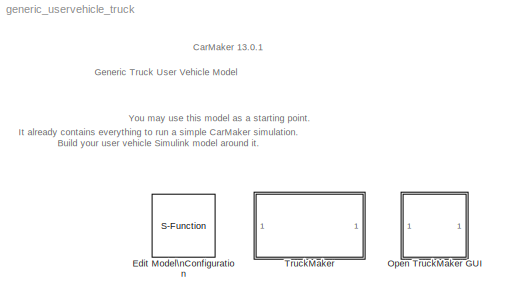
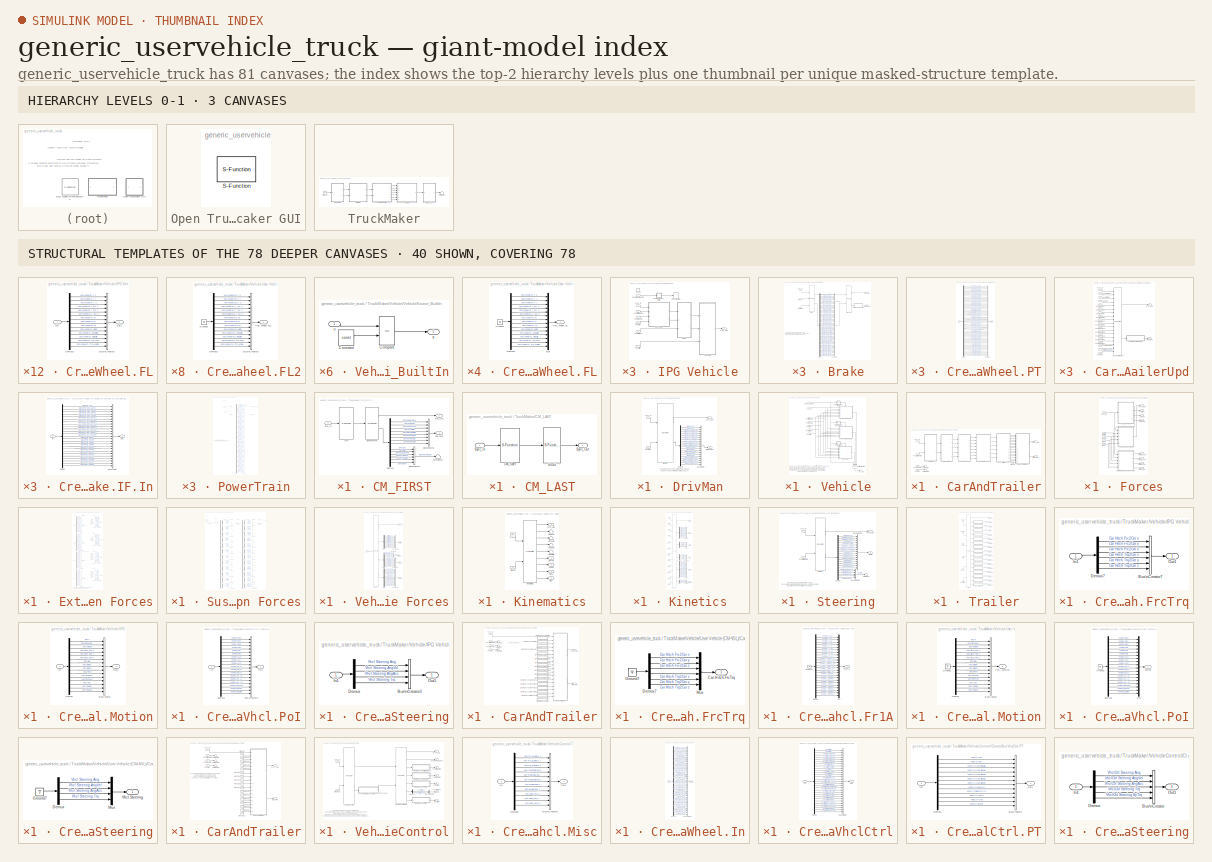
[diagram: thumbnail index - top-2 hierarchy levels (3 canvases) + 40 structural-template representatives of the remaining 78 canvases]
MODEL generic_uservehicle_truck
KIND model
BLOCK [S-Function] Edit Model\nConfiguration
  EnableBusSupport = off
  FunctionName = cm_gui
  OpenFcn = cmmodelconf('edit');
  Ports = []
  SFcnIsStateOwnerBlock = off
  SFunctionDeploymentMode = off
  SID = 1
BLOCK [SubSystem] Open TruckMaker GUI
  LoadFcn = if ~length(which('cmself')), cmenv; end
  OpenFcn = cmblockmagic('gui_fix_display'); TM_Simulink
  Ports = []
  RequestExecContextInheritance = off
  SID = 2
BLOCK [S-Function] Open TruckMaker GUI/S-Function
  EnableBusSupport = off
  FunctionName = cm_gui
  Ports = []
  SFcnIsStateOwnerBlock = off
  SFunctionDeploymentMode = off
  SID = 3
BLOCK [SubSystem] TruckMaker
  Ports = []
  RequestExecContextInheritance = off
  SID = 4
  TreatAsAtomicUnit = on
BLOCK [SubSystem] TruckMaker/CM_FIRST
  Ports = [1, 2]
  RequestExecContextInheritance = off
  SID = 796
BLOCK [BusCreator] TruckMaker/CM_FIRST/BusCreator1
  InheritFromInputs = on
  Inputs = 8
  Ports = [8, 1]
  SID = 804
BLOCK [BusCreator] TruckMaker/CM_FIRST/BusCreator2
  InheritFromInputs = on
  Inputs = 6
  Ports = [6, 1]
  SID = 805
BLOCK [Demux] TruckMaker/CM_FIRST/Demux1
  DisplayOption = none
  Outputs = 14
  Ports = [1, 14]
  SID = 806
BLOCK [Outport] TruckMaker/CM_FIRST/Env.Misc
  Port = 2
  SID = 811
  VectorParamsAs1DForOutWhenUnconnected = off
BLOCK [S-Function] TruckMaker/CM_FIRST/Environment
  EnableBusSupport = off
  FunctionName = TM_Sfun
  Parameters = 'Environment'
  Ports = [1, 2]
  SFcnIsStateOwnerBlock = off
  SFunctionDeploymentMode = off
  SID = 807
BLOCK [S-Function] TruckMaker/CM_FIRST/IoIn
  EnableBusSupport = off
  FunctionName = TM_Sfun
  Parameters = 'IoIn'
  Ports = [1, 1]
  SFcnIsStateOwnerBlock = off
  SFunctionDeploymentMode = off
  SID = 808
BLOCK [Inport] TruckMaker/CM_FIRST/Sync_In
  SID = 803
BLOCK [Outport] TruckMaker/CM_FIRST/Sync_Out
  SID = 810
  VectorParamsAs1DForOutWhenUnconnected = off
BLOCK [Terminator] TruckMaker/CM_FIRST/Terminator
  SID = 809
BLOCK [SubSystem] TruckMaker/CM_LAST
  Ports = [1, 1]
  RequestExecContextInheritance = off
  SID = 797
BLOCK [S-Function] TruckMaker/CM_LAST/CM_User
  EnableBusSupport = off
  FunctionName = TM_Sfun
  Parameters = 'CM_User'
  Ports = [1, 1]
  SFcnIsStateOwnerBlock = off
  SFunctionDeploymentMode = off
  SID = 813
BLOCK [S-Function] TruckMaker/CM_LAST/IoOut
  EnableBusSupport = off
  FunctionName = TM_Sfun
  Parameters = 'IoOut'
  Ports = [1, 1]
  SFcnIsStateOwnerBlock = off
  SFunctionDeploymentMode = off
  SID = 814
BLOCK [Inport] TruckMaker/CM_LAST/Sync_In
  SID = 812
BLOCK [Outport] TruckMaker/CM_LAST/Sync_Out
  SID = 815
  VectorParamsAs1DForOutWhenUnconnected = off
BLOCK [SubSystem] TruckMaker/DrivMan
  Ports = [2, 2]
  RequestExecContextInheritance = off
  SID = 798
BLOCK [BusCreator] TruckMaker/DrivMan/BusCreator
  InheritFromInputs = on
  Inputs = 20
  Ports = [20, 1]
  SID = 818
BLOCK [Demux] TruckMaker/DrivMan/Demux
  DisplayOption = none
  Outputs = 20
  Ports = [1, 20]
  SID = 819
BLOCK [S-Function] TruckMaker/DrivMan/DrivMan
  EnableBusSupport = off
  FunctionName = TM_Sfun
  Parameters = 'DrivMan'
  Ports = [2, 2]
  SFcnIsStateOwnerBlock = off
  SFunctionDeploymentMode = off
  SID = 820
BLOCK [Outport] TruckMaker/DrivMan/DrivMan.Out
  Port = 2
  SID = 822
  VectorParamsAs1DForOutWhenUnconnected = off
BLOCK [Inport] TruckMaker/DrivMan/Env.Misc
  Port = 2
  SID = 817
BLOCK [Inport] TruckMaker/DrivMan/Sync_In
  SID = 816
BLOCK [Outport] TruckMaker/DrivMan/Sync_Out
  SID = 821
  VectorParamsAs1DForOutWhenUnconnected = off
BLOCK [Ground] TruckMaker/Ground
  SID = 799
BLOCK [Terminator] TruckMaker/Terminator
  SID = 801
BLOCK [SubSystem] TruckMaker/Vehicle
  Ports = [7, 1]
  RequestExecContextInheritance = off
  SID = 1160
BLOCK [SubSystem] TruckMaker/Vehicle/IPG Vehicle
  Ports = [7, 1, 1]
  RequestExecContextInheritance = off
  SID = 1720
BLOCK [SubSystem] TruckMaker/Vehicle/IPG Vehicle/Brake
  Ports = [3, 2]
  RequestExecContextInheritance = off
  SID = 2746
BLOCK [S-Function] TruckMaker/Vehicle/IPG Vehicle/Brake/Brake
  EnableBusSupport = off
  FunctionName = TM_Sfun
  Parameters = 'Brake'
  Ports = [3, 2]
  SFcnIsStateOwnerBlock = off
  SFunctionDeploymentMode = off
  SID = 2750
BLOCK [Inport] TruckMaker/Vehicle/IPG Vehicle/Brake/Brake.IF.In
  Port = 2
  SID = 2748
BLOCK [S-Function] TruckMaker/Vehicle/IPG Vehicle/Brake/BrakeUpd
  EnableBusSupport = off
  FunctionName = TM_Sfun
  Parameters = 'BrakeUpd'
  Ports = [2, 2]
  SFcnIsStateOwnerBlock = off
  SFunctionDeploymentMode = off
  SID = 2751
BLOCK [BusCreator] TruckMaker/Vehicle/IPG Vehicle/Brake/BusCreator
  InheritFromInputs = on
  Inputs = 48
  Ports = [48, 1]
  SID = 2752
BLOCK [SubSystem] TruckMaker/Vehicle/IPG Vehicle/Brake/CreateBus Vhcl.Wheel.PT
  Ports = [1, 1]
  RequestExecContextInheritance = off
  SID = 2753
BLOCK [BusCreator] TruckMaker/Vehicle/IPG Vehicle/Brake/CreateBus Vhcl.Wheel.PT/BusCreator
  InheritFromInputs = on
  Inputs = 60
  Ports = [60, 1]
  SID = 2755
BLOCK [Demux] TruckMaker/Vehicle/IPG Vehicle/Brake/CreateBus Vhcl.Wheel.PT/Demux
  DisplayOption = none
  Outputs = 60
  Ports = [1, 60]
  SID = 2756
BLOCK [Inport] TruckMaker/Vehicle/IPG Vehicle/Brake/CreateBus Vhcl.Wheel.PT/In
  SID = 2754
BLOCK [Outport] TruckMaker/Vehicle/IPG Vehicle/Brake/CreateBus Vhcl.Wheel.PT/Out
  SID = 2757
  VectorParamsAs1DForOutWhenUnconnected = off
BLOCK [Demux] TruckMaker/Vehicle/IPG Vehicle/Brake/Demux
  DisplayOption = none
  Outputs = 48
  Ports = [1, 48]
  SID = 2758
BLOCK [Inport] TruckMaker/Vehicle/IPG Vehicle/Brake/Sync_In
  SID = 2747
BLOCK [Outport] TruckMaker/Vehicle/IPG Vehicle/Brake/Sync_Out
  SID = 2759
  VectorParamsAs1DForOutWhenUnconnected = off
BLOCK [Outport] TruckMaker/Vehicle/IPG Vehicle/Brake/Vhcl.Wheel.PT
  Port = 2
  SID = 2760
  VectorParamsAs1DForOutWhenUnconnected = off
BLOCK [Inport] TruckMaker/Vehicle/IPG Vehicle/Brake/VhclCtrl.Brake
  Port = 3
  SID = 2749
BLOCK [SubSystem] TruckMaker/Vehicle/IPG Vehicle/CarAndTrailer
  Ports = [4, 2]
  RequestExecContextInheritance = off
  SID = 2172
BLOCK [Outport] TruckMaker/Vehicle/IPG Vehicle/CarAndTrailer/Brake.IF.In
  Port = 2
  SID = 2572
  VectorParamsAs1DForOutWhenUnconnected = off
BLOCK [SubSystem] TruckMaker/Vehicle/IPG Vehicle/CarAndTrailer/CarAndTrailerUpd
  Ports = [18, 2]
  RequestExecContextInheritance = off
  SID = 2211
BLOCK [Outport] TruckMaker/Vehicle/IPG Vehicle/CarAndTrailer/CarAndTrailerUpd/Brake.IF.In
  Port = 2
  SID = 2237
  VectorParamsAs1DForOutWhenUnconnected = off
BLOCK [Inport] TruckMaker/Vehicle/IPG Vehicle/CarAndTrailer/CarAndTrailerUpd/Car.Hitch.FrcTrq
  Port = 17
  SID = 2228
BLOCK [S-Function] TruckMaker/Vehicle/IPG Vehicle/CarAndTrailer/CarAndTrailerUpd/CarAndTrailerUpd
  EnableBusSupport = off
  FunctionName = TM_Sfun
  Parameters = 'CarAndTrUpd'
  Ports = [18, 2]
  SFcnIsStateOwnerBlock = off
  SFunctionDeploymentMode = off
  SID = 2230
BLOCK [SubSystem] TruckMaker/Vehicle/IPG Vehicle/CarAndTrailer/CarAndTrailerUpd/CreateBus Brake.IF.In
  Ports = [1, 1]
  RequestExecContextInheritance = off
  SID = 2231
BLOCK [BusCreator] TruckMaker/Vehicle/IPG Vehicle/CarAndTrailer/CarAndTrailerUpd/CreateBus Brake.IF.In/BusCreator
  InheritFromInputs = on
  Inputs = 25
  Ports = [25, 1]
  SID = 2233
BLOCK [Demux] TruckMaker/Vehicle/IPG Vehicle/CarAndTrailer/CarAndTrailerUpd/CreateBus Brake.IF.In/Demux
  DisplayOption = none
  Outputs = 25
  Ports = [1, 25]
  SID = 2234
BLOCK [Inport] TruckMaker/Vehicle/IPG Vehicle/CarAndTrailer/CarAndTrailerUpd/CreateBus Brake.IF.In/In
  SID = 2232
BLOCK [Outport] TruckMaker/Vehicle/IPG Vehicle/CarAndTrailer/CarAndTrailerUpd/CreateBus Brake.IF.In/Out
  SID = 2235
  VectorParamsAs1DForOutWhenUnconnected = off
BLOCK [Inport] TruckMaker/Vehicle/IPG Vehicle/CarAndTrailer/CarAndTrailerUpd/Sync_In
  SID = 2212
BLOCK [Outport] TruckMaker/Vehicle/IPG Vehicle/CarAndTrailer/CarAndTrailerUpd/Sync_Out
  SID = 2236
  VectorParamsAs1DForOutWhenUnconnected = off
BLOCK [Inport] TruckMaker/Vehicle/IPG Vehicle/CarAndTrailer/CarAndTrailerUpd/Vhcl.Fr1A
  Port = 18
  SID = 2229
BLOCK [Inport] TruckMaker/Vehicle/IPG Vehicle/CarAndTrailer/CarAndTrailerUpd/Vhcl.Motion
  Port = 3
  SID = 2214
BLOCK [Inport] TruckMaker/Vehicle/IPG Vehicle/CarAndTrailer/CarAndTrailerUpd/Vhcl.PoI
  Port = 4
  SID = 2215
BLOCK [Inport] TruckMaker/Vehicle/IPG Vehicle/CarAndTrailer/CarAndTrailerUpd/Vhcl.Steering
  Port = 2
  SID = 2213
BLOCK [Inport] TruckMaker/Vehicle/IPG Vehicle/CarAndTrailer/CarAndTrailerUpd/Vhcl.Wheel.FL
  Port = 5
  SID = 2216
BLOCK [Inport] TruckMaker/Vehicle/IPG Vehicle/CarAndTrailer/CarAndTrailerUpd/Vhcl.Wheel.FL2
  Port = 11
  SID = 2222
BLOCK [Inport] TruckMaker/Vehicle/IPG Vehicle/CarAndTrailer/CarAndTrailerUpd/Vhcl.Wheel.FR
  Port = 6
  SID = 2217
BLOCK [Inport] TruckMaker/Vehicle/IPG Vehicle/CarAndTrailer/CarAndTrailerUpd/Vhcl.Wheel.FR2
  Port = 12
  SID = 2223
BLOCK [Inport] TruckMaker/Vehicle/IPG Vehicle/CarAndTrailer/CarAndTrailerUpd/Vhcl.Wheel.RL
  Port = 7
  SID = 2218
BLOCK [Inport] TruckMaker/Vehicle/IPG Vehicle/CarAndTrailer/CarAndTrailerUpd/Vhcl.Wheel.RL2
  Port = 9
  SID = 2220
BLOCK [Inport] TruckMaker/Vehicle/IPG Vehicle/CarAndTrailer/CarAndTrailerUpd/Vhcl.Wheel.RL3
  Port = 13
  SID = 2224
BLOCK [Inport] TruckMaker/Vehicle/IPG Vehicle/CarAndTrailer/CarAndTrailerUpd/Vhcl.Wheel.RL4
  Port = 15
  SID = 2226
BLOCK [Inport] TruckMaker/Vehicle/IPG Vehicle/CarAndTrailer/CarAndTrailerUpd/Vhcl.Wheel.RR
  Port = 8
  SID = 2219
BLOCK [Inport] TruckMaker/Vehicle/IPG Vehicle/CarAndTrailer/CarAndTrailerUpd/Vhcl.Wheel.RR2
  Port = 10
  SID = 2221
BLOCK [Inport] TruckMaker/Vehicle/IPG Vehicle/CarAndTrailer/CarAndTrailerUpd/Vhcl.Wheel.RR3
  Port = 14
  SID = 2225
BLOCK [Inport] TruckMaker/Vehicle/IPG Vehicle/CarAndTrailer/CarAndTrailerUpd/Vhcl.Wheel.RR4
  Port = 16
  SID = 2227
BLOCK [SubSystem] TruckMaker/Vehicle/IPG Vehicle/CarAndTrailer/Forces
  Ports = [5, 8]
  RequestExecContextInheritance = off
  SID = 2238
BLOCK [Outport] TruckMaker/Vehicle/IPG Vehicle/CarAndTrailer/Forces/Car.Aero
  Port = 3
  SID = 2403
  VectorParamsAs1DForOutWhenUnconnected = off
BLOCK [Outport] TruckMaker/Vehicle/IPG Vehicle/CarAndTrailer/Forces/Car.Load
  Port = 4
  SID = 2404
  VectorParamsAs1DForOutWhenUnconnected = off
BLOCK [Outport] TruckMaker/Vehicle/IPG Vehicle/CarAndTrailer/Forces/Car.Virtual
  Port = 2
  SID = 2402
  VectorParamsAs1DForOutWhenUnconnected = off
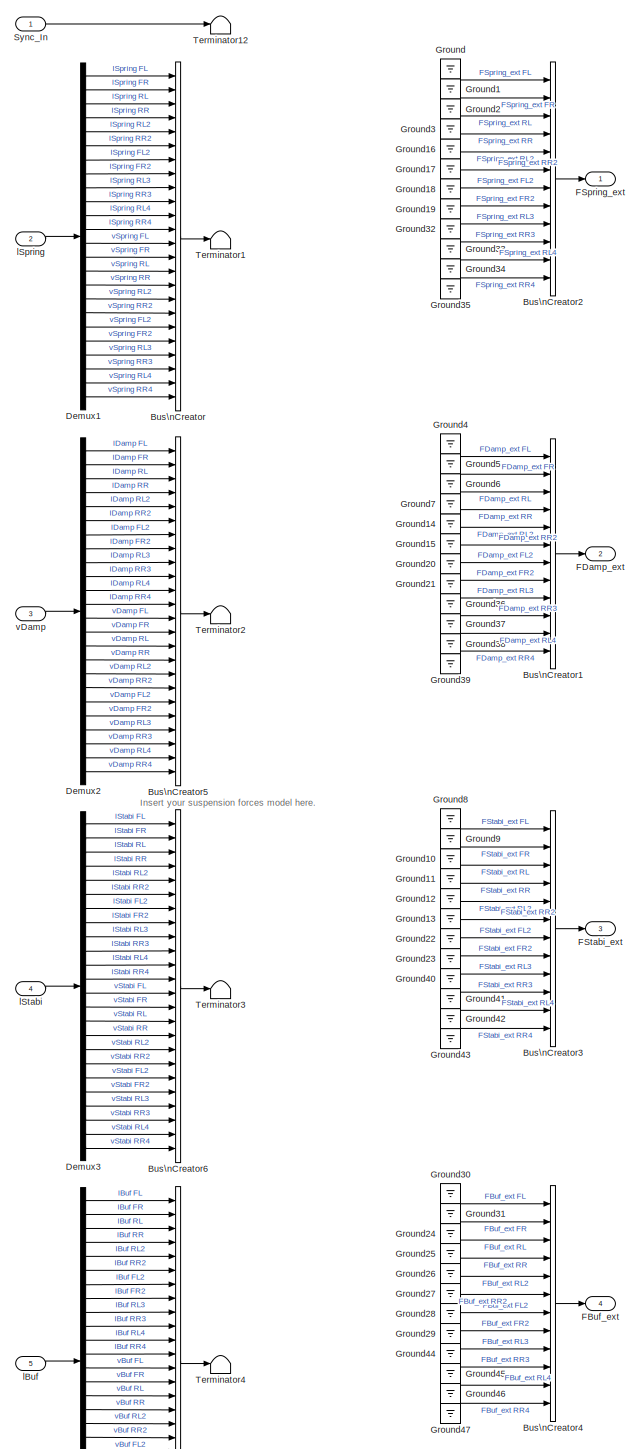
[diagram: TruckMaker/Vehicle/IPG Vehicle/CarAndTrailer/Forces/External Suspension Forces - part 1/2, most of the canvas]
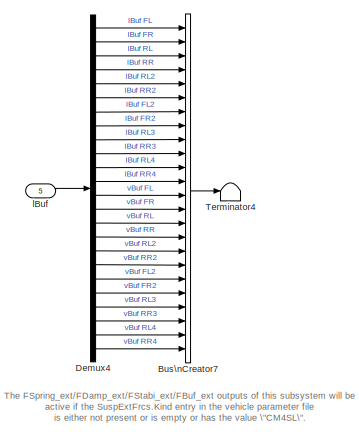
[diagram: TruckMaker/Vehicle/IPG Vehicle/CarAndTrailer/Forces/External Suspension Forces - part 2/2, bottom left region]
BLOCK [SubSystem] TruckMaker/Vehicle/IPG Vehicle/CarAndTrailer/Forces/External Suspension Forces
  Ports = [5, 4]
  RequestExecContextInheritance = off
  SID = 2244
BLOCK [BusCreator] TruckMaker/Vehicle/IPG Vehicle/CarAndTrailer/Forces/External Suspension Forces/Bus\nCreator
  DisplayOption = bar
  InheritFromInputs = on
  Inputs = 24
  Ports = [24, 1]
  SID = 2250
BLOCK [BusCreator] TruckMaker/Vehicle/IPG Vehicle/CarAndTrailer/Forces/External Suspension Forces/Bus\nCreator1
  DisplayOption = bar
  InheritFromInputs = on
  Inputs = 12
  Ports = [12, 1]
  SID = 2251
BLOCK [BusCreator] TruckMaker/Vehicle/IPG Vehicle/CarAndTrailer/Forces/External Suspension Forces/Bus\nCreator2
  DisplayOption = bar
  InheritFromInputs = on
  Inputs = 12
  Ports = [12, 1]
  SID = 2252
BLOCK [BusCreator] TruckMaker/Vehicle/IPG Vehicle/CarAndTrailer/Forces/External Suspension Forces/Bus\nCreator3
  DisplayOption = bar
  InheritFromInputs = on
  Inputs = 12
  Ports = [12, 1]
  SID = 2253
BLOCK [BusCreator] TruckMaker/Vehicle/IPG Vehicle/CarAndTrailer/Forces/External Suspension Forces/Bus\nCreator4
  DisplayOption = bar
  InheritFromInputs = on
  Inputs = 12
  Ports = [12, 1]
  SID = 2254
BLOCK [BusCreator] TruckMaker/Vehicle/IPG Vehicle/CarAndTrailer/Forces/External Suspension Forces/Bus\nCreator5
  DisplayOption = bar
  InheritFromInputs = on
  Inputs = 24
  Ports = [24, 1]
  SID = 2255
BLOCK [BusCreator] TruckMaker/Vehicle/IPG Vehicle/CarAndTrailer/Forces/External Suspension Forces/Bus\nCreator6
  DisplayOption = bar
  InheritFromInputs = on
  Inputs = 24
  Ports = [24, 1]
  SID = 2256
BLOCK [BusCreator] TruckMaker/Vehicle/IPG Vehicle/CarAndTrailer/Forces/External Suspension Forces/Bus\nCreator7
  DisplayOption = bar
  InheritFromInputs = on
  Inputs = 24
  Ports = [24, 1]
  SID = 2257
BLOCK [Demux] TruckMaker/Vehicle/IPG Vehicle/CarAndTrailer/Forces/External Suspension Forces/Demux1
  DisplayOption = none
  Outputs = 24
  Ports = [1, 24]
  SID = 2258
BLOCK [Demux] TruckMaker/Vehicle/IPG Vehicle/CarAndTrailer/Forces/External Suspension Forces/Demux2
  DisplayOption = none
  Outputs = 24
  Ports = [1, 24]
  SID = 2259
BLOCK [Demux] TruckMaker/Vehicle/IPG Vehicle/CarAndTrailer/Forces/External Suspension Forces/Demux3
  DisplayOption = none
  Outputs = 24
  Ports = [1, 24]
  SID = 2260
BLOCK [Demux] TruckMaker/Vehicle/IPG Vehicle/CarAndTrailer/Forces/External Suspension Forces/Demux4
  DisplayOption = none
  Outputs = 24
  Ports = [1, 24]
  SID = 2261
BLOCK [Outport] TruckMaker/Vehicle/IPG Vehicle/CarAndTrailer/Forces/External Suspension Forces/FBuf_ext
  Port = 4
  SID = 2318
  VectorParamsAs1DForOutWhenUnconnected = off
BLOCK [Outport] TruckMaker/Vehicle/IPG Vehicle/CarAndTrailer/Forces/External Suspension Forces/FDamp_ext
  Port = 2
  SID = 2316
  VectorParamsAs1DForOutWhenUnconnected = off
BLOCK [Outport] TruckMaker/Vehicle/IPG Vehicle/CarAndTrailer/Forces/External Suspension Forces/FSpring_ext
  SID = 2315
  VectorParamsAs1DForOutWhenUnconnected = off
BLOCK [Outport] TruckMaker/Vehicle/IPG Vehicle/CarAndTrailer/Forces/External Suspension Forces/FStabi_ext
  Port = 3
  SID = 2317
  VectorParamsAs1DForOutWhenUnconnected = off
BLOCK [Ground] TruckMaker/Vehicle/IPG Vehicle/CarAndTrailer/Forces/External Suspension Forces/Ground
  SID = 2262
BLOCK [Ground] TruckMaker/Vehicle/IPG Vehicle/CarAndTrailer/Forces/External Suspension Forces/Ground1
  SID = 2263
BLOCK [Ground] TruckMaker/Vehicle/IPG Vehicle/CarAndTrailer/Forces/External Suspension Forces/Ground10
  SID = 2264
BLOCK [Ground] TruckMaker/Vehicle/IPG Vehicle/CarAndTrailer/Forces/External Suspension Forces/Ground11
  SID = 2265
BLOCK [Ground] TruckMaker/Vehicle/IPG Vehicle/CarAndTrailer/Forces/External Suspension Forces/Ground12
  SID = 2266
BLOCK [Ground] TruckMaker/Vehicle/IPG Vehicle/CarAndTrailer/Forces/External Suspension Forces/Ground13
  SID = 2267
BLOCK [Ground] TruckMaker/Vehicle/IPG Vehicle/CarAndTrailer/Forces/External Suspension Forces/Ground14
  SID = 2268
BLOCK [Ground] TruckMaker/Vehicle/IPG Vehicle/CarAndTrailer/Forces/External Suspension Forces/Ground15
  SID = 2269
BLOCK [Ground] TruckMaker/Vehicle/IPG Vehicle/CarAndTrailer/Forces/External Suspension Forces/Ground16
  SID = 2270
BLOCK [Ground] TruckMaker/Vehicle/IPG Vehicle/CarAndTrailer/Forces/External Suspension Forces/Ground17
  SID = 2271
BLOCK [Ground] TruckMaker/Vehicle/IPG Vehicle/CarAndTrailer/Forces/External Suspension Forces/Ground18
  SID = 2272
BLOCK [Ground] TruckMaker/Vehicle/IPG Vehicle/CarAndTrailer/Forces/External Suspension Forces/Ground19
  SID = 2273
BLOCK [Ground] TruckMaker/Vehicle/IPG Vehicle/CarAndTrailer/Forces/External Suspension Forces/Ground2
  SID = 2274
BLOCK [Ground] TruckMaker/Vehicle/IPG Vehicle/CarAndTrailer/Forces/External Suspension Forces/Ground20
  SID = 2275
BLOCK [Ground] TruckMaker/Vehicle/IPG Vehicle/CarAndTrailer/Forces/External Suspension Forces/Ground21
  SID = 2276
BLOCK [Ground] TruckMaker/Vehicle/IPG Vehicle/CarAndTrailer/Forces/External Suspension Forces/Ground22
  SID = 2277
BLOCK [Ground] TruckMaker/Vehicle/IPG Vehicle/CarAndTrailer/Forces/External Suspension Forces/Ground23
  SID = 2278
BLOCK [Ground] TruckMaker/Vehicle/IPG Vehicle/CarAndTrailer/Forces/External Suspension Forces/Ground24
  SID = 2279
BLOCK [Ground] TruckMaker/Vehicle/IPG Vehicle/CarAndTrailer/Forces/External Suspension Forces/Ground25
  SID = 2280
BLOCK [Ground] TruckMaker/Vehicle/IPG Vehicle/CarAndTrailer/Forces/External Suspension Forces/Ground26
  SID = 2281
BLOCK [Ground] TruckMaker/Vehicle/IPG Vehicle/CarAndTrailer/Forces/External Suspension Forces/Ground27
  SID = 2282
BLOCK [Ground] TruckMaker/Vehicle/IPG Vehicle/CarAndTrailer/Forces/External Suspension Forces/Ground28
  SID = 2283
BLOCK [Ground] TruckMaker/Vehicle/IPG Vehicle/CarAndTrailer/Forces/External Suspension Forces/Ground29
  SID = 2284
BLOCK [Ground] TruckMaker/Vehicle/IPG Vehicle/CarAndTrailer/Forces/External Suspension Forces/Ground3
  SID = 2285
BLOCK [Ground] TruckMaker/Vehicle/IPG Vehicle/CarAndTrailer/Forces/External Suspension Forces/Ground30
  SID = 2286
BLOCK [Ground] TruckMaker/Vehicle/IPG Vehicle/CarAndTrailer/Forces/External Suspension Forces/Ground31
  SID = 2287
BLOCK [Ground] TruckMaker/Vehicle/IPG Vehicle/CarAndTrailer/Forces/External Suspension Forces/Ground32
  SID = 2288
BLOCK [Ground] TruckMaker/Vehicle/IPG Vehicle/CarAndTrailer/Forces/External Suspension Forces/Ground33
  SID = 2289
BLOCK [Ground] TruckMaker/Vehicle/IPG Vehicle/CarAndTrailer/Forces/External Suspension Forces/Ground34
  SID = 2290
BLOCK [Ground] TruckMaker/Vehicle/IPG Vehicle/CarAndTrailer/Forces/External Suspension Forces/Ground35
  SID = 2291
BLOCK [Ground] TruckMaker/Vehicle/IPG Vehicle/CarAndTrailer/Forces/External Suspension Forces/Ground36
  SID = 2292
BLOCK [Ground] TruckMaker/Vehicle/IPG Vehicle/CarAndTrailer/Forces/External Suspension Forces/Ground37
  SID = 2293
BLOCK [Ground] TruckMaker/Vehicle/IPG Vehicle/CarAndTrailer/Forces/External Suspension Forces/Ground38
  SID = 2294
BLOCK [Ground] TruckMaker/Vehicle/IPG Vehicle/CarAndTrailer/Forces/External Suspension Forces/Ground39
  SID = 2295
BLOCK [Ground] TruckMaker/Vehicle/IPG Vehicle/CarAndTrailer/Forces/External Suspension Forces/Ground4
  SID = 2296
BLOCK [Ground] TruckMaker/Vehicle/IPG Vehicle/CarAndTrailer/Forces/External Suspension Forces/Ground40
  SID = 2297
BLOCK [Ground] TruckMaker/Vehicle/IPG Vehicle/CarAndTrailer/Forces/External Suspension Forces/Ground41
  SID = 2298
BLOCK [Ground] TruckMaker/Vehicle/IPG Vehicle/CarAndTrailer/Forces/External Suspension Forces/Ground42
  SID = 2299
BLOCK [Ground] TruckMaker/Vehicle/IPG Vehicle/CarAndTrailer/Forces/External Suspension Forces/Ground43
  SID = 2300
BLOCK [Ground] TruckMaker/Vehicle/IPG Vehicle/CarAndTrailer/Forces/External Suspension Forces/Ground44
  SID = 2301
BLOCK [Ground] TruckMaker/Vehicle/IPG Vehicle/CarAndTrailer/Forces/External Suspension Forces/Ground45
  SID = 2302
BLOCK [Ground] TruckMaker/Vehicle/IPG Vehicle/CarAndTrailer/Forces/External Suspension Forces/Ground46
  SID = 2303
BLOCK [Ground] TruckMaker/Vehicle/IPG Vehicle/CarAndTrailer/Forces/External Suspension Forces/Ground47
  SID = 2304
BLOCK [Ground] TruckMaker/Vehicle/IPG Vehicle/CarAndTrailer/Forces/External Suspension Forces/Ground5
  SID = 2305
BLOCK [Ground] TruckMaker/Vehicle/IPG Vehicle/CarAndTrailer/Forces/External Suspension Forces/Ground6
  SID = 2306
BLOCK [Ground] TruckMaker/Vehicle/IPG Vehicle/CarAndTrailer/Forces/External Suspension Forces/Ground7
  SID = 2307
BLOCK [Ground] TruckMaker/Vehicle/IPG Vehicle/CarAndTrailer/Forces/External Suspension Forces/Ground8
  SID = 2308
BLOCK [Ground] TruckMaker/Vehicle/IPG Vehicle/CarAndTrailer/Forces/External Suspension Forces/Ground9
  SID = 2309
BLOCK [Inport] TruckMaker/Vehicle/IPG Vehicle/CarAndTrailer/Forces/External Suspension Forces/Sync_In
  SID = 2245
BLOCK [Terminator] TruckMaker/Vehicle/IPG Vehicle/CarAndTrailer/Forces/External Suspension Forces/Terminator1
  SID = 2310
BLOCK [Terminator] TruckMaker/Vehicle/IPG Vehicle/CarAndTrailer/Forces/External Suspension Forces/Terminator12
  SID = 2311
BLOCK [Terminator] TruckMaker/Vehicle/IPG Vehicle/CarAndTrailer/Forces/External Suspension Forces/Terminator2
  SID = 2312
BLOCK [Terminator] TruckMaker/Vehicle/IPG Vehicle/CarAndTrailer/Forces/External Suspension Forces/Terminator3
  SID = 2313
BLOCK [Terminator] TruckMaker/Vehicle/IPG Vehicle/CarAndTrailer/Forces/External Suspension Forces/Terminator4
  SID = 2314
BLOCK [Inport] TruckMaker/Vehicle/IPG Vehicle/CarAndTrailer/Forces/External Suspension Forces/lBuf
  Port = 5
  SID = 2249
BLOCK [Inport] TruckMaker/Vehicle/IPG Vehicle/CarAndTrailer/Forces/External Suspension Forces/lSpring
  Port = 2
  SID = 2246
BLOCK [Inport] TruckMaker/Vehicle/IPG Vehicle/CarAndTrailer/Forces/External Suspension Forces/lStabi
  Port = 4
  SID = 2248
BLOCK [Inport] TruckMaker/Vehicle/IPG Vehicle/CarAndTrailer/Forces/External Suspension Forces/vDamp
  Port = 3
  SID = 2247
BLOCK [Outport] TruckMaker/Vehicle/IPG Vehicle/CarAndTrailer/Forces/FBuf_ext
  Port = 8
  SID = 2408
  VectorParamsAs1DForOutWhenUnconnected = off
BLOCK [Outport] TruckMaker/Vehicle/IPG Vehicle/CarAndTrailer/Forces/FDamp_ext
  Port = 6
  SID = 2406
  VectorParamsAs1DForOutWhenUnconnected = off
BLOCK [Outport] TruckMaker/Vehicle/IPG Vehicle/CarAndTrailer/Forces/FSpring_ext
  Port = 5
  SID = 2405
  VectorParamsAs1DForOutWhenUnconnected = off
BLOCK [Outport] TruckMaker/Vehicle/IPG Vehicle/CarAndTrailer/Forces/FStabi_ext
  Port = 7
  SID = 2407
  VectorParamsAs1DForOutWhenUnconnected = off
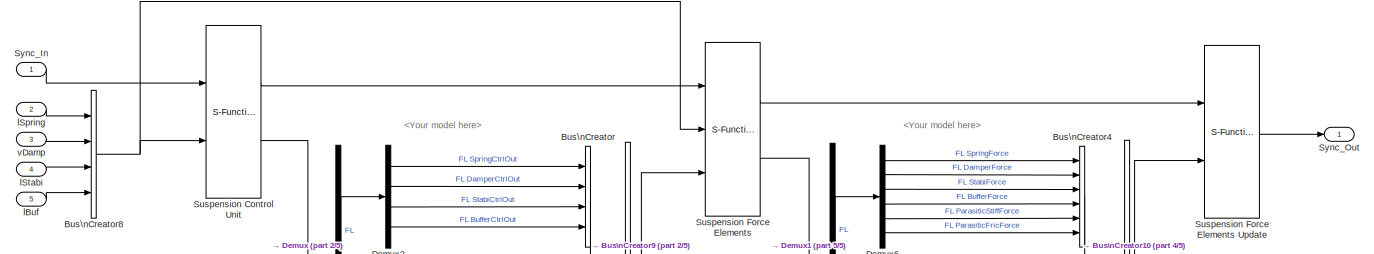
[diagram: TruckMaker/Vehicle/IPG Vehicle/CarAndTrailer/Forces/Suspension Forces - part 1/5, full width, top band]
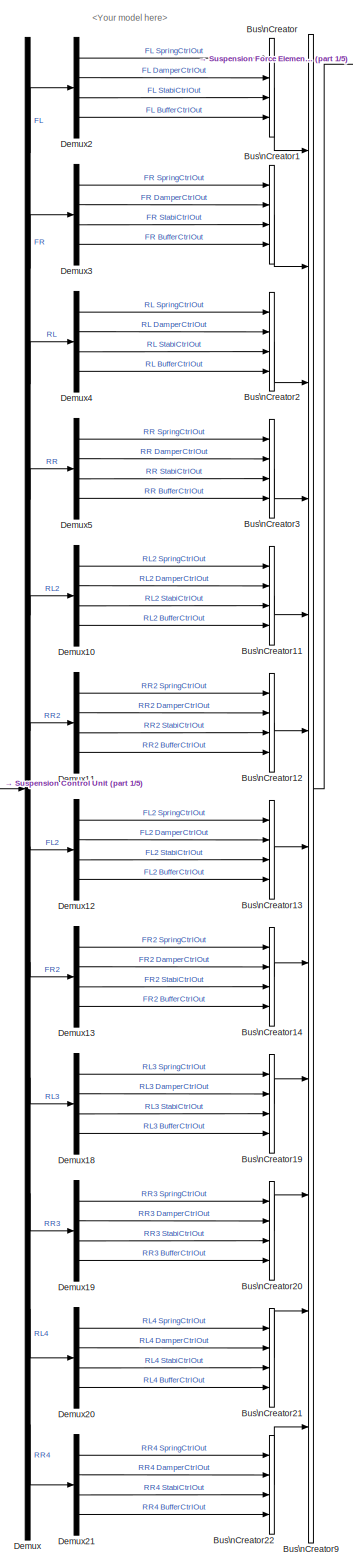
[diagram: TruckMaker/Vehicle/IPG Vehicle/CarAndTrailer/Forces/Suspension Forces - part 2/5, center side, full height]
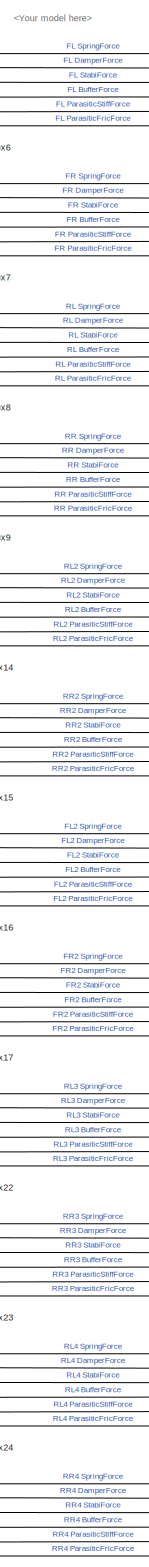
[diagram: TruckMaker/Vehicle/IPG Vehicle/CarAndTrailer/Forces/Suspension Forces - part 3/5, right side, full height]
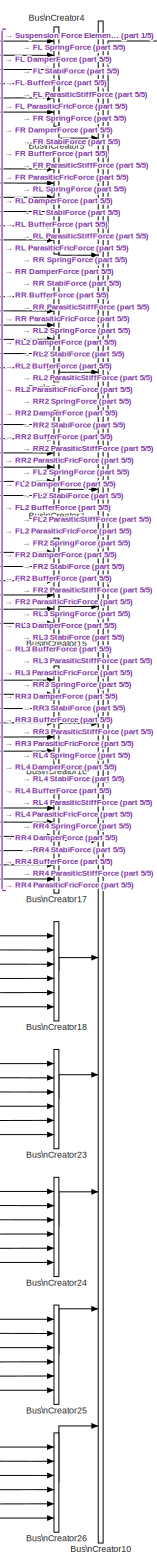
[diagram: TruckMaker/Vehicle/IPG Vehicle/CarAndTrailer/Forces/Suspension Forces - part 4/5, right side, full height]
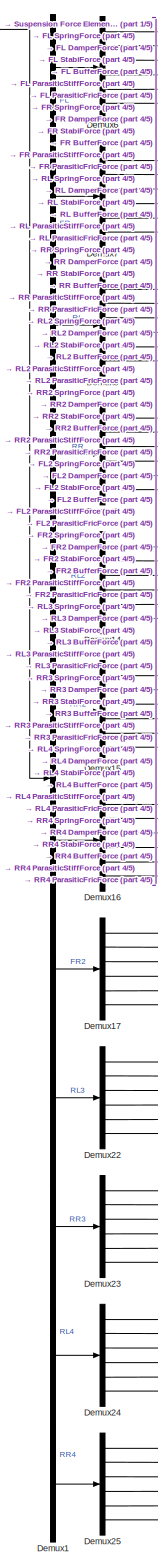
[diagram: TruckMaker/Vehicle/IPG Vehicle/CarAndTrailer/Forces/Suspension Forces - part 5/5, center side, full height]
BLOCK [SubSystem] TruckMaker/Vehicle/IPG Vehicle/CarAndTrailer/Forces/Suspension Forces
  Ports = [5, 1]
  RequestExecContextInheritance = off
  SID = 2321
BLOCK [BusCreator] TruckMaker/Vehicle/IPG Vehicle/CarAndTrailer/Forces/Suspension Forces/Bus\nCreator
  DisplayOption = bar
  InheritFromInputs = on
  Inputs = 4
  Ports = [4, 1]
  SID = 2327
BLOCK [BusCreator] TruckMaker/Vehicle/IPG Vehicle/CarAndTrailer/Forces/Suspension Forces/Bus\nCreator1
  DisplayOption = bar
  InheritFromInputs = on
  Inputs = 4
  Ports = [4, 1]
  SID = 2328
BLOCK [BusCreator] TruckMaker/Vehicle/IPG Vehicle/CarAndTrailer/Forces/Suspension Forces/Bus\nCreator10
  DisplayOption = bar
  InheritFromInputs = on
  Inputs = 12
  Ports = [12, 1]
  SID = 2329
BLOCK [BusCreator] TruckMaker/Vehicle/IPG Vehicle/CarAndTrailer/Forces/Suspension Forces/Bus\nCreator11
  DisplayOption = bar
  InheritFromInputs = on
  Inputs = 4
  Ports = [4, 1]
  SID = 2330
BLOCK [BusCreator] TruckMaker/Vehicle/IPG Vehicle/CarAndTrailer/Forces/Suspension Forces/Bus\nCreator12
  DisplayOption = bar
  InheritFromInputs = on
  Inputs = 4
  Ports = [4, 1]
  SID = 2331
BLOCK [BusCreator] TruckMaker/Vehicle/IPG Vehicle/CarAndTrailer/Forces/Suspension Forces/Bus\nCreator13
  DisplayOption = bar
  InheritFromInputs = on
  Inputs = 4
  Ports = [4, 1]
  SID = 2332
BLOCK [BusCreator] TruckMaker/Vehicle/IPG Vehicle/CarAndTrailer/Forces/Suspension Forces/Bus\nCreator14
  DisplayOption = bar
  InheritFromInputs = on
  Inputs = 4
  Ports = [4, 1]
  SID = 2333
BLOCK [BusCreator] TruckMaker/Vehicle/IPG Vehicle/CarAndTrailer/Forces/Suspension Forces/Bus\nCreator15
  DisplayOption = bar
  InheritFromInputs = on
  Inputs = 6
  Ports = [6, 1]
  SID = 2334
BLOCK [BusCreator] TruckMaker/Vehicle/IPG Vehicle/CarAndTrailer/Forces/Suspension Forces/Bus\nCreator16
  DisplayOption = bar
  InheritFromInputs = on
  Inputs = 6
  Ports = [6, 1]
  SID = 2335
BLOCK [BusCreator] TruckMaker/Vehicle/IPG Vehicle/CarAndTrailer/Forces/Suspension Forces/Bus\nCreator17
  DisplayOption = bar
  InheritFromInputs = on
  Inputs = 6
  Ports = [6, 1]
  SID = 2336
BLOCK [BusCreator] TruckMaker/Vehicle/IPG Vehicle/CarAndTrailer/Forces/Suspension Forces/Bus\nCreator18
  DisplayOption = bar
  InheritFromInputs = on
  Inputs = 6
  Ports = [6, 1]
  SID = 2337
BLOCK [BusCreator] TruckMaker/Vehicle/IPG Vehicle/CarAndTrailer/Forces/Suspension Forces/Bus\nCreator19
  DisplayOption = bar
  InheritFromInputs = on
  Inputs = 4
  Ports = [4, 1]
  SID = 2338
BLOCK [BusCreator] TruckMaker/Vehicle/IPG Vehicle/CarAndTrailer/Forces/Suspension Forces/Bus\nCreator2
  DisplayOption = bar
  InheritFromInputs = on
  Inputs = 4
  Ports = [4, 1]
  SID = 2339
BLOCK [BusCreator] TruckMaker/Vehicle/IPG Vehicle/CarAndTrailer/Forces/Suspension Forces/Bus\nCreator20
  DisplayOption = bar
  InheritFromInputs = on
  Inputs = 4
  Ports = [4, 1]
  SID = 2340
BLOCK [BusCreator] TruckMaker/Vehicle/IPG Vehicle/CarAndTrailer/Forces/Suspension Forces/Bus\nCreator21
  DisplayOption = bar
  InheritFromInputs = on
  Inputs = 4
  Ports = [4, 1]
  SID = 2341
BLOCK [BusCreator] TruckMaker/Vehicle/IPG Vehicle/CarAndTrailer/Forces/Suspension Forces/Bus\nCreator22
  DisplayOption = bar
  InheritFromInputs = on
  Inputs = 4
  Ports = [4, 1]
  SID = 2342
BLOCK [BusCreator] TruckMaker/Vehicle/IPG Vehicle/CarAndTrailer/Forces/Suspension Forces/Bus\nCreator23
  DisplayOption = bar
  InheritFromInputs = on
  Inputs = 6
  Ports = [6, 1]
  SID = 2343
BLOCK [BusCreator] TruckMaker/Vehicle/IPG Vehicle/CarAndTrailer/Forces/Suspension Forces/Bus\nCreator24
  DisplayOption = bar
  InheritFromInputs = on
  Inputs = 6
  Ports = [6, 1]
  SID = 2344
BLOCK [BusCreator] TruckMaker/Vehicle/IPG Vehicle/CarAndTrailer/Forces/Suspension Forces/Bus\nCreator25
  DisplayOption = bar
  InheritFromInputs = on
  Inputs = 6
  Ports = [6, 1]
  SID = 2345
BLOCK [BusCreator] TruckMaker/Vehicle/IPG Vehicle/CarAndTrailer/Forces/Suspension Forces/Bus\nCreator26
  DisplayOption = bar
  InheritFromInputs = on
  Inputs = 6
  Ports = [6, 1]
  SID = 2346
BLOCK [BusCreator] TruckMaker/Vehicle/IPG Vehicle/CarAndTrailer/Forces/Suspension Forces/Bus\nCreator3
  DisplayOption = bar
  InheritFromInputs = on
  Inputs = 4
  Ports = [4, 1]
  SID = 2347
BLOCK [BusCreator] TruckMaker/Vehicle/IPG Vehicle/CarAndTrailer/Forces/Suspension Forces/Bus\nCreator4
  DisplayOption = bar
  InheritFromInputs = on
  Inputs = 6
  Ports = [6, 1]
  SID = 2348
BLOCK [BusCreator] TruckMaker/Vehicle/IPG Vehicle/CarAndTrailer/Forces/Suspension Forces/Bus\nCreator5
  DisplayOption = bar
  InheritFromInputs = on
  Inputs = 6
  Ports = [6, 1]
  SID = 2349
BLOCK [BusCreator] TruckMaker/Vehicle/IPG Vehicle/CarAndTrailer/Forces/Suspension Forces/Bus\nCreator6
  DisplayOption = bar
  InheritFromInputs = on
  Inputs = 6
  Ports = [6, 1]
  SID = 2350
BLOCK [BusCreator] TruckMaker/Vehicle/IPG Vehicle/CarAndTrailer/Forces/Suspension Forces/Bus\nCreator7
  DisplayOption = bar
  InheritFromInputs = on
  Inputs = 6
  Ports = [6, 1]
  SID = 2351
BLOCK [BusCreator] TruckMaker/Vehicle/IPG Vehicle/CarAndTrailer/Forces/Suspension Forces/Bus\nCreator8
  DisplayOption = bar
  InheritFromInputs = on
  Inputs = 4
  Ports = [4, 1]
  SID = 2352
BLOCK [BusCreator] TruckMaker/Vehicle/IPG Vehicle/CarAndTrailer/Forces/Suspension Forces/Bus\nCreator9
  DisplayOption = bar
  InheritFromInputs = on
  Inputs = 12
  Ports = [12, 1]
  SID = 2353
BLOCK [Demux] TruckMaker/Vehicle/IPG Vehicle/CarAndTrailer/Forces/Suspension Forces/Demux
  Outputs = 12
  Ports = [1, 12]
  SID = 2354
BLOCK [Demux] TruckMaker/Vehicle/IPG Vehicle/CarAndTrailer/Forces/Suspension Forces/Demux1
  Outputs = 12
  Ports = [1, 12]
  SID = 2355
BLOCK [Demux] TruckMaker/Vehicle/IPG Vehicle/CarAndTrailer/Forces/Suspension Forces/Demux10
  Ports = [1, 4]
  SID = 2356
BLOCK [Demux] TruckMaker/Vehicle/IPG Vehicle/CarAndTrailer/Forces/Suspension Forces/Demux11
  Ports = [1, 4]
  SID = 2357
BLOCK [Demux] TruckMaker/Vehicle/IPG Vehicle/CarAndTrailer/Forces/Suspension Forces/Demux12
  Ports = [1, 4]
  SID = 2358
BLOCK [Demux] TruckMaker/Vehicle/IPG Vehicle/CarAndTrailer/Forces/Suspension Forces/Demux13
  Ports = [1, 4]
  SID = 2359
BLOCK [Demux] TruckMaker/Vehicle/IPG Vehicle/CarAndTrailer/Forces/Suspension Forces/Demux14
  Outputs = 6
  Ports = [1, 6]
  SID = 2360
BLOCK [Demux] TruckMaker/Vehicle/IPG Vehicle/CarAndTrailer/Forces/Suspension Forces/Demux15
  Outputs = 6
  Ports = [1, 6]
  SID = 2361
BLOCK [Demux] TruckMaker/Vehicle/IPG Vehicle/CarAndTrailer/Forces/Suspension Forces/Demux16
  Outputs = 6
  Ports = [1, 6]
  SID = 2362
BLOCK [Demux] TruckMaker/Vehicle/IPG Vehicle/CarAndTrailer/Forces/Suspension Forces/Demux17
  Outputs = 6
  Ports = [1, 6]
  SID = 2363
BLOCK [Demux] TruckMaker/Vehicle/IPG Vehicle/CarAndTrailer/Forces/Suspension Forces/Demux18
  Ports = [1, 4]
  SID = 2364
BLOCK [Demux] TruckMaker/Vehicle/IPG Vehicle/CarAndTrailer/Forces/Suspension Forces/Demux19
  Ports = [1, 4]
  SID = 2365
BLOCK [Demux] TruckMaker/Vehicle/IPG Vehicle/CarAndTrailer/Forces/Suspension Forces/Demux2
  Ports = [1, 4]
  SID = 2366
BLOCK [Demux] TruckMaker/Vehicle/IPG Vehicle/CarAndTrailer/Forces/Suspension Forces/Demux20
  Ports = [1, 4]
  SID = 2367
BLOCK [Demux] TruckMaker/Vehicle/IPG Vehicle/CarAndTrailer/Forces/Suspension Forces/Demux21
  Ports = [1, 4]
  SID = 2368
BLOCK [Demux] TruckMaker/Vehicle/IPG Vehicle/CarAndTrailer/Forces/Suspension Forces/Demux22
  Outputs = 6
  Ports = [1, 6]
  SID = 2369
BLOCK [Demux] TruckMaker/Vehicle/IPG Vehicle/CarAndTrailer/Forces/Suspension Forces/Demux23
  Outputs = 6
  Ports = [1, 6]
  SID = 2370
BLOCK [Demux] TruckMaker/Vehicle/IPG Vehicle/CarAndTrailer/Forces/Suspension Forces/Demux24
  Outputs = 6
  Ports = [1, 6]
  SID = 2371
BLOCK [Demux] TruckMaker/Vehicle/IPG Vehicle/CarAndTrailer/Forces/Suspension Forces/Demux25
  Outputs = 6
  Ports = [1, 6]
  SID = 2372
BLOCK [Demux] TruckMaker/Vehicle/IPG Vehicle/CarAndTrailer/Forces/Suspension Forces/Demux3
  Ports = [1, 4]
  SID = 2373
BLOCK [Demux] TruckMaker/Vehicle/IPG Vehicle/CarAndTrailer/Forces/Suspension Forces/Demux4
  Ports = [1, 4]
  SID = 2374
BLOCK [Demux] TruckMaker/Vehicle/IPG Vehicle/CarAndTrailer/Forces/Suspension Forces/Demux5
  Ports = [1, 4]
  SID = 2375
BLOCK [Demux] TruckMaker/Vehicle/IPG Vehicle/CarAndTrailer/Forces/Suspension Forces/Demux6
  Outputs = 6
  Ports = [1, 6]
  SID = 2376
BLOCK [Demux] TruckMaker/Vehicle/IPG Vehicle/CarAndTrailer/Forces/Suspension Forces/Demux7
  Outputs = 6
  Ports = [1, 6]
  SID = 2377
BLOCK [Demux] TruckMaker/Vehicle/IPG Vehicle/CarAndTrailer/Forces/Suspension Forces/Demux8
  Outputs = 6
  Ports = [1, 6]
  SID = 2378
BLOCK [Demux] TruckMaker/Vehicle/IPG Vehicle/CarAndTrailer/Forces/Suspension Forces/Demux9
  Outputs = 6
  Ports = [1, 6]
  SID = 2379
BLOCK [S-Function] TruckMaker/Vehicle/IPG Vehicle/CarAndTrailer/Forces/Suspension Forces/Suspension Control Unit
  EnableBusSupport = off
  FunctionName = TM_Sfun
  Parameters = 'ForcesSuspControl'
  Ports = [2, 2]
  SFcnIsStateOwnerBlock = off
  SFunctionDeploymentMode = off
  SID = 2380
BLOCK [S-Function] TruckMaker/Vehicle/IPG Vehicle/CarAndTrailer/Forces/Suspension Forces/Suspension Force Elements
  EnableBusSupport = off
  FunctionName = TM_Sfun
  Parameters = 'ForcesSusp'
  Ports = [3, 2]
  SFcnIsStateOwnerBlock = off
  SFunctionDeploymentMode = off
  SID = 2381
BLOCK [S-Function] TruckMaker/Vehicle/IPG Vehicle/CarAndTrailer/Forces/Suspension Forces/Suspension Force Elements Update
  EnableBusSupport = off
  FunctionName = TM_Sfun
  Parameters = 'ForcesSuspUpd'
  Ports = [2, 1]
  SFcnIsStateOwnerBlock = off
  SFunctionDeploymentMode = off
  SID = 2382
BLOCK [Inport] TruckMaker/Vehicle/IPG Vehicle/CarAndTrailer/Forces/Suspension Forces/Sync_In
  SID = 2322
BLOCK [Outport] TruckMaker/Vehicle/IPG Vehicle/CarAndTrailer/Forces/Suspension Forces/Sync_Out
  SID = 2383
  VectorParamsAs1DForOutWhenUnconnected = off
BLOCK [Inport] TruckMaker/Vehicle/IPG Vehicle/CarAndTrailer/Forces/Suspension Forces/lBuf
  Port = 5
  SID = 2326
BLOCK [Inport] TruckMaker/Vehicle/IPG Vehicle/CarAndTrailer/Forces/Suspension Forces/lSpring
  Port = 2
  SID = 2323
BLOCK [Inport] TruckMaker/Vehicle/IPG Vehicle/CarAndTrailer/Forces/Suspension Forces/lStabi
  Port = 4
  SID = 2325
BLOCK [Inport] TruckMaker/Vehicle/IPG Vehicle/CarAndTrailer/Forces/Suspension Forces/vDamp
  Port = 3
  SID = 2324
BLOCK [Inport] TruckMaker/Vehicle/IPG Vehicle/CarAndTrailer/Forces/Sync_In
  SID = 2239
BLOCK [Outport] TruckMaker/Vehicle/IPG Vehicle/CarAndTrailer/Forces/Sync_Out
  SID = 2401
  VectorParamsAs1DForOutWhenUnconnected = off
BLOCK [SubSystem] TruckMaker/Vehicle/IPG Vehicle/CarAndTrailer/Forces/Vehicle Forces
  Ports = [1, 4]
  RequestExecContextInheritance = off
  SID = 2386
BLOCK [BusCreator] TruckMaker/Vehicle/IPG Vehicle/CarAndTrailer/Forces/Vehicle Forces/BusCreator1
  InheritFromInputs = on
  Inputs = 4
  Ports = [4, 1]
  SID = 2390
BLOCK [BusCreator] TruckMaker/Vehicle/IPG Vehicle/CarAndTrailer/Forces/Vehicle Forces/BusCreator2
  InheritFromInputs = on
  Inputs = 9
  Ports = [9, 1]
  SID = 2391
BLOCK [BusCreator] TruckMaker/Vehicle/IPG Vehicle/CarAndTrailer/Forces/Vehicle Forces/Bus\nCreator1
  DisplayOption = bar
  InheritFromInputs = on
  Inputs = 12
  Ports = [12, 1]
  SID = 2388
BLOCK [BusCreator] TruckMaker/Vehicle/IPG Vehicle/CarAndTrailer/Forces/Vehicle Forces/Bus\nCreator8
  DisplayOption = bar
  InheritFromInputs = on
  Inputs = 16
  Ports = [16, 1]
  SID = 2389
BLOCK [Outport] TruckMaker/Vehicle/IPG Vehicle/CarAndTrailer/Forces/Vehicle Forces/Car.Aero
  Port = 3
  SID = 2399
  VectorParamsAs1DForOutWhenUnconnected = off
BLOCK [Outport] TruckMaker/Vehicle/IPG Vehicle/CarAndTrailer/Forces/Vehicle Forces/Car.Load
  Port = 4
  SID = 2400
  VectorParamsAs1DForOutWhenUnconnected = off
BLOCK [Outport] TruckMaker/Vehicle/IPG Vehicle/CarAndTrailer/Forces/Vehicle Forces/Car.Virtual
  Port = 2
  SID = 2398
  VectorParamsAs1DForOutWhenUnconnected = off
BLOCK [Demux] TruckMaker/Vehicle/IPG Vehicle/CarAndTrailer/Forces/Vehicle Forces/Demux
  DisplayOption = none
  Outputs = 16
  Ports = [1, 16]
  SID = 2392
BLOCK [Demux] TruckMaker/Vehicle/IPG Vehicle/CarAndTrailer/Forces/Vehicle Forces/Demux1
  DisplayOption = none
  Outputs = 12
  Ports = [1, 12]
  SID = 2393
BLOCK [Demux] TruckMaker/Vehicle/IPG Vehicle/CarAndTrailer/Forces/Vehicle Forces/Demux2
  DisplayOption = none
  Outputs = 13
  Ports = [1, 13]
  SID = 2394
BLOCK [S-Function] TruckMaker/Vehicle/IPG Vehicle/CarAndTrailer/Forces/Vehicle Forces/Forces
  EnableBusSupport = off
  FunctionName = TM_Sfun
  Parameters = 'Forces'
  Ports = [1, 4]
  SFcnIsStateOwnerBlock = off
  SFunctionDeploymentMode = off
  SID = 2395
BLOCK [Inport] TruckMaker/Vehicle/IPG Vehicle/CarAndTrailer/Forces/Vehicle Forces/Sync_In
  SID = 2387
BLOCK [Outport] TruckMaker/Vehicle/IPG Vehicle/CarAndTrailer/Forces/Vehicle Forces/Sync_Out
  SID = 2397
  VectorParamsAs1DForOutWhenUnconnected = off
BLOCK [Terminator] TruckMaker/Vehicle/IPG Vehicle/CarAndTrailer/Forces/Vehicle Forces/Terminator
  SID = 2396
BLOCK [Inport] TruckMaker/Vehicle/IPG Vehicle/CarAndTrailer/Forces/lBuf
  Port = 5
  SID = 2243
BLOCK [Inport] TruckMaker/Vehicle/IPG Vehicle/CarAndTrailer/Forces/lSpring
  Port = 2
  SID = 2240
BLOCK [Inport] TruckMaker/Vehicle/IPG Vehicle/CarAndTrailer/Forces/lStabi
  Port = 4
  SID = 2242
BLOCK [Inport] TruckMaker/Vehicle/IPG Vehicle/CarAndTrailer/Forces/vDamp
  Port = 3
  SID = 2241
BLOCK [Ground] TruckMaker/Vehicle/IPG Vehicle/CarAndTrailer/Ground
  SID = 2409
BLOCK [SubSystem] TruckMaker/Vehicle/IPG Vehicle/CarAndTrailer/Kinematics
  Ports = [2, 5]
  RequestExecContextInheritance = off
  SID = 2410
BLOCK [S-Function] TruckMaker/Vehicle/IPG Vehicle/CarAndTrailer/Kinematics/Kinematics
  EnableBusSupport = off
  FunctionName = TM_Sfun
  Parameters = 'Kinematics'
  Ports = [2, 9]
  SFcnIsStateOwnerBlock = off
  SFunctionDeploymentMode = off
  SID = 2413
BLOCK [Inport] TruckMaker/Vehicle/IPG Vehicle/CarAndTrailer/Kinematics/Steer.IF
  Port = 2
  SID = 2412
BLOCK [Inport] TruckMaker/Vehicle/IPG Vehicle/CarAndTrailer/Kinematics/Sync_In
  SID = 2411
BLOCK [Outport] TruckMaker/Vehicle/IPG Vehicle/CarAndTrailer/Kinematics/Sync_Out
  SID = 2418
  VectorParamsAs1DForOutWhenUnconnected = off
BLOCK [Terminator] TruckMaker/Vehicle/IPG Vehicle/CarAndTrailer/Kinematics/TireFL.In
  SID = 2414
BLOCK [Terminator] TruckMaker/Vehicle/IPG Vehicle/CarAndTrailer/Kinematics/TireFR.In
  SID = 2415
BLOCK [Terminator] TruckMaker/Vehicle/IPG Vehicle/CarAndTrailer/Kinematics/TireRL.In
  SID = 2416
BLOCK [Terminator] TruckMaker/Vehicle/IPG Vehicle/CarAndTrailer/Kinematics/TireRR.In
  SID = 2417
BLOCK [Outport] TruckMaker/Vehicle/IPG Vehicle/CarAndTrailer/Kinematics/lBuf
  Port = 5
  SID = 2422
  VectorParamsAs1DForOutWhenUnconnected = off
BLOCK [Outport] TruckMaker/Vehicle/IPG Vehicle/CarAndTrailer/Kinematics/lSpring
  Port = 2
  SID = 2419
  VectorParamsAs1DForOutWhenUnconnected = off
BLOCK [Outport] TruckMaker/Vehicle/IPG Vehicle/CarAndTrailer/Kinematics/lStabi
  Port = 4
  SID = 2421
  VectorParamsAs1DForOutWhenUnconnected = off
BLOCK [Outport] TruckMaker/Vehicle/IPG Vehicle/CarAndTrailer/Kinematics/vDamp
  Port = 3
  SID = 2420
  VectorParamsAs1DForOutWhenUnconnected = off
BLOCK [SubSystem] TruckMaker/Vehicle/IPG Vehicle/CarAndTrailer/Kinetics
  Ports = [8, 6]
  RequestExecContextInheritance = off
  SID = 2423
BLOCK [BusCreator] TruckMaker/Vehicle/IPG Vehicle/CarAndTrailer/Kinetics/Bus\nCreator
  DisplayOption = bar
  InheritFromInputs = on
  Inputs = 20
  Ports = [20, 1]
  SID = 2432
BLOCK [BusCreator] TruckMaker/Vehicle/IPG Vehicle/CarAndTrailer/Kinetics/Bus\nCreator1
  DisplayOption = bar
  InheritFromInputs = on
  Inputs = 12
  Ports = [12, 1]
  SID = 2433
BLOCK [BusCreator] TruckMaker/Vehicle/IPG Vehicle/CarAndTrailer/Kinetics/Bus\nCreator2
  DisplayOption = bar
  InheritFromInputs = on
  Inputs = 6
  Ports = [6, 1]
  SID = 2434
BLOCK [BusCreator] TruckMaker/Vehicle/IPG Vehicle/CarAndTrailer/Kinetics/Bus\nCreator3
  DisplayOption = bar
  InheritFromInputs = on
  Inputs = 6
  Ports = [6, 1]
  SID = 2435
BLOCK [BusCreator] TruckMaker/Vehicle/IPG Vehicle/CarAndTrailer/Kinetics/Bus\nCreator4
  DisplayOption = bar
  InheritFromInputs = on
  Inputs = 4
  Ports = [4, 1]
  SID = 2436
BLOCK [Inport] TruckMaker/Vehicle/IPG Vehicle/CarAndTrailer/Kinetics/Car.Aero
  Port = 3
  SID = 2426
BLOCK [Outport] TruckMaker/Vehicle/IPG Vehicle/CarAndTrailer/Kinetics/Car.Fr1
  Port = 4
  SID = 2450
  VectorParamsAs1DForOutWhenUnconnected = off
BLOCK [Outport] TruckMaker/Vehicle/IPG Vehicle/CarAndTrailer/Kinetics/Car.Hitch
  Port = 3
  SID = 2449
  VectorParamsAs1DForOutWhenUnconnected = off
BLOCK [Inport] TruckMaker/Vehicle/IPG Vehicle/CarAndTrailer/Kinetics/Car.Load
  Port = 4
  SID = 2427
BLOCK [Outport] TruckMaker/Vehicle/IPG Vehicle/CarAndTrailer/Kinetics/Car.Trq_T2W
  Port = 5
  SID = 2451
  VectorParamsAs1DForOutWhenUnconnected = off
BLOCK [Inport] TruckMaker/Vehicle/IPG Vehicle/CarAndTrailer/Kinetics/Car.Virtual
  Port = 2
  SID = 2425
BLOCK [Demux] TruckMaker/Vehicle/IPG Vehicle/CarAndTrailer/Kinetics/Demux
  DisplayOption = none
  Outputs = 12
  Ports = [1, 12]
  SID = 2437
BLOCK [Demux] TruckMaker/Vehicle/IPG Vehicle/CarAndTrailer/Kinetics/Demux1
  DisplayOption = none
  Outputs = 6
  Ports = [1, 6]
  SID = 2438
BLOCK [Demux] TruckMaker/Vehicle/IPG Vehicle/CarAndTrailer/Kinetics/Demux2
  DisplayOption = none
  Outputs = 6
  Ports = [1, 6]
  SID = 2439
BLOCK [Demux] TruckMaker/Vehicle/IPG Vehicle/CarAndTrailer/Kinetics/Demux3
  DisplayOption = none
  Ports = [1, 4]
  SID = 2440
BLOCK [Demux] TruckMaker/Vehicle/IPG Vehicle/CarAndTrailer/Kinetics/Demux4
  DisplayOption = none
  Outputs = 20
  Ports = [1, 20]
  SID = 2441
BLOCK [Inport] TruckMaker/Vehicle/IPG Vehicle/CarAndTrailer/Kinetics/FBuf_ext
  Port = 8
  SID = 2431
BLOCK [Inport] TruckMaker/Vehicle/IPG Vehicle/CarAndTrailer/Kinetics/FDamp_ext
  Port = 6
  SID = 2429
BLOCK [Inport] TruckMaker/Vehicle/IPG Vehicle/CarAndTrailer/Kinetics/FSpring_ext
  Port = 5
  SID = 2428
BLOCK [Inport] TruckMaker/Vehicle/IPG Vehicle/CarAndTrailer/Kinetics/FStabi_ext
  Port = 7
  SID = 2430
BLOCK [S-Function] TruckMaker/Vehicle/IPG Vehicle/CarAndTrailer/Kinetics/Kinetics
  EnableBusSupport = off
  FunctionName = TM_Sfun
  Parameters = 'Kinetics'
  Ports = [12, 6]
  SFcnIsStateOwnerBlock = off
  SFunctionDeploymentMode = off
  SID = 2442
BLOCK [Inport] TruckMaker/Vehicle/IPG Vehicle/CarAndTrailer/Kinetics/Sync_In
  SID = 2424
BLOCK [Outport] TruckMaker/Vehicle/IPG Vehicle/CarAndTrailer/Kinetics/Sync_Out
  SID = 2447
  VectorParamsAs1DForOutWhenUnconnected = off
BLOCK [Ground] TruckMaker/Vehicle/IPG Vehicle/CarAndTrailer/Kinetics/TireFL.Out
  SID = 2443
BLOCK [Ground] TruckMaker/Vehicle/IPG Vehicle/CarAndTrailer/Kinetics/TireFR.Out
  SID = 2444
BLOCK [Ground] TruckMaker/Vehicle/IPG Vehicle/CarAndTrailer/Kinetics/TireRL.Out
  SID = 2445
BLOCK [Ground] TruckMaker/Vehicle/IPG Vehicle/CarAndTrailer/Kinetics/TireRR.Out
  SID = 2446
BLOCK [Outport] TruckMaker/Vehicle/IPG Vehicle/CarAndTrailer/Kinetics/Trailer.Load
  Port = 2
  SID = 2448
  VectorParamsAs1DForOutWhenUnconnected = off
BLOCK [Outport] TruckMaker/Vehicle/IPG Vehicle/CarAndTrailer/Kinetics/WheelCarrier.Misc
  Port = 6
  SID = 2452
  VectorParamsAs1DForOutWhenUnconnected = off
BLOCK [SubSystem] TruckMaker/Vehicle/IPG Vehicle/CarAndTrailer/Steering
  Ports = [2, 2]
  RequestExecContextInheritance = off
  SID = 2453
BLOCK [BusCreator] TruckMaker/Vehicle/IPG Vehicle/CarAndTrailer/Steering/Bus\nCreator1
  DisplayOption = bar
  InheritFromInputs = on
  Inputs = 16
  Ports = [16, 1]
  SID = 2456
BLOCK [BusCreator] TruckMaker/Vehicle/IPG Vehicle/CarAndTrailer/Steering/Bus\nCreator2
  DisplayOption = bar
  InheritFromInputs = on
  Inputs = 5
  Ports = [5, 1]
  SID = 2457
BLOCK [Demux] TruckMaker/Vehicle/IPG Vehicle/CarAndTrailer/Steering/Demux
  DisplayOption = none
  Outputs = 21
  Ports = [1, 21]
  SID = 2458
BLOCK [Outport] TruckMaker/Vehicle/IPG Vehicle/CarAndTrailer/Steering/Steer.IF
  Port = 2
  SID = 2462
  VectorParamsAs1DForOutWhenUnconnected = off
BLOCK [S-Function] TruckMaker/Vehicle/IPG Vehicle/CarAndTrailer/Steering/Steering
  EnableBusSupport = off
  FunctionName = TM_Sfun
  Parameters = 'Steering'
  Ports = [2, 2]
  SFcnIsStateOwnerBlock = off
  SFunctionDeploymentMode = off
  SID = 2459
BLOCK [Inport] TruckMaker/Vehicle/IPG Vehicle/CarAndTrailer/Steering/Sync_In
  SID = 2454
BLOCK [Outport] TruckMaker/Vehicle/IPG Vehicle/CarAndTrailer/Steering/Sync_Out
  SID = 2461
  VectorParamsAs1DForOutWhenUnconnected = off
BLOCK [Terminator] TruckMaker/Vehicle/IPG Vehicle/CarAndTrailer/Steering/Terminator
  SID = 2460
BLOCK [Inport] TruckMaker/Vehicle/IPG Vehicle/CarAndTrailer/Steering/VhclCtrl.Steering
  Port = 2
  SID = 2455
BLOCK [Inport] TruckMaker/Vehicle/IPG Vehicle/CarAndTrailer/Sync_In
  SID = 2207
BLOCK [Outport] TruckMaker/Vehicle/IPG Vehicle/CarAndTrailer/Sync_Out
  SID = 2571
  VectorParamsAs1DForOutWhenUnconnected = off
BLOCK [Terminator] TruckMaker/Vehicle/IPG Vehicle/CarAndTrailer/Terminator
  SID = 2464
BLOCK [Terminator] TruckMaker/Vehicle/IPG Vehicle/CarAndTrailer/Terminator1
  SID = 2465
BLOCK [SubSystem] TruckMaker/Vehicle/IPG Vehicle/CarAndTrailer/Trailer
  Ports = [6, 17]
  RequestExecContextInheritance = off
  SID = 2466
BLOCK [Inport] TruckMaker/Vehicle/IPG Vehicle/CarAndTrailer/Trailer/Car.Fr1
  Port = 4
  SID = 2470
BLOCK [Inport] TruckMaker/Vehicle/IPG Vehicle/CarAndTrailer/Trailer/Car.Hitch
  Port = 3
  SID = 2469
BLOCK [Outport] TruckMaker/Vehicle/IPG Vehicle/CarAndTrailer/Trailer/Car.Hitch.FrcTrq
  Port = 17
  SID = 2570
  VectorParamsAs1DForOutWhenUnconnected = off
BLOCK [Inport] TruckMaker/Vehicle/IPG Vehicle/CarAndTrailer/Trailer/Car.Trq_T2W
  Port = 5
  SID = 2471
BLOCK [SubSystem] TruckMaker/Vehicle/IPG Vehicle/CarAndTrailer/Trailer/CreateBus Car.Hitch.FrcTrq
  Ports = [1, 1]
  RequestExecContextInheritance = off
  SID = 2473
BLOCK [BusCreator] TruckMaker/Vehicle/IPG Vehicle/CarAndTrailer/Trailer/CreateBus Car.Hitch.FrcTrq/Bus\nCreator7
  DisplayOption = bar
  InheritFromInputs = on
  Inputs = 6
  Ports = [6, 1]
  SID = 2475
BLOCK [Demux] TruckMaker/Vehicle/IPG Vehicle/CarAndTrailer/Trailer/CreateBus Car.Hitch.FrcTrq/Demux7
  DisplayOption = none
  Outputs = 6
  Ports = [1, 6]
  SID = 2476
BLOCK [Inport] TruckMaker/Vehicle/IPG Vehicle/CarAndTrailer/Trailer/CreateBus Car.Hitch.FrcTrq/In1
  SID = 2474
BLOCK [Outport] TruckMaker/Vehicle/IPG Vehicle/CarAndTrailer/Trailer/CreateBus Car.Hitch.FrcTrq/Out1
  SID = 2477
  VectorParamsAs1DForOutWhenUnconnected = off
BLOCK [SubSystem] TruckMaker/Vehicle/IPG Vehicle/CarAndTrailer/Trailer/CreateBus Vhcl.Motion
  Ports = [1, 1]
  RequestExecContextInheritance = off
  SID = 2478
BLOCK [BusCreator] TruckMaker/Vehicle/IPG Vehicle/CarAndTrailer/Trailer/CreateBus Vhcl.Motion/BusCreator
  InheritFromInputs = on
  Inputs = 15
  Ports = [15, 1]
  SID = 2480
BLOCK [Demux] TruckMaker/Vehicle/IPG Vehicle/CarAndTrailer/Trailer/CreateBus Vhcl.Motion/Demux
  DisplayOption = none
  Outputs = 15
  Ports = [1, 15]
  SID = 2481
BLOCK [Inport] TruckMaker/Vehicle/IPG Vehicle/CarAndTrailer/Trailer/CreateBus Vhcl.Motion/In1
  SID = 2479
BLOCK [Outport] TruckMaker/Vehicle/IPG Vehicle/CarAndTrailer/Trailer/CreateBus Vhcl.Motion/Out1
  SID = 2482
  VectorParamsAs1DForOutWhenUnconnected = off
BLOCK [SubSystem] TruckMaker/Vehicle/IPG Vehicle/CarAndTrailer/Trailer/CreateBus Vhcl.PoI
  Ports = [1, 1]
  RequestExecContextInheritance = off
  SID = 2483
BLOCK [BusCreator] TruckMaker/Vehicle/IPG Vehicle/CarAndTrailer/Trailer/CreateBus Vhcl.PoI/Bus\nCreator3
  DisplayOption = bar
  InheritFromInputs = on
  Inputs = 18
  Ports = [18, 1]
  SID = 2485
BLOCK [Demux] TruckMaker/Vehicle/IPG Vehicle/CarAndTrailer/Trailer/CreateBus Vhcl.PoI/Demux3
  DisplayOption = none
  Outputs = 18
  Ports = [1, 18]
  SID = 2486
BLOCK [Inport] TruckMaker/Vehicle/IPG Vehicle/CarAndTrailer/Trailer/CreateBus Vhcl.PoI/In1
  SID = 2484
BLOCK [Outport] TruckMaker/Vehicle/IPG Vehicle/CarAndTrailer/Trailer/CreateBus Vhcl.PoI/Out1
  SID = 2487
  VectorParamsAs1DForOutWhenUnconnected = off
BLOCK [SubSystem] TruckMaker/Vehicle/IPG Vehicle/CarAndTrailer/Trailer/CreateBus Vhcl.Steering
  Ports = [1, 1]
  RequestExecContextInheritance = off
  SID = 2488
BLOCK [BusCreator] TruckMaker/Vehicle/IPG Vehicle/CarAndTrailer/Trailer/CreateBus Vhcl.Steering/Bus\nCreator3
  DisplayOption = bar
  InheritFromInputs = on
  Inputs = 4
  Ports = [4, 1]
  SID = 2490
BLOCK [Demux] TruckMaker/Vehicle/IPG Vehicle/CarAndTrailer/Trailer/CreateBus Vhcl.Steering/Demux
  DisplayOption = none
  Ports = [1, 4]
  SID = 2491
BLOCK [Inport] TruckMaker/Vehicle/IPG Vehicle/CarAndTrailer/Trailer/CreateBus Vhcl.Steering/In1
  SID = 2489
BLOCK [Outport] TruckMaker/Vehicle/IPG Vehicle/CarAndTrailer/Trailer/CreateBus Vhcl.Steering/Out1
  SID = 2492
  VectorParamsAs1DForOutWhenUnconnected = off
BLOCK [SubSystem] TruckMaker/Vehicle/IPG Vehicle/CarAndTrailer/Trailer/CreateBus Vhcl.Wheel.FL
  Ports = [1, 1]
  RequestExecContextInheritance = off
  SID = 2493
BLOCK [BusCreator] TruckMaker/Vehicle/IPG Vehicle/CarAndTrailer/Trailer/CreateBus Vhcl.Wheel.FL/Bus\nCreator3
  DisplayOption = bar
  InheritFromInputs = on
  Inputs = 14
  Ports = [14, 1]
  SID = 2495
BLOCK [Demux] TruckMaker/Vehicle/IPG Vehicle/CarAndTrailer/Trailer/CreateBus Vhcl.Wheel.FL/Demux3
  DisplayOption = none
  Outputs = 14
  Ports = [1, 14]
  SID = 2496
BLOCK [Inport] TruckMaker/Vehicle/IPG Vehicle/CarAndTrailer/Trailer/CreateBus Vhcl.Wheel.FL/In1
  SID = 2494
BLOCK [Outport] TruckMaker/Vehicle/IPG Vehicle/CarAndTrailer/Trailer/CreateBus Vhcl.Wheel.FL/Out1
  SID = 2497
  VectorParamsAs1DForOutWhenUnconnected = off
BLOCK [SubSystem] TruckMaker/Vehicle/IPG Vehicle/CarAndTrailer/Trailer/CreateBus Vhcl.Wheel.FL2
  Ports = [1, 1]
  RequestExecContextInheritance = off
  SID = 2498
BLOCK [BusCreator] TruckMaker/Vehicle/IPG Vehicle/CarAndTrailer/Trailer/CreateBus Vhcl.Wheel.FL2/Bus\nCreator3
  DisplayOption = bar
  InheritFromInputs = on
  Inputs = 14
  Ports = [14, 1]
  SID = 2500
BLOCK [Demux] TruckMaker/Vehicle/IPG Vehicle/CarAndTrailer/Trailer/CreateBus Vhcl.Wheel.FL2/Demux3
  DisplayOption = none
  Outputs = 14
  Ports = [1, 14]
  SID = 2501
BLOCK [Inport] TruckMaker/Vehicle/IPG Vehicle/CarAndTrailer/Trailer/CreateBus Vhcl.Wheel.FL2/In1
  SID = 2499
BLOCK [Outport] TruckMaker/Vehicle/IPG Vehicle/CarAndTrailer/Trailer/CreateBus Vhcl.Wheel.FL2/Out1
  SID = 2502
  VectorParamsAs1DForOutWhenUnconnected = off
BLOCK [SubSystem] TruckMaker/Vehicle/IPG Vehicle/CarAndTrailer/Trailer/CreateBus Vhcl.Wheel.FR
  Ports = [1, 1]
  RequestExecContextInheritance = off
  SID = 2503
BLOCK [BusCreator] TruckMaker/Vehicle/IPG Vehicle/CarAndTrailer/Trailer/CreateBus Vhcl.Wheel.FR/Bus\nCreator3
  DisplayOption = bar
  InheritFromInputs = on
  Inputs = 14
  Ports = [14, 1]
  SID = 2505
BLOCK [Demux] TruckMaker/Vehicle/IPG Vehicle/CarAndTrailer/Trailer/CreateBus Vhcl.Wheel.FR/Demux3
  DisplayOption = none
  Outputs = 14
  Ports = [1, 14]
  SID = 2506
BLOCK [Inport] TruckMaker/Vehicle/IPG Vehicle/CarAndTrailer/Trailer/CreateBus Vhcl.Wheel.FR/In1
  SID = 2504
BLOCK [Outport] TruckMaker/Vehicle/IPG Vehicle/CarAndTrailer/Trailer/CreateBus Vhcl.Wheel.FR/Out1
  SID = 2507
  VectorParamsAs1DForOutWhenUnconnected = off
BLOCK [SubSystem] TruckMaker/Vehicle/IPG Vehicle/CarAndTrailer/Trailer/CreateBus Vhcl.Wheel.FR2
  Ports = [1, 1]
  RequestExecContextInheritance = off
  SID = 2508
BLOCK [BusCreator] TruckMaker/Vehicle/IPG Vehicle/CarAndTrailer/Trailer/CreateBus Vhcl.Wheel.FR2/Bus\nCreator3
  DisplayOption = bar
  InheritFromInputs = on
  Inputs = 14
  Ports = [14, 1]
  SID = 2510
BLOCK [Demux] TruckMaker/Vehicle/IPG Vehicle/CarAndTrailer/Trailer/CreateBus Vhcl.Wheel.FR2/Demux3
  DisplayOption = none
  Outputs = 14
  Ports = [1, 14]
  SID = 2511
BLOCK [Inport] TruckMaker/Vehicle/IPG Vehicle/CarAndTrailer/Trailer/CreateBus Vhcl.Wheel.FR2/In1
  SID = 2509
BLOCK [Outport] TruckMaker/Vehicle/IPG Vehicle/CarAndTrailer/Trailer/CreateBus Vhcl.Wheel.FR2/Out1
  SID = 2512
  VectorParamsAs1DForOutWhenUnconnected = off
BLOCK [SubSystem] TruckMaker/Vehicle/IPG Vehicle/CarAndTrailer/Trailer/CreateBus Vhcl.Wheel.RL
  Ports = [1, 1]
  RequestExecContextInheritance = off
  SID = 2513
BLOCK [BusCreator] TruckMaker/Vehicle/IPG Vehicle/CarAndTrailer/Trailer/CreateBus Vhcl.Wheel.RL/Bus\nCreator3
  DisplayOption = bar
  InheritFromInputs = on
  Inputs = 14
  Ports = [14, 1]
  SID = 2515
BLOCK [Demux] TruckMaker/Vehicle/IPG Vehicle/CarAndTrailer/Trailer/CreateBus Vhcl.Wheel.RL/Demux3
  DisplayOption = none
  Outputs = 14
  Ports = [1, 14]
  SID = 2516
BLOCK [Inport] TruckMaker/Vehicle/IPG Vehicle/CarAndTrailer/Trailer/CreateBus Vhcl.Wheel.RL/In1
  SID = 2514
BLOCK [Outport] TruckMaker/Vehicle/IPG Vehicle/CarAndTrailer/Trailer/CreateBus Vhcl.Wheel.RL/Out1
  SID = 2517
  VectorParamsAs1DForOutWhenUnconnected = off
BLOCK [SubSystem] TruckMaker/Vehicle/IPG Vehicle/CarAndTrailer/Trailer/CreateBus Vhcl.Wheel.RL2
  Ports = [1, 1]
  RequestExecContextInheritance = off
  SID = 2518
BLOCK [BusCreator] TruckMaker/Vehicle/IPG Vehicle/CarAndTrailer/Trailer/CreateBus Vhcl.Wheel.RL2/Bus\nCreator3
  DisplayOption = bar
  InheritFromInputs = on
  Inputs = 14
  Ports = [14, 1]
  SID = 2520
BLOCK [Demux] TruckMaker/Vehicle/IPG Vehicle/CarAndTrailer/Trailer/CreateBus Vhcl.Wheel.RL2/Demux3
  DisplayOption = none
  Outputs = 14
  Ports = [1, 14]
  SID = 2521
BLOCK [Inport] TruckMaker/Vehicle/IPG Vehicle/CarAndTrailer/Trailer/CreateBus Vhcl.Wheel.RL2/In1
  SID = 2519
BLOCK [Outport] TruckMaker/Vehicle/IPG Vehicle/CarAndTrailer/Trailer/CreateBus Vhcl.Wheel.RL2/Out1
  SID = 2522
  VectorParamsAs1DForOutWhenUnconnected = off
BLOCK [SubSystem] TruckMaker/Vehicle/IPG Vehicle/CarAndTrailer/Trailer/CreateBus Vhcl.Wheel.RL3
  Ports = [1, 1]
  RequestExecContextInheritance = off
  SID = 2523
BLOCK [BusCreator] TruckMaker/Vehicle/IPG Vehicle/CarAndTrailer/Trailer/CreateBus Vhcl.Wheel.RL3/Bus\nCreator3
  DisplayOption = bar
  InheritFromInputs = on
  Inputs = 14
  Ports = [14, 1]
  SID = 2525
BLOCK [Demux] TruckMaker/Vehicle/IPG Vehicle/CarAndTrailer/Trailer/CreateBus Vhcl.Wheel.RL3/Demux3
  DisplayOption = none
  Outputs = 14
  Ports = [1, 14]
  SID = 2526
BLOCK [Inport] TruckMaker/Vehicle/IPG Vehicle/CarAndTrailer/Trailer/CreateBus Vhcl.Wheel.RL3/In1
  SID = 2524
BLOCK [Outport] TruckMaker/Vehicle/IPG Vehicle/CarAndTrailer/Trailer/CreateBus Vhcl.Wheel.RL3/Out1
  SID = 2527
  VectorParamsAs1DForOutWhenUnconnected = off
BLOCK [SubSystem] TruckMaker/Vehicle/IPG Vehicle/CarAndTrailer/Trailer/CreateBus Vhcl.Wheel.RL4
  Ports = [1, 1]
  RequestExecContextInheritance = off
  SID = 2528
BLOCK [BusCreator] TruckMaker/Vehicle/IPG Vehicle/CarAndTrailer/Trailer/CreateBus Vhcl.Wheel.RL4/Bus\nCreator3
  DisplayOption = bar
  InheritFromInputs = on
  Inputs = 14
  Ports = [14, 1]
  SID = 2530
BLOCK [Demux] TruckMaker/Vehicle/IPG Vehicle/CarAndTrailer/Trailer/CreateBus Vhcl.Wheel.RL4/Demux3
  DisplayOption = none
  Outputs = 14
  Ports = [1, 14]
  SID = 2531
BLOCK [Inport] TruckMaker/Vehicle/IPG Vehicle/CarAndTrailer/Trailer/CreateBus Vhcl.Wheel.RL4/In1
  SID = 2529
BLOCK [Outport] TruckMaker/Vehicle/IPG Vehicle/CarAndTrailer/Trailer/CreateBus Vhcl.Wheel.RL4/Out1
  SID = 2532
  VectorParamsAs1DForOutWhenUnconnected = off
BLOCK [SubSystem] TruckMaker/Vehicle/IPG Vehicle/CarAndTrailer/Trailer/CreateBus Vhcl.Wheel.RR
  Ports = [1, 1]
  RequestExecContextInheritance = off
  SID = 2533
BLOCK [BusCreator] TruckMaker/Vehicle/IPG Vehicle/CarAndTrailer/Trailer/CreateBus Vhcl.Wheel.RR/Bus\nCreator3
  DisplayOption = bar
  InheritFromInputs = on
  Inputs = 14
  Ports = [14, 1]
  SID = 2535
BLOCK [Demux] TruckMaker/Vehicle/IPG Vehicle/CarAndTrailer/Trailer/CreateBus Vhcl.Wheel.RR/Demux3
  DisplayOption = none
  Outputs = 14
  Ports = [1, 14]
  SID = 2536
BLOCK [Inport] TruckMaker/Vehicle/IPG Vehicle/CarAndTrailer/Trailer/CreateBus Vhcl.Wheel.RR/In1
  SID = 2534
BLOCK [Outport] TruckMaker/Vehicle/IPG Vehicle/CarAndTrailer/Trailer/CreateBus Vhcl.Wheel.RR/Out1
  SID = 2537
  VectorParamsAs1DForOutWhenUnconnected = off
BLOCK [SubSystem] TruckMaker/Vehicle/IPG Vehicle/CarAndTrailer/Trailer/CreateBus Vhcl.Wheel.RR2
  Ports = [1, 1]
  RequestExecContextInheritance = off
  SID = 2538
BLOCK [BusCreator] TruckMaker/Vehicle/IPG Vehicle/CarAndTrailer/Trailer/CreateBus Vhcl.Wheel.RR2/Bus\nCreator3
  DisplayOption = bar
  InheritFromInputs = on
  Inputs = 14
  Ports = [14, 1]
  SID = 2540
BLOCK [Demux] TruckMaker/Vehicle/IPG Vehicle/CarAndTrailer/Trailer/CreateBus Vhcl.Wheel.RR2/Demux3
  DisplayOption = none
  Outputs = 14
  Ports = [1, 14]
  SID = 2541
BLOCK [Inport] TruckMaker/Vehicle/IPG Vehicle/CarAndTrailer/Trailer/CreateBus Vhcl.Wheel.RR2/In1
  SID = 2539
BLOCK [Outport] TruckMaker/Vehicle/IPG Vehicle/CarAndTrailer/Trailer/CreateBus Vhcl.Wheel.RR2/Out1
  SID = 2542
  VectorParamsAs1DForOutWhenUnconnected = off
BLOCK [SubSystem] TruckMaker/Vehicle/IPG Vehicle/CarAndTrailer/Trailer/CreateBus Vhcl.Wheel.RR3
  Ports = [1, 1]
  RequestExecContextInheritance = off
  SID = 2543
BLOCK [BusCreator] TruckMaker/Vehicle/IPG Vehicle/CarAndTrailer/Trailer/CreateBus Vhcl.Wheel.RR3/Bus\nCreator3
  DisplayOption = bar
  InheritFromInputs = on
  Inputs = 14
  Ports = [14, 1]
  SID = 2545
BLOCK [Demux] TruckMaker/Vehicle/IPG Vehicle/CarAndTrailer/Trailer/CreateBus Vhcl.Wheel.RR3/Demux3
  DisplayOption = none
  Outputs = 14
  Ports = [1, 14]
  SID = 2546
BLOCK [Inport] TruckMaker/Vehicle/IPG Vehicle/CarAndTrailer/Trailer/CreateBus Vhcl.Wheel.RR3/In1
  SID = 2544
BLOCK [Outport] TruckMaker/Vehicle/IPG Vehicle/CarAndTrailer/Trailer/CreateBus Vhcl.Wheel.RR3/Out1
  SID = 2547
  VectorParamsAs1DForOutWhenUnconnected = off
BLOCK [SubSystem] TruckMaker/Vehicle/IPG Vehicle/CarAndTrailer/Trailer/CreateBus Vhcl.Wheel.RR4
  Ports = [1, 1]
  RequestExecContextInheritance = off
  SID = 2548
BLOCK [BusCreator] TruckMaker/Vehicle/IPG Vehicle/CarAndTrailer/Trailer/CreateBus Vhcl.Wheel.RR4/Bus\nCreator3
  DisplayOption = bar
  InheritFromInputs = on
  Inputs = 14
  Ports = [14, 1]
  SID = 2550
BLOCK [Demux] TruckMaker/Vehicle/IPG Vehicle/CarAndTrailer/Trailer/CreateBus Vhcl.Wheel.RR4/Demux3
  DisplayOption = none
  Outputs = 14
  Ports = [1, 14]
  SID = 2551
BLOCK [Inport] TruckMaker/Vehicle/IPG Vehicle/CarAndTrailer/Trailer/CreateBus Vhcl.Wheel.RR4/In1
  SID = 2549
BLOCK [Outport] TruckMaker/Vehicle/IPG Vehicle/CarAndTrailer/Trailer/CreateBus Vhcl.Wheel.RR4/Out1
  SID = 2552
  VectorParamsAs1DForOutWhenUnconnected = off
BLOCK [Inport] TruckMaker/Vehicle/IPG Vehicle/CarAndTrailer/Trailer/Sync_In
  SID = 2467
BLOCK [Outport] TruckMaker/Vehicle/IPG Vehicle/CarAndTrailer/Trailer/Sync_Out
  SID = 2554
  VectorParamsAs1DForOutWhenUnconnected = off
BLOCK [S-Function] TruckMaker/Vehicle/IPG Vehicle/CarAndTrailer/Trailer/Trailer
  EnableBusSupport = off
  FunctionName = TM_Sfun
  Parameters = 'Trailer'
  Ports = [6, 17]
  SFcnIsStateOwnerBlock = off
  SFunctionDeploymentMode = off
  SID = 2553
BLOCK [Inport] TruckMaker/Vehicle/IPG Vehicle/CarAndTrailer/Trailer/Trailer.Load
  Port = 2
  SID = 2468
BLOCK [Outport] TruckMaker/Vehicle/IPG Vehicle/CarAndTrailer/Trailer/Vhcl.Motion
  Port = 3
  SID = 2556
  VectorParamsAs1DForOutWhenUnconnected = off
BLOCK [Outport] TruckMaker/Vehicle/IPG Vehicle/CarAndTrailer/Trailer/Vhcl.PoI
  Port = 4
  SID = 2557
  VectorParamsAs1DForOutWhenUnconnected = off
BLOCK [Outport] TruckMaker/Vehicle/IPG Vehicle/CarAndTrailer/Trailer/Vhcl.Steering
  Port = 2
  SID = 2555
  VectorParamsAs1DForOutWhenUnconnected = off
BLOCK [Outport] TruckMaker/Vehicle/IPG Vehicle/CarAndTrailer/Trailer/Vhcl.Wheel.FL
  Port = 5
  SID = 2558
  VectorParamsAs1DForOutWhenUnconnected = off
BLOCK [Outport] TruckMaker/Vehicle/IPG Vehicle/CarAndTrailer/Trailer/Vhcl.Wheel.FL2
  Port = 11
  SID = 2564
  VectorParamsAs1DForOutWhenUnconnected = off
BLOCK [Outport] TruckMaker/Vehicle/IPG Vehicle/CarAndTrailer/Trailer/Vhcl.Wheel.FR
  Port = 6
  SID = 2559
  VectorParamsAs1DForOutWhenUnconnected = off
BLOCK [Outport] TruckMaker/Vehicle/IPG Vehicle/CarAndTrailer/Trailer/Vhcl.Wheel.FR2
  Port = 12
  SID = 2565
  VectorParamsAs1DForOutWhenUnconnected = off
BLOCK [Outport] TruckMaker/Vehicle/IPG Vehicle/CarAndTrailer/Trailer/Vhcl.Wheel.RL
  Port = 7
  SID = 2560
  VectorParamsAs1DForOutWhenUnconnected = off
BLOCK [Outport] TruckMaker/Vehicle/IPG Vehicle/CarAndTrailer/Trailer/Vhcl.Wheel.RL2
  Port = 9
  SID = 2562
  VectorParamsAs1DForOutWhenUnconnected = off
BLOCK [Outport] TruckMaker/Vehicle/IPG Vehicle/CarAndTrailer/Trailer/Vhcl.Wheel.RL3
  Port = 13
  SID = 2566
  VectorParamsAs1DForOutWhenUnconnected = off
BLOCK [Outport] TruckMaker/Vehicle/IPG Vehicle/CarAndTrailer/Trailer/Vhcl.Wheel.RL4
  Port = 15
  SID = 2568
  VectorParamsAs1DForOutWhenUnconnected = off
BLOCK [Outport] TruckMaker/Vehicle/IPG Vehicle/CarAndTrailer/Trailer/Vhcl.Wheel.RR
  Port = 8
  SID = 2561
  VectorParamsAs1DForOutWhenUnconnected = off
BLOCK [Outport] TruckMaker/Vehicle/IPG Vehicle/CarAndTrailer/Trailer/Vhcl.Wheel.RR2
  Port = 10
  SID = 2563
  VectorParamsAs1DForOutWhenUnconnected = off
BLOCK [Outport] TruckMaker/Vehicle/IPG Vehicle/CarAndTrailer/Trailer/Vhcl.Wheel.RR3
  Port = 14
  SID = 2567
  VectorParamsAs1DForOutWhenUnconnected = off
BLOCK [Outport] TruckMaker/Vehicle/IPG Vehicle/CarAndTrailer/Trailer/Vhcl.Wheel.RR4
  Port = 16
  SID = 2569
  VectorParamsAs1DForOutWhenUnconnected = off
BLOCK [Inport] TruckMaker/Vehicle/IPG Vehicle/CarAndTrailer/Trailer/WheelCarrier.Misc
  Port = 6
  SID = 2472
BLOCK [Inport] TruckMaker/Vehicle/IPG Vehicle/CarAndTrailer/Vhcl.Misc
  Port = 4
  SID = 2210
BLOCK [Inport] TruckMaker/Vehicle/IPG Vehicle/CarAndTrailer/Vhcl.Wheel.In
  Port = 3
  SID = 2209
BLOCK [Inport] TruckMaker/Vehicle/IPG Vehicle/CarAndTrailer/VhclCtrl.Steering
  Port = 2
  SID = 2208
BLOCK [EnablePort] TruckMaker/Vehicle/IPG Vehicle/Enable
  Ports = []
  SID = 1728
BLOCK [SubSystem] TruckMaker/Vehicle/IPG Vehicle/PowerTrain
  Ports = [3, 1]
  RequestExecContextInheritance = off
  SID = 2174
BLOCK [BusCreator] TruckMaker/Vehicle/IPG Vehicle/PowerTrain/BusCreator
  InheritFromInputs = on
  Inputs = 98
  Ports = [98, 1]
  SID = 2592
BLOCK [Demux] TruckMaker/Vehicle/IPG Vehicle/PowerTrain/Demux
  DisplayOption = none
  Outputs = 98
  Ports = [1, 98]
  SID = 2593
BLOCK [S-Function] TruckMaker/Vehicle/IPG Vehicle/PowerTrain/PowerTrain
  EnableBusSupport = off
  FunctionName = TM_Sfun
  Parameters = 'PowerTrain'
  Ports = [3, 2]
  SFcnIsStateOwnerBlock = off
  SFunctionDeploymentMode = off
  SID = 2594
BLOCK [S-Function] TruckMaker/Vehicle/IPG Vehicle/PowerTrain/PowerTrainUpd
  EnableBusSupport = off
  FunctionName = TM_Sfun
  Parameters = 'PowerTrainUpd'
  Ports = [2, 1]
  SFcnIsStateOwnerBlock = off
  SFunctionDeploymentMode = off
  SID = 2595
BLOCK [Inport] TruckMaker/Vehicle/IPG Vehicle/PowerTrain/Sync_In
  SID = 2589
BLOCK [Outport] TruckMaker/Vehicle/IPG Vehicle/PowerTrain/Sync_Out
  SID = 2596
  VectorParamsAs1DForOutWhenUnconnected = off
BLOCK [Inport] TruckMaker/Vehicle/IPG Vehicle/PowerTrain/Vhcl.Wheel.PT
  Port = 2
  SID = 2590
BLOCK [Inport] TruckMaker/Vehicle/IPG Vehicle/PowerTrain/VhclCtrl.PT
  Port = 3
  SID = 2591
BLOCK [Stop] TruckMaker/Vehicle/IPG Vehicle/Stop Simulation
  SID = 2015
BLOCK [Inport] TruckMaker/Vehicle/IPG Vehicle/Sync_In
  SID = 1721
BLOCK [Outport] TruckMaker/Vehicle/IPG Vehicle/Sync_Out
  SID = 2017
  VectorParamsAs1DForOutWhenUnconnected = off
BLOCK [SubSystem] TruckMaker/Vehicle/IPG Vehicle/VehicleSource_BuiltIn
  Ports = [1, 1]
  RequestExecContextInheritance = off
  SID = 2016
BLOCK [RelationalOperator] TruckMaker/Vehicle/IPG Vehicle/VehicleSource_BuiltIn/Compare
  Operator = ~=
  OutDataTypeStr = boolean
  Ports = [2, 1]
  SID = 2016:2
  ZeroCross = off
BLOCK [Constant] TruckMaker/Vehicle/IPG Vehicle/VehicleSource_BuiltIn/Constant
  DisableCoverage = on
  OutDataTypeStr = Inherit: Inherit via back propagation
  SID = 2016:3
  Value = const
BLOCK [Inport] TruckMaker/Vehicle/IPG Vehicle/VehicleSource_BuiltIn/u
  SID = 2016:1
BLOCK [Outport] TruckMaker/Vehicle/IPG Vehicle/VehicleSource_BuiltIn/y
  SID = 2016:4
  VectorParamsAs1DForOutWhenUnconnected = off
BLOCK [Inport] TruckMaker/Vehicle/IPG Vehicle/Vhcl.Misc
  Port = 5
  SID = 1725
BLOCK [Inport] TruckMaker/Vehicle/IPG Vehicle/Vhcl.Model.Source
  Port = 2
  SID = 1722
BLOCK [Inport] TruckMaker/Vehicle/IPG Vehicle/Vhcl.Wheel.In
  Port = 4
  SID = 1724
BLOCK [Inport] TruckMaker/Vehicle/IPG Vehicle/VhclCtrl.Brake
  Port = 6
  SID = 1726
BLOCK [Inport] TruckMaker/Vehicle/IPG Vehicle/VhclCtrl.PT
  Port = 7
  SID = 1727
BLOCK [Inport] TruckMaker/Vehicle/IPG Vehicle/VhclCtrl.Steering
  Port = 3
  SID = 1723
BLOCK [MultiPortSwitch] TruckMaker/Vehicle/Multiport\nSwitch
  NameLocation = left
  Ports = [4, 1]
  SID = 1488
  SaturateOnIntegerOverflow = off
BLOCK [Inport] TruckMaker/Vehicle/Sync_In
  SID = 1161
BLOCK [Outport] TruckMaker/Vehicle/Sync_Out
  SID = 1718
  VectorParamsAs1DForOutWhenUnconnected = off
BLOCK [SubSystem] TruckMaker/Vehicle/User Vehicle (CM4SL)
  Ports = [7, 1, 1]
  RequestExecContextInheritance = off
  SID = 1489
  TreatAsAtomicUnit = on
BLOCK [SubSystem] TruckMaker/Vehicle/User Vehicle (CM4SL)/Brake
  Ports = [3, 2]
  RequestExecContextInheritance = off
  SID = 2780
BLOCK [S-Function] TruckMaker/Vehicle/User Vehicle (CM4SL)/Brake/Brake
  EnableBusSupport = off
  FunctionName = TM_Sfun
  Parameters = 'Brake'
  Ports = [3, 2]
  SFcnIsStateOwnerBlock = off
  SFunctionDeploymentMode = off
  SID = 2784
BLOCK [Inport] TruckMaker/Vehicle/User Vehicle (CM4SL)/Brake/Brake.IF.In
  Port = 2
  SID = 2782
BLOCK [S-Function] TruckMaker/Vehicle/User Vehicle (CM4SL)/Brake/BrakeUpd
  EnableBusSupport = off
  FunctionName = TM_Sfun
  Parameters = 'BrakeUpd'
  Ports = [2, 2]
  SFcnIsStateOwnerBlock = off
  SFunctionDeploymentMode = off
  SID = 2785
BLOCK [BusCreator] TruckMaker/Vehicle/User Vehicle (CM4SL)/Brake/BusCreator
  InheritFromInputs = on
  Inputs = 48
  Ports = [48, 1]
  SID = 2786
BLOCK [SubSystem] TruckMaker/Vehicle/User Vehicle (CM4SL)/Brake/CreateBus Vhcl.Wheel.PT
  Ports = [1, 1]
  RequestExecContextInheritance = off
  SID = 2787
BLOCK [BusCreator] TruckMaker/Vehicle/User Vehicle (CM4SL)/Brake/CreateBus Vhcl.Wheel.PT/BusCreator
  InheritFromInputs = on
  Inputs = 60
  Ports = [60, 1]
  SID = 2789
BLOCK [Demux] TruckMaker/Vehicle/User Vehicle (CM4SL)/Brake/CreateBus Vhcl.Wheel.PT/Demux
  DisplayOption = none
  Outputs = 60
  Ports = [1, 60]
  SID = 2790
BLOCK [Inport] TruckMaker/Vehicle/User Vehicle (CM4SL)/Brake/CreateBus Vhcl.Wheel.PT/In
  SID = 2788
BLOCK [Outport] TruckMaker/Vehicle/User Vehicle (CM4SL)/Brake/CreateBus Vhcl.Wheel.PT/Out
  SID = 2791
  VectorParamsAs1DForOutWhenUnconnected = off
BLOCK [Demux] TruckMaker/Vehicle/User Vehicle (CM4SL)/Brake/Demux
  DisplayOption = none
  Outputs = 48
  Ports = [1, 48]
  SID = 2792
BLOCK [Inport] TruckMaker/Vehicle/User Vehicle (CM4SL)/Brake/Sync_In
  SID = 2781
BLOCK [Outport] TruckMaker/Vehicle/User Vehicle (CM4SL)/Brake/Sync_Out
  SID = 2793
  VectorParamsAs1DForOutWhenUnconnected = off
BLOCK [Outport] TruckMaker/Vehicle/User Vehicle (CM4SL)/Brake/Vhcl.Wheel.PT
  Port = 2
  SID = 2794
  VectorParamsAs1DForOutWhenUnconnected = off
BLOCK [Inport] TruckMaker/Vehicle/User Vehicle (CM4SL)/Brake/VhclCtrl.Brake
  Port = 3
  SID = 2783
BLOCK [SubSystem] TruckMaker/Vehicle/User Vehicle (CM4SL)/CarAndTrailer
  Ports = [4, 2]
  RequestExecContextInheritance = off
  SID = 1515
BLOCK [Outport] TruckMaker/Vehicle/User Vehicle (CM4SL)/CarAndTrailer/Brake.IF.In
  Port = 2
  SID = 1612
  VectorParamsAs1DForOutWhenUnconnected = off
BLOCK [SubSystem] TruckMaker/Vehicle/User Vehicle (CM4SL)/CarAndTrailer/CarAndTrailerUpd
  Ports = [18, 2]
  RequestExecContextInheritance = off
  SID = 2175
BLOCK [Outport] TruckMaker/Vehicle/User Vehicle (CM4SL)/CarAndTrailer/CarAndTrailerUpd/Brake.IF.In
  Port = 2
  SID = 2624
  VectorParamsAs1DForOutWhenUnconnected = off
BLOCK [Inport] TruckMaker/Vehicle/User Vehicle (CM4SL)/CarAndTrailer/CarAndTrailerUpd/Car.Hitch.FrcTrq
  Port = 17
  SID = 2615
BLOCK [S-Function] TruckMaker/Vehicle/User Vehicle (CM4SL)/CarAndTrailer/CarAndTrailerUpd/CarAndTrailerUpd
  EnableBusSupport = off
  FunctionName = TM_Sfun
  Parameters = 'CarAndTrUpd'
  Ports = [18, 2]
  SFcnIsStateOwnerBlock = off
  SFunctionDeploymentMode = off
  SID = 2617
BLOCK [SubSystem] TruckMaker/Vehicle/User Vehicle (CM4SL)/CarAndTrailer/CarAndTrailerUpd/CreateBus Brake.IF.In
  Ports = [1, 1]
  RequestExecContextInheritance = off
  SID = 2618
BLOCK [BusCreator] TruckMaker/Vehicle/User Vehicle (CM4SL)/CarAndTrailer/CarAndTrailerUpd/CreateBus Brake.IF.In/BusCreator
  InheritFromInputs = on
  Inputs = 25
  Ports = [25, 1]
  SID = 2620
BLOCK [Demux] TruckMaker/Vehicle/User Vehicle (CM4SL)/CarAndTrailer/CarAndTrailerUpd/CreateBus Brake.IF.In/Demux
  DisplayOption = none
  Outputs = 25
  Ports = [1, 25]
  SID = 2621
BLOCK [Inport] TruckMaker/Vehicle/User Vehicle (CM4SL)/CarAndTrailer/CarAndTrailerUpd/CreateBus Brake.IF.In/In
  SID = 2619
BLOCK [Outport] TruckMaker/Vehicle/User Vehicle (CM4SL)/CarAndTrailer/CarAndTrailerUpd/CreateBus Brake.IF.In/Out
  SID = 2622
  VectorParamsAs1DForOutWhenUnconnected = off
BLOCK [Inport] TruckMaker/Vehicle/User Vehicle (CM4SL)/CarAndTrailer/CarAndTrailerUpd/Sync_In
  SID = 2599
BLOCK [Outport] TruckMaker/Vehicle/User Vehicle (CM4SL)/CarAndTrailer/CarAndTrailerUpd/Sync_Out
  SID = 2623
  VectorParamsAs1DForOutWhenUnconnected = off
BLOCK [Inport] TruckMaker/Vehicle/User Vehicle (CM4SL)/CarAndTrailer/CarAndTrailerUpd/Vhcl.Fr1A
  Port = 18
  SID = 2616
BLOCK [Inport] TruckMaker/Vehicle/User Vehicle (CM4SL)/CarAndTrailer/CarAndTrailerUpd/Vhcl.Motion
  Port = 3
  SID = 2601
BLOCK [Inport] TruckMaker/Vehicle/User Vehicle (CM4SL)/CarAndTrailer/CarAndTrailerUpd/Vhcl.PoI
  Port = 4
  SID = 2602
BLOCK [Inport] TruckMaker/Vehicle/User Vehicle (CM4SL)/CarAndTrailer/CarAndTrailerUpd/Vhcl.Steering
  Port = 2
  SID = 2600
BLOCK [Inport] TruckMaker/Vehicle/User Vehicle (CM4SL)/CarAndTrailer/CarAndTrailerUpd/Vhcl.Wheel.FL
  Port = 5
  SID = 2603
BLOCK [Inport] TruckMaker/Vehicle/User Vehicle (CM4SL)/CarAndTrailer/CarAndTrailerUpd/Vhcl.Wheel.FL2
  Port = 11
  SID = 2609
BLOCK [Inport] TruckMaker/Vehicle/User Vehicle (CM4SL)/CarAndTrailer/CarAndTrailerUpd/Vhcl.Wheel.FR
  Port = 6
  SID = 2604
BLOCK [Inport] TruckMaker/Vehicle/User Vehicle (CM4SL)/CarAndTrailer/CarAndTrailerUpd/Vhcl.Wheel.FR2
  Port = 12
  SID = 2610
BLOCK [Inport] TruckMaker/Vehicle/User Vehicle (CM4SL)/CarAndTrailer/CarAndTrailerUpd/Vhcl.Wheel.RL
  Port = 7
  SID = 2605
BLOCK [Inport] TruckMaker/Vehicle/User Vehicle (CM4SL)/CarAndTrailer/CarAndTrailerUpd/Vhcl.Wheel.RL2
  Port = 9
  SID = 2607
BLOCK [Inport] TruckMaker/Vehicle/User Vehicle (CM4SL)/CarAndTrailer/CarAndTrailerUpd/Vhcl.Wheel.RL3
  Port = 13
  SID = 2611
BLOCK [Inport] TruckMaker/Vehicle/User Vehicle (CM4SL)/CarAndTrailer/CarAndTrailerUpd/Vhcl.Wheel.RL4
  Port = 15
  SID = 2613
BLOCK [Inport] TruckMaker/Vehicle/User Vehicle (CM4SL)/CarAndTrailer/CarAndTrailerUpd/Vhcl.Wheel.RR
  Port = 8
  SID = 2606
BLOCK [Inport] TruckMaker/Vehicle/User Vehicle (CM4SL)/CarAndTrailer/CarAndTrailerUpd/Vhcl.Wheel.RR2
  Port = 10
  SID = 2608
BLOCK [Inport] TruckMaker/Vehicle/User Vehicle (CM4SL)/CarAndTrailer/CarAndTrailerUpd/Vhcl.Wheel.RR3
  Port = 14
  SID = 2612
BLOCK [Inport] TruckMaker/Vehicle/User Vehicle (CM4SL)/CarAndTrailer/CarAndTrailerUpd/Vhcl.Wheel.RR4
  Port = 16
  SID = 2614
BLOCK [SubSystem] TruckMaker/Vehicle/User Vehicle (CM4SL)/CarAndTrailer/CreateBus Car.Hitch.FrcTrq
  Ports = [0, 1]
  RequestExecContextInheritance = off
  SID = 1543
BLOCK [Outport] TruckMaker/Vehicle/User Vehicle (CM4SL)/CarAndTrailer/CreateBus Car.Hitch.FrcTrq/Car.Hitch.FrcTrq
  SID = 1547
  VectorParamsAs1DForOutWhenUnconnected = off
BLOCK [Demux] TruckMaker/Vehicle/User Vehicle (CM4SL)/CarAndTrailer/CreateBus Car.Hitch.FrcTrq/Demux7
  DisplayOption = none
  Outputs = 6
  Ports = [1, 6]
  SID = 1544
BLOCK [Ground] TruckMaker/Vehicle/User Vehicle (CM4SL)/CarAndTrailer/CreateBus Car.Hitch.FrcTrq/Ground7
  SID = 1545
BLOCK [Mux] TruckMaker/Vehicle/User Vehicle (CM4SL)/CarAndTrailer/CreateBus Car.Hitch.FrcTrq/Mux
  DisplayOption = bar
  Inputs = 6
  Ports = [6, 1]
  SID = 1546
BLOCK [SubSystem] TruckMaker/Vehicle/User Vehicle (CM4SL)/CarAndTrailer/CreateBus Vhcl.Fr1A
  Ports = [0, 1]
  RequestExecContextInheritance = off
  SID = 1548
BLOCK [Demux] TruckMaker/Vehicle/User Vehicle (CM4SL)/CarAndTrailer/CreateBus Vhcl.Fr1A/Demux
  Outputs = 24
  Ports = [1, 24]
  SID = 1549
BLOCK [Ground] TruckMaker/Vehicle/User Vehicle (CM4SL)/CarAndTrailer/CreateBus Vhcl.Fr1A/Ground7
  SID = 1550
BLOCK [Mux] TruckMaker/Vehicle/User Vehicle (CM4SL)/CarAndTrailer/CreateBus Vhcl.Fr1A/Mux
  DisplayOption = bar
  Inputs = 24
  Ports = [24, 1]
  SID = 1551
BLOCK [Outport] TruckMaker/Vehicle/User Vehicle (CM4SL)/CarAndTrailer/CreateBus Vhcl.Fr1A/Vhcl.Fr1A
  SID = 1552
  VectorParamsAs1DForOutWhenUnconnected = off
BLOCK [SubSystem] TruckMaker/Vehicle/User Vehicle (CM4SL)/CarAndTrailer/CreateBus Vhcl.Motion
  Ports = [0, 1]
  RequestExecContextInheritance = off
  SID = 1553
BLOCK [BusCreator] TruckMaker/Vehicle/User Vehicle (CM4SL)/CarAndTrailer/CreateBus Vhcl.Motion/BusCreator
  InheritFromInputs = on
  Inputs = 15
  Ports = [15, 1]
  SID = 2024
BLOCK [Demux] TruckMaker/Vehicle/User Vehicle (CM4SL)/CarAndTrailer/CreateBus Vhcl.Motion/Demux
  DisplayOption = none
  Outputs = 15
  Ports = [1, 15]
  SID = 2025
BLOCK [Ground] TruckMaker/Vehicle/User Vehicle (CM4SL)/CarAndTrailer/CreateBus Vhcl.Motion/Ground1
  SID = 1555
BLOCK [Outport] TruckMaker/Vehicle/User Vehicle (CM4SL)/CarAndTrailer/CreateBus Vhcl.Motion/Vhcl .Motion
  SID = 1557
  VectorParamsAs1DForOutWhenUnconnected = off
BLOCK [SubSystem] TruckMaker/Vehicle/User Vehicle (CM4SL)/CarAndTrailer/CreateBus Vhcl.PoI
  Ports = [0, 1]
  RequestExecContextInheritance = off
  SID = 1558
BLOCK [Demux] TruckMaker/Vehicle/User Vehicle (CM4SL)/CarAndTrailer/CreateBus Vhcl.PoI/Demux3
  DisplayOption = none
  Outputs = 18
  Ports = [1, 18]
  SID = 1559
BLOCK [Ground] TruckMaker/Vehicle/User Vehicle (CM4SL)/CarAndTrailer/CreateBus Vhcl.PoI/Ground2
  SID = 1560
BLOCK [Mux] TruckMaker/Vehicle/User Vehicle (CM4SL)/CarAndTrailer/CreateBus Vhcl.PoI/Mux
  DisplayOption = bar
  Inputs = 18
  Ports = [18, 1]
  SID = 1561
BLOCK [Outport] TruckMaker/Vehicle/User Vehicle (CM4SL)/CarAndTrailer/CreateBus Vhcl.PoI/Vhcl.PoI
  SID = 1562
  VectorParamsAs1DForOutWhenUnconnected = off
BLOCK [SubSystem] TruckMaker/Vehicle/User Vehicle (CM4SL)/CarAndTrailer/CreateBus Vhcl.Steering
  Ports = [0, 1]
  RequestExecContextInheritance = off
  SID = 1563
BLOCK [Demux] TruckMaker/Vehicle/User Vehicle (CM4SL)/CarAndTrailer/CreateBus Vhcl.Steering/Demux
  DisplayOption = none
  Ports = [1, 4]
  SID = 1564
BLOCK [Ground] TruckMaker/Vehicle/User Vehicle (CM4SL)/CarAndTrailer/CreateBus Vhcl.Steering/Ground7
  SID = 1565
BLOCK [Mux] TruckMaker/Vehicle/User Vehicle (CM4SL)/CarAndTrailer/CreateBus Vhcl.Steering/Mux
  DisplayOption = bar
  Ports = [4, 1]
  SID = 1566
BLOCK [Outport] TruckMaker/Vehicle/User Vehicle (CM4SL)/CarAndTrailer/CreateBus Vhcl.Steering/Vhcl.Steering
  SID = 1567
  VectorParamsAs1DForOutWhenUnconnected = off
BLOCK [SubSystem] TruckMaker/Vehicle/User Vehicle (CM4SL)/CarAndTrailer/CreateBus Vhcl.Wheel.FL
  Ports = [0, 1]
  RequestExecContextInheritance = off
  SID = 1568
BLOCK [Demux] TruckMaker/Vehicle/User Vehicle (CM4SL)/CarAndTrailer/CreateBus Vhcl.Wheel.FL/Demux3
  DisplayOption = none
  Outputs = 14
  Ports = [1, 14]
  SID = 1569
BLOCK [Ground] TruckMaker/Vehicle/User Vehicle (CM4SL)/CarAndTrailer/CreateBus Vhcl.Wheel.FL/Ground3
  SID = 1570
BLOCK [Mux] TruckMaker/Vehicle/User Vehicle (CM4SL)/CarAndTrailer/CreateBus Vhcl.Wheel.FL/Mux
  DisplayOption = bar
  Inputs = 14
  Ports = [14, 1]
  SID = 1571
BLOCK [Outport] TruckMaker/Vehicle/User Vehicle (CM4SL)/CarAndTrailer/CreateBus Vhcl.Wheel.FL/Vhcl.Wheel.FL
  SID = 1572
  VectorParamsAs1DForOutWhenUnconnected = off
BLOCK [SubSystem] TruckMaker/Vehicle/User Vehicle (CM4SL)/CarAndTrailer/CreateBus Vhcl.Wheel.FL2
  Ports = [0, 1]
  RequestExecContextInheritance = off
  SID = 1573
BLOCK [BusCreator] TruckMaker/Vehicle/User Vehicle (CM4SL)/CarAndTrailer/CreateBus Vhcl.Wheel.FL2/Bus\nCreator3
  DisplayOption = bar
  InheritFromInputs = on
  Inputs = 14
  Ports = [14, 1]
  SID = 1574
BLOCK [Demux] TruckMaker/Vehicle/User Vehicle (CM4SL)/CarAndTrailer/CreateBus Vhcl.Wheel.FL2/Demux3
  DisplayOption = none
  Outputs = 14
  Ports = [1, 14]
  SID = 1575
BLOCK [Ground] TruckMaker/Vehicle/User Vehicle (CM4SL)/CarAndTrailer/CreateBus Vhcl.Wheel.FL2/Ground5
  SID = 1576
BLOCK [Outport] TruckMaker/Vehicle/User Vehicle (CM4SL)/CarAndTrailer/CreateBus Vhcl.Wheel.FL2/Vhcl.Wheel.FL2
  SID = 1577
  VectorParamsAs1DForOutWhenUnconnected = off
BLOCK [SubSystem] TruckMaker/Vehicle/User Vehicle (CM4SL)/CarAndTrailer/CreateBus Vhcl.Wheel.FR
  Ports = [0, 1]
  RequestExecContextInheritance = off
  SID = 1578
BLOCK [Demux] TruckMaker/Vehicle/User Vehicle (CM4SL)/CarAndTrailer/CreateBus Vhcl.Wheel.FR/Demux3
  DisplayOption = none
  Outputs = 14
  Ports = [1, 14]
  SID = 1579
BLOCK [Ground] TruckMaker/Vehicle/User Vehicle (CM4SL)/CarAndTrailer/CreateBus Vhcl.Wheel.FR/Ground4
  SID = 1580
BLOCK [Mux] TruckMaker/Vehicle/User Vehicle (CM4SL)/CarAndTrailer/CreateBus Vhcl.Wheel.FR/Mux
  DisplayOption = bar
  Inputs = 14
  Ports = [14, 1]
  SID = 1581
BLOCK [Outport] TruckMaker/Vehicle/User Vehicle (CM4SL)/CarAndTrailer/CreateBus Vhcl.Wheel.FR/Vhcl.Wheel.FR
  SID = 1582
  VectorParamsAs1DForOutWhenUnconnected = off
BLOCK [SubSystem] TruckMaker/Vehicle/User Vehicle (CM4SL)/CarAndTrailer/CreateBus Vhcl.Wheel.FR2
  Ports = [0, 1]
  RequestExecContextInheritance = off
  SID = 1583
BLOCK [BusCreator] TruckMaker/Vehicle/User Vehicle (CM4SL)/CarAndTrailer/CreateBus Vhcl.Wheel.FR2/Bus\nCreator3
  DisplayOption = bar
  InheritFromInputs = on
  Inputs = 14
  Ports = [14, 1]
  SID = 1584
BLOCK [Demux] TruckMaker/Vehicle/User Vehicle (CM4SL)/CarAndTrailer/CreateBus Vhcl.Wheel.FR2/Demux3
  DisplayOption = none
  Outputs = 14
  Ports = [1, 14]
  SID = 1585
BLOCK [Ground] TruckMaker/Vehicle/User Vehicle (CM4SL)/CarAndTrailer/CreateBus Vhcl.Wheel.FR2/Ground6
  SID = 1586
BLOCK [Outport] TruckMaker/Vehicle/User Vehicle (CM4SL)/CarAndTrailer/CreateBus Vhcl.Wheel.FR2/Vhcl.Wheel.FR2
  SID = 1587
  VectorParamsAs1DForOutWhenUnconnected = off
BLOCK [SubSystem] TruckMaker/Vehicle/User Vehicle (CM4SL)/CarAndTrailer/CreateBus Vhcl.Wheel.RL
  Ports = [0, 1]
  RequestExecContextInheritance = off
  SID = 1588
BLOCK [Demux] TruckMaker/Vehicle/User Vehicle (CM4SL)/CarAndTrailer/CreateBus Vhcl.Wheel.RL/Demux3
  DisplayOption = none
  Outputs = 14
  Ports = [1, 14]
  SID = 1589
BLOCK [Ground] TruckMaker/Vehicle/User Vehicle (CM4SL)/CarAndTrailer/CreateBus Vhcl.Wheel.RL/Ground5
  SID = 1590
BLOCK [Mux] TruckMaker/Vehicle/User Vehicle (CM4SL)/CarAndTrailer/CreateBus Vhcl.Wheel.RL/Mux
  DisplayOption = bar
  Inputs = 14
  Ports = [14, 1]
  SID = 1591
BLOCK [Outport] TruckMaker/Vehicle/User Vehicle (CM4SL)/CarAndTrailer/CreateBus Vhcl.Wheel.RL/Vhcl.Wheel.RL
  SID = 1592
  VectorParamsAs1DForOutWhenUnconnected = off
BLOCK [SubSystem] TruckMaker/Vehicle/User Vehicle (CM4SL)/CarAndTrailer/CreateBus Vhcl.Wheel.RL2
  Ports = [0, 1]
  RequestExecContextInheritance = off
  SID = 1593
BLOCK [BusCreator] TruckMaker/Vehicle/User Vehicle (CM4SL)/CarAndTrailer/CreateBus Vhcl.Wheel.RL2/Bus\nCreator3
  DisplayOption = bar
  InheritFromInputs = on
  Inputs = 14
  Ports = [14, 1]
  SID = 1594
BLOCK [Demux] TruckMaker/Vehicle/User Vehicle (CM4SL)/CarAndTrailer/CreateBus Vhcl.Wheel.RL2/Demux3
  DisplayOption = none
  Outputs = 14
  Ports = [1, 14]
  SID = 1595
BLOCK [Ground] TruckMaker/Vehicle/User Vehicle (CM4SL)/CarAndTrailer/CreateBus Vhcl.Wheel.RL2/Ground3
  SID = 1596
BLOCK [Outport] TruckMaker/Vehicle/User Vehicle (CM4SL)/CarAndTrailer/CreateBus Vhcl.Wheel.RL2/Vhcl.Wheel.RL2
  SID = 1597
  VectorParamsAs1DForOutWhenUnconnected = off
BLOCK [SubSystem] TruckMaker/Vehicle/User Vehicle (CM4SL)/CarAndTrailer/CreateBus Vhcl.Wheel.RL3
  Ports = [0, 1]
  RequestExecContextInheritance = off
  SID = 2176
BLOCK [BusCreator] TruckMaker/Vehicle/User Vehicle (CM4SL)/CarAndTrailer/CreateBus Vhcl.Wheel.RL3/Bus\nCreator3
  DisplayOption = bar
  InheritFromInputs = on
  Inputs = 14
  Ports = [14, 1]
  SID = 2177
BLOCK [Demux] TruckMaker/Vehicle/User Vehicle (CM4SL)/CarAndTrailer/CreateBus Vhcl.Wheel.RL3/Demux3
  DisplayOption = none
  Outputs = 14
  Ports = [1, 14]
  SID = 2178
BLOCK [Ground] TruckMaker/Vehicle/User Vehicle (CM4SL)/CarAndTrailer/CreateBus Vhcl.Wheel.RL3/Ground3
  SID = 2179
BLOCK [Outport] TruckMaker/Vehicle/User Vehicle (CM4SL)/CarAndTrailer/CreateBus Vhcl.Wheel.RL3/Vhcl.Wheel.RL3
  SID = 2180
  VectorParamsAs1DForOutWhenUnconnected = off
BLOCK [SubSystem] TruckMaker/Vehicle/User Vehicle (CM4SL)/CarAndTrailer/CreateBus Vhcl.Wheel.RL4
  Ports = [0, 1]
  RequestExecContextInheritance = off
  SID = 2186
BLOCK [BusCreator] TruckMaker/Vehicle/User Vehicle (CM4SL)/CarAndTrailer/CreateBus Vhcl.Wheel.RL4/Bus\nCreator3
  DisplayOption = bar
  InheritFromInputs = on
  Inputs = 14
  Ports = [14, 1]
  SID = 2187
BLOCK [Demux] TruckMaker/Vehicle/User Vehicle (CM4SL)/CarAndTrailer/CreateBus Vhcl.Wheel.RL4/Demux3
  DisplayOption = none
  Outputs = 14
  Ports = [1, 14]
  SID = 2188
BLOCK [Ground] TruckMaker/Vehicle/User Vehicle (CM4SL)/CarAndTrailer/CreateBus Vhcl.Wheel.RL4/Ground3
  SID = 2189
BLOCK [Outport] TruckMaker/Vehicle/User Vehicle (CM4SL)/CarAndTrailer/CreateBus Vhcl.Wheel.RL4/Vhcl.Wheel.RL4
  SID = 2190
  VectorParamsAs1DForOutWhenUnconnected = off
BLOCK [SubSystem] TruckMaker/Vehicle/User Vehicle (CM4SL)/CarAndTrailer/CreateBus Vhcl.Wheel.RR
  Ports = [0, 1]
  RequestExecContextInheritance = off
  SID = 1598
BLOCK [Demux] TruckMaker/Vehicle/User Vehicle (CM4SL)/CarAndTrailer/CreateBus Vhcl.Wheel.RR/Demux3
  DisplayOption = none
  Outputs = 14
  Ports = [1, 14]
  SID = 1599
BLOCK [Ground] TruckMaker/Vehicle/User Vehicle (CM4SL)/CarAndTrailer/CreateBus Vhcl.Wheel.RR/Ground6
  SID = 1600
BLOCK [Mux] TruckMaker/Vehicle/User Vehicle (CM4SL)/CarAndTrailer/CreateBus Vhcl.Wheel.RR/Mux
  DisplayOption = bar
  Inputs = 14
  Ports = [14, 1]
  SID = 1601
BLOCK [Outport] TruckMaker/Vehicle/User Vehicle (CM4SL)/CarAndTrailer/CreateBus Vhcl.Wheel.RR/Vhcl.Wheel.RR
  SID = 1602
  VectorParamsAs1DForOutWhenUnconnected = off
BLOCK [SubSystem] TruckMaker/Vehicle/User Vehicle (CM4SL)/CarAndTrailer/CreateBus Vhcl.Wheel.RR2
  Ports = [0, 1]
  RequestExecContextInheritance = off
  SID = 1603
BLOCK [BusCreator] TruckMaker/Vehicle/User Vehicle (CM4SL)/CarAndTrailer/CreateBus Vhcl.Wheel.RR2/Bus\nCreator3
  DisplayOption = bar
  InheritFromInputs = on
  Inputs = 14
  Ports = [14, 1]
  SID = 1604
BLOCK [Demux] TruckMaker/Vehicle/User Vehicle (CM4SL)/CarAndTrailer/CreateBus Vhcl.Wheel.RR2/Demux3
  DisplayOption = none
  Outputs = 14
  Ports = [1, 14]
  SID = 1605
BLOCK [Ground] TruckMaker/Vehicle/User Vehicle (CM4SL)/CarAndTrailer/CreateBus Vhcl.Wheel.RR2/Ground4
  SID = 1606
BLOCK [Outport] TruckMaker/Vehicle/User Vehicle (CM4SL)/CarAndTrailer/CreateBus Vhcl.Wheel.RR2/Vhcl.Wheel.RR2
  SID = 1607
  VectorParamsAs1DForOutWhenUnconnected = off
BLOCK [SubSystem] TruckMaker/Vehicle/User Vehicle (CM4SL)/CarAndTrailer/CreateBus Vhcl.Wheel.RR3
  Ports = [0, 1]
  RequestExecContextInheritance = off
  SID = 2181
BLOCK [BusCreator] TruckMaker/Vehicle/User Vehicle (CM4SL)/CarAndTrailer/CreateBus Vhcl.Wheel.RR3/Bus\nCreator3
  DisplayOption = bar
  InheritFromInputs = on
  Inputs = 14
  Ports = [14, 1]
  SID = 2182
BLOCK [Demux] TruckMaker/Vehicle/User Vehicle (CM4SL)/CarAndTrailer/CreateBus Vhcl.Wheel.RR3/Demux3
  DisplayOption = none
  Outputs = 14
  Ports = [1, 14]
  SID = 2183
BLOCK [Ground] TruckMaker/Vehicle/User Vehicle (CM4SL)/CarAndTrailer/CreateBus Vhcl.Wheel.RR3/Ground4
  SID = 2184
BLOCK [Outport] TruckMaker/Vehicle/User Vehicle (CM4SL)/CarAndTrailer/CreateBus Vhcl.Wheel.RR3/Vhcl.Wheel.RR3
  SID = 2185
  VectorParamsAs1DForOutWhenUnconnected = off
BLOCK [SubSystem] TruckMaker/Vehicle/User Vehicle (CM4SL)/CarAndTrailer/CreateBus Vhcl.Wheel.RR4
  Ports = [0, 1]
  RequestExecContextInheritance = off
  SID = 2191
BLOCK [BusCreator] TruckMaker/Vehicle/User Vehicle (CM4SL)/CarAndTrailer/CreateBus Vhcl.Wheel.RR4/Bus\nCreator3
  DisplayOption = bar
  InheritFromInputs = on
  Inputs = 14
  Ports = [14, 1]
  SID = 2192
BLOCK [Demux] TruckMaker/Vehicle/User Vehicle (CM4SL)/CarAndTrailer/CreateBus Vhcl.Wheel.RR4/Demux3
  DisplayOption = none
  Outputs = 14
  Ports = [1, 14]
  SID = 2193
BLOCK [Ground] TruckMaker/Vehicle/User Vehicle (CM4SL)/CarAndTrailer/CreateBus Vhcl.Wheel.RR4/Ground4
  SID = 2194
BLOCK [Outport] TruckMaker/Vehicle/User Vehicle (CM4SL)/CarAndTrailer/CreateBus Vhcl.Wheel.RR4/Vhcl.Wheel.RR4
  SID = 2195
  VectorParamsAs1DForOutWhenUnconnected = off
BLOCK [Inport] TruckMaker/Vehicle/User Vehicle (CM4SL)/CarAndTrailer/Sync_In
  SID = 1516
BLOCK [Outport] TruckMaker/Vehicle/User Vehicle (CM4SL)/CarAndTrailer/Sync_Out
  SID = 1611
  VectorParamsAs1DForOutWhenUnconnected = off
BLOCK [Terminator] TruckMaker/Vehicle/User Vehicle (CM4SL)/CarAndTrailer/Terminator
  SID = 1608
BLOCK [Terminator] TruckMaker/Vehicle/User Vehicle (CM4SL)/CarAndTrailer/Terminator1
  SID = 1609
BLOCK [Terminator] TruckMaker/Vehicle/User Vehicle (CM4SL)/CarAndTrailer/Terminator3
  SID = 1610
BLOCK [Inport] TruckMaker/Vehicle/User Vehicle (CM4SL)/CarAndTrailer/Vhcl.Misc
  Port = 4
  SID = 1519
BLOCK [Inport] TruckMaker/Vehicle/User Vehicle (CM4SL)/CarAndTrailer/Vhcl.Wheel.In
  Port = 3
  SID = 1518
BLOCK [Inport] TruckMaker/Vehicle/User Vehicle (CM4SL)/CarAndTrailer/VhclCtrl.Steering
  Port = 2
  SID = 1517
BLOCK [EnablePort] TruckMaker/Vehicle/User Vehicle (CM4SL)/Enable
  Ports = []
  SID = 1497
BLOCK [SubSystem] TruckMaker/Vehicle/User Vehicle (CM4SL)/PowerTrain
  Ports = [3, 1]
  RequestExecContextInheritance = off
  SID = 2199
BLOCK [BusCreator] TruckMaker/Vehicle/User Vehicle (CM4SL)/PowerTrain/BusCreator
  InheritFromInputs = on
  Inputs = 98
  Ports = [98, 1]
  SID = 2628
BLOCK [Demux] TruckMaker/Vehicle/User Vehicle (CM4SL)/PowerTrain/Demux
  DisplayOption = none
  Outputs = 98
  Ports = [1, 98]
  SID = 2629
BLOCK [S-Function] TruckMaker/Vehicle/User Vehicle (CM4SL)/PowerTrain/PowerTrain
  EnableBusSupport = off
  FunctionName = TM_Sfun
  Parameters = 'PowerTrain'
  Ports = [3, 2]
  SFcnIsStateOwnerBlock = off
  SFunctionDeploymentMode = off
  SID = 2630
BLOCK [S-Function] TruckMaker/Vehicle/User Vehicle (CM4SL)/PowerTrain/PowerTrainUpd
  EnableBusSupport = off
  FunctionName = TM_Sfun
  Parameters = 'PowerTrainUpd'
  Ports = [2, 1]
  SFcnIsStateOwnerBlock = off
  SFunctionDeploymentMode = off
  SID = 2631
BLOCK [Inport] TruckMaker/Vehicle/User Vehicle (CM4SL)/PowerTrain/Sync_In
  SID = 2625
BLOCK [Outport] TruckMaker/Vehicle/User Vehicle (CM4SL)/PowerTrain/Sync_Out
  SID = 2632
  VectorParamsAs1DForOutWhenUnconnected = off
BLOCK [Inport] TruckMaker/Vehicle/User Vehicle (CM4SL)/PowerTrain/Vhcl.Wheel.PT
  Port = 2
  SID = 2626
BLOCK [Inport] TruckMaker/Vehicle/User Vehicle (CM4SL)/PowerTrain/VhclCtrl.PT
  Port = 3
  SID = 2627
BLOCK [Stop] TruckMaker/Vehicle/User Vehicle (CM4SL)/Stop Simulation
  SID = 1625
BLOCK [Inport] TruckMaker/Vehicle/User Vehicle (CM4SL)/Sync_In
  SID = 1490
BLOCK [Outport] TruckMaker/Vehicle/User Vehicle (CM4SL)/Sync_Out
  SID = 1627
  VectorParamsAs1DForOutWhenUnconnected = off
BLOCK [SubSystem] TruckMaker/Vehicle/User Vehicle (CM4SL)/VehicleSource_CM4SL
  Ports = [1, 1]
  RequestExecContextInheritance = off
  SID = 1626
BLOCK [RelationalOperator] TruckMaker/Vehicle/User Vehicle (CM4SL)/VehicleSource_CM4SL/Compare
  Operator = ~=
  OutDataTypeStr = boolean
  Ports = [2, 1]
  SID = 1626:2
  ZeroCross = off
BLOCK [Constant] TruckMaker/Vehicle/User Vehicle (CM4SL)/VehicleSource_CM4SL/Constant
  DisableCoverage = on
  OutDataTypeStr = Inherit: Inherit via back propagation
  SID = 1626:3
  Value = const
BLOCK [Inport] TruckMaker/Vehicle/User Vehicle (CM4SL)/VehicleSource_CM4SL/u
  SID = 1626:1
BLOCK [Outport] TruckMaker/Vehicle/User Vehicle (CM4SL)/VehicleSource_CM4SL/y
  SID = 1626:4
  VectorParamsAs1DForOutWhenUnconnected = off
BLOCK [Inport] TruckMaker/Vehicle/User Vehicle (CM4SL)/Vhcl.Misc
  Port = 5
  SID = 1494
BLOCK [Inport] TruckMaker/Vehicle/User Vehicle (CM4SL)/Vhcl.Model.Source
  Port = 2
  SID = 1491
BLOCK [Inport] TruckMaker/Vehicle/User Vehicle (CM4SL)/Vhcl.Wheel.In
  Port = 4
  SID = 1493
BLOCK [Inport] TruckMaker/Vehicle/User Vehicle (CM4SL)/VhclCtrl.Brake
  Port = 6
  SID = 1495
BLOCK [Inport] TruckMaker/Vehicle/User Vehicle (CM4SL)/VhclCtrl.PT
  Port = 7
  SID = 1496
BLOCK [Inport] TruckMaker/Vehicle/User Vehicle (CM4SL)/VhclCtrl.Steering
  Port = 3
  SID = 1492
BLOCK [SubSystem] TruckMaker/Vehicle/User Vehicle (ModelMgr)
  Ports = [7, 1, 1]
  RequestExecContextInheritance = off
  SID = 1628
  TreatAsAtomicUnit = on
BLOCK [SubSystem] TruckMaker/Vehicle/User Vehicle (ModelMgr)/Brake
  Ports = [3, 2]
  RequestExecContextInheritance = off
  SID = 2763
BLOCK [S-Function] TruckMaker/Vehicle/User Vehicle (ModelMgr)/Brake/Brake
  EnableBusSupport = off
  FunctionName = TM_Sfun
  Parameters = 'Brake'
  Ports = [3, 2]
  SFcnIsStateOwnerBlock = off
  SFunctionDeploymentMode = off
  SID = 2767
BLOCK [Inport] TruckMaker/Vehicle/User Vehicle (ModelMgr)/Brake/Brake.IF.In
  Port = 2
  SID = 2765
BLOCK [S-Function] TruckMaker/Vehicle/User Vehicle (ModelMgr)/Brake/BrakeUpd
  EnableBusSupport = off
  FunctionName = TM_Sfun
  Parameters = 'BrakeUpd'
  Ports = [2, 2]
  SFcnIsStateOwnerBlock = off
  SFunctionDeploymentMode = off
  SID = 2768
BLOCK [BusCreator] TruckMaker/Vehicle/User Vehicle (ModelMgr)/Brake/BusCreator
  InheritFromInputs = on
  Inputs = 48
  Ports = [48, 1]
  SID = 2769
BLOCK [SubSystem] TruckMaker/Vehicle/User Vehicle (ModelMgr)/Brake/CreateBus Vhcl.Wheel.PT
  Ports = [1, 1]
  RequestExecContextInheritance = off
  SID = 2770
BLOCK [BusCreator] TruckMaker/Vehicle/User Vehicle (ModelMgr)/Brake/CreateBus Vhcl.Wheel.PT/BusCreator
  InheritFromInputs = on
  Inputs = 60
  Ports = [60, 1]
  SID = 2772
BLOCK [Demux] TruckMaker/Vehicle/User Vehicle (ModelMgr)/Brake/CreateBus Vhcl.Wheel.PT/Demux
  DisplayOption = none
  Outputs = 60
  Ports = [1, 60]
  SID = 2773
BLOCK [Inport] TruckMaker/Vehicle/User Vehicle (ModelMgr)/Brake/CreateBus Vhcl.Wheel.PT/In
  SID = 2771
BLOCK [Outport] TruckMaker/Vehicle/User Vehicle (ModelMgr)/Brake/CreateBus Vhcl.Wheel.PT/Out
  SID = 2774
  VectorParamsAs1DForOutWhenUnconnected = off
BLOCK [Demux] TruckMaker/Vehicle/User Vehicle (ModelMgr)/Brake/Demux
  DisplayOption = none
  Outputs = 48
  Ports = [1, 48]
  SID = 2775
BLOCK [Inport] TruckMaker/Vehicle/User Vehicle (ModelMgr)/Brake/Sync_In
  SID = 2764
BLOCK [Outport] TruckMaker/Vehicle/User Vehicle (ModelMgr)/Brake/Sync_Out
  SID = 2776
  VectorParamsAs1DForOutWhenUnconnected = off
BLOCK [Outport] TruckMaker/Vehicle/User Vehicle (ModelMgr)/Brake/Vhcl.Wheel.PT
  Port = 2
  SID = 2777
  VectorParamsAs1DForOutWhenUnconnected = off
BLOCK [Inport] TruckMaker/Vehicle/User Vehicle (ModelMgr)/Brake/VhclCtrl.Brake
  Port = 3
  SID = 2766
BLOCK [SubSystem] TruckMaker/Vehicle/User Vehicle (ModelMgr)/CarAndTrailer
  Ports = [4, 2]
  RequestExecContextInheritance = off
  SID = 1654
BLOCK [Outport] TruckMaker/Vehicle/User Vehicle (ModelMgr)/CarAndTrailer/Brake.IF.In
  Port = 2
  SID = 1699
  VectorParamsAs1DForOutWhenUnconnected = off
BLOCK [SubSystem] TruckMaker/Vehicle/User Vehicle (ModelMgr)/CarAndTrailer/CarAndTrailerUpd
  Ports = [18, 2]
  RequestExecContextInheritance = off
  SID = 2200
BLOCK [Outport] TruckMaker/Vehicle/User Vehicle (ModelMgr)/CarAndTrailer/CarAndTrailerUpd/Brake.IF.In
  Port = 2
  SID = 2686
  VectorParamsAs1DForOutWhenUnconnected = off
BLOCK [Inport] TruckMaker/Vehicle/User Vehicle (ModelMgr)/CarAndTrailer/CarAndTrailerUpd/Car.Hitch.FrcTrq
  Port = 17
  SID = 2677
BLOCK [S-Function] TruckMaker/Vehicle/User Vehicle (ModelMgr)/CarAndTrailer/CarAndTrailerUpd/CarAndTrailerUpd
  EnableBusSupport = off
  FunctionName = TM_Sfun
  Parameters = 'CarAndTrUpd'
  Ports = [18, 2]
  SFcnIsStateOwnerBlock = off
  SFunctionDeploymentMode = off
  SID = 2679
BLOCK [SubSystem] TruckMaker/Vehicle/User Vehicle (ModelMgr)/CarAndTrailer/CarAndTrailerUpd/CreateBus Brake.IF.In
  Ports = [1, 1]
  RequestExecContextInheritance = off
  SID = 2680
BLOCK [BusCreator] TruckMaker/Vehicle/User Vehicle (ModelMgr)/CarAndTrailer/CarAndTrailerUpd/CreateBus Brake.IF.In/BusCreator
  InheritFromInputs = on
  Inputs = 25
  Ports = [25, 1]
  SID = 2682
BLOCK [Demux] TruckMaker/Vehicle/User Vehicle (ModelMgr)/CarAndTrailer/CarAndTrailerUpd/CreateBus Brake.IF.In/Demux
  DisplayOption = none
  Outputs = 25
  Ports = [1, 25]
  SID = 2683
BLOCK [Inport] TruckMaker/Vehicle/User Vehicle (ModelMgr)/CarAndTrailer/CarAndTrailerUpd/CreateBus Brake.IF.In/In
  SID = 2681
BLOCK [Outport] TruckMaker/Vehicle/User Vehicle (ModelMgr)/CarAndTrailer/CarAndTrailerUpd/CreateBus Brake.IF.In/Out
  SID = 2684
  VectorParamsAs1DForOutWhenUnconnected = off
BLOCK [Inport] TruckMaker/Vehicle/User Vehicle (ModelMgr)/CarAndTrailer/CarAndTrailerUpd/Sync_In
  SID = 2661
BLOCK [Outport] TruckMaker/Vehicle/User Vehicle (ModelMgr)/CarAndTrailer/CarAndTrailerUpd/Sync_Out
  SID = 2685
  VectorParamsAs1DForOutWhenUnconnected = off
BLOCK [Inport] TruckMaker/Vehicle/User Vehicle (ModelMgr)/CarAndTrailer/CarAndTrailerUpd/Vhcl.Fr1A
  Port = 18
  SID = 2678
BLOCK [Inport] TruckMaker/Vehicle/User Vehicle (ModelMgr)/CarAndTrailer/CarAndTrailerUpd/Vhcl.Motion
  Port = 3
  SID = 2663
BLOCK [Inport] TruckMaker/Vehicle/User Vehicle (ModelMgr)/CarAndTrailer/CarAndTrailerUpd/Vhcl.PoI
  Port = 4
  SID = 2664
BLOCK [Inport] TruckMaker/Vehicle/User Vehicle (ModelMgr)/CarAndTrailer/CarAndTrailerUpd/Vhcl.Steering
  Port = 2
  SID = 2662
BLOCK [Inport] TruckMaker/Vehicle/User Vehicle (ModelMgr)/CarAndTrailer/CarAndTrailerUpd/Vhcl.Wheel.FL
  Port = 5
  SID = 2665
BLOCK [Inport] TruckMaker/Vehicle/User Vehicle (ModelMgr)/CarAndTrailer/CarAndTrailerUpd/Vhcl.Wheel.FL2
  Port = 11
  SID = 2671
BLOCK [Inport] TruckMaker/Vehicle/User Vehicle (ModelMgr)/CarAndTrailer/CarAndTrailerUpd/Vhcl.Wheel.FR
  Port = 6
  SID = 2666
BLOCK [Inport] TruckMaker/Vehicle/User Vehicle (ModelMgr)/CarAndTrailer/CarAndTrailerUpd/Vhcl.Wheel.FR2
  Port = 12
  SID = 2672
BLOCK [Inport] TruckMaker/Vehicle/User Vehicle (ModelMgr)/CarAndTrailer/CarAndTrailerUpd/Vhcl.Wheel.RL
  Port = 7
  SID = 2667
BLOCK [Inport] TruckMaker/Vehicle/User Vehicle (ModelMgr)/CarAndTrailer/CarAndTrailerUpd/Vhcl.Wheel.RL2
  Port = 9
  SID = 2669
BLOCK [Inport] TruckMaker/Vehicle/User Vehicle (ModelMgr)/CarAndTrailer/CarAndTrailerUpd/Vhcl.Wheel.RL3
  Port = 13
  SID = 2673
BLOCK [Inport] TruckMaker/Vehicle/User Vehicle (ModelMgr)/CarAndTrailer/CarAndTrailerUpd/Vhcl.Wheel.RL4
  Port = 15
  SID = 2675
BLOCK [Inport] TruckMaker/Vehicle/User Vehicle (ModelMgr)/CarAndTrailer/CarAndTrailerUpd/Vhcl.Wheel.RR
  Port = 8
  SID = 2668
BLOCK [Inport] TruckMaker/Vehicle/User Vehicle (ModelMgr)/CarAndTrailer/CarAndTrailerUpd/Vhcl.Wheel.RR2
  Port = 10
  SID = 2670
BLOCK [Inport] TruckMaker/Vehicle/User Vehicle (ModelMgr)/CarAndTrailer/CarAndTrailerUpd/Vhcl.Wheel.RR3
  Port = 14
  SID = 2674
BLOCK [Inport] TruckMaker/Vehicle/User Vehicle (ModelMgr)/CarAndTrailer/CarAndTrailerUpd/Vhcl.Wheel.RR4
  Port = 16
  SID = 2676
BLOCK [Ground] TruckMaker/Vehicle/User Vehicle (ModelMgr)/CarAndTrailer/Ground
  SID = 1682
BLOCK [Ground] TruckMaker/Vehicle/User Vehicle (ModelMgr)/CarAndTrailer/Ground1
  SID = 1683
BLOCK [Ground] TruckMaker/Vehicle/User Vehicle (ModelMgr)/CarAndTrailer/Ground10
  SID = 1684
BLOCK [Ground] TruckMaker/Vehicle/User Vehicle (ModelMgr)/CarAndTrailer/Ground11
  SID = 1685
BLOCK [Ground] TruckMaker/Vehicle/User Vehicle (ModelMgr)/CarAndTrailer/Ground12
  SID = 1686
BLOCK [Ground] TruckMaker/Vehicle/User Vehicle (ModelMgr)/CarAndTrailer/Ground13
  SID = 2201
BLOCK [Ground] TruckMaker/Vehicle/User Vehicle (ModelMgr)/CarAndTrailer/Ground14
  SID = 2202
BLOCK [Ground] TruckMaker/Vehicle/User Vehicle (ModelMgr)/CarAndTrailer/Ground15
  SID = 2203
BLOCK [Ground] TruckMaker/Vehicle/User Vehicle (ModelMgr)/CarAndTrailer/Ground16
  SID = 2204
BLOCK [Ground] TruckMaker/Vehicle/User Vehicle (ModelMgr)/CarAndTrailer/Ground2
  SID = 1687
BLOCK [Ground] TruckMaker/Vehicle/User Vehicle (ModelMgr)/CarAndTrailer/Ground3
  SID = 1688
BLOCK [Ground] TruckMaker/Vehicle/User Vehicle (ModelMgr)/CarAndTrailer/Ground4
  SID = 1689
BLOCK [Ground] TruckMaker/Vehicle/User Vehicle (ModelMgr)/CarAndTrailer/Ground5
  SID = 1690
BLOCK [Ground] TruckMaker/Vehicle/User Vehicle (ModelMgr)/CarAndTrailer/Ground6
  SID = 1691
BLOCK [Ground] TruckMaker/Vehicle/User Vehicle (ModelMgr)/CarAndTrailer/Ground7
  SID = 1692
BLOCK [Ground] TruckMaker/Vehicle/User Vehicle (ModelMgr)/CarAndTrailer/Ground8
  SID = 1693
BLOCK [Ground] TruckMaker/Vehicle/User Vehicle (ModelMgr)/CarAndTrailer/Ground9
  SID = 1694
BLOCK [Inport] TruckMaker/Vehicle/User Vehicle (ModelMgr)/CarAndTrailer/Sync_In
  SID = 1655
BLOCK [Outport] TruckMaker/Vehicle/User Vehicle (ModelMgr)/CarAndTrailer/Sync_Out
  SID = 1698
  VectorParamsAs1DForOutWhenUnconnected = off
BLOCK [Terminator] TruckMaker/Vehicle/User Vehicle (ModelMgr)/CarAndTrailer/Terminator1
  SID = 1695
BLOCK [Terminator] TruckMaker/Vehicle/User Vehicle (ModelMgr)/CarAndTrailer/Terminator2
  SID = 1696
BLOCK [Terminator] TruckMaker/Vehicle/User Vehicle (ModelMgr)/CarAndTrailer/Terminator3
  SID = 1697
BLOCK [Inport] TruckMaker/Vehicle/User Vehicle (ModelMgr)/CarAndTrailer/Vhcl.Misc
  Port = 4
  SID = 1658
BLOCK [Inport] TruckMaker/Vehicle/User Vehicle (ModelMgr)/CarAndTrailer/Vhcl.Wheel.In
  Port = 3
  SID = 1657
BLOCK [Inport] TruckMaker/Vehicle/User Vehicle (ModelMgr)/CarAndTrailer/VhclCtrl.Steering
  Port = 2
  SID = 1656
BLOCK [EnablePort] TruckMaker/Vehicle/User Vehicle (ModelMgr)/Enable
  Ports = []
  SID = 1636
BLOCK [SubSystem] TruckMaker/Vehicle/User Vehicle (ModelMgr)/PowerTrain
  Ports = [3, 1]
  RequestExecContextInheritance = off
  SID = 2206
BLOCK [BusCreator] TruckMaker/Vehicle/User Vehicle (ModelMgr)/PowerTrain/BusCreator
  InheritFromInputs = on
  Inputs = 98
  Ports = [98, 1]
  SID = 2638
BLOCK [Demux] TruckMaker/Vehicle/User Vehicle (ModelMgr)/PowerTrain/Demux
  DisplayOption = none
  Outputs = 98
  Ports = [1, 98]
  SID = 2639
BLOCK [S-Function] TruckMaker/Vehicle/User Vehicle (ModelMgr)/PowerTrain/PowerTrain
  EnableBusSupport = off
  FunctionName = TM_Sfun
  Parameters = 'PowerTrain'
  Ports = [3, 2]
  SFcnIsStateOwnerBlock = off
  SFunctionDeploymentMode = off
  SID = 2640
BLOCK [S-Function] TruckMaker/Vehicle/User Vehicle (ModelMgr)/PowerTrain/PowerTrainUpd
  EnableBusSupport = off
  FunctionName = TM_Sfun
  Parameters = 'PowerTrainUpd'
  Ports = [2, 1]
  SFcnIsStateOwnerBlock = off
  SFunctionDeploymentMode = off
  SID = 2641
BLOCK [Inport] TruckMaker/Vehicle/User Vehicle (ModelMgr)/PowerTrain/Sync_In
  SID = 2635
BLOCK [Outport] TruckMaker/Vehicle/User Vehicle (ModelMgr)/PowerTrain/Sync_Out
  SID = 2642
  VectorParamsAs1DForOutWhenUnconnected = off
BLOCK [Inport] TruckMaker/Vehicle/User Vehicle (ModelMgr)/PowerTrain/Vhcl.Wheel.PT
  Port = 2
  SID = 2636
BLOCK [Inport] TruckMaker/Vehicle/User Vehicle (ModelMgr)/PowerTrain/VhclCtrl.PT
  Port = 3
  SID = 2637
BLOCK [Stop] TruckMaker/Vehicle/User Vehicle (ModelMgr)/Stop Simulation
  SID = 1712
BLOCK [Inport] TruckMaker/Vehicle/User Vehicle (ModelMgr)/Sync_In
  SID = 1629
BLOCK [Outport] TruckMaker/Vehicle/User Vehicle (ModelMgr)/Sync_Out
  SID = 1714
  VectorParamsAs1DForOutWhenUnconnected = off
BLOCK [SubSystem] TruckMaker/Vehicle/User Vehicle (ModelMgr)/VehicleSource_ModelMgr
  Ports = [1, 1]
  RequestExecContextInheritance = off
  SID = 1713
BLOCK [RelationalOperator] TruckMaker/Vehicle/User Vehicle (ModelMgr)/VehicleSource_ModelMgr/Compare
  Operator = ~=
  OutDataTypeStr = boolean
  Ports = [2, 1]
  SID = 1713:2
  ZeroCross = off
BLOCK [Constant] TruckMaker/Vehicle/User Vehicle (ModelMgr)/VehicleSource_ModelMgr/Constant
  DisableCoverage = on
  OutDataTypeStr = Inherit: Inherit via back propagation
  SID = 1713:3
  Value = const
BLOCK [Inport] TruckMaker/Vehicle/User Vehicle (ModelMgr)/VehicleSource_ModelMgr/u
  SID = 1713:1
BLOCK [Outport] TruckMaker/Vehicle/User Vehicle (ModelMgr)/VehicleSource_ModelMgr/y
  SID = 1713:4
  VectorParamsAs1DForOutWhenUnconnected = off
BLOCK [Inport] TruckMaker/Vehicle/User Vehicle (ModelMgr)/Vhcl.Misc
  Port = 5
  SID = 1633
BLOCK [Inport] TruckMaker/Vehicle/User Vehicle (ModelMgr)/Vhcl.Model.Source
  Port = 2
  SID = 1630
BLOCK [Inport] TruckMaker/Vehicle/User Vehicle (ModelMgr)/Vhcl.Wheel.In
  Port = 4
  SID = 1632
BLOCK [Inport] TruckMaker/Vehicle/User Vehicle (ModelMgr)/VhclCtrl.Brake
  Port = 6
  SID = 1634
BLOCK [Inport] TruckMaker/Vehicle/User Vehicle (ModelMgr)/VhclCtrl.PT
  Port = 7
  SID = 1635
BLOCK [Inport] TruckMaker/Vehicle/User Vehicle (ModelMgr)/VhclCtrl.Steering
  Port = 3
  SID = 1631
BLOCK [SubSystem] TruckMaker/Vehicle/VehicleSource_BuiltIn
  Ports = [1, 1]
  RequestExecContextInheritance = off
  SID = 1715
BLOCK [RelationalOperator] TruckMaker/Vehicle/VehicleSource_BuiltIn/Compare
  Operator = ==
  OutDataTypeStr = boolean
  Ports = [2, 1]
  SID = 1715:2
  ZeroCross = off
BLOCK [Constant] TruckMaker/Vehicle/VehicleSource_BuiltIn/Constant
  DisableCoverage = on
  OutDataTypeStr = Inherit: Inherit via back propagation
  SID = 1715:3
  Value = const
BLOCK [Inport] TruckMaker/Vehicle/VehicleSource_BuiltIn/u
  SID = 1715:1
BLOCK [Outport] TruckMaker/Vehicle/VehicleSource_BuiltIn/y
  SID = 1715:4
  VectorParamsAs1DForOutWhenUnconnected = off
BLOCK [SubSystem] TruckMaker/Vehicle/VehicleSource_CM4SL
  Ports = [1, 1]
  RequestExecContextInheritance = off
  SID = 1716
BLOCK [RelationalOperator] TruckMaker/Vehicle/VehicleSource_CM4SL/Compare
  Operator = ==
  OutDataTypeStr = boolean
  Ports = [2, 1]
  SID = 1716:2
  ZeroCross = off
BLOCK [Constant] TruckMaker/Vehicle/VehicleSource_CM4SL/Constant
  DisableCoverage = on
  OutDataTypeStr = Inherit: Inherit via back propagation
  SID = 1716:3
  Value = const
BLOCK [Inport] TruckMaker/Vehicle/VehicleSource_CM4SL/u
  SID = 1716:1
BLOCK [Outport] TruckMaker/Vehicle/VehicleSource_CM4SL/y
  SID = 1716:4
  VectorParamsAs1DForOutWhenUnconnected = off
BLOCK [SubSystem] TruckMaker/Vehicle/VehicleSource_ModelMgr
  Ports = [1, 1]
  RequestExecContextInheritance = off
  SID = 1717
BLOCK [RelationalOperator] TruckMaker/Vehicle/VehicleSource_ModelMgr/Compare
  Operator = ==
  OutDataTypeStr = boolean
  Ports = [2, 1]
  SID = 1717:2
  ZeroCross = off
BLOCK [Constant] TruckMaker/Vehicle/VehicleSource_ModelMgr/Constant
  DisableCoverage = on
  OutDataTypeStr = Inherit: Inherit via back propagation
  SID = 1717:3
  Value = const
BLOCK [Inport] TruckMaker/Vehicle/VehicleSource_ModelMgr/u
  SID = 1717:1
BLOCK [Outport] TruckMaker/Vehicle/VehicleSource_ModelMgr/y
  SID = 1717:4
  VectorParamsAs1DForOutWhenUnconnected = off
BLOCK [Inport] TruckMaker/Vehicle/Vhcl.Misc
  Port = 5
  SID = 1165
BLOCK [Inport] TruckMaker/Vehicle/Vhcl.Model.Source
  Port = 2
  SID = 1162
BLOCK [Inport] TruckMaker/Vehicle/Vhcl.Wheel.In
  Port = 4
  SID = 1164
BLOCK [Inport] TruckMaker/Vehicle/VhclCtrl.Brake
  Port = 6
  SID = 1166
BLOCK [Inport] TruckMaker/Vehicle/VhclCtrl.PT
  Port = 7
  SID = 1167
BLOCK [Inport] TruckMaker/Vehicle/VhclCtrl.Steering
  Port = 3
  SID = 1163
BLOCK [SubSystem] TruckMaker/VehicleControl
  Ports = [2, 7]
  RequestExecContextInheritance = off
  SID = 802
BLOCK [BusCreator] TruckMaker/VehicleControl/Bus\nCreator2
  DisplayOption = bar
  InheritFromInputs = on
  Inputs = 2
  Ports = [2, 1]
  SID = 1122
BLOCK [SubSystem] TruckMaker/VehicleControl/CreateBus Vhcl.Misc
  Ports = [1, 1]
  RequestExecContextInheritance = off
  SID = 1123
BLOCK [BusCreator] TruckMaker/VehicleControl/CreateBus Vhcl.Misc/Bus\nCreator5
  DisplayOption = bar
  InheritFromInputs = on
  Inputs = 11
  Ports = [11, 1]
  SID = 1125
BLOCK [Demux] TruckMaker/VehicleControl/CreateBus Vhcl.Misc/Demux5
  DisplayOption = none
  Outputs = 11
  Ports = [1, 11]
  SID = 1126
BLOCK [Inport] TruckMaker/VehicleControl/CreateBus Vhcl.Misc/In1
  SID = 1124
BLOCK [Outport] TruckMaker/VehicleControl/CreateBus Vhcl.Misc/Out1
  SID = 1127
  VectorParamsAs1DForOutWhenUnconnected = off
BLOCK [SubSystem] TruckMaker/VehicleControl/CreateBus Vhcl.Wheel.In
  Ports = [1, 1]
  RequestExecContextInheritance = off
  SID = 2171
BLOCK [BusCreator] TruckMaker/VehicleControl/CreateBus Vhcl.Wheel.In/Bus\nCreator1
  DisplayOption = bar
  InheritFromInputs = on
  Inputs = 36
  Ports = [36, 1]
  SID = 2692
BLOCK [Demux] TruckMaker/VehicleControl/CreateBus Vhcl.Wheel.In/Demux1
  DisplayOption = none
  Outputs = 36
  Ports = [1, 36]
  SID = 2693
BLOCK [Inport] TruckMaker/VehicleControl/CreateBus Vhcl.Wheel.In/In1
  SID = 2691
BLOCK [Outport] TruckMaker/VehicleControl/CreateBus Vhcl.Wheel.In/Out1
  SID = 2694
  VectorParamsAs1DForOutWhenUnconnected = off
BLOCK [SubSystem] TruckMaker/VehicleControl/CreateBus VhclCtrl
  Ports = [1, 1]
  RequestExecContextInheritance = off
  SID = 1133
BLOCK [SubSystem] TruckMaker/VehicleControl/CreateBus VhclCtrl.PT
  Ports = [1, 1]
  RequestExecContextInheritance = off
  SID = 1138
BLOCK [BusCreator] TruckMaker/VehicleControl/CreateBus VhclCtrl.PT/BusCreator1
  InheritFromInputs = on
  Inputs = 12
  Ports = [12, 1]
  SID = 1157
BLOCK [Demux] TruckMaker/VehicleControl/CreateBus VhclCtrl.PT/Demux1
  DisplayOption = none
  Outputs = 12
  Ports = [1, 12]
  SID = 1158
BLOCK [Inport] TruckMaker/VehicleControl/CreateBus VhclCtrl.PT/In1
  SID = 1156
BLOCK [Outport] TruckMaker/VehicleControl/CreateBus VhclCtrl.PT/Out1
  SID = 1159
  VectorParamsAs1DForOutWhenUnconnected = off
BLOCK [SubSystem] TruckMaker/VehicleControl/CreateBus VhclCtrl.Steering
  Ports = [1, 1]
  RequestExecContextInheritance = off
  SID = 1139
BLOCK [BusCreator] TruckMaker/VehicleControl/CreateBus VhclCtrl.Steering/Bus\nCreator
  DisplayOption = bar
  InheritFromInputs = on
  Inputs = 5
  Ports = [5, 1]
  SID = 1141
BLOCK [Demux] TruckMaker/VehicleControl/CreateBus VhclCtrl.Steering/Demux
  DisplayOption = none
  Outputs = 5
  Ports = [1, 5]
  SID = 1142
BLOCK [Inport] TruckMaker/VehicleControl/CreateBus VhclCtrl.Steering/In1
  SID = 1140
BLOCK [Outport] TruckMaker/VehicleControl/CreateBus VhclCtrl.Steering/Out1
  SID = 1143
  VectorParamsAs1DForOutWhenUnconnected = off
BLOCK [BusCreator] TruckMaker/VehicleControl/CreateBus VhclCtrl/BusCreator
  InheritFromInputs = on
  Inputs = 29
  Ports = [29, 1]
  SID = 1135
BLOCK [Demux] TruckMaker/VehicleControl/CreateBus VhclCtrl/Demux
  DisplayOption = none
  Outputs = 29
  Ports = [1, 29]
  SID = 1136
BLOCK [Inport] TruckMaker/VehicleControl/CreateBus VhclCtrl/In
  SID = 1134
BLOCK [Outport] TruckMaker/VehicleControl/CreateBus VhclCtrl/Out
  SID = 1137
  VectorParamsAs1DForOutWhenUnconnected = off
BLOCK [Demux] TruckMaker/VehicleControl/Demux2
  DisplayOption = none
  Outputs = 2
  Ports = [1, 2]
  SID = 1144
BLOCK [Inport] TruckMaker/VehicleControl/DrivMan.In
  Port = 2
  SID = 1121
BLOCK [Inport] TruckMaker/VehicleControl/Sync_In
  SID = 1120
BLOCK [Outport] TruckMaker/VehicleControl/Sync_Out
  SID = 1147
  VectorParamsAs1DForOutWhenUnconnected = off
BLOCK [S-Function] TruckMaker/VehicleControl/VehicleControl
  EnableBusSupport = off
  FunctionName = TM_Sfun
  Parameters = 'VehicleControl'
  Ports = [2, 2]
  SFcnIsStateOwnerBlock = off
  SFunctionDeploymentMode = off
  SID = 1145
BLOCK [S-Function] TruckMaker/VehicleControl/VehicleControlUpd
  EnableBusSupport = off
  FunctionName = TM_Sfun
  Parameters = 'VehicleControlUpd'
  Ports = [2, 7]
  SFcnIsStateOwnerBlock = off
  SFunctionDeploymentMode = off
  SID = 1146
BLOCK [Outport] TruckMaker/VehicleControl/Vhcl.Misc
  Port = 5
  SID = 1151
  VectorParamsAs1DForOutWhenUnconnected = off
BLOCK [Outport] TruckMaker/VehicleControl/Vhcl.Model.Source
  Port = 2
  SID = 1148
  VectorParamsAs1DForOutWhenUnconnected = off
BLOCK [Outport] TruckMaker/VehicleControl/Vhcl.Wheel.In
  Port = 4
  SID = 1150
  VectorParamsAs1DForOutWhenUnconnected = off
BLOCK [Outport] TruckMaker/VehicleControl/VhclCtrl.Brake
  Port = 6
  SID = 1152
  VectorParamsAs1DForOutWhenUnconnected = off
BLOCK [Outport] TruckMaker/VehicleControl/VhclCtrl.PT
  Port = 7
  SID = 1153
  VectorParamsAs1DForOutWhenUnconnected = off
BLOCK [Outport] TruckMaker/VehicleControl/VhclCtrl.Steering
  Port = 3
  SID = 1149
  VectorParamsAs1DForOutWhenUnconnected = off
ANNOTATION (root): CarMaker 13.0.1
ANNOTATION (root): Generic Truck User Vehicle Model
ANNOTATION (root): It already contains everything to run a simple CarMaker simulation.\nBuild your user vehicle Simulink model around it.
ANNOTATION (root): You may use this model as a starting point.
ANNOTATION TruckMaker/DrivMan: There's rarely a reason to override DrivMan signals.\nUse the VehicleControl interface for this purpose.
ANNOTATION TruckMaker/Vehicle: The enabled subsystems allow for simultaneous availability of more than one vehicle.\nWhich one to use will be determined by the vehicle data set of the Test Run.\nIf this functionality is not needed, you may simplify your model by using\nthe relevant subsystem of the three as a drop-in replacement for the\n'Vehicle' subsystem you're currently looking at, as is done in most of the\nCarMaker for Si...<+244ch>
ANNOTATION TruckMaker/Vehicle/IPG Vehicle/Brake: When replacing the entire braking system,\nbe sure to disable the IPG brake model by using the brake\nmodel 'Model Manager off' in the vehicle GUI.
ANNOTATION TruckMaker/Vehicle/IPG Vehicle/CarAndTrailer/Forces/External Suspension Forces: Insert your suspension forces model here.
ANNOTATION TruckMaker/Vehicle/IPG Vehicle/CarAndTrailer/Forces/External Suspension Forces: The FSpring_ext/FDamp_ext/FStabi_ext/FBuf_ext outputs of this subsystem will be\nactive if the SuspExtFrcs.Kind entry in the vehicle parameter file\nis either not present or is empty or has the value \"CM4SL\".
ANNOTATION TruckMaker/Vehicle/IPG Vehicle/CarAndTrailer/Steering: When replacing the entire steering system,\nbe sure to disable the IPG steering model by using the steering\nmodel 'Model Manager off' in the vehicle GUI.
ANNOTATION TruckMaker/Vehicle/IPG Vehicle/PowerTrain: When replacing the entire powertrain,\nbe sure to disable the IPG powertrain model by using the powertrain\nmodel 'Model Manager off' in the vehicle GUI.
ANNOTATION TruckMaker/Vehicle/User Vehicle (CM4SL)/Brake: When replacing the entire braking system,\nbe sure to disable the IPG brake model by using the brake\nmodel 'Model Manager off' in the vehicle GUI.
ANNOTATION TruckMaker/Vehicle/User Vehicle (CM4SL)/CarAndTrailer: Your vehicle here.
ANNOTATION TruckMaker/Vehicle/User Vehicle (CM4SL)/PowerTrain: When replacing the entire powertrain,\nbe sure to disable the IPG powertrain model by using the powertrain\nmodel 'Model Manager off' in the vehicle GUI.
ANNOTATION TruckMaker/Vehicle/User Vehicle (ModelMgr)/Brake: When replacing the entire braking system,\nbe sure to disable the IPG brake model by using the brake\nmodel 'Model Manager off' in the vehicle GUI.
ANNOTATION TruckMaker/Vehicle/User Vehicle (ModelMgr)/CarAndTrailer: The vehicle model is calculated inaccessibly to \nCarMaker for Simulink, so all inputs of the \nCarAndTrailerUpd block are disabled.\nFeeding any signals into it will have no effect.
ANNOTATION TruckMaker/Vehicle/User Vehicle (ModelMgr)/PowerTrain: When replacing the entire powertrain,\nbe sure to disable the IPG powertrain model by using the powertrain\nmodel 'Model Manager off' in the vehicle GUI.
ANNOTATION TruckMaker/VehicleControl: When implementing a vehicle control model,\nbe sure to add '-disablevehiclecontrol' to the command line arguments\nin the CarMaker Model Configuration block.\nOtherwise your model will possibly not see the original DrivMan signals\non its inputs, but those of a currently activated C-coded vehicle control model instead.
LINE TruckMaker/CM_FIRST/BusCreator1:1 -> TruckMaker/CM_FIRST/Env.Misc:1
LINE TruckMaker/CM_FIRST/BusCreator2:1 -> TruckMaker/CM_FIRST/Terminator:1
LINE TruckMaker/CM_FIRST/Demux1:1 -> TruckMaker/CM_FIRST/BusCreator1:1
LINE TruckMaker/CM_FIRST/Demux1:10 -> TruckMaker/CM_FIRST/BusCreator2:2
LINE TruckMaker/CM_FIRST/Demux1:11 -> TruckMaker/CM_FIRST/BusCreator2:3
LINE TruckMaker/CM_FIRST/Demux1:12 -> TruckMaker/CM_FIRST/BusCreator2:4
LINE TruckMaker/CM_FIRST/Demux1:13 -> TruckMaker/CM_FIRST/BusCreator2:5
LINE TruckMaker/CM_FIRST/Demux1:14 -> TruckMaker/CM_FIRST/BusCreator2:6
LINE TruckMaker/CM_FIRST/Demux1:2 -> TruckMaker/CM_FIRST/BusCreator1:2
LINE TruckMaker/CM_FIRST/Demux1:3 -> TruckMaker/CM_FIRST/BusCreator1:3
LINE TruckMaker/CM_FIRST/Demux1:4 -> TruckMaker/CM_FIRST/BusCreator1:4
LINE TruckMaker/CM_FIRST/Demux1:5 -> TruckMaker/CM_FIRST/BusCreator1:5
LINE TruckMaker/CM_FIRST/Demux1:6 -> TruckMaker/CM_FIRST/BusCreator1:6
LINE TruckMaker/CM_FIRST/Demux1:7 -> TruckMaker/CM_FIRST/BusCreator1:7
LINE TruckMaker/CM_FIRST/Demux1:8 -> TruckMaker/CM_FIRST/BusCreator1:8
LINE TruckMaker/CM_FIRST/Demux1:9 -> TruckMaker/CM_FIRST/BusCreator2:1
LINE TruckMaker/CM_FIRST/Environment:1 -> TruckMaker/CM_FIRST/Sync_Out:1
LINE TruckMaker/CM_FIRST/Environment:2 -> TruckMaker/CM_FIRST/Demux1:1
LINE TruckMaker/CM_FIRST/IoIn:1 -> TruckMaker/CM_FIRST/Environment:1
LINE TruckMaker/CM_FIRST/Sync_In:1 -> TruckMaker/CM_FIRST/IoIn:1
LINE TruckMaker/CM_FIRST:1 -> TruckMaker/DrivMan:1
LINE TruckMaker/CM_FIRST:2 -> TruckMaker/DrivMan:2
LINE TruckMaker/CM_LAST/CM_User:1 -> TruckMaker/CM_LAST/IoOut:1
LINE TruckMaker/CM_LAST/IoOut:1 -> TruckMaker/CM_LAST/Sync_Out:1
LINE TruckMaker/CM_LAST/Sync_In:1 -> TruckMaker/CM_LAST/CM_User:1
LINE TruckMaker/CM_LAST:1 -> TruckMaker/Terminator:1
LINE TruckMaker/DrivMan/BusCreator:1 -> TruckMaker/DrivMan/DrivMan.Out:1
LINE TruckMaker/DrivMan/Demux:1 -> TruckMaker/DrivMan/BusCreator:1
LINE TruckMaker/DrivMan/Demux:10 -> TruckMaker/DrivMan/BusCreator:10
LINE TruckMaker/DrivMan/Demux:11 -> TruckMaker/DrivMan/BusCreator:11
LINE TruckMaker/DrivMan/Demux:12 -> TruckMaker/DrivMan/BusCreator:12
LINE TruckMaker/DrivMan/Demux:13 -> TruckMaker/DrivMan/BusCreator:13
LINE TruckMaker/DrivMan/Demux:14 -> TruckMaker/DrivMan/BusCreator:14
LINE TruckMaker/DrivMan/Demux:15 -> TruckMaker/DrivMan/BusCreator:15
LINE TruckMaker/DrivMan/Demux:16 -> TruckMaker/DrivMan/BusCreator:16
LINE TruckMaker/DrivMan/Demux:17 -> TruckMaker/DrivMan/BusCreator:17
LINE TruckMaker/DrivMan/Demux:18 -> TruckMaker/DrivMan/BusCreator:18
LINE TruckMaker/DrivMan/Demux:19 -> TruckMaker/DrivMan/BusCreator:19
LINE TruckMaker/DrivMan/Demux:2 -> TruckMaker/DrivMan/BusCreator:2
LINE TruckMaker/DrivMan/Demux:20 -> TruckMaker/DrivMan/BusCreator:20
LINE TruckMaker/DrivMan/Demux:3 -> TruckMaker/DrivMan/BusCreator:3
LINE TruckMaker/DrivMan/Demux:4 -> TruckMaker/DrivMan/BusCreator:4
LINE TruckMaker/DrivMan/Demux:5 -> TruckMaker/DrivMan/BusCreator:5
LINE TruckMaker/DrivMan/Demux:6 -> TruckMaker/DrivMan/BusCreator:6
LINE TruckMaker/DrivMan/Demux:7 -> TruckMaker/DrivMan/BusCreator:7
LINE TruckMaker/DrivMan/Demux:8 -> TruckMaker/DrivMan/BusCreator:8
LINE TruckMaker/DrivMan/Demux:9 -> TruckMaker/DrivMan/BusCreator:9
LINE TruckMaker/DrivMan/DrivMan:1 -> TruckMaker/DrivMan/Sync_Out:1
LINE TruckMaker/DrivMan/DrivMan:2 -> TruckMaker/DrivMan/Demux:1
LINE TruckMaker/DrivMan/Env.Misc:1 -> TruckMaker/DrivMan/DrivMan:2
LINE TruckMaker/DrivMan/Sync_In:1 -> TruckMaker/DrivMan/DrivMan:1
LINE TruckMaker/DrivMan:1 -> TruckMaker/VehicleControl:1
LINE TruckMaker/DrivMan:2 -> TruckMaker/VehicleControl:2
LINE TruckMaker/Ground:1 -> TruckMaker/CM_FIRST:1
LINE TruckMaker/Vehicle/IPG Vehicle/Brake/Brake.IF.In:1 -> TruckMaker/Vehicle/IPG Vehicle/Brake/Brake:2
LINE TruckMaker/Vehicle/IPG Vehicle/Brake/Brake:1 -> TruckMaker/Vehicle/IPG Vehicle/Brake/BrakeUpd:1
LINE TruckMaker/Vehicle/IPG Vehicle/Brake/Brake:2 -> TruckMaker/Vehicle/IPG Vehicle/Brake/Demux:1
LINE TruckMaker/Vehicle/IPG Vehicle/Brake/BrakeUpd:1 -> TruckMaker/Vehicle/IPG Vehicle/Brake/Sync_Out:1
LINE TruckMaker/Vehicle/IPG Vehicle/Brake/BrakeUpd:2 -> TruckMaker/Vehicle/IPG Vehicle/Brake/CreateBus Vhcl.Wheel.PT:1
LINE TruckMaker/Vehicle/IPG Vehicle/Brake/BusCreator:1 -> TruckMaker/Vehicle/IPG Vehicle/Brake/BrakeUpd:2
LINE TruckMaker/Vehicle/IPG Vehicle/Brake/CreateBus Vhcl.Wheel.PT/BusCreator:1 -> TruckMaker/Vehicle/IPG Vehicle/Brake/CreateBus Vhcl.Wheel.PT/Out:1
LINE TruckMaker/Vehicle/IPG Vehicle/Brake/CreateBus Vhcl.Wheel.PT/Demux:1 -> TruckMaker/Vehicle/IPG Vehicle/Brake/CreateBus Vhcl.Wheel.PT/BusCreator:1
LINE TruckMaker/Vehicle/IPG Vehicle/Brake/CreateBus Vhcl.Wheel.PT/Demux:10 -> TruckMaker/Vehicle/IPG Vehicle/Brake/CreateBus Vhcl.Wheel.PT/BusCreator:10
LINE TruckMaker/Vehicle/IPG Vehicle/Brake/CreateBus Vhcl.Wheel.PT/Demux:11 -> TruckMaker/Vehicle/IPG Vehicle/Brake/CreateBus Vhcl.Wheel.PT/BusCreator:11
LINE TruckMaker/Vehicle/IPG Vehicle/Brake/CreateBus Vhcl.Wheel.PT/Demux:12 -> TruckMaker/Vehicle/IPG Vehicle/Brake/CreateBus Vhcl.Wheel.PT/BusCreator:12
LINE TruckMaker/Vehicle/IPG Vehicle/Brake/CreateBus Vhcl.Wheel.PT/Demux:13 -> TruckMaker/Vehicle/IPG Vehicle/Brake/CreateBus Vhcl.Wheel.PT/BusCreator:13
LINE TruckMaker/Vehicle/IPG Vehicle/Brake/CreateBus Vhcl.Wheel.PT/Demux:14 -> TruckMaker/Vehicle/IPG Vehicle/Brake/CreateBus Vhcl.Wheel.PT/BusCreator:14
LINE TruckMaker/Vehicle/IPG Vehicle/Brake/CreateBus Vhcl.Wheel.PT/Demux:15 -> TruckMaker/Vehicle/IPG Vehicle/Brake/CreateBus Vhcl.Wheel.PT/BusCreator:15
LINE TruckMaker/Vehicle/IPG Vehicle/Brake/CreateBus Vhcl.Wheel.PT/Demux:16 -> TruckMaker/Vehicle/IPG Vehicle/Brake/CreateBus Vhcl.Wheel.PT/BusCreator:16
LINE TruckMaker/Vehicle/IPG Vehicle/Brake/CreateBus Vhcl.Wheel.PT/Demux:17 -> TruckMaker/Vehicle/IPG Vehicle/Brake/CreateBus Vhcl.Wheel.PT/BusCreator:17
LINE TruckMaker/Vehicle/IPG Vehicle/Brake/CreateBus Vhcl.Wheel.PT/Demux:18 -> TruckMaker/Vehicle/IPG Vehicle/Brake/CreateBus Vhcl.Wheel.PT/BusCreator:18
LINE TruckMaker/Vehicle/IPG Vehicle/Brake/CreateBus Vhcl.Wheel.PT/Demux:19 -> TruckMaker/Vehicle/IPG Vehicle/Brake/CreateBus Vhcl.Wheel.PT/BusCreator:19
LINE TruckMaker/Vehicle/IPG Vehicle/Brake/CreateBus Vhcl.Wheel.PT/Demux:2 -> TruckMaker/Vehicle/IPG Vehicle/Brake/CreateBus Vhcl.Wheel.PT/BusCreator:2
LINE TruckMaker/Vehicle/IPG Vehicle/Brake/CreateBus Vhcl.Wheel.PT/Demux:20 -> TruckMaker/Vehicle/IPG Vehicle/Brake/CreateBus Vhcl.Wheel.PT/BusCreator:20
LINE TruckMaker/Vehicle/IPG Vehicle/Brake/CreateBus Vhcl.Wheel.PT/Demux:21 -> TruckMaker/Vehicle/IPG Vehicle/Brake/CreateBus Vhcl.Wheel.PT/BusCreator:21
LINE TruckMaker/Vehicle/IPG Vehicle/Brake/CreateBus Vhcl.Wheel.PT/Demux:22 -> TruckMaker/Vehicle/IPG Vehicle/Brake/CreateBus Vhcl.Wheel.PT/BusCreator:22
LINE TruckMaker/Vehicle/IPG Vehicle/Brake/CreateBus Vhcl.Wheel.PT/Demux:23 -> TruckMaker/Vehicle/IPG Vehicle/Brake/CreateBus Vhcl.Wheel.PT/BusCreator:23
LINE TruckMaker/Vehicle/IPG Vehicle/Brake/CreateBus Vhcl.Wheel.PT/Demux:24 -> TruckMaker/Vehicle/IPG Vehicle/Brake/CreateBus Vhcl.Wheel.PT/BusCreator:24
LINE TruckMaker/Vehicle/IPG Vehicle/Brake/CreateBus Vhcl.Wheel.PT/Demux:25 -> TruckMaker/Vehicle/IPG Vehicle/Brake/CreateBus Vhcl.Wheel.PT/BusCreator:25
LINE TruckMaker/Vehicle/IPG Vehicle/Brake/CreateBus Vhcl.Wheel.PT/Demux:26 -> TruckMaker/Vehicle/IPG Vehicle/Brake/CreateBus Vhcl.Wheel.PT/BusCreator:26
LINE TruckMaker/Vehicle/IPG Vehicle/Brake/CreateBus Vhcl.Wheel.PT/Demux:27 -> TruckMaker/Vehicle/IPG Vehicle/Brake/CreateBus Vhcl.Wheel.PT/BusCreator:27
LINE TruckMaker/Vehicle/IPG Vehicle/Brake/CreateBus Vhcl.Wheel.PT/Demux:28 -> TruckMaker/Vehicle/IPG Vehicle/Brake/CreateBus Vhcl.Wheel.PT/BusCreator:28
LINE TruckMaker/Vehicle/IPG Vehicle/Brake/CreateBus Vhcl.Wheel.PT/Demux:29 -> TruckMaker/Vehicle/IPG Vehicle/Brake/CreateBus Vhcl.Wheel.PT/BusCreator:29
LINE TruckMaker/Vehicle/IPG Vehicle/Brake/CreateBus Vhcl.Wheel.PT/Demux:3 -> TruckMaker/Vehicle/IPG Vehicle/Brake/CreateBus Vhcl.Wheel.PT/BusCreator:3
LINE TruckMaker/Vehicle/IPG Vehicle/Brake/CreateBus Vhcl.Wheel.PT/Demux:30 -> TruckMaker/Vehicle/IPG Vehicle/Brake/CreateBus Vhcl.Wheel.PT/BusCreator:30
LINE TruckMaker/Vehicle/IPG Vehicle/Brake/CreateBus Vhcl.Wheel.PT/Demux:31 -> TruckMaker/Vehicle/IPG Vehicle/Brake/CreateBus Vhcl.Wheel.PT/BusCreator:31
LINE TruckMaker/Vehicle/IPG Vehicle/Brake/CreateBus Vhcl.Wheel.PT/Demux:32 -> TruckMaker/Vehicle/IPG Vehicle/Brake/CreateBus Vhcl.Wheel.PT/BusCreator:32
LINE TruckMaker/Vehicle/IPG Vehicle/Brake/CreateBus Vhcl.Wheel.PT/Demux:33 -> TruckMaker/Vehicle/IPG Vehicle/Brake/CreateBus Vhcl.Wheel.PT/BusCreator:33
LINE TruckMaker/Vehicle/IPG Vehicle/Brake/CreateBus Vhcl.Wheel.PT/Demux:34 -> TruckMaker/Vehicle/IPG Vehicle/Brake/CreateBus Vhcl.Wheel.PT/BusCreator:34
LINE TruckMaker/Vehicle/IPG Vehicle/Brake/CreateBus Vhcl.Wheel.PT/Demux:35 -> TruckMaker/Vehicle/IPG Vehicle/Brake/CreateBus Vhcl.Wheel.PT/BusCreator:35
LINE TruckMaker/Vehicle/IPG Vehicle/Brake/CreateBus Vhcl.Wheel.PT/Demux:36 -> TruckMaker/Vehicle/IPG Vehicle/Brake/CreateBus Vhcl.Wheel.PT/BusCreator:36
LINE TruckMaker/Vehicle/IPG Vehicle/Brake/CreateBus Vhcl.Wheel.PT/Demux:37 -> TruckMaker/Vehicle/IPG Vehicle/Brake/CreateBus Vhcl.Wheel.PT/BusCreator:37
LINE TruckMaker/Vehicle/IPG Vehicle/Brake/CreateBus Vhcl.Wheel.PT/Demux:38 -> TruckMaker/Vehicle/IPG Vehicle/Brake/CreateBus Vhcl.Wheel.PT/BusCreator:38
LINE TruckMaker/Vehicle/IPG Vehicle/Brake/CreateBus Vhcl.Wheel.PT/Demux:39 -> TruckMaker/Vehicle/IPG Vehicle/Brake/CreateBus Vhcl.Wheel.PT/BusCreator:39
LINE TruckMaker/Vehicle/IPG Vehicle/Brake/CreateBus Vhcl.Wheel.PT/Demux:4 -> TruckMaker/Vehicle/IPG Vehicle/Brake/CreateBus Vhcl.Wheel.PT/BusCreator:4
LINE TruckMaker/Vehicle/IPG Vehicle/Brake/CreateBus Vhcl.Wheel.PT/Demux:40 -> TruckMaker/Vehicle/IPG Vehicle/Brake/CreateBus Vhcl.Wheel.PT/BusCreator:40
LINE TruckMaker/Vehicle/IPG Vehicle/Brake/CreateBus Vhcl.Wheel.PT/Demux:41 -> TruckMaker/Vehicle/IPG Vehicle/Brake/CreateBus Vhcl.Wheel.PT/BusCreator:41
LINE TruckMaker/Vehicle/IPG Vehicle/Brake/CreateBus Vhcl.Wheel.PT/Demux:42 -> TruckMaker/Vehicle/IPG Vehicle/Brake/CreateBus Vhcl.Wheel.PT/BusCreator:42
LINE TruckMaker/Vehicle/IPG Vehicle/Brake/CreateBus Vhcl.Wheel.PT/Demux:43 -> TruckMaker/Vehicle/IPG Vehicle/Brake/CreateBus Vhcl.Wheel.PT/BusCreator:43
LINE TruckMaker/Vehicle/IPG Vehicle/Brake/CreateBus Vhcl.Wheel.PT/Demux:44 -> TruckMaker/Vehicle/IPG Vehicle/Brake/CreateBus Vhcl.Wheel.PT/BusCreator:44
LINE TruckMaker/Vehicle/IPG Vehicle/Brake/CreateBus Vhcl.Wheel.PT/Demux:45 -> TruckMaker/Vehicle/IPG Vehicle/Brake/CreateBus Vhcl.Wheel.PT/BusCreator:45
LINE TruckMaker/Vehicle/IPG Vehicle/Brake/CreateBus Vhcl.Wheel.PT/Demux:46 -> TruckMaker/Vehicle/IPG Vehicle/Brake/CreateBus Vhcl.Wheel.PT/BusCreator:46
LINE TruckMaker/Vehicle/IPG Vehicle/Brake/CreateBus Vhcl.Wheel.PT/Demux:47 -> TruckMaker/Vehicle/IPG Vehicle/Brake/CreateBus Vhcl.Wheel.PT/BusCreator:47
LINE TruckMaker/Vehicle/IPG Vehicle/Brake/CreateBus Vhcl.Wheel.PT/Demux:48 -> TruckMaker/Vehicle/IPG Vehicle/Brake/CreateBus Vhcl.Wheel.PT/BusCreator:48
LINE TruckMaker/Vehicle/IPG Vehicle/Brake/CreateBus Vhcl.Wheel.PT/Demux:49 -> TruckMaker/Vehicle/IPG Vehicle/Brake/CreateBus Vhcl.Wheel.PT/BusCreator:49
LINE TruckMaker/Vehicle/IPG Vehicle/Brake/CreateBus Vhcl.Wheel.PT/Demux:5 -> TruckMaker/Vehicle/IPG Vehicle/Brake/CreateBus Vhcl.Wheel.PT/BusCreator:5
LINE TruckMaker/Vehicle/IPG Vehicle/Brake/CreateBus Vhcl.Wheel.PT/Demux:50 -> TruckMaker/Vehicle/IPG Vehicle/Brake/CreateBus Vhcl.Wheel.PT/BusCreator:50
LINE TruckMaker/Vehicle/IPG Vehicle/Brake/CreateBus Vhcl.Wheel.PT/Demux:51 -> TruckMaker/Vehicle/IPG Vehicle/Brake/CreateBus Vhcl.Wheel.PT/BusCreator:51
LINE TruckMaker/Vehicle/IPG Vehicle/Brake/CreateBus Vhcl.Wheel.PT/Demux:52 -> TruckMaker/Vehicle/IPG Vehicle/Brake/CreateBus Vhcl.Wheel.PT/BusCreator:52
LINE TruckMaker/Vehicle/IPG Vehicle/Brake/CreateBus Vhcl.Wheel.PT/Demux:53 -> TruckMaker/Vehicle/IPG Vehicle/Brake/CreateBus Vhcl.Wheel.PT/BusCreator:53
LINE TruckMaker/Vehicle/IPG Vehicle/Brake/CreateBus Vhcl.Wheel.PT/Demux:54 -> TruckMaker/Vehicle/IPG Vehicle/Brake/CreateBus Vhcl.Wheel.PT/BusCreator:54
LINE TruckMaker/Vehicle/IPG Vehicle/Brake/CreateBus Vhcl.Wheel.PT/Demux:55 -> TruckMaker/Vehicle/IPG Vehicle/Brake/CreateBus Vhcl.Wheel.PT/BusCreator:55
LINE TruckMaker/Vehicle/IPG Vehicle/Brake/CreateBus Vhcl.Wheel.PT/Demux:56 -> TruckMaker/Vehicle/IPG Vehicle/Brake/CreateBus Vhcl.Wheel.PT/BusCreator:56
LINE TruckMaker/Vehicle/IPG Vehicle/Brake/CreateBus Vhcl.Wheel.PT/Demux:57 -> TruckMaker/Vehicle/IPG Vehicle/Brake/CreateBus Vhcl.Wheel.PT/BusCreator:57
LINE TruckMaker/Vehicle/IPG Vehicle/Brake/CreateBus Vhcl.Wheel.PT/Demux:58 -> TruckMaker/Vehicle/IPG Vehicle/Brake/CreateBus Vhcl.Wheel.PT/BusCreator:58
LINE TruckMaker/Vehicle/IPG Vehicle/Brake/CreateBus Vhcl.Wheel.PT/Demux:59 -> TruckMaker/Vehicle/IPG Vehicle/Brake/CreateBus Vhcl.Wheel.PT/BusCreator:59
LINE TruckMaker/Vehicle/IPG Vehicle/Brake/CreateBus Vhcl.Wheel.PT/Demux:6 -> TruckMaker/Vehicle/IPG Vehicle/Brake/CreateBus Vhcl.Wheel.PT/BusCreator:6
LINE TruckMaker/Vehicle/IPG Vehicle/Brake/CreateBus Vhcl.Wheel.PT/Demux:60 -> TruckMaker/Vehicle/IPG Vehicle/Brake/CreateBus Vhcl.Wheel.PT/BusCreator:60
LINE TruckMaker/Vehicle/IPG Vehicle/Brake/CreateBus Vhcl.Wheel.PT/Demux:7 -> TruckMaker/Vehicle/IPG Vehicle/Brake/CreateBus Vhcl.Wheel.PT/BusCreator:7
LINE TruckMaker/Vehicle/IPG Vehicle/Brake/CreateBus Vhcl.Wheel.PT/Demux:8 -> TruckMaker/Vehicle/IPG Vehicle/Brake/CreateBus Vhcl.Wheel.PT/BusCreator:8
LINE TruckMaker/Vehicle/IPG Vehicle/Brake/CreateBus Vhcl.Wheel.PT/Demux:9 -> TruckMaker/Vehicle/IPG Vehicle/Brake/CreateBus Vhcl.Wheel.PT/BusCreator:9
LINE TruckMaker/Vehicle/IPG Vehicle/Brake/CreateBus Vhcl.Wheel.PT/In:1 -> TruckMaker/Vehicle/IPG Vehicle/Brake/CreateBus Vhcl.Wheel.PT/Demux:1
LINE TruckMaker/Vehicle/IPG Vehicle/Brake/CreateBus Vhcl.Wheel.PT:1 -> TruckMaker/Vehicle/IPG Vehicle/Brake/Vhcl.Wheel.PT:1
LINE TruckMaker/Vehicle/IPG Vehicle/Brake/Demux:1 -> TruckMaker/Vehicle/IPG Vehicle/Brake/BusCreator:1
LINE TruckMaker/Vehicle/IPG Vehicle/Brake/Demux:10 -> TruckMaker/Vehicle/IPG Vehicle/Brake/BusCreator:10
LINE TruckMaker/Vehicle/IPG Vehicle/Brake/Demux:11 -> TruckMaker/Vehicle/IPG Vehicle/Brake/BusCreator:11
LINE TruckMaker/Vehicle/IPG Vehicle/Brake/Demux:12 -> TruckMaker/Vehicle/IPG Vehicle/Brake/BusCreator:12
LINE TruckMaker/Vehicle/IPG Vehicle/Brake/Demux:13 -> TruckMaker/Vehicle/IPG Vehicle/Brake/BusCreator:13
LINE TruckMaker/Vehicle/IPG Vehicle/Brake/Demux:14 -> TruckMaker/Vehicle/IPG Vehicle/Brake/BusCreator:14
LINE TruckMaker/Vehicle/IPG Vehicle/Brake/Demux:15 -> TruckMaker/Vehicle/IPG Vehicle/Brake/BusCreator:15
LINE TruckMaker/Vehicle/IPG Vehicle/Brake/Demux:16 -> TruckMaker/Vehicle/IPG Vehicle/Brake/BusCreator:16
LINE TruckMaker/Vehicle/IPG Vehicle/Brake/Demux:17 -> TruckMaker/Vehicle/IPG Vehicle/Brake/BusCreator:17
LINE TruckMaker/Vehicle/IPG Vehicle/Brake/Demux:18 -> TruckMaker/Vehicle/IPG Vehicle/Brake/BusCreator:18
LINE TruckMaker/Vehicle/IPG Vehicle/Brake/Demux:19 -> TruckMaker/Vehicle/IPG Vehicle/Brake/BusCreator:19
LINE TruckMaker/Vehicle/IPG Vehicle/Brake/Demux:2 -> TruckMaker/Vehicle/IPG Vehicle/Brake/BusCreator:2
LINE TruckMaker/Vehicle/IPG Vehicle/Brake/Demux:20 -> TruckMaker/Vehicle/IPG Vehicle/Brake/BusCreator:20
LINE TruckMaker/Vehicle/IPG Vehicle/Brake/Demux:21 -> TruckMaker/Vehicle/IPG Vehicle/Brake/BusCreator:21
LINE TruckMaker/Vehicle/IPG Vehicle/Brake/Demux:22 -> TruckMaker/Vehicle/IPG Vehicle/Brake/BusCreator:22
LINE TruckMaker/Vehicle/IPG Vehicle/Brake/Demux:23 -> TruckMaker/Vehicle/IPG Vehicle/Brake/BusCreator:23
LINE TruckMaker/Vehicle/IPG Vehicle/Brake/Demux:24 -> TruckMaker/Vehicle/IPG Vehicle/Brake/BusCreator:24
LINE TruckMaker/Vehicle/IPG Vehicle/Brake/Demux:25 -> TruckMaker/Vehicle/IPG Vehicle/Brake/BusCreator:25
LINE TruckMaker/Vehicle/IPG Vehicle/Brake/Demux:26 -> TruckMaker/Vehicle/IPG Vehicle/Brake/BusCreator:26
LINE TruckMaker/Vehicle/IPG Vehicle/Brake/Demux:27 -> TruckMaker/Vehicle/IPG Vehicle/Brake/BusCreator:27
LINE TruckMaker/Vehicle/IPG Vehicle/Brake/Demux:28 -> TruckMaker/Vehicle/IPG Vehicle/Brake/BusCreator:28
LINE TruckMaker/Vehicle/IPG Vehicle/Brake/Demux:29 -> TruckMaker/Vehicle/IPG Vehicle/Brake/BusCreator:29
LINE TruckMaker/Vehicle/IPG Vehicle/Brake/Demux:3 -> TruckMaker/Vehicle/IPG Vehicle/Brake/BusCreator:3
LINE TruckMaker/Vehicle/IPG Vehicle/Brake/Demux:30 -> TruckMaker/Vehicle/IPG Vehicle/Brake/BusCreator:30
LINE TruckMaker/Vehicle/IPG Vehicle/Brake/Demux:31 -> TruckMaker/Vehicle/IPG Vehicle/Brake/BusCreator:31
LINE TruckMaker/Vehicle/IPG Vehicle/Brake/Demux:32 -> TruckMaker/Vehicle/IPG Vehicle/Brake/BusCreator:32
LINE TruckMaker/Vehicle/IPG Vehicle/Brake/Demux:33 -> TruckMaker/Vehicle/IPG Vehicle/Brake/BusCreator:33
LINE TruckMaker/Vehicle/IPG Vehicle/Brake/Demux:34 -> TruckMaker/Vehicle/IPG Vehicle/Brake/BusCreator:34
LINE TruckMaker/Vehicle/IPG Vehicle/Brake/Demux:35 -> TruckMaker/Vehicle/IPG Vehicle/Brake/BusCreator:35
LINE TruckMaker/Vehicle/IPG Vehicle/Brake/Demux:36 -> TruckMaker/Vehicle/IPG Vehicle/Brake/BusCreator:36
LINE TruckMaker/Vehicle/IPG Vehicle/Brake/Demux:37 -> TruckMaker/Vehicle/IPG Vehicle/Brake/BusCreator:37
LINE TruckMaker/Vehicle/IPG Vehicle/Brake/Demux:38 -> TruckMaker/Vehicle/IPG Vehicle/Brake/BusCreator:38
LINE TruckMaker/Vehicle/IPG Vehicle/Brake/Demux:39 -> TruckMaker/Vehicle/IPG Vehicle/Brake/BusCreator:39
LINE TruckMaker/Vehicle/IPG Vehicle/Brake/Demux:4 -> TruckMaker/Vehicle/IPG Vehicle/Brake/BusCreator:4
LINE TruckMaker/Vehicle/IPG Vehicle/Brake/Demux:40 -> TruckMaker/Vehicle/IPG Vehicle/Brake/BusCreator:40
LINE TruckMaker/Vehicle/IPG Vehicle/Brake/Demux:41 -> TruckMaker/Vehicle/IPG Vehicle/Brake/BusCreator:41
LINE TruckMaker/Vehicle/IPG Vehicle/Brake/Demux:42 -> TruckMaker/Vehicle/IPG Vehicle/Brake/BusCreator:42
LINE TruckMaker/Vehicle/IPG Vehicle/Brake/Demux:43 -> TruckMaker/Vehicle/IPG Vehicle/Brake/BusCreator:43
LINE TruckMaker/Vehicle/IPG Vehicle/Brake/Demux:44 -> TruckMaker/Vehicle/IPG Vehicle/Brake/BusCreator:44
LINE TruckMaker/Vehicle/IPG Vehicle/Brake/Demux:45 -> TruckMaker/Vehicle/IPG Vehicle/Brake/BusCreator:45
LINE TruckMaker/Vehicle/IPG Vehicle/Brake/Demux:46 -> TruckMaker/Vehicle/IPG Vehicle/Brake/BusCreator:46
LINE TruckMaker/Vehicle/IPG Vehicle/Brake/Demux:47 -> TruckMaker/Vehicle/IPG Vehicle/Brake/BusCreator:47
LINE TruckMaker/Vehicle/IPG Vehicle/Brake/Demux:48 -> TruckMaker/Vehicle/IPG Vehicle/Brake/BusCreator:48
LINE TruckMaker/Vehicle/IPG Vehicle/Brake/Demux:5 -> TruckMaker/Vehicle/IPG Vehicle/Brake/BusCreator:5
LINE TruckMaker/Vehicle/IPG Vehicle/Brake/Demux:6 -> TruckMaker/Vehicle/IPG Vehicle/Brake/BusCreator:6
LINE TruckMaker/Vehicle/IPG Vehicle/Brake/Demux:7 -> TruckMaker/Vehicle/IPG Vehicle/Brake/BusCreator:7
LINE TruckMaker/Vehicle/IPG Vehicle/Brake/Demux:8 -> TruckMaker/Vehicle/IPG Vehicle/Brake/BusCreator:8
LINE TruckMaker/Vehicle/IPG Vehicle/Brake/Demux:9 -> TruckMaker/Vehicle/IPG Vehicle/Brake/BusCreator:9
LINE TruckMaker/Vehicle/IPG Vehicle/Brake/Sync_In:1 -> TruckMaker/Vehicle/IPG Vehicle/Brake/Brake:1
LINE TruckMaker/Vehicle/IPG Vehicle/Brake/VhclCtrl.Brake:1 -> TruckMaker/Vehicle/IPG Vehicle/Brake/Brake:3
LINE TruckMaker/Vehicle/IPG Vehicle/Brake:1 -> TruckMaker/Vehicle/IPG Vehicle/PowerTrain:1
LINE TruckMaker/Vehicle/IPG Vehicle/Brake:2 -> TruckMaker/Vehicle/IPG Vehicle/PowerTrain:2
LINE TruckMaker/Vehicle/IPG Vehicle/CarAndTrailer/CarAndTrailerUpd/Car.Hitch.FrcTrq:1 -> TruckMaker/Vehicle/IPG Vehicle/CarAndTrailer/CarAndTrailerUpd/CarAndTrailerUpd:17
LINE TruckMaker/Vehicle/IPG Vehicle/CarAndTrailer/CarAndTrailerUpd/CarAndTrailerUpd:1 -> TruckMaker/Vehicle/IPG Vehicle/CarAndTrailer/CarAndTrailerUpd/Sync_Out:1
LINE TruckMaker/Vehicle/IPG Vehicle/CarAndTrailer/CarAndTrailerUpd/CarAndTrailerUpd:2 -> TruckMaker/Vehicle/IPG Vehicle/CarAndTrailer/CarAndTrailerUpd/CreateBus Brake.IF.In:1
LINE TruckMaker/Vehicle/IPG Vehicle/CarAndTrailer/CarAndTrailerUpd/CreateBus Brake.IF.In/BusCreator:1 -> TruckMaker/Vehicle/IPG Vehicle/CarAndTrailer/CarAndTrailerUpd/CreateBus Brake.IF.In/Out:1
LINE TruckMaker/Vehicle/IPG Vehicle/CarAndTrailer/CarAndTrailerUpd/CreateBus Brake.IF.In/Demux:1 -> TruckMaker/Vehicle/IPG Vehicle/CarAndTrailer/CarAndTrailerUpd/CreateBus Brake.IF.In/BusCreator:1
LINE TruckMaker/Vehicle/IPG Vehicle/CarAndTrailer/CarAndTrailerUpd/CreateBus Brake.IF.In/Demux:10 -> TruckMaker/Vehicle/IPG Vehicle/CarAndTrailer/CarAndTrailerUpd/CreateBus Brake.IF.In/BusCreator:10
LINE TruckMaker/Vehicle/IPG Vehicle/CarAndTrailer/CarAndTrailerUpd/CreateBus Brake.IF.In/Demux:11 -> TruckMaker/Vehicle/IPG Vehicle/CarAndTrailer/CarAndTrailerUpd/CreateBus Brake.IF.In/BusCreator:11
LINE TruckMaker/Vehicle/IPG Vehicle/CarAndTrailer/CarAndTrailerUpd/CreateBus Brake.IF.In/Demux:12 -> TruckMaker/Vehicle/IPG Vehicle/CarAndTrailer/CarAndTrailerUpd/CreateBus Brake.IF.In/BusCreator:12
LINE TruckMaker/Vehicle/IPG Vehicle/CarAndTrailer/CarAndTrailerUpd/CreateBus Brake.IF.In/Demux:13 -> TruckMaker/Vehicle/IPG Vehicle/CarAndTrailer/CarAndTrailerUpd/CreateBus Brake.IF.In/BusCreator:13
LINE TruckMaker/Vehicle/IPG Vehicle/CarAndTrailer/CarAndTrailerUpd/CreateBus Brake.IF.In/Demux:14 -> TruckMaker/Vehicle/IPG Vehicle/CarAndTrailer/CarAndTrailerUpd/CreateBus Brake.IF.In/BusCreator:14
LINE TruckMaker/Vehicle/IPG Vehicle/CarAndTrailer/CarAndTrailerUpd/CreateBus Brake.IF.In/Demux:15 -> TruckMaker/Vehicle/IPG Vehicle/CarAndTrailer/CarAndTrailerUpd/CreateBus Brake.IF.In/BusCreator:15
LINE TruckMaker/Vehicle/IPG Vehicle/CarAndTrailer/CarAndTrailerUpd/CreateBus Brake.IF.In/Demux:16 -> TruckMaker/Vehicle/IPG Vehicle/CarAndTrailer/CarAndTrailerUpd/CreateBus Brake.IF.In/BusCreator:16
LINE TruckMaker/Vehicle/IPG Vehicle/CarAndTrailer/CarAndTrailerUpd/CreateBus Brake.IF.In/Demux:17 -> TruckMaker/Vehicle/IPG Vehicle/CarAndTrailer/CarAndTrailerUpd/CreateBus Brake.IF.In/BusCreator:17
LINE TruckMaker/Vehicle/IPG Vehicle/CarAndTrailer/CarAndTrailerUpd/CreateBus Brake.IF.In/Demux:18 -> TruckMaker/Vehicle/IPG Vehicle/CarAndTrailer/CarAndTrailerUpd/CreateBus Brake.IF.In/BusCreator:18
LINE TruckMaker/Vehicle/IPG Vehicle/CarAndTrailer/CarAndTrailerUpd/CreateBus Brake.IF.In/Demux:19 -> TruckMaker/Vehicle/IPG Vehicle/CarAndTrailer/CarAndTrailerUpd/CreateBus Brake.IF.In/BusCreator:19
LINE TruckMaker/Vehicle/IPG Vehicle/CarAndTrailer/CarAndTrailerUpd/CreateBus Brake.IF.In/Demux:2 -> TruckMaker/Vehicle/IPG Vehicle/CarAndTrailer/CarAndTrailerUpd/CreateBus Brake.IF.In/BusCreator:2
LINE TruckMaker/Vehicle/IPG Vehicle/CarAndTrailer/CarAndTrailerUpd/CreateBus Brake.IF.In/Demux:20 -> TruckMaker/Vehicle/IPG Vehicle/CarAndTrailer/CarAndTrailerUpd/CreateBus Brake.IF.In/BusCreator:20
LINE TruckMaker/Vehicle/IPG Vehicle/CarAndTrailer/CarAndTrailerUpd/CreateBus Brake.IF.In/Demux:21 -> TruckMaker/Vehicle/IPG Vehicle/CarAndTrailer/CarAndTrailerUpd/CreateBus Brake.IF.In/BusCreator:21
LINE TruckMaker/Vehicle/IPG Vehicle/CarAndTrailer/CarAndTrailerUpd/CreateBus Brake.IF.In/Demux:22 -> TruckMaker/Vehicle/IPG Vehicle/CarAndTrailer/CarAndTrailerUpd/CreateBus Brake.IF.In/BusCreator:22
LINE TruckMaker/Vehicle/IPG Vehicle/CarAndTrailer/CarAndTrailerUpd/CreateBus Brake.IF.In/Demux:23 -> TruckMaker/Vehicle/IPG Vehicle/CarAndTrailer/CarAndTrailerUpd/CreateBus Brake.IF.In/BusCreator:23
LINE TruckMaker/Vehicle/IPG Vehicle/CarAndTrailer/CarAndTrailerUpd/CreateBus Brake.IF.In/Demux:24 -> TruckMaker/Vehicle/IPG Vehicle/CarAndTrailer/CarAndTrailerUpd/CreateBus Brake.IF.In/BusCreator:24
LINE TruckMaker/Vehicle/IPG Vehicle/CarAndTrailer/CarAndTrailerUpd/CreateBus Brake.IF.In/Demux:25 -> TruckMaker/Vehicle/IPG Vehicle/CarAndTrailer/CarAndTrailerUpd/CreateBus Brake.IF.In/BusCreator:25
LINE TruckMaker/Vehicle/IPG Vehicle/CarAndTrailer/CarAndTrailerUpd/CreateBus Brake.IF.In/Demux:3 -> TruckMaker/Vehicle/IPG Vehicle/CarAndTrailer/CarAndTrailerUpd/CreateBus Brake.IF.In/BusCreator:3
LINE TruckMaker/Vehicle/IPG Vehicle/CarAndTrailer/CarAndTrailerUpd/CreateBus Brake.IF.In/Demux:4 -> TruckMaker/Vehicle/IPG Vehicle/CarAndTrailer/CarAndTrailerUpd/CreateBus Brake.IF.In/BusCreator:4
LINE TruckMaker/Vehicle/IPG Vehicle/CarAndTrailer/CarAndTrailerUpd/CreateBus Brake.IF.In/Demux:5 -> TruckMaker/Vehicle/IPG Vehicle/CarAndTrailer/CarAndTrailerUpd/CreateBus Brake.IF.In/BusCreator:5
LINE TruckMaker/Vehicle/IPG Vehicle/CarAndTrailer/CarAndTrailerUpd/CreateBus Brake.IF.In/Demux:6 -> TruckMaker/Vehicle/IPG Vehicle/CarAndTrailer/CarAndTrailerUpd/CreateBus Brake.IF.In/BusCreator:6
LINE TruckMaker/Vehicle/IPG Vehicle/CarAndTrailer/CarAndTrailerUpd/CreateBus Brake.IF.In/Demux:7 -> TruckMaker/Vehicle/IPG Vehicle/CarAndTrailer/CarAndTrailerUpd/CreateBus Brake.IF.In/BusCreator:7
LINE TruckMaker/Vehicle/IPG Vehicle/CarAndTrailer/CarAndTrailerUpd/CreateBus Brake.IF.In/Demux:8 -> TruckMaker/Vehicle/IPG Vehicle/CarAndTrailer/CarAndTrailerUpd/CreateBus Brake.IF.In/BusCreator:8
LINE TruckMaker/Vehicle/IPG Vehicle/CarAndTrailer/CarAndTrailerUpd/CreateBus Brake.IF.In/Demux:9 -> TruckMaker/Vehicle/IPG Vehicle/CarAndTrailer/CarAndTrailerUpd/CreateBus Brake.IF.In/BusCreator:9
LINE TruckMaker/Vehicle/IPG Vehicle/CarAndTrailer/CarAndTrailerUpd/CreateBus Brake.IF.In/In:1 -> TruckMaker/Vehicle/IPG Vehicle/CarAndTrailer/CarAndTrailerUpd/CreateBus Brake.IF.In/Demux:1
LINE TruckMaker/Vehicle/IPG Vehicle/CarAndTrailer/CarAndTrailerUpd/CreateBus Brake.IF.In:1 -> TruckMaker/Vehicle/IPG Vehicle/CarAndTrailer/CarAndTrailerUpd/Brake.IF.In:1
LINE TruckMaker/Vehicle/IPG Vehicle/CarAndTrailer/CarAndTrailerUpd/Sync_In:1 -> TruckMaker/Vehicle/IPG Vehicle/CarAndTrailer/CarAndTrailerUpd/CarAndTrailerUpd:1
LINE TruckMaker/Vehicle/IPG Vehicle/CarAndTrailer/CarAndTrailerUpd/Vhcl.Fr1A:1 -> TruckMaker/Vehicle/IPG Vehicle/CarAndTrailer/CarAndTrailerUpd/CarAndTrailerUpd:18
LINE TruckMaker/Vehicle/IPG Vehicle/CarAndTrailer/CarAndTrailerUpd/Vhcl.Motion:1 -> TruckMaker/Vehicle/IPG Vehicle/CarAndTrailer/CarAndTrailerUpd/CarAndTrailerUpd:3
LINE TruckMaker/Vehicle/IPG Vehicle/CarAndTrailer/CarAndTrailerUpd/Vhcl.PoI:1 -> TruckMaker/Vehicle/IPG Vehicle/CarAndTrailer/CarAndTrailerUpd/CarAndTrailerUpd:4
LINE TruckMaker/Vehicle/IPG Vehicle/CarAndTrailer/CarAndTrailerUpd/Vhcl.Steering:1 -> TruckMaker/Vehicle/IPG Vehicle/CarAndTrailer/CarAndTrailerUpd/CarAndTrailerUpd:2
LINE TruckMaker/Vehicle/IPG Vehicle/CarAndTrailer/CarAndTrailerUpd/Vhcl.Wheel.FL2:1 -> TruckMaker/Vehicle/IPG Vehicle/CarAndTrailer/CarAndTrailerUpd/CarAndTrailerUpd:11
LINE TruckMaker/Vehicle/IPG Vehicle/CarAndTrailer/CarAndTrailerUpd/Vhcl.Wheel.FL:1 -> TruckMaker/Vehicle/IPG Vehicle/CarAndTrailer/CarAndTrailerUpd/CarAndTrailerUpd:5
LINE TruckMaker/Vehicle/IPG Vehicle/CarAndTrailer/CarAndTrailerUpd/Vhcl.Wheel.FR2:1 -> TruckMaker/Vehicle/IPG Vehicle/CarAndTrailer/CarAndTrailerUpd/CarAndTrailerUpd:12
LINE TruckMaker/Vehicle/IPG Vehicle/CarAndTrailer/CarAndTrailerUpd/Vhcl.Wheel.FR:1 -> TruckMaker/Vehicle/IPG Vehicle/CarAndTrailer/CarAndTrailerUpd/CarAndTrailerUpd:6
LINE TruckMaker/Vehicle/IPG Vehicle/CarAndTrailer/CarAndTrailerUpd/Vhcl.Wheel.RL2:1 -> TruckMaker/Vehicle/IPG Vehicle/CarAndTrailer/CarAndTrailerUpd/CarAndTrailerUpd:9
LINE TruckMaker/Vehicle/IPG Vehicle/CarAndTrailer/CarAndTrailerUpd/Vhcl.Wheel.RL3:1 -> TruckMaker/Vehicle/IPG Vehicle/CarAndTrailer/CarAndTrailerUpd/CarAndTrailerUpd:13
LINE TruckMaker/Vehicle/IPG Vehicle/CarAndTrailer/CarAndTrailerUpd/Vhcl.Wheel.RL4:1 -> TruckMaker/Vehicle/IPG Vehicle/CarAndTrailer/CarAndTrailerUpd/CarAndTrailerUpd:15
LINE TruckMaker/Vehicle/IPG Vehicle/CarAndTrailer/CarAndTrailerUpd/Vhcl.Wheel.RL:1 -> TruckMaker/Vehicle/IPG Vehicle/CarAndTrailer/CarAndTrailerUpd/CarAndTrailerUpd:7
LINE TruckMaker/Vehicle/IPG Vehicle/CarAndTrailer/CarAndTrailerUpd/Vhcl.Wheel.RR2:1 -> TruckMaker/Vehicle/IPG Vehicle/CarAndTrailer/CarAndTrailerUpd/CarAndTrailerUpd:10
LINE TruckMaker/Vehicle/IPG Vehicle/CarAndTrailer/CarAndTrailerUpd/Vhcl.Wheel.RR3:1 -> TruckMaker/Vehicle/IPG Vehicle/CarAndTrailer/CarAndTrailerUpd/CarAndTrailerUpd:14
LINE TruckMaker/Vehicle/IPG Vehicle/CarAndTrailer/CarAndTrailerUpd/Vhcl.Wheel.RR4:1 -> TruckMaker/Vehicle/IPG Vehicle/CarAndTrailer/CarAndTrailerUpd/CarAndTrailerUpd:16
LINE TruckMaker/Vehicle/IPG Vehicle/CarAndTrailer/CarAndTrailerUpd/Vhcl.Wheel.RR:1 -> TruckMaker/Vehicle/IPG Vehicle/CarAndTrailer/CarAndTrailerUpd/CarAndTrailerUpd:8
LINE TruckMaker/Vehicle/IPG Vehicle/CarAndTrailer/CarAndTrailerUpd:1 -> TruckMaker/Vehicle/IPG Vehicle/CarAndTrailer/Sync_Out:1
LINE TruckMaker/Vehicle/IPG Vehicle/CarAndTrailer/CarAndTrailerUpd:2 -> TruckMaker/Vehicle/IPG Vehicle/CarAndTrailer/Brake.IF.In:1
LINE TruckMaker/Vehicle/IPG Vehicle/CarAndTrailer/Forces/External Suspension Forces/Bus\nCreator1:1 -> TruckMaker/Vehicle/IPG Vehicle/CarAndTrailer/Forces/External Suspension Forces/FDamp_ext:1
LINE TruckMaker/Vehicle/IPG Vehicle/CarAndTrailer/Forces/External Suspension Forces/Bus\nCreator2:1 -> TruckMaker/Vehicle/IPG Vehicle/CarAndTrailer/Forces/External Suspension Forces/FSpring_ext:1
LINE TruckMaker/Vehicle/IPG Vehicle/CarAndTrailer/Forces/External Suspension Forces/Bus\nCreator3:1 -> TruckMaker/Vehicle/IPG Vehicle/CarAndTrailer/Forces/External Suspension Forces/FStabi_ext:1
LINE TruckMaker/Vehicle/IPG Vehicle/CarAndTrailer/Forces/External Suspension Forces/Bus\nCreator4:1 -> TruckMaker/Vehicle/IPG Vehicle/CarAndTrailer/Forces/External Suspension Forces/FBuf_ext:1
LINE TruckMaker/Vehicle/IPG Vehicle/CarAndTrailer/Forces/External Suspension Forces/Bus\nCreator5:1 -> TruckMaker/Vehicle/IPG Vehicle/CarAndTrailer/Forces/External Suspension Forces/Terminator2:1
LINE TruckMaker/Vehicle/IPG Vehicle/CarAndTrailer/Forces/External Suspension Forces/Bus\nCreator6:1 -> TruckMaker/Vehicle/IPG Vehicle/CarAndTrailer/Forces/External Suspension Forces/Terminator3:1
LINE TruckMaker/Vehicle/IPG Vehicle/CarAndTrailer/Forces/External Suspension Forces/Bus\nCreator7:1 -> TruckMaker/Vehicle/IPG Vehicle/CarAndTrailer/Forces/External Suspension Forces/Terminator4:1
LINE TruckMaker/Vehicle/IPG Vehicle/CarAndTrailer/Forces/External Suspension Forces/Bus\nCreator:1 -> TruckMaker/Vehicle/IPG Vehicle/CarAndTrailer/Forces/External Suspension Forces/Terminator1:1
LINE TruckMaker/Vehicle/IPG Vehicle/CarAndTrailer/Forces/External Suspension Forces/Demux1:1 -> TruckMaker/Vehicle/IPG Vehicle/CarAndTrailer/Forces/External Suspension Forces/Bus\nCreator:1
LINE TruckMaker/Vehicle/IPG Vehicle/CarAndTrailer/Forces/External Suspension Forces/Demux1:10 -> TruckMaker/Vehicle/IPG Vehicle/CarAndTrailer/Forces/External Suspension Forces/Bus\nCreator:10
LINE TruckMaker/Vehicle/IPG Vehicle/CarAndTrailer/Forces/External Suspension Forces/Demux1:11 -> TruckMaker/Vehicle/IPG Vehicle/CarAndTrailer/Forces/External Suspension Forces/Bus\nCreator:11
LINE TruckMaker/Vehicle/IPG Vehicle/CarAndTrailer/Forces/External Suspension Forces/Demux1:12 -> TruckMaker/Vehicle/IPG Vehicle/CarAndTrailer/Forces/External Suspension Forces/Bus\nCreator:12
LINE TruckMaker/Vehicle/IPG Vehicle/CarAndTrailer/Forces/External Suspension Forces/Demux1:13 -> TruckMaker/Vehicle/IPG Vehicle/CarAndTrailer/Forces/External Suspension Forces/Bus\nCreator:13
LINE TruckMaker/Vehicle/IPG Vehicle/CarAndTrailer/Forces/External Suspension Forces/Demux1:14 -> TruckMaker/Vehicle/IPG Vehicle/CarAndTrailer/Forces/External Suspension Forces/Bus\nCreator:14
LINE TruckMaker/Vehicle/IPG Vehicle/CarAndTrailer/Forces/External Suspension Forces/Demux1:15 -> TruckMaker/Vehicle/IPG Vehicle/CarAndTrailer/Forces/External Suspension Forces/Bus\nCreator:15
LINE TruckMaker/Vehicle/IPG Vehicle/CarAndTrailer/Forces/External Suspension Forces/Demux1:16 -> TruckMaker/Vehicle/IPG Vehicle/CarAndTrailer/Forces/External Suspension Forces/Bus\nCreator:16
LINE TruckMaker/Vehicle/IPG Vehicle/CarAndTrailer/Forces/External Suspension Forces/Demux1:17 -> TruckMaker/Vehicle/IPG Vehicle/CarAndTrailer/Forces/External Suspension Forces/Bus\nCreator:17
LINE TruckMaker/Vehicle/IPG Vehicle/CarAndTrailer/Forces/External Suspension Forces/Demux1:18 -> TruckMaker/Vehicle/IPG Vehicle/CarAndTrailer/Forces/External Suspension Forces/Bus\nCreator:18
LINE TruckMaker/Vehicle/IPG Vehicle/CarAndTrailer/Forces/External Suspension Forces/Demux1:19 -> TruckMaker/Vehicle/IPG Vehicle/CarAndTrailer/Forces/External Suspension Forces/Bus\nCreator:19
LINE TruckMaker/Vehicle/IPG Vehicle/CarAndTrailer/Forces/External Suspension Forces/Demux1:2 -> TruckMaker/Vehicle/IPG Vehicle/CarAndTrailer/Forces/External Suspension Forces/Bus\nCreator:2
LINE TruckMaker/Vehicle/IPG Vehicle/CarAndTrailer/Forces/External Suspension Forces/Demux1:20 -> TruckMaker/Vehicle/IPG Vehicle/CarAndTrailer/Forces/External Suspension Forces/Bus\nCreator:20
LINE TruckMaker/Vehicle/IPG Vehicle/CarAndTrailer/Forces/External Suspension Forces/Demux1:21 -> TruckMaker/Vehicle/IPG Vehicle/CarAndTrailer/Forces/External Suspension Forces/Bus\nCreator:21
LINE TruckMaker/Vehicle/IPG Vehicle/CarAndTrailer/Forces/External Suspension Forces/Demux1:22 -> TruckMaker/Vehicle/IPG Vehicle/CarAndTrailer/Forces/External Suspension Forces/Bus\nCreator:22
LINE TruckMaker/Vehicle/IPG Vehicle/CarAndTrailer/Forces/External Suspension Forces/Demux1:23 -> TruckMaker/Vehicle/IPG Vehicle/CarAndTrailer/Forces/External Suspension Forces/Bus\nCreator:23
LINE TruckMaker/Vehicle/IPG Vehicle/CarAndTrailer/Forces/External Suspension Forces/Demux1:24 -> TruckMaker/Vehicle/IPG Vehicle/CarAndTrailer/Forces/External Suspension Forces/Bus\nCreator:24
LINE TruckMaker/Vehicle/IPG Vehicle/CarAndTrailer/Forces/External Suspension Forces/Demux1:3 -> TruckMaker/Vehicle/IPG Vehicle/CarAndTrailer/Forces/External Suspension Forces/Bus\nCreator:3
LINE TruckMaker/Vehicle/IPG Vehicle/CarAndTrailer/Forces/External Suspension Forces/Demux1:4 -> TruckMaker/Vehicle/IPG Vehicle/CarAndTrailer/Forces/External Suspension Forces/Bus\nCreator:4
LINE TruckMaker/Vehicle/IPG Vehicle/CarAndTrailer/Forces/External Suspension Forces/Demux1:5 -> TruckMaker/Vehicle/IPG Vehicle/CarAndTrailer/Forces/External Suspension Forces/Bus\nCreator:5
LINE TruckMaker/Vehicle/IPG Vehicle/CarAndTrailer/Forces/External Suspension Forces/Demux1:6 -> TruckMaker/Vehicle/IPG Vehicle/CarAndTrailer/Forces/External Suspension Forces/Bus\nCreator:6
LINE TruckMaker/Vehicle/IPG Vehicle/CarAndTrailer/Forces/External Suspension Forces/Demux1:7 -> TruckMaker/Vehicle/IPG Vehicle/CarAndTrailer/Forces/External Suspension Forces/Bus\nCreator:7
LINE TruckMaker/Vehicle/IPG Vehicle/CarAndTrailer/Forces/External Suspension Forces/Demux1:8 -> TruckMaker/Vehicle/IPG Vehicle/CarAndTrailer/Forces/External Suspension Forces/Bus\nCreator:8
LINE TruckMaker/Vehicle/IPG Vehicle/CarAndTrailer/Forces/External Suspension Forces/Demux1:9 -> TruckMaker/Vehicle/IPG Vehicle/CarAndTrailer/Forces/External Suspension Forces/Bus\nCreator:9
LINE TruckMaker/Vehicle/IPG Vehicle/CarAndTrailer/Forces/External Suspension Forces/Demux2:1 -> TruckMaker/Vehicle/IPG Vehicle/CarAndTrailer/Forces/External Suspension Forces/Bus\nCreator5:1
LINE TruckMaker/Vehicle/IPG Vehicle/CarAndTrailer/Forces/External Suspension Forces/Demux2:10 -> TruckMaker/Vehicle/IPG Vehicle/CarAndTrailer/Forces/External Suspension Forces/Bus\nCreator5:10
LINE TruckMaker/Vehicle/IPG Vehicle/CarAndTrailer/Forces/External Suspension Forces/Demux2:11 -> TruckMaker/Vehicle/IPG Vehicle/CarAndTrailer/Forces/External Suspension Forces/Bus\nCreator5:11
LINE TruckMaker/Vehicle/IPG Vehicle/CarAndTrailer/Forces/External Suspension Forces/Demux2:12 -> TruckMaker/Vehicle/IPG Vehicle/CarAndTrailer/Forces/External Suspension Forces/Bus\nCreator5:12
LINE TruckMaker/Vehicle/IPG Vehicle/CarAndTrailer/Forces/External Suspension Forces/Demux2:13 -> TruckMaker/Vehicle/IPG Vehicle/CarAndTrailer/Forces/External Suspension Forces/Bus\nCreator5:13
LINE TruckMaker/Vehicle/IPG Vehicle/CarAndTrailer/Forces/External Suspension Forces/Demux2:14 -> TruckMaker/Vehicle/IPG Vehicle/CarAndTrailer/Forces/External Suspension Forces/Bus\nCreator5:14
LINE TruckMaker/Vehicle/IPG Vehicle/CarAndTrailer/Forces/External Suspension Forces/Demux2:15 -> TruckMaker/Vehicle/IPG Vehicle/CarAndTrailer/Forces/External Suspension Forces/Bus\nCreator5:15
LINE TruckMaker/Vehicle/IPG Vehicle/CarAndTrailer/Forces/External Suspension Forces/Demux2:16 -> TruckMaker/Vehicle/IPG Vehicle/CarAndTrailer/Forces/External Suspension Forces/Bus\nCreator5:16
LINE TruckMaker/Vehicle/IPG Vehicle/CarAndTrailer/Forces/External Suspension Forces/Demux2:17 -> TruckMaker/Vehicle/IPG Vehicle/CarAndTrailer/Forces/External Suspension Forces/Bus\nCreator5:17
LINE TruckMaker/Vehicle/IPG Vehicle/CarAndTrailer/Forces/External Suspension Forces/Demux2:18 -> TruckMaker/Vehicle/IPG Vehicle/CarAndTrailer/Forces/External Suspension Forces/Bus\nCreator5:18
LINE TruckMaker/Vehicle/IPG Vehicle/CarAndTrailer/Forces/External Suspension Forces/Demux2:19 -> TruckMaker/Vehicle/IPG Vehicle/CarAndTrailer/Forces/External Suspension Forces/Bus\nCreator5:19
LINE TruckMaker/Vehicle/IPG Vehicle/CarAndTrailer/Forces/External Suspension Forces/Demux2:2 -> TruckMaker/Vehicle/IPG Vehicle/CarAndTrailer/Forces/External Suspension Forces/Bus\nCreator5:2
LINE TruckMaker/Vehicle/IPG Vehicle/CarAndTrailer/Forces/External Suspension Forces/Demux2:20 -> TruckMaker/Vehicle/IPG Vehicle/CarAndTrailer/Forces/External Suspension Forces/Bus\nCreator5:20
LINE TruckMaker/Vehicle/IPG Vehicle/CarAndTrailer/Forces/External Suspension Forces/Demux2:21 -> TruckMaker/Vehicle/IPG Vehicle/CarAndTrailer/Forces/External Suspension Forces/Bus\nCreator5:21
LINE TruckMaker/Vehicle/IPG Vehicle/CarAndTrailer/Forces/External Suspension Forces/Demux2:22 -> TruckMaker/Vehicle/IPG Vehicle/CarAndTrailer/Forces/External Suspension Forces/Bus\nCreator5:22
LINE TruckMaker/Vehicle/IPG Vehicle/CarAndTrailer/Forces/External Suspension Forces/Demux2:23 -> TruckMaker/Vehicle/IPG Vehicle/CarAndTrailer/Forces/External Suspension Forces/Bus\nCreator5:23
LINE TruckMaker/Vehicle/IPG Vehicle/CarAndTrailer/Forces/External Suspension Forces/Demux2:24 -> TruckMaker/Vehicle/IPG Vehicle/CarAndTrailer/Forces/External Suspension Forces/Bus\nCreator5:24
LINE TruckMaker/Vehicle/IPG Vehicle/CarAndTrailer/Forces/External Suspension Forces/Demux2:3 -> TruckMaker/Vehicle/IPG Vehicle/CarAndTrailer/Forces/External Suspension Forces/Bus\nCreator5:3
LINE TruckMaker/Vehicle/IPG Vehicle/CarAndTrailer/Forces/External Suspension Forces/Demux2:4 -> TruckMaker/Vehicle/IPG Vehicle/CarAndTrailer/Forces/External Suspension Forces/Bus\nCreator5:4
LINE TruckMaker/Vehicle/IPG Vehicle/CarAndTrailer/Forces/External Suspension Forces/Demux2:5 -> TruckMaker/Vehicle/IPG Vehicle/CarAndTrailer/Forces/External Suspension Forces/Bus\nCreator5:5
LINE TruckMaker/Vehicle/IPG Vehicle/CarAndTrailer/Forces/External Suspension Forces/Demux2:6 -> TruckMaker/Vehicle/IPG Vehicle/CarAndTrailer/Forces/External Suspension Forces/Bus\nCreator5:6
LINE TruckMaker/Vehicle/IPG Vehicle/CarAndTrailer/Forces/External Suspension Forces/Demux2:7 -> TruckMaker/Vehicle/IPG Vehicle/CarAndTrailer/Forces/External Suspension Forces/Bus\nCreator5:7
LINE TruckMaker/Vehicle/IPG Vehicle/CarAndTrailer/Forces/External Suspension Forces/Demux2:8 -> TruckMaker/Vehicle/IPG Vehicle/CarAndTrailer/Forces/External Suspension Forces/Bus\nCreator5:8
LINE TruckMaker/Vehicle/IPG Vehicle/CarAndTrailer/Forces/External Suspension Forces/Demux2:9 -> TruckMaker/Vehicle/IPG Vehicle/CarAndTrailer/Forces/External Suspension Forces/Bus\nCreator5:9
LINE TruckMaker/Vehicle/IPG Vehicle/CarAndTrailer/Forces/External Suspension Forces/Demux3:1 -> TruckMaker/Vehicle/IPG Vehicle/CarAndTrailer/Forces/External Suspension Forces/Bus\nCreator6:1
LINE TruckMaker/Vehicle/IPG Vehicle/CarAndTrailer/Forces/External Suspension Forces/Demux3:10 -> TruckMaker/Vehicle/IPG Vehicle/CarAndTrailer/Forces/External Suspension Forces/Bus\nCreator6:10
LINE TruckMaker/Vehicle/IPG Vehicle/CarAndTrailer/Forces/External Suspension Forces/Demux3:11 -> TruckMaker/Vehicle/IPG Vehicle/CarAndTrailer/Forces/External Suspension Forces/Bus\nCreator6:11
LINE TruckMaker/Vehicle/IPG Vehicle/CarAndTrailer/Forces/External Suspension Forces/Demux3:12 -> TruckMaker/Vehicle/IPG Vehicle/CarAndTrailer/Forces/External Suspension Forces/Bus\nCreator6:12
LINE TruckMaker/Vehicle/IPG Vehicle/CarAndTrailer/Forces/External Suspension Forces/Demux3:13 -> TruckMaker/Vehicle/IPG Vehicle/CarAndTrailer/Forces/External Suspension Forces/Bus\nCreator6:13
LINE TruckMaker/Vehicle/IPG Vehicle/CarAndTrailer/Forces/External Suspension Forces/Demux3:14 -> TruckMaker/Vehicle/IPG Vehicle/CarAndTrailer/Forces/External Suspension Forces/Bus\nCreator6:14
LINE TruckMaker/Vehicle/IPG Vehicle/CarAndTrailer/Forces/External Suspension Forces/Demux3:15 -> TruckMaker/Vehicle/IPG Vehicle/CarAndTrailer/Forces/External Suspension Forces/Bus\nCreator6:15
LINE TruckMaker/Vehicle/IPG Vehicle/CarAndTrailer/Forces/External Suspension Forces/Demux3:16 -> TruckMaker/Vehicle/IPG Vehicle/CarAndTrailer/Forces/External Suspension Forces/Bus\nCreator6:16
LINE TruckMaker/Vehicle/IPG Vehicle/CarAndTrailer/Forces/External Suspension Forces/Demux3:17 -> TruckMaker/Vehicle/IPG Vehicle/CarAndTrailer/Forces/External Suspension Forces/Bus\nCreator6:17
LINE TruckMaker/Vehicle/IPG Vehicle/CarAndTrailer/Forces/External Suspension Forces/Demux3:18 -> TruckMaker/Vehicle/IPG Vehicle/CarAndTrailer/Forces/External Suspension Forces/Bus\nCreator6:18
LINE TruckMaker/Vehicle/IPG Vehicle/CarAndTrailer/Forces/External Suspension Forces/Demux3:19 -> TruckMaker/Vehicle/IPG Vehicle/CarAndTrailer/Forces/External Suspension Forces/Bus\nCreator6:19
LINE TruckMaker/Vehicle/IPG Vehicle/CarAndTrailer/Forces/External Suspension Forces/Demux3:2 -> TruckMaker/Vehicle/IPG Vehicle/CarAndTrailer/Forces/External Suspension Forces/Bus\nCreator6:2
LINE TruckMaker/Vehicle/IPG Vehicle/CarAndTrailer/Forces/External Suspension Forces/Demux3:20 -> TruckMaker/Vehicle/IPG Vehicle/CarAndTrailer/Forces/External Suspension Forces/Bus\nCreator6:20
LINE TruckMaker/Vehicle/IPG Vehicle/CarAndTrailer/Forces/External Suspension Forces/Demux3:21 -> TruckMaker/Vehicle/IPG Vehicle/CarAndTrailer/Forces/External Suspension Forces/Bus\nCreator6:21
LINE TruckMaker/Vehicle/IPG Vehicle/CarAndTrailer/Forces/External Suspension Forces/Demux3:22 -> TruckMaker/Vehicle/IPG Vehicle/CarAndTrailer/Forces/External Suspension Forces/Bus\nCreator6:22
LINE TruckMaker/Vehicle/IPG Vehicle/CarAndTrailer/Forces/External Suspension Forces/Demux3:23 -> TruckMaker/Vehicle/IPG Vehicle/CarAndTrailer/Forces/External Suspension Forces/Bus\nCreator6:23
LINE TruckMaker/Vehicle/IPG Vehicle/CarAndTrailer/Forces/External Suspension Forces/Demux3:24 -> TruckMaker/Vehicle/IPG Vehicle/CarAndTrailer/Forces/External Suspension Forces/Bus\nCreator6:24
LINE TruckMaker/Vehicle/IPG Vehicle/CarAndTrailer/Forces/External Suspension Forces/Demux3:3 -> TruckMaker/Vehicle/IPG Vehicle/CarAndTrailer/Forces/External Suspension Forces/Bus\nCreator6:3
LINE TruckMaker/Vehicle/IPG Vehicle/CarAndTrailer/Forces/External Suspension Forces/Demux3:4 -> TruckMaker/Vehicle/IPG Vehicle/CarAndTrailer/Forces/External Suspension Forces/Bus\nCreator6:4
LINE TruckMaker/Vehicle/IPG Vehicle/CarAndTrailer/Forces/External Suspension Forces/Demux3:5 -> TruckMaker/Vehicle/IPG Vehicle/CarAndTrailer/Forces/External Suspension Forces/Bus\nCreator6:5
LINE TruckMaker/Vehicle/IPG Vehicle/CarAndTrailer/Forces/External Suspension Forces/Demux3:6 -> TruckMaker/Vehicle/IPG Vehicle/CarAndTrailer/Forces/External Suspension Forces/Bus\nCreator6:6
LINE TruckMaker/Vehicle/IPG Vehicle/CarAndTrailer/Forces/External Suspension Forces/Demux3:7 -> TruckMaker/Vehicle/IPG Vehicle/CarAndTrailer/Forces/External Suspension Forces/Bus\nCreator6:7
LINE TruckMaker/Vehicle/IPG Vehicle/CarAndTrailer/Forces/External Suspension Forces/Demux3:8 -> TruckMaker/Vehicle/IPG Vehicle/CarAndTrailer/Forces/External Suspension Forces/Bus\nCreator6:8
LINE TruckMaker/Vehicle/IPG Vehicle/CarAndTrailer/Forces/External Suspension Forces/Demux3:9 -> TruckMaker/Vehicle/IPG Vehicle/CarAndTrailer/Forces/External Suspension Forces/Bus\nCreator6:9
LINE TruckMaker/Vehicle/IPG Vehicle/CarAndTrailer/Forces/External Suspension Forces/Demux4:1 -> TruckMaker/Vehicle/IPG Vehicle/CarAndTrailer/Forces/External Suspension Forces/Bus\nCreator7:1
LINE TruckMaker/Vehicle/IPG Vehicle/CarAndTrailer/Forces/External Suspension Forces/Demux4:10 -> TruckMaker/Vehicle/IPG Vehicle/CarAndTrailer/Forces/External Suspension Forces/Bus\nCreator7:10
LINE TruckMaker/Vehicle/IPG Vehicle/CarAndTrailer/Forces/External Suspension Forces/Demux4:11 -> TruckMaker/Vehicle/IPG Vehicle/CarAndTrailer/Forces/External Suspension Forces/Bus\nCreator7:11
LINE TruckMaker/Vehicle/IPG Vehicle/CarAndTrailer/Forces/External Suspension Forces/Demux4:12 -> TruckMaker/Vehicle/IPG Vehicle/CarAndTrailer/Forces/External Suspension Forces/Bus\nCreator7:12
LINE TruckMaker/Vehicle/IPG Vehicle/CarAndTrailer/Forces/External Suspension Forces/Demux4:13 -> TruckMaker/Vehicle/IPG Vehicle/CarAndTrailer/Forces/External Suspension Forces/Bus\nCreator7:13
LINE TruckMaker/Vehicle/IPG Vehicle/CarAndTrailer/Forces/External Suspension Forces/Demux4:14 -> TruckMaker/Vehicle/IPG Vehicle/CarAndTrailer/Forces/External Suspension Forces/Bus\nCreator7:14
LINE TruckMaker/Vehicle/IPG Vehicle/CarAndTrailer/Forces/External Suspension Forces/Demux4:15 -> TruckMaker/Vehicle/IPG Vehicle/CarAndTrailer/Forces/External Suspension Forces/Bus\nCreator7:15
LINE TruckMaker/Vehicle/IPG Vehicle/CarAndTrailer/Forces/External Suspension Forces/Demux4:16 -> TruckMaker/Vehicle/IPG Vehicle/CarAndTrailer/Forces/External Suspension Forces/Bus\nCreator7:16
LINE TruckMaker/Vehicle/IPG Vehicle/CarAndTrailer/Forces/External Suspension Forces/Demux4:17 -> TruckMaker/Vehicle/IPG Vehicle/CarAndTrailer/Forces/External Suspension Forces/Bus\nCreator7:17
LINE TruckMaker/Vehicle/IPG Vehicle/CarAndTrailer/Forces/External Suspension Forces/Demux4:18 -> TruckMaker/Vehicle/IPG Vehicle/CarAndTrailer/Forces/External Suspension Forces/Bus\nCreator7:18
LINE TruckMaker/Vehicle/IPG Vehicle/CarAndTrailer/Forces/External Suspension Forces/Demux4:19 -> TruckMaker/Vehicle/IPG Vehicle/CarAndTrailer/Forces/External Suspension Forces/Bus\nCreator7:19
LINE TruckMaker/Vehicle/IPG Vehicle/CarAndTrailer/Forces/External Suspension Forces/Demux4:2 -> TruckMaker/Vehicle/IPG Vehicle/CarAndTrailer/Forces/External Suspension Forces/Bus\nCreator7:2
LINE TruckMaker/Vehicle/IPG Vehicle/CarAndTrailer/Forces/External Suspension Forces/Demux4:20 -> TruckMaker/Vehicle/IPG Vehicle/CarAndTrailer/Forces/External Suspension Forces/Bus\nCreator7:20
LINE TruckMaker/Vehicle/IPG Vehicle/CarAndTrailer/Forces/External Suspension Forces/Demux4:21 -> TruckMaker/Vehicle/IPG Vehicle/CarAndTrailer/Forces/External Suspension Forces/Bus\nCreator7:21
LINE TruckMaker/Vehicle/IPG Vehicle/CarAndTrailer/Forces/External Suspension Forces/Demux4:22 -> TruckMaker/Vehicle/IPG Vehicle/CarAndTrailer/Forces/External Suspension Forces/Bus\nCreator7:22
LINE TruckMaker/Vehicle/IPG Vehicle/CarAndTrailer/Forces/External Suspension Forces/Demux4:23 -> TruckMaker/Vehicle/IPG Vehicle/CarAndTrailer/Forces/External Suspension Forces/Bus\nCreator7:23
LINE TruckMaker/Vehicle/IPG Vehicle/CarAndTrailer/Forces/External Suspension Forces/Demux4:24 -> TruckMaker/Vehicle/IPG Vehicle/CarAndTrailer/Forces/External Suspension Forces/Bus\nCreator7:24
LINE TruckMaker/Vehicle/IPG Vehicle/CarAndTrailer/Forces/External Suspension Forces/Demux4:3 -> TruckMaker/Vehicle/IPG Vehicle/CarAndTrailer/Forces/External Suspension Forces/Bus\nCreator7:3
LINE TruckMaker/Vehicle/IPG Vehicle/CarAndTrailer/Forces/External Suspension Forces/Demux4:4 -> TruckMaker/Vehicle/IPG Vehicle/CarAndTrailer/Forces/External Suspension Forces/Bus\nCreator7:4
LINE TruckMaker/Vehicle/IPG Vehicle/CarAndTrailer/Forces/External Suspension Forces/Demux4:5 -> TruckMaker/Vehicle/IPG Vehicle/CarAndTrailer/Forces/External Suspension Forces/Bus\nCreator7:5
LINE TruckMaker/Vehicle/IPG Vehicle/CarAndTrailer/Forces/External Suspension Forces/Demux4:6 -> TruckMaker/Vehicle/IPG Vehicle/CarAndTrailer/Forces/External Suspension Forces/Bus\nCreator7:6
LINE TruckMaker/Vehicle/IPG Vehicle/CarAndTrailer/Forces/External Suspension Forces/Demux4:7 -> TruckMaker/Vehicle/IPG Vehicle/CarAndTrailer/Forces/External Suspension Forces/Bus\nCreator7:7
LINE TruckMaker/Vehicle/IPG Vehicle/CarAndTrailer/Forces/External Suspension Forces/Demux4:8 -> TruckMaker/Vehicle/IPG Vehicle/CarAndTrailer/Forces/External Suspension Forces/Bus\nCreator7:8
LINE TruckMaker/Vehicle/IPG Vehicle/CarAndTrailer/Forces/External Suspension Forces/Demux4:9 -> TruckMaker/Vehicle/IPG Vehicle/CarAndTrailer/Forces/External Suspension Forces/Bus\nCreator7:9
LINE TruckMaker/Vehicle/IPG Vehicle/CarAndTrailer/Forces/External Suspension Forces/Ground10:1 -> TruckMaker/Vehicle/IPG Vehicle/CarAndTrailer/Forces/External Suspension Forces/Bus\nCreator3:3
LINE TruckMaker/Vehicle/IPG Vehicle/CarAndTrailer/Forces/External Suspension Forces/Ground11:1 -> TruckMaker/Vehicle/IPG Vehicle/CarAndTrailer/Forces/External Suspension Forces/Bus\nCreator3:4
LINE TruckMaker/Vehicle/IPG Vehicle/CarAndTrailer/Forces/External Suspension Forces/Ground12:1 -> TruckMaker/Vehicle/IPG Vehicle/CarAndTrailer/Forces/External Suspension Forces/Bus\nCreator3:5
LINE TruckMaker/Vehicle/IPG Vehicle/CarAndTrailer/Forces/External Suspension Forces/Ground13:1 -> TruckMaker/Vehicle/IPG Vehicle/CarAndTrailer/Forces/External Suspension Forces/Bus\nCreator3:6
LINE TruckMaker/Vehicle/IPG Vehicle/CarAndTrailer/Forces/External Suspension Forces/Ground14:1 -> TruckMaker/Vehicle/IPG Vehicle/CarAndTrailer/Forces/External Suspension Forces/Bus\nCreator1:5
LINE TruckMaker/Vehicle/IPG Vehicle/CarAndTrailer/Forces/External Suspension Forces/Ground15:1 -> TruckMaker/Vehicle/IPG Vehicle/CarAndTrailer/Forces/External Suspension Forces/Bus\nCreator1:6
LINE TruckMaker/Vehicle/IPG Vehicle/CarAndTrailer/Forces/External Suspension Forces/Ground16:1 -> TruckMaker/Vehicle/IPG Vehicle/CarAndTrailer/Forces/External Suspension Forces/Bus\nCreator2:5
LINE TruckMaker/Vehicle/IPG Vehicle/CarAndTrailer/Forces/External Suspension Forces/Ground17:1 -> TruckMaker/Vehicle/IPG Vehicle/CarAndTrailer/Forces/External Suspension Forces/Bus\nCreator2:6
LINE TruckMaker/Vehicle/IPG Vehicle/CarAndTrailer/Forces/External Suspension Forces/Ground18:1 -> TruckMaker/Vehicle/IPG Vehicle/CarAndTrailer/Forces/External Suspension Forces/Bus\nCreator2:7
LINE TruckMaker/Vehicle/IPG Vehicle/CarAndTrailer/Forces/External Suspension Forces/Ground19:1 -> TruckMaker/Vehicle/IPG Vehicle/CarAndTrailer/Forces/External Suspension Forces/Bus\nCreator2:8
LINE TruckMaker/Vehicle/IPG Vehicle/CarAndTrailer/Forces/External Suspension Forces/Ground1:1 -> TruckMaker/Vehicle/IPG Vehicle/CarAndTrailer/Forces/External Suspension Forces/Bus\nCreator2:2
LINE TruckMaker/Vehicle/IPG Vehicle/CarAndTrailer/Forces/External Suspension Forces/Ground20:1 -> TruckMaker/Vehicle/IPG Vehicle/CarAndTrailer/Forces/External Suspension Forces/Bus\nCreator1:7
LINE TruckMaker/Vehicle/IPG Vehicle/CarAndTrailer/Forces/External Suspension Forces/Ground21:1 -> TruckMaker/Vehicle/IPG Vehicle/CarAndTrailer/Forces/External Suspension Forces/Bus\nCreator1:8
LINE TruckMaker/Vehicle/IPG Vehicle/CarAndTrailer/Forces/External Suspension Forces/Ground22:1 -> TruckMaker/Vehicle/IPG Vehicle/CarAndTrailer/Forces/External Suspension Forces/Bus\nCreator3:7
LINE TruckMaker/Vehicle/IPG Vehicle/CarAndTrailer/Forces/External Suspension Forces/Ground23:1 -> TruckMaker/Vehicle/IPG Vehicle/CarAndTrailer/Forces/External Suspension Forces/Bus\nCreator3:8
LINE TruckMaker/Vehicle/IPG Vehicle/CarAndTrailer/Forces/External Suspension Forces/Ground24:1 -> TruckMaker/Vehicle/IPG Vehicle/CarAndTrailer/Forces/External Suspension Forces/Bus\nCreator4:3
LINE TruckMaker/Vehicle/IPG Vehicle/CarAndTrailer/Forces/External Suspension Forces/Ground25:1 -> TruckMaker/Vehicle/IPG Vehicle/CarAndTrailer/Forces/External Suspension Forces/Bus\nCreator4:4
LINE TruckMaker/Vehicle/IPG Vehicle/CarAndTrailer/Forces/External Suspension Forces/Ground26:1 -> TruckMaker/Vehicle/IPG Vehicle/CarAndTrailer/Forces/External Suspension Forces/Bus\nCreator4:5
LINE TruckMaker/Vehicle/IPG Vehicle/CarAndTrailer/Forces/External Suspension Forces/Ground27:1 -> TruckMaker/Vehicle/IPG Vehicle/CarAndTrailer/Forces/External Suspension Forces/Bus\nCreator4:6
LINE TruckMaker/Vehicle/IPG Vehicle/CarAndTrailer/Forces/External Suspension Forces/Ground28:1 -> TruckMaker/Vehicle/IPG Vehicle/CarAndTrailer/Forces/External Suspension Forces/Bus\nCreator4:7
LINE TruckMaker/Vehicle/IPG Vehicle/CarAndTrailer/Forces/External Suspension Forces/Ground29:1 -> TruckMaker/Vehicle/IPG Vehicle/CarAndTrailer/Forces/External Suspension Forces/Bus\nCreator4:8
LINE TruckMaker/Vehicle/IPG Vehicle/CarAndTrailer/Forces/External Suspension Forces/Ground2:1 -> TruckMaker/Vehicle/IPG Vehicle/CarAndTrailer/Forces/External Suspension Forces/Bus\nCreator2:3
LINE TruckMaker/Vehicle/IPG Vehicle/CarAndTrailer/Forces/External Suspension Forces/Ground30:1 -> TruckMaker/Vehicle/IPG Vehicle/CarAndTrailer/Forces/External Suspension Forces/Bus\nCreator4:1
LINE TruckMaker/Vehicle/IPG Vehicle/CarAndTrailer/Forces/External Suspension Forces/Ground31:1 -> TruckMaker/Vehicle/IPG Vehicle/CarAndTrailer/Forces/External Suspension Forces/Bus\nCreator4:2
LINE TruckMaker/Vehicle/IPG Vehicle/CarAndTrailer/Forces/External Suspension Forces/Ground32:1 -> TruckMaker/Vehicle/IPG Vehicle/CarAndTrailer/Forces/External Suspension Forces/Bus\nCreator2:9
LINE TruckMaker/Vehicle/IPG Vehicle/CarAndTrailer/Forces/External Suspension Forces/Ground33:1 -> TruckMaker/Vehicle/IPG Vehicle/CarAndTrailer/Forces/External Suspension Forces/Bus\nCreator2:10
LINE TruckMaker/Vehicle/IPG Vehicle/CarAndTrailer/Forces/External Suspension Forces/Ground34:1 -> TruckMaker/Vehicle/IPG Vehicle/CarAndTrailer/Forces/External Suspension Forces/Bus\nCreator2:11
LINE TruckMaker/Vehicle/IPG Vehicle/CarAndTrailer/Forces/External Suspension Forces/Ground35:1 -> TruckMaker/Vehicle/IPG Vehicle/CarAndTrailer/Forces/External Suspension Forces/Bus\nCreator2:12
LINE TruckMaker/Vehicle/IPG Vehicle/CarAndTrailer/Forces/External Suspension Forces/Ground36:1 -> TruckMaker/Vehicle/IPG Vehicle/CarAndTrailer/Forces/External Suspension Forces/Bus\nCreator1:9
LINE TruckMaker/Vehicle/IPG Vehicle/CarAndTrailer/Forces/External Suspension Forces/Ground37:1 -> TruckMaker/Vehicle/IPG Vehicle/CarAndTrailer/Forces/External Suspension Forces/Bus\nCreator1:10
LINE TruckMaker/Vehicle/IPG Vehicle/CarAndTrailer/Forces/External Suspension Forces/Ground38:1 -> TruckMaker/Vehicle/IPG Vehicle/CarAndTrailer/Forces/External Suspension Forces/Bus\nCreator1:11
LINE TruckMaker/Vehicle/IPG Vehicle/CarAndTrailer/Forces/External Suspension Forces/Ground39:1 -> TruckMaker/Vehicle/IPG Vehicle/CarAndTrailer/Forces/External Suspension Forces/Bus\nCreator1:12
LINE TruckMaker/Vehicle/IPG Vehicle/CarAndTrailer/Forces/External Suspension Forces/Ground3:1 -> TruckMaker/Vehicle/IPG Vehicle/CarAndTrailer/Forces/External Suspension Forces/Bus\nCreator2:4
LINE TruckMaker/Vehicle/IPG Vehicle/CarAndTrailer/Forces/External Suspension Forces/Ground40:1 -> TruckMaker/Vehicle/IPG Vehicle/CarAndTrailer/Forces/External Suspension Forces/Bus\nCreator3:9
LINE TruckMaker/Vehicle/IPG Vehicle/CarAndTrailer/Forces/External Suspension Forces/Ground41:1 -> TruckMaker/Vehicle/IPG Vehicle/CarAndTrailer/Forces/External Suspension Forces/Bus\nCreator3:10
LINE TruckMaker/Vehicle/IPG Vehicle/CarAndTrailer/Forces/External Suspension Forces/Ground42:1 -> TruckMaker/Vehicle/IPG Vehicle/CarAndTrailer/Forces/External Suspension Forces/Bus\nCreator3:11
LINE TruckMaker/Vehicle/IPG Vehicle/CarAndTrailer/Forces/External Suspension Forces/Ground43:1 -> TruckMaker/Vehicle/IPG Vehicle/CarAndTrailer/Forces/External Suspension Forces/Bus\nCreator3:12
LINE TruckMaker/Vehicle/IPG Vehicle/CarAndTrailer/Forces/External Suspension Forces/Ground44:1 -> TruckMaker/Vehicle/IPG Vehicle/CarAndTrailer/Forces/External Suspension Forces/Bus\nCreator4:9
LINE TruckMaker/Vehicle/IPG Vehicle/CarAndTrailer/Forces/External Suspension Forces/Ground45:1 -> TruckMaker/Vehicle/IPG Vehicle/CarAndTrailer/Forces/External Suspension Forces/Bus\nCreator4:10
LINE TruckMaker/Vehicle/IPG Vehicle/CarAndTrailer/Forces/External Suspension Forces/Ground46:1 -> TruckMaker/Vehicle/IPG Vehicle/CarAndTrailer/Forces/External Suspension Forces/Bus\nCreator4:11
LINE TruckMaker/Vehicle/IPG Vehicle/CarAndTrailer/Forces/External Suspension Forces/Ground47:1 -> TruckMaker/Vehicle/IPG Vehicle/CarAndTrailer/Forces/External Suspension Forces/Bus\nCreator4:12
LINE TruckMaker/Vehicle/IPG Vehicle/CarAndTrailer/Forces/External Suspension Forces/Ground4:1 -> TruckMaker/Vehicle/IPG Vehicle/CarAndTrailer/Forces/External Suspension Forces/Bus\nCreator1:1
LINE TruckMaker/Vehicle/IPG Vehicle/CarAndTrailer/Forces/External Suspension Forces/Ground5:1 -> TruckMaker/Vehicle/IPG Vehicle/CarAndTrailer/Forces/External Suspension Forces/Bus\nCreator1:2
LINE TruckMaker/Vehicle/IPG Vehicle/CarAndTrailer/Forces/External Suspension Forces/Ground6:1 -> TruckMaker/Vehicle/IPG Vehicle/CarAndTrailer/Forces/External Suspension Forces/Bus\nCreator1:3
LINE TruckMaker/Vehicle/IPG Vehicle/CarAndTrailer/Forces/External Suspension Forces/Ground7:1 -> TruckMaker/Vehicle/IPG Vehicle/CarAndTrailer/Forces/External Suspension Forces/Bus\nCreator1:4
LINE TruckMaker/Vehicle/IPG Vehicle/CarAndTrailer/Forces/External Suspension Forces/Ground8:1 -> TruckMaker/Vehicle/IPG Vehicle/CarAndTrailer/Forces/External Suspension Forces/Bus\nCreator3:1
LINE TruckMaker/Vehicle/IPG Vehicle/CarAndTrailer/Forces/External Suspension Forces/Ground9:1 -> TruckMaker/Vehicle/IPG Vehicle/CarAndTrailer/Forces/External Suspension Forces/Bus\nCreator3:2
LINE TruckMaker/Vehicle/IPG Vehicle/CarAndTrailer/Forces/External Suspension Forces/Ground:1 -> TruckMaker/Vehicle/IPG Vehicle/CarAndTrailer/Forces/External Suspension Forces/Bus\nCreator2:1
LINE TruckMaker/Vehicle/IPG Vehicle/CarAndTrailer/Forces/External Suspension Forces/Sync_In:1 -> TruckMaker/Vehicle/IPG Vehicle/CarAndTrailer/Forces/External Suspension Forces/Terminator12:1
LINE TruckMaker/Vehicle/IPG Vehicle/CarAndTrailer/Forces/External Suspension Forces/lBuf:1 -> TruckMaker/Vehicle/IPG Vehicle/CarAndTrailer/Forces/External Suspension Forces/Demux4:1
LINE TruckMaker/Vehicle/IPG Vehicle/CarAndTrailer/Forces/External Suspension Forces/lSpring:1 -> TruckMaker/Vehicle/IPG Vehicle/CarAndTrailer/Forces/External Suspension Forces/Demux1:1
LINE TruckMaker/Vehicle/IPG Vehicle/CarAndTrailer/Forces/External Suspension Forces/lStabi:1 -> TruckMaker/Vehicle/IPG Vehicle/CarAndTrailer/Forces/External Suspension Forces/Demux3:1
LINE TruckMaker/Vehicle/IPG Vehicle/CarAndTrailer/Forces/External Suspension Forces/vDamp:1 -> TruckMaker/Vehicle/IPG Vehicle/CarAndTrailer/Forces/External Suspension Forces/Demux2:1
LINE TruckMaker/Vehicle/IPG Vehicle/CarAndTrailer/Forces/External Suspension Forces:1 -> TruckMaker/Vehicle/IPG Vehicle/CarAndTrailer/Forces/FSpring_ext:1
LINE TruckMaker/Vehicle/IPG Vehicle/CarAndTrailer/Forces/External Suspension Forces:2 -> TruckMaker/Vehicle/IPG Vehicle/CarAndTrailer/Forces/FDamp_ext:1
LINE TruckMaker/Vehicle/IPG Vehicle/CarAndTrailer/Forces/External Suspension Forces:3 -> TruckMaker/Vehicle/IPG Vehicle/CarAndTrailer/Forces/FStabi_ext:1
LINE TruckMaker/Vehicle/IPG Vehicle/CarAndTrailer/Forces/External Suspension Forces:4 -> TruckMaker/Vehicle/IPG Vehicle/CarAndTrailer/Forces/FBuf_ext:1
LINE TruckMaker/Vehicle/IPG Vehicle/CarAndTrailer/Forces/Suspension Forces/Bus\nCreator10:1 -> TruckMaker/Vehicle/IPG Vehicle/CarAndTrailer/Forces/Suspension Forces/Suspension Force Elements Update:2
LINE TruckMaker/Vehicle/IPG Vehicle/CarAndTrailer/Forces/Suspension Forces/Bus\nCreator11:1 -> TruckMaker/Vehicle/IPG Vehicle/CarAndTrailer/Forces/Suspension Forces/Bus\nCreator9:5
LINE TruckMaker/Vehicle/IPG Vehicle/CarAndTrailer/Forces/Suspension Forces/Bus\nCreator12:1 -> TruckMaker/Vehicle/IPG Vehicle/CarAndTrailer/Forces/Suspension Forces/Bus\nCreator9:6
LINE TruckMaker/Vehicle/IPG Vehicle/CarAndTrailer/Forces/Suspension Forces/Bus\nCreator13:1 -> TruckMaker/Vehicle/IPG Vehicle/CarAndTrailer/Forces/Suspension Forces/Bus\nCreator9:7
LINE TruckMaker/Vehicle/IPG Vehicle/CarAndTrailer/Forces/Suspension Forces/Bus\nCreator14:1 -> TruckMaker/Vehicle/IPG Vehicle/CarAndTrailer/Forces/Suspension Forces/Bus\nCreator9:8
LINE TruckMaker/Vehicle/IPG Vehicle/CarAndTrailer/Forces/Suspension Forces/Bus\nCreator15:1 -> TruckMaker/Vehicle/IPG Vehicle/CarAndTrailer/Forces/Suspension Forces/Bus\nCreator10:5
LINE TruckMaker/Vehicle/IPG Vehicle/CarAndTrailer/Forces/Suspension Forces/Bus\nCreator16:1 -> TruckMaker/Vehicle/IPG Vehicle/CarAndTrailer/Forces/Suspension Forces/Bus\nCreator10:6
LINE TruckMaker/Vehicle/IPG Vehicle/CarAndTrailer/Forces/Suspension Forces/Bus\nCreator17:1 -> TruckMaker/Vehicle/IPG Vehicle/CarAndTrailer/Forces/Suspension Forces/Bus\nCreator10:7
LINE TruckMaker/Vehicle/IPG Vehicle/CarAndTrailer/Forces/Suspension Forces/Bus\nCreator18:1 -> TruckMaker/Vehicle/IPG Vehicle/CarAndTrailer/Forces/Suspension Forces/Bus\nCreator10:8
LINE TruckMaker/Vehicle/IPG Vehicle/CarAndTrailer/Forces/Suspension Forces/Bus\nCreator19:1 -> TruckMaker/Vehicle/IPG Vehicle/CarAndTrailer/Forces/Suspension Forces/Bus\nCreator9:9
LINE TruckMaker/Vehicle/IPG Vehicle/CarAndTrailer/Forces/Suspension Forces/Bus\nCreator1:1 -> TruckMaker/Vehicle/IPG Vehicle/CarAndTrailer/Forces/Suspension Forces/Bus\nCreator9:2
LINE TruckMaker/Vehicle/IPG Vehicle/CarAndTrailer/Forces/Suspension Forces/Bus\nCreator20:1 -> TruckMaker/Vehicle/IPG Vehicle/CarAndTrailer/Forces/Suspension Forces/Bus\nCreator9:10
LINE TruckMaker/Vehicle/IPG Vehicle/CarAndTrailer/Forces/Suspension Forces/Bus\nCreator21:1 -> TruckMaker/Vehicle/IPG Vehicle/CarAndTrailer/Forces/Suspension Forces/Bus\nCreator9:11
LINE TruckMaker/Vehicle/IPG Vehicle/CarAndTrailer/Forces/Suspension Forces/Bus\nCreator22:1 -> TruckMaker/Vehicle/IPG Vehicle/CarAndTrailer/Forces/Suspension Forces/Bus\nCreator9:12
LINE TruckMaker/Vehicle/IPG Vehicle/CarAndTrailer/Forces/Suspension Forces/Bus\nCreator23:1 -> TruckMaker/Vehicle/IPG Vehicle/CarAndTrailer/Forces/Suspension Forces/Bus\nCreator10:9
LINE TruckMaker/Vehicle/IPG Vehicle/CarAndTrailer/Forces/Suspension Forces/Bus\nCreator24:1 -> TruckMaker/Vehicle/IPG Vehicle/CarAndTrailer/Forces/Suspension Forces/Bus\nCreator10:10
LINE TruckMaker/Vehicle/IPG Vehicle/CarAndTrailer/Forces/Suspension Forces/Bus\nCreator25:1 -> TruckMaker/Vehicle/IPG Vehicle/CarAndTrailer/Forces/Suspension Forces/Bus\nCreator10:11
LINE TruckMaker/Vehicle/IPG Vehicle/CarAndTrailer/Forces/Suspension Forces/Bus\nCreator26:1 -> TruckMaker/Vehicle/IPG Vehicle/CarAndTrailer/Forces/Suspension Forces/Bus\nCreator10:12
LINE TruckMaker/Vehicle/IPG Vehicle/CarAndTrailer/Forces/Suspension Forces/Bus\nCreator2:1 -> TruckMaker/Vehicle/IPG Vehicle/CarAndTrailer/Forces/Suspension Forces/Bus\nCreator9:3
LINE TruckMaker/Vehicle/IPG Vehicle/CarAndTrailer/Forces/Suspension Forces/Bus\nCreator3:1 -> TruckMaker/Vehicle/IPG Vehicle/CarAndTrailer/Forces/Suspension Forces/Bus\nCreator9:4
LINE TruckMaker/Vehicle/IPG Vehicle/CarAndTrailer/Forces/Suspension Forces/Bus\nCreator4:1 -> TruckMaker/Vehicle/IPG Vehicle/CarAndTrailer/Forces/Suspension Forces/Bus\nCreator10:1
LINE TruckMaker/Vehicle/IPG Vehicle/CarAndTrailer/Forces/Suspension Forces/Bus\nCreator5:1 -> TruckMaker/Vehicle/IPG Vehicle/CarAndTrailer/Forces/Suspension Forces/Bus\nCreator10:2
LINE TruckMaker/Vehicle/IPG Vehicle/CarAndTrailer/Forces/Suspension Forces/Bus\nCreator6:1 -> TruckMaker/Vehicle/IPG Vehicle/CarAndTrailer/Forces/Suspension Forces/Bus\nCreator10:3
LINE TruckMaker/Vehicle/IPG Vehicle/CarAndTrailer/Forces/Suspension Forces/Bus\nCreator7:1 -> TruckMaker/Vehicle/IPG Vehicle/CarAndTrailer/Forces/Suspension Forces/Bus\nCreator10:4
NET TruckMaker/Vehicle/IPG Vehicle/CarAndTrailer/Forces/Suspension Forces/Bus\nCreator8:1 -> TruckMaker/Vehicle/IPG Vehicle/CarAndTrailer/Forces/Suspension Forces/Suspension Control Unit:2, TruckMaker/Vehicle/IPG Vehicle/CarAndTrailer/Forces/Suspension Forces/Suspension Force Elements:2
LINE TruckMaker/Vehicle/IPG Vehicle/CarAndTrailer/Forces/Suspension Forces/Bus\nCreator9:1 -> TruckMaker/Vehicle/IPG Vehicle/CarAndTrailer/Forces/Suspension Forces/Suspension Force Elements:3
LINE TruckMaker/Vehicle/IPG Vehicle/CarAndTrailer/Forces/Suspension Forces/Bus\nCreator:1 -> TruckMaker/Vehicle/IPG Vehicle/CarAndTrailer/Forces/Suspension Forces/Bus\nCreator9:1
LINE TruckMaker/Vehicle/IPG Vehicle/CarAndTrailer/Forces/Suspension Forces/Demux10:1 -> TruckMaker/Vehicle/IPG Vehicle/CarAndTrailer/Forces/Suspension Forces/Bus\nCreator11:1
LINE TruckMaker/Vehicle/IPG Vehicle/CarAndTrailer/Forces/Suspension Forces/Demux10:2 -> TruckMaker/Vehicle/IPG Vehicle/CarAndTrailer/Forces/Suspension Forces/Bus\nCreator11:2
LINE TruckMaker/Vehicle/IPG Vehicle/CarAndTrailer/Forces/Suspension Forces/Demux10:3 -> TruckMaker/Vehicle/IPG Vehicle/CarAndTrailer/Forces/Suspension Forces/Bus\nCreator11:3
LINE TruckMaker/Vehicle/IPG Vehicle/CarAndTrailer/Forces/Suspension Forces/Demux10:4 -> TruckMaker/Vehicle/IPG Vehicle/CarAndTrailer/Forces/Suspension Forces/Bus\nCreator11:4
LINE TruckMaker/Vehicle/IPG Vehicle/CarAndTrailer/Forces/Suspension Forces/Demux11:1 -> TruckMaker/Vehicle/IPG Vehicle/CarAndTrailer/Forces/Suspension Forces/Bus\nCreator12:1
LINE TruckMaker/Vehicle/IPG Vehicle/CarAndTrailer/Forces/Suspension Forces/Demux11:2 -> TruckMaker/Vehicle/IPG Vehicle/CarAndTrailer/Forces/Suspension Forces/Bus\nCreator12:2
LINE TruckMaker/Vehicle/IPG Vehicle/CarAndTrailer/Forces/Suspension Forces/Demux11:3 -> TruckMaker/Vehicle/IPG Vehicle/CarAndTrailer/Forces/Suspension Forces/Bus\nCreator12:3
LINE TruckMaker/Vehicle/IPG Vehicle/CarAndTrailer/Forces/Suspension Forces/Demux11:4 -> TruckMaker/Vehicle/IPG Vehicle/CarAndTrailer/Forces/Suspension Forces/Bus\nCreator12:4
LINE TruckMaker/Vehicle/IPG Vehicle/CarAndTrailer/Forces/Suspension Forces/Demux12:1 -> TruckMaker/Vehicle/IPG Vehicle/CarAndTrailer/Forces/Suspension Forces/Bus\nCreator13:1
LINE TruckMaker/Vehicle/IPG Vehicle/CarAndTrailer/Forces/Suspension Forces/Demux12:2 -> TruckMaker/Vehicle/IPG Vehicle/CarAndTrailer/Forces/Suspension Forces/Bus\nCreator13:2
LINE TruckMaker/Vehicle/IPG Vehicle/CarAndTrailer/Forces/Suspension Forces/Demux12:3 -> TruckMaker/Vehicle/IPG Vehicle/CarAndTrailer/Forces/Suspension Forces/Bus\nCreator13:3
LINE TruckMaker/Vehicle/IPG Vehicle/CarAndTrailer/Forces/Suspension Forces/Demux12:4 -> TruckMaker/Vehicle/IPG Vehicle/CarAndTrailer/Forces/Suspension Forces/Bus\nCreator13:4
LINE TruckMaker/Vehicle/IPG Vehicle/CarAndTrailer/Forces/Suspension Forces/Demux13:1 -> TruckMaker/Vehicle/IPG Vehicle/CarAndTrailer/Forces/Suspension Forces/Bus\nCreator14:1
LINE TruckMaker/Vehicle/IPG Vehicle/CarAndTrailer/Forces/Suspension Forces/Demux13:2 -> TruckMaker/Vehicle/IPG Vehicle/CarAndTrailer/Forces/Suspension Forces/Bus\nCreator14:2
LINE TruckMaker/Vehicle/IPG Vehicle/CarAndTrailer/Forces/Suspension Forces/Demux13:3 -> TruckMaker/Vehicle/IPG Vehicle/CarAndTrailer/Forces/Suspension Forces/Bus\nCreator14:3
LINE TruckMaker/Vehicle/IPG Vehicle/CarAndTrailer/Forces/Suspension Forces/Demux13:4 -> TruckMaker/Vehicle/IPG Vehicle/CarAndTrailer/Forces/Suspension Forces/Bus\nCreator14:4
LINE TruckMaker/Vehicle/IPG Vehicle/CarAndTrailer/Forces/Suspension Forces/Demux14:1 -> TruckMaker/Vehicle/IPG Vehicle/CarAndTrailer/Forces/Suspension Forces/Bus\nCreator15:1
LINE TruckMaker/Vehicle/IPG Vehicle/CarAndTrailer/Forces/Suspension Forces/Demux14:2 -> TruckMaker/Vehicle/IPG Vehicle/CarAndTrailer/Forces/Suspension Forces/Bus\nCreator15:2
LINE TruckMaker/Vehicle/IPG Vehicle/CarAndTrailer/Forces/Suspension Forces/Demux14:3 -> TruckMaker/Vehicle/IPG Vehicle/CarAndTrailer/Forces/Suspension Forces/Bus\nCreator15:3
LINE TruckMaker/Vehicle/IPG Vehicle/CarAndTrailer/Forces/Suspension Forces/Demux14:4 -> TruckMaker/Vehicle/IPG Vehicle/CarAndTrailer/Forces/Suspension Forces/Bus\nCreator15:4
LINE TruckMaker/Vehicle/IPG Vehicle/CarAndTrailer/Forces/Suspension Forces/Demux14:5 -> TruckMaker/Vehicle/IPG Vehicle/CarAndTrailer/Forces/Suspension Forces/Bus\nCreator15:5
LINE TruckMaker/Vehicle/IPG Vehicle/CarAndTrailer/Forces/Suspension Forces/Demux14:6 -> TruckMaker/Vehicle/IPG Vehicle/CarAndTrailer/Forces/Suspension Forces/Bus\nCreator15:6
LINE TruckMaker/Vehicle/IPG Vehicle/CarAndTrailer/Forces/Suspension Forces/Demux15:1 -> TruckMaker/Vehicle/IPG Vehicle/CarAndTrailer/Forces/Suspension Forces/Bus\nCreator16:1
LINE TruckMaker/Vehicle/IPG Vehicle/CarAndTrailer/Forces/Suspension Forces/Demux15:2 -> TruckMaker/Vehicle/IPG Vehicle/CarAndTrailer/Forces/Suspension Forces/Bus\nCreator16:2
LINE TruckMaker/Vehicle/IPG Vehicle/CarAndTrailer/Forces/Suspension Forces/Demux15:3 -> TruckMaker/Vehicle/IPG Vehicle/CarAndTrailer/Forces/Suspension Forces/Bus\nCreator16:3
LINE TruckMaker/Vehicle/IPG Vehicle/CarAndTrailer/Forces/Suspension Forces/Demux15:4 -> TruckMaker/Vehicle/IPG Vehicle/CarAndTrailer/Forces/Suspension Forces/Bus\nCreator16:4
LINE TruckMaker/Vehicle/IPG Vehicle/CarAndTrailer/Forces/Suspension Forces/Demux15:5 -> TruckMaker/Vehicle/IPG Vehicle/CarAndTrailer/Forces/Suspension Forces/Bus\nCreator16:5
LINE TruckMaker/Vehicle/IPG Vehicle/CarAndTrailer/Forces/Suspension Forces/Demux15:6 -> TruckMaker/Vehicle/IPG Vehicle/CarAndTrailer/Forces/Suspension Forces/Bus\nCreator16:6
LINE TruckMaker/Vehicle/IPG Vehicle/CarAndTrailer/Forces/Suspension Forces/Demux16:1 -> TruckMaker/Vehicle/IPG Vehicle/CarAndTrailer/Forces/Suspension Forces/Bus\nCreator17:1
LINE TruckMaker/Vehicle/IPG Vehicle/CarAndTrailer/Forces/Suspension Forces/Demux16:2 -> TruckMaker/Vehicle/IPG Vehicle/CarAndTrailer/Forces/Suspension Forces/Bus\nCreator17:2
LINE TruckMaker/Vehicle/IPG Vehicle/CarAndTrailer/Forces/Suspension Forces/Demux16:3 -> TruckMaker/Vehicle/IPG Vehicle/CarAndTrailer/Forces/Suspension Forces/Bus\nCreator17:3
LINE TruckMaker/Vehicle/IPG Vehicle/CarAndTrailer/Forces/Suspension Forces/Demux16:4 -> TruckMaker/Vehicle/IPG Vehicle/CarAndTrailer/Forces/Suspension Forces/Bus\nCreator17:4
LINE TruckMaker/Vehicle/IPG Vehicle/CarAndTrailer/Forces/Suspension Forces/Demux16:5 -> TruckMaker/Vehicle/IPG Vehicle/CarAndTrailer/Forces/Suspension Forces/Bus\nCreator17:5
LINE TruckMaker/Vehicle/IPG Vehicle/CarAndTrailer/Forces/Suspension Forces/Demux16:6 -> TruckMaker/Vehicle/IPG Vehicle/CarAndTrailer/Forces/Suspension Forces/Bus\nCreator17:6
LINE TruckMaker/Vehicle/IPG Vehicle/CarAndTrailer/Forces/Suspension Forces/Demux17:1 -> TruckMaker/Vehicle/IPG Vehicle/CarAndTrailer/Forces/Suspension Forces/Bus\nCreator18:1
LINE TruckMaker/Vehicle/IPG Vehicle/CarAndTrailer/Forces/Suspension Forces/Demux17:2 -> TruckMaker/Vehicle/IPG Vehicle/CarAndTrailer/Forces/Suspension Forces/Bus\nCreator18:2
LINE TruckMaker/Vehicle/IPG Vehicle/CarAndTrailer/Forces/Suspension Forces/Demux17:3 -> TruckMaker/Vehicle/IPG Vehicle/CarAndTrailer/Forces/Suspension Forces/Bus\nCreator18:3
LINE TruckMaker/Vehicle/IPG Vehicle/CarAndTrailer/Forces/Suspension Forces/Demux17:4 -> TruckMaker/Vehicle/IPG Vehicle/CarAndTrailer/Forces/Suspension Forces/Bus\nCreator18:4
LINE TruckMaker/Vehicle/IPG Vehicle/CarAndTrailer/Forces/Suspension Forces/Demux17:5 -> TruckMaker/Vehicle/IPG Vehicle/CarAndTrailer/Forces/Suspension Forces/Bus\nCreator18:5
LINE TruckMaker/Vehicle/IPG Vehicle/CarAndTrailer/Forces/Suspension Forces/Demux17:6 -> TruckMaker/Vehicle/IPG Vehicle/CarAndTrailer/Forces/Suspension Forces/Bus\nCreator18:6
LINE TruckMaker/Vehicle/IPG Vehicle/CarAndTrailer/Forces/Suspension Forces/Demux18:1 -> TruckMaker/Vehicle/IPG Vehicle/CarAndTrailer/Forces/Suspension Forces/Bus\nCreator19:1
LINE TruckMaker/Vehicle/IPG Vehicle/CarAndTrailer/Forces/Suspension Forces/Demux18:2 -> TruckMaker/Vehicle/IPG Vehicle/CarAndTrailer/Forces/Suspension Forces/Bus\nCreator19:2
LINE TruckMaker/Vehicle/IPG Vehicle/CarAndTrailer/Forces/Suspension Forces/Demux18:3 -> TruckMaker/Vehicle/IPG Vehicle/CarAndTrailer/Forces/Suspension Forces/Bus\nCreator19:3
LINE TruckMaker/Vehicle/IPG Vehicle/CarAndTrailer/Forces/Suspension Forces/Demux18:4 -> TruckMaker/Vehicle/IPG Vehicle/CarAndTrailer/Forces/Suspension Forces/Bus\nCreator19:4
LINE TruckMaker/Vehicle/IPG Vehicle/CarAndTrailer/Forces/Suspension Forces/Demux19:1 -> TruckMaker/Vehicle/IPG Vehicle/CarAndTrailer/Forces/Suspension Forces/Bus\nCreator20:1
LINE TruckMaker/Vehicle/IPG Vehicle/CarAndTrailer/Forces/Suspension Forces/Demux19:2 -> TruckMaker/Vehicle/IPG Vehicle/CarAndTrailer/Forces/Suspension Forces/Bus\nCreator20:2
LINE TruckMaker/Vehicle/IPG Vehicle/CarAndTrailer/Forces/Suspension Forces/Demux19:3 -> TruckMaker/Vehicle/IPG Vehicle/CarAndTrailer/Forces/Suspension Forces/Bus\nCreator20:3
LINE TruckMaker/Vehicle/IPG Vehicle/CarAndTrailer/Forces/Suspension Forces/Demux19:4 -> TruckMaker/Vehicle/IPG Vehicle/CarAndTrailer/Forces/Suspension Forces/Bus\nCreator20:4
LINE TruckMaker/Vehicle/IPG Vehicle/CarAndTrailer/Forces/Suspension Forces/Demux1:1 -> TruckMaker/Vehicle/IPG Vehicle/CarAndTrailer/Forces/Suspension Forces/Demux6:1
LINE TruckMaker/Vehicle/IPG Vehicle/CarAndTrailer/Forces/Suspension Forces/Demux1:10 -> TruckMaker/Vehicle/IPG Vehicle/CarAndTrailer/Forces/Suspension Forces/Demux23:1
LINE TruckMaker/Vehicle/IPG Vehicle/CarAndTrailer/Forces/Suspension Forces/Demux1:11 -> TruckMaker/Vehicle/IPG Vehicle/CarAndTrailer/Forces/Suspension Forces/Demux24:1
LINE TruckMaker/Vehicle/IPG Vehicle/CarAndTrailer/Forces/Suspension Forces/Demux1:12 -> TruckMaker/Vehicle/IPG Vehicle/CarAndTrailer/Forces/Suspension Forces/Demux25:1
LINE TruckMaker/Vehicle/IPG Vehicle/CarAndTrailer/Forces/Suspension Forces/Demux1:2 -> TruckMaker/Vehicle/IPG Vehicle/CarAndTrailer/Forces/Suspension Forces/Demux7:1
LINE TruckMaker/Vehicle/IPG Vehicle/CarAndTrailer/Forces/Suspension Forces/Demux1:3 -> TruckMaker/Vehicle/IPG Vehicle/CarAndTrailer/Forces/Suspension Forces/Demux8:1
LINE TruckMaker/Vehicle/IPG Vehicle/CarAndTrailer/Forces/Suspension Forces/Demux1:4 -> TruckMaker/Vehicle/IPG Vehicle/CarAndTrailer/Forces/Suspension Forces/Demux9:1
LINE TruckMaker/Vehicle/IPG Vehicle/CarAndTrailer/Forces/Suspension Forces/Demux1:5 -> TruckMaker/Vehicle/IPG Vehicle/CarAndTrailer/Forces/Suspension Forces/Demux14:1
LINE TruckMaker/Vehicle/IPG Vehicle/CarAndTrailer/Forces/Suspension Forces/Demux1:6 -> TruckMaker/Vehicle/IPG Vehicle/CarAndTrailer/Forces/Suspension Forces/Demux15:1
LINE TruckMaker/Vehicle/IPG Vehicle/CarAndTrailer/Forces/Suspension Forces/Demux1:7 -> TruckMaker/Vehicle/IPG Vehicle/CarAndTrailer/Forces/Suspension Forces/Demux16:1
LINE TruckMaker/Vehicle/IPG Vehicle/CarAndTrailer/Forces/Suspension Forces/Demux1:8 -> TruckMaker/Vehicle/IPG Vehicle/CarAndTrailer/Forces/Suspension Forces/Demux17:1
LINE TruckMaker/Vehicle/IPG Vehicle/CarAndTrailer/Forces/Suspension Forces/Demux1:9 -> TruckMaker/Vehicle/IPG Vehicle/CarAndTrailer/Forces/Suspension Forces/Demux22:1
LINE TruckMaker/Vehicle/IPG Vehicle/CarAndTrailer/Forces/Suspension Forces/Demux20:1 -> TruckMaker/Vehicle/IPG Vehicle/CarAndTrailer/Forces/Suspension Forces/Bus\nCreator21:1
LINE TruckMaker/Vehicle/IPG Vehicle/CarAndTrailer/Forces/Suspension Forces/Demux20:2 -> TruckMaker/Vehicle/IPG Vehicle/CarAndTrailer/Forces/Suspension Forces/Bus\nCreator21:2
LINE TruckMaker/Vehicle/IPG Vehicle/CarAndTrailer/Forces/Suspension Forces/Demux20:3 -> TruckMaker/Vehicle/IPG Vehicle/CarAndTrailer/Forces/Suspension Forces/Bus\nCreator21:3
LINE TruckMaker/Vehicle/IPG Vehicle/CarAndTrailer/Forces/Suspension Forces/Demux20:4 -> TruckMaker/Vehicle/IPG Vehicle/CarAndTrailer/Forces/Suspension Forces/Bus\nCreator21:4
LINE TruckMaker/Vehicle/IPG Vehicle/CarAndTrailer/Forces/Suspension Forces/Demux21:1 -> TruckMaker/Vehicle/IPG Vehicle/CarAndTrailer/Forces/Suspension Forces/Bus\nCreator22:1
LINE TruckMaker/Vehicle/IPG Vehicle/CarAndTrailer/Forces/Suspension Forces/Demux21:2 -> TruckMaker/Vehicle/IPG Vehicle/CarAndTrailer/Forces/Suspension Forces/Bus\nCreator22:2
LINE TruckMaker/Vehicle/IPG Vehicle/CarAndTrailer/Forces/Suspension Forces/Demux21:3 -> TruckMaker/Vehicle/IPG Vehicle/CarAndTrailer/Forces/Suspension Forces/Bus\nCreator22:3
LINE TruckMaker/Vehicle/IPG Vehicle/CarAndTrailer/Forces/Suspension Forces/Demux21:4 -> TruckMaker/Vehicle/IPG Vehicle/CarAndTrailer/Forces/Suspension Forces/Bus\nCreator22:4
LINE TruckMaker/Vehicle/IPG Vehicle/CarAndTrailer/Forces/Suspension Forces/Demux22:1 -> TruckMaker/Vehicle/IPG Vehicle/CarAndTrailer/Forces/Suspension Forces/Bus\nCreator23:1
LINE TruckMaker/Vehicle/IPG Vehicle/CarAndTrailer/Forces/Suspension Forces/Demux22:2 -> TruckMaker/Vehicle/IPG Vehicle/CarAndTrailer/Forces/Suspension Forces/Bus\nCreator23:2
LINE TruckMaker/Vehicle/IPG Vehicle/CarAndTrailer/Forces/Suspension Forces/Demux22:3 -> TruckMaker/Vehicle/IPG Vehicle/CarAndTrailer/Forces/Suspension Forces/Bus\nCreator23:3
LINE TruckMaker/Vehicle/IPG Vehicle/CarAndTrailer/Forces/Suspension Forces/Demux22:4 -> TruckMaker/Vehicle/IPG Vehicle/CarAndTrailer/Forces/Suspension Forces/Bus\nCreator23:4
LINE TruckMaker/Vehicle/IPG Vehicle/CarAndTrailer/Forces/Suspension Forces/Demux22:5 -> TruckMaker/Vehicle/IPG Vehicle/CarAndTrailer/Forces/Suspension Forces/Bus\nCreator23:5
LINE TruckMaker/Vehicle/IPG Vehicle/CarAndTrailer/Forces/Suspension Forces/Demux22:6 -> TruckMaker/Vehicle/IPG Vehicle/CarAndTrailer/Forces/Suspension Forces/Bus\nCreator23:6
LINE TruckMaker/Vehicle/IPG Vehicle/CarAndTrailer/Forces/Suspension Forces/Demux23:1 -> TruckMaker/Vehicle/IPG Vehicle/CarAndTrailer/Forces/Suspension Forces/Bus\nCreator24:1
LINE TruckMaker/Vehicle/IPG Vehicle/CarAndTrailer/Forces/Suspension Forces/Demux23:2 -> TruckMaker/Vehicle/IPG Vehicle/CarAndTrailer/Forces/Suspension Forces/Bus\nCreator24:2
LINE TruckMaker/Vehicle/IPG Vehicle/CarAndTrailer/Forces/Suspension Forces/Demux23:3 -> TruckMaker/Vehicle/IPG Vehicle/CarAndTrailer/Forces/Suspension Forces/Bus\nCreator24:3
LINE TruckMaker/Vehicle/IPG Vehicle/CarAndTrailer/Forces/Suspension Forces/Demux23:4 -> TruckMaker/Vehicle/IPG Vehicle/CarAndTrailer/Forces/Suspension Forces/Bus\nCreator24:4
LINE TruckMaker/Vehicle/IPG Vehicle/CarAndTrailer/Forces/Suspension Forces/Demux23:5 -> TruckMaker/Vehicle/IPG Vehicle/CarAndTrailer/Forces/Suspension Forces/Bus\nCreator24:5
LINE TruckMaker/Vehicle/IPG Vehicle/CarAndTrailer/Forces/Suspension Forces/Demux23:6 -> TruckMaker/Vehicle/IPG Vehicle/CarAndTrailer/Forces/Suspension Forces/Bus\nCreator24:6
LINE TruckMaker/Vehicle/IPG Vehicle/CarAndTrailer/Forces/Suspension Forces/Demux24:1 -> TruckMaker/Vehicle/IPG Vehicle/CarAndTrailer/Forces/Suspension Forces/Bus\nCreator25:1
LINE TruckMaker/Vehicle/IPG Vehicle/CarAndTrailer/Forces/Suspension Forces/Demux24:2 -> TruckMaker/Vehicle/IPG Vehicle/CarAndTrailer/Forces/Suspension Forces/Bus\nCreator25:2
LINE TruckMaker/Vehicle/IPG Vehicle/CarAndTrailer/Forces/Suspension Forces/Demux24:3 -> TruckMaker/Vehicle/IPG Vehicle/CarAndTrailer/Forces/Suspension Forces/Bus\nCreator25:3
LINE TruckMaker/Vehicle/IPG Vehicle/CarAndTrailer/Forces/Suspension Forces/Demux24:4 -> TruckMaker/Vehicle/IPG Vehicle/CarAndTrailer/Forces/Suspension Forces/Bus\nCreator25:4
LINE TruckMaker/Vehicle/IPG Vehicle/CarAndTrailer/Forces/Suspension Forces/Demux24:5 -> TruckMaker/Vehicle/IPG Vehicle/CarAndTrailer/Forces/Suspension Forces/Bus\nCreator25:5
LINE TruckMaker/Vehicle/IPG Vehicle/CarAndTrailer/Forces/Suspension Forces/Demux24:6 -> TruckMaker/Vehicle/IPG Vehicle/CarAndTrailer/Forces/Suspension Forces/Bus\nCreator25:6
LINE TruckMaker/Vehicle/IPG Vehicle/CarAndTrailer/Forces/Suspension Forces/Demux25:1 -> TruckMaker/Vehicle/IPG Vehicle/CarAndTrailer/Forces/Suspension Forces/Bus\nCreator26:1
LINE TruckMaker/Vehicle/IPG Vehicle/CarAndTrailer/Forces/Suspension Forces/Demux25:2 -> TruckMaker/Vehicle/IPG Vehicle/CarAndTrailer/Forces/Suspension Forces/Bus\nCreator26:2
LINE TruckMaker/Vehicle/IPG Vehicle/CarAndTrailer/Forces/Suspension Forces/Demux25:3 -> TruckMaker/Vehicle/IPG Vehicle/CarAndTrailer/Forces/Suspension Forces/Bus\nCreator26:3
LINE TruckMaker/Vehicle/IPG Vehicle/CarAndTrailer/Forces/Suspension Forces/Demux25:4 -> TruckMaker/Vehicle/IPG Vehicle/CarAndTrailer/Forces/Suspension Forces/Bus\nCreator26:4
LINE TruckMaker/Vehicle/IPG Vehicle/CarAndTrailer/Forces/Suspension Forces/Demux25:5 -> TruckMaker/Vehicle/IPG Vehicle/CarAndTrailer/Forces/Suspension Forces/Bus\nCreator26:5
LINE TruckMaker/Vehicle/IPG Vehicle/CarAndTrailer/Forces/Suspension Forces/Demux25:6 -> TruckMaker/Vehicle/IPG Vehicle/CarAndTrailer/Forces/Suspension Forces/Bus\nCreator26:6
LINE TruckMaker/Vehicle/IPG Vehicle/CarAndTrailer/Forces/Suspension Forces/Demux2:1 -> TruckMaker/Vehicle/IPG Vehicle/CarAndTrailer/Forces/Suspension Forces/Bus\nCreator:1
LINE TruckMaker/Vehicle/IPG Vehicle/CarAndTrailer/Forces/Suspension Forces/Demux2:2 -> TruckMaker/Vehicle/IPG Vehicle/CarAndTrailer/Forces/Suspension Forces/Bus\nCreator:2
LINE TruckMaker/Vehicle/IPG Vehicle/CarAndTrailer/Forces/Suspension Forces/Demux2:3 -> TruckMaker/Vehicle/IPG Vehicle/CarAndTrailer/Forces/Suspension Forces/Bus\nCreator:3
LINE TruckMaker/Vehicle/IPG Vehicle/CarAndTrailer/Forces/Suspension Forces/Demux2:4 -> TruckMaker/Vehicle/IPG Vehicle/CarAndTrailer/Forces/Suspension Forces/Bus\nCreator:4
LINE TruckMaker/Vehicle/IPG Vehicle/CarAndTrailer/Forces/Suspension Forces/Demux3:1 -> TruckMaker/Vehicle/IPG Vehicle/CarAndTrailer/Forces/Suspension Forces/Bus\nCreator1:1
LINE TruckMaker/Vehicle/IPG Vehicle/CarAndTrailer/Forces/Suspension Forces/Demux3:2 -> TruckMaker/Vehicle/IPG Vehicle/CarAndTrailer/Forces/Suspension Forces/Bus\nCreator1:2
LINE TruckMaker/Vehicle/IPG Vehicle/CarAndTrailer/Forces/Suspension Forces/Demux3:3 -> TruckMaker/Vehicle/IPG Vehicle/CarAndTrailer/Forces/Suspension Forces/Bus\nCreator1:3
LINE TruckMaker/Vehicle/IPG Vehicle/CarAndTrailer/Forces/Suspension Forces/Demux3:4 -> TruckMaker/Vehicle/IPG Vehicle/CarAndTrailer/Forces/Suspension Forces/Bus\nCreator1:4
LINE TruckMaker/Vehicle/IPG Vehicle/CarAndTrailer/Forces/Suspension Forces/Demux4:1 -> TruckMaker/Vehicle/IPG Vehicle/CarAndTrailer/Forces/Suspension Forces/Bus\nCreator2:1
LINE TruckMaker/Vehicle/IPG Vehicle/CarAndTrailer/Forces/Suspension Forces/Demux4:2 -> TruckMaker/Vehicle/IPG Vehicle/CarAndTrailer/Forces/Suspension Forces/Bus\nCreator2:2
LINE TruckMaker/Vehicle/IPG Vehicle/CarAndTrailer/Forces/Suspension Forces/Demux4:3 -> TruckMaker/Vehicle/IPG Vehicle/CarAndTrailer/Forces/Suspension Forces/Bus\nCreator2:3
LINE TruckMaker/Vehicle/IPG Vehicle/CarAndTrailer/Forces/Suspension Forces/Demux4:4 -> TruckMaker/Vehicle/IPG Vehicle/CarAndTrailer/Forces/Suspension Forces/Bus\nCreator2:4
LINE TruckMaker/Vehicle/IPG Vehicle/CarAndTrailer/Forces/Suspension Forces/Demux5:1 -> TruckMaker/Vehicle/IPG Vehicle/CarAndTrailer/Forces/Suspension Forces/Bus\nCreator3:1
LINE TruckMaker/Vehicle/IPG Vehicle/CarAndTrailer/Forces/Suspension Forces/Demux5:2 -> TruckMaker/Vehicle/IPG Vehicle/CarAndTrailer/Forces/Suspension Forces/Bus\nCreator3:2
LINE TruckMaker/Vehicle/IPG Vehicle/CarAndTrailer/Forces/Suspension Forces/Demux5:3 -> TruckMaker/Vehicle/IPG Vehicle/CarAndTrailer/Forces/Suspension Forces/Bus\nCreator3:3
LINE TruckMaker/Vehicle/IPG Vehicle/CarAndTrailer/Forces/Suspension Forces/Demux5:4 -> TruckMaker/Vehicle/IPG Vehicle/CarAndTrailer/Forces/Suspension Forces/Bus\nCreator3:4
LINE TruckMaker/Vehicle/IPG Vehicle/CarAndTrailer/Forces/Suspension Forces/Demux6:1 -> TruckMaker/Vehicle/IPG Vehicle/CarAndTrailer/Forces/Suspension Forces/Bus\nCreator4:1
LINE TruckMaker/Vehicle/IPG Vehicle/CarAndTrailer/Forces/Suspension Forces/Demux6:2 -> TruckMaker/Vehicle/IPG Vehicle/CarAndTrailer/Forces/Suspension Forces/Bus\nCreator4:2
LINE TruckMaker/Vehicle/IPG Vehicle/CarAndTrailer/Forces/Suspension Forces/Demux6:3 -> TruckMaker/Vehicle/IPG Vehicle/CarAndTrailer/Forces/Suspension Forces/Bus\nCreator4:3
LINE TruckMaker/Vehicle/IPG Vehicle/CarAndTrailer/Forces/Suspension Forces/Demux6:4 -> TruckMaker/Vehicle/IPG Vehicle/CarAndTrailer/Forces/Suspension Forces/Bus\nCreator4:4
LINE TruckMaker/Vehicle/IPG Vehicle/CarAndTrailer/Forces/Suspension Forces/Demux6:5 -> TruckMaker/Vehicle/IPG Vehicle/CarAndTrailer/Forces/Suspension Forces/Bus\nCreator4:5
LINE TruckMaker/Vehicle/IPG Vehicle/CarAndTrailer/Forces/Suspension Forces/Demux6:6 -> TruckMaker/Vehicle/IPG Vehicle/CarAndTrailer/Forces/Suspension Forces/Bus\nCreator4:6
LINE TruckMaker/Vehicle/IPG Vehicle/CarAndTrailer/Forces/Suspension Forces/Demux7:1 -> TruckMaker/Vehicle/IPG Vehicle/CarAndTrailer/Forces/Suspension Forces/Bus\nCreator5:1
LINE TruckMaker/Vehicle/IPG Vehicle/CarAndTrailer/Forces/Suspension Forces/Demux7:2 -> TruckMaker/Vehicle/IPG Vehicle/CarAndTrailer/Forces/Suspension Forces/Bus\nCreator5:2
LINE TruckMaker/Vehicle/IPG Vehicle/CarAndTrailer/Forces/Suspension Forces/Demux7:3 -> TruckMaker/Vehicle/IPG Vehicle/CarAndTrailer/Forces/Suspension Forces/Bus\nCreator5:3
LINE TruckMaker/Vehicle/IPG Vehicle/CarAndTrailer/Forces/Suspension Forces/Demux7:4 -> TruckMaker/Vehicle/IPG Vehicle/CarAndTrailer/Forces/Suspension Forces/Bus\nCreator5:4
LINE TruckMaker/Vehicle/IPG Vehicle/CarAndTrailer/Forces/Suspension Forces/Demux7:5 -> TruckMaker/Vehicle/IPG Vehicle/CarAndTrailer/Forces/Suspension Forces/Bus\nCreator5:5
LINE TruckMaker/Vehicle/IPG Vehicle/CarAndTrailer/Forces/Suspension Forces/Demux7:6 -> TruckMaker/Vehicle/IPG Vehicle/CarAndTrailer/Forces/Suspension Forces/Bus\nCreator5:6
LINE TruckMaker/Vehicle/IPG Vehicle/CarAndTrailer/Forces/Suspension Forces/Demux8:1 -> TruckMaker/Vehicle/IPG Vehicle/CarAndTrailer/Forces/Suspension Forces/Bus\nCreator6:1
LINE TruckMaker/Vehicle/IPG Vehicle/CarAndTrailer/Forces/Suspension Forces/Demux8:2 -> TruckMaker/Vehicle/IPG Vehicle/CarAndTrailer/Forces/Suspension Forces/Bus\nCreator6:2
LINE TruckMaker/Vehicle/IPG Vehicle/CarAndTrailer/Forces/Suspension Forces/Demux8:3 -> TruckMaker/Vehicle/IPG Vehicle/CarAndTrailer/Forces/Suspension Forces/Bus\nCreator6:3
LINE TruckMaker/Vehicle/IPG Vehicle/CarAndTrailer/Forces/Suspension Forces/Demux8:4 -> TruckMaker/Vehicle/IPG Vehicle/CarAndTrailer/Forces/Suspension Forces/Bus\nCreator6:4
LINE TruckMaker/Vehicle/IPG Vehicle/CarAndTrailer/Forces/Suspension Forces/Demux8:5 -> TruckMaker/Vehicle/IPG Vehicle/CarAndTrailer/Forces/Suspension Forces/Bus\nCreator6:5
LINE TruckMaker/Vehicle/IPG Vehicle/CarAndTrailer/Forces/Suspension Forces/Demux8:6 -> TruckMaker/Vehicle/IPG Vehicle/CarAndTrailer/Forces/Suspension Forces/Bus\nCreator6:6
LINE TruckMaker/Vehicle/IPG Vehicle/CarAndTrailer/Forces/Suspension Forces/Demux9:1 -> TruckMaker/Vehicle/IPG Vehicle/CarAndTrailer/Forces/Suspension Forces/Bus\nCreator7:1
LINE TruckMaker/Vehicle/IPG Vehicle/CarAndTrailer/Forces/Suspension Forces/Demux9:2 -> TruckMaker/Vehicle/IPG Vehicle/CarAndTrailer/Forces/Suspension Forces/Bus\nCreator7:2
LINE TruckMaker/Vehicle/IPG Vehicle/CarAndTrailer/Forces/Suspension Forces/Demux9:3 -> TruckMaker/Vehicle/IPG Vehicle/CarAndTrailer/Forces/Suspension Forces/Bus\nCreator7:3
LINE TruckMaker/Vehicle/IPG Vehicle/CarAndTrailer/Forces/Suspension Forces/Demux9:4 -> TruckMaker/Vehicle/IPG Vehicle/CarAndTrailer/Forces/Suspension Forces/Bus\nCreator7:4
LINE TruckMaker/Vehicle/IPG Vehicle/CarAndTrailer/Forces/Suspension Forces/Demux9:5 -> TruckMaker/Vehicle/IPG Vehicle/CarAndTrailer/Forces/Suspension Forces/Bus\nCreator7:5
LINE TruckMaker/Vehicle/IPG Vehicle/CarAndTrailer/Forces/Suspension Forces/Demux9:6 -> TruckMaker/Vehicle/IPG Vehicle/CarAndTrailer/Forces/Suspension Forces/Bus\nCreator7:6
LINE TruckMaker/Vehicle/IPG Vehicle/CarAndTrailer/Forces/Suspension Forces/Demux:1 -> TruckMaker/Vehicle/IPG Vehicle/CarAndTrailer/Forces/Suspension Forces/Demux2:1
LINE TruckMaker/Vehicle/IPG Vehicle/CarAndTrailer/Forces/Suspension Forces/Demux:10 -> TruckMaker/Vehicle/IPG Vehicle/CarAndTrailer/Forces/Suspension Forces/Demux19:1
LINE TruckMaker/Vehicle/IPG Vehicle/CarAndTrailer/Forces/Suspension Forces/Demux:11 -> TruckMaker/Vehicle/IPG Vehicle/CarAndTrailer/Forces/Suspension Forces/Demux20:1
LINE TruckMaker/Vehicle/IPG Vehicle/CarAndTrailer/Forces/Suspension Forces/Demux:12 -> TruckMaker/Vehicle/IPG Vehicle/CarAndTrailer/Forces/Suspension Forces/Demux21:1
LINE TruckMaker/Vehicle/IPG Vehicle/CarAndTrailer/Forces/Suspension Forces/Demux:2 -> TruckMaker/Vehicle/IPG Vehicle/CarAndTrailer/Forces/Suspension Forces/Demux3:1
LINE TruckMaker/Vehicle/IPG Vehicle/CarAndTrailer/Forces/Suspension Forces/Demux:3 -> TruckMaker/Vehicle/IPG Vehicle/CarAndTrailer/Forces/Suspension Forces/Demux4:1
LINE TruckMaker/Vehicle/IPG Vehicle/CarAndTrailer/Forces/Suspension Forces/Demux:4 -> TruckMaker/Vehicle/IPG Vehicle/CarAndTrailer/Forces/Suspension Forces/Demux5:1
LINE TruckMaker/Vehicle/IPG Vehicle/CarAndTrailer/Forces/Suspension Forces/Demux:5 -> TruckMaker/Vehicle/IPG Vehicle/CarAndTrailer/Forces/Suspension Forces/Demux10:1
LINE TruckMaker/Vehicle/IPG Vehicle/CarAndTrailer/Forces/Suspension Forces/Demux:6 -> TruckMaker/Vehicle/IPG Vehicle/CarAndTrailer/Forces/Suspension Forces/Demux11:1
LINE TruckMaker/Vehicle/IPG Vehicle/CarAndTrailer/Forces/Suspension Forces/Demux:7 -> TruckMaker/Vehicle/IPG Vehicle/CarAndTrailer/Forces/Suspension Forces/Demux12:1
LINE TruckMaker/Vehicle/IPG Vehicle/CarAndTrailer/Forces/Suspension Forces/Demux:8 -> TruckMaker/Vehicle/IPG Vehicle/CarAndTrailer/Forces/Suspension Forces/Demux13:1
LINE TruckMaker/Vehicle/IPG Vehicle/CarAndTrailer/Forces/Suspension Forces/Demux:9 -> TruckMaker/Vehicle/IPG Vehicle/CarAndTrailer/Forces/Suspension Forces/Demux18:1
LINE TruckMaker/Vehicle/IPG Vehicle/CarAndTrailer/Forces/Suspension Forces/Suspension Control Unit:1 -> TruckMaker/Vehicle/IPG Vehicle/CarAndTrailer/Forces/Suspension Forces/Suspension Force Elements:1
LINE TruckMaker/Vehicle/IPG Vehicle/CarAndTrailer/Forces/Suspension Forces/Suspension Control Unit:2 -> TruckMaker/Vehicle/IPG Vehicle/CarAndTrailer/Forces/Suspension Forces/Demux:1
LINE TruckMaker/Vehicle/IPG Vehicle/CarAndTrailer/Forces/Suspension Forces/Suspension Force Elements Update:1 -> TruckMaker/Vehicle/IPG Vehicle/CarAndTrailer/Forces/Suspension Forces/Sync_Out:1
LINE TruckMaker/Vehicle/IPG Vehicle/CarAndTrailer/Forces/Suspension Forces/Suspension Force Elements:1 -> TruckMaker/Vehicle/IPG Vehicle/CarAndTrailer/Forces/Suspension Forces/Suspension Force Elements Update:1
LINE TruckMaker/Vehicle/IPG Vehicle/CarAndTrailer/Forces/Suspension Forces/Suspension Force Elements:2 -> TruckMaker/Vehicle/IPG Vehicle/CarAndTrailer/Forces/Suspension Forces/Demux1:1
LINE TruckMaker/Vehicle/IPG Vehicle/CarAndTrailer/Forces/Suspension Forces/Sync_In:1 -> TruckMaker/Vehicle/IPG Vehicle/CarAndTrailer/Forces/Suspension Forces/Suspension Control Unit:1
LINE TruckMaker/Vehicle/IPG Vehicle/CarAndTrailer/Forces/Suspension Forces/lBuf:1 -> TruckMaker/Vehicle/IPG Vehicle/CarAndTrailer/Forces/Suspension Forces/Bus\nCreator8:4
LINE TruckMaker/Vehicle/IPG Vehicle/CarAndTrailer/Forces/Suspension Forces/lSpring:1 -> TruckMaker/Vehicle/IPG Vehicle/CarAndTrailer/Forces/Suspension Forces/Bus\nCreator8:1
LINE TruckMaker/Vehicle/IPG Vehicle/CarAndTrailer/Forces/Suspension Forces/lStabi:1 -> TruckMaker/Vehicle/IPG Vehicle/CarAndTrailer/Forces/Suspension Forces/Bus\nCreator8:3
LINE TruckMaker/Vehicle/IPG Vehicle/CarAndTrailer/Forces/Suspension Forces/vDamp:1 -> TruckMaker/Vehicle/IPG Vehicle/CarAndTrailer/Forces/Suspension Forces/Bus\nCreator8:2
LINE TruckMaker/Vehicle/IPG Vehicle/CarAndTrailer/Forces/Suspension Forces:1 -> TruckMaker/Vehicle/IPG Vehicle/CarAndTrailer/Forces/Sync_Out:1
NET TruckMaker/Vehicle/IPG Vehicle/CarAndTrailer/Forces/Sync_In:1 -> TruckMaker/Vehicle/IPG Vehicle/CarAndTrailer/Forces/External Suspension Forces:1, TruckMaker/Vehicle/IPG Vehicle/CarAndTrailer/Forces/Vehicle Forces:1
LINE TruckMaker/Vehicle/IPG Vehicle/CarAndTrailer/Forces/Vehicle Forces/BusCreator1:1 -> TruckMaker/Vehicle/IPG Vehicle/CarAndTrailer/Forces/Vehicle Forces/Terminator:1
LINE TruckMaker/Vehicle/IPG Vehicle/CarAndTrailer/Forces/Vehicle Forces/BusCreator2:1 -> TruckMaker/Vehicle/IPG Vehicle/CarAndTrailer/Forces/Vehicle Forces/Car.Aero:1
LINE TruckMaker/Vehicle/IPG Vehicle/CarAndTrailer/Forces/Vehicle Forces/Bus\nCreator1:1 -> TruckMaker/Vehicle/IPG Vehicle/CarAndTrailer/Forces/Vehicle Forces/Car.Virtual:1
LINE TruckMaker/Vehicle/IPG Vehicle/CarAndTrailer/Forces/Vehicle Forces/Bus\nCreator8:1 -> TruckMaker/Vehicle/IPG Vehicle/CarAndTrailer/Forces/Vehicle Forces/Car.Load:1
LINE TruckMaker/Vehicle/IPG Vehicle/CarAndTrailer/Forces/Vehicle Forces/Demux1:1 -> TruckMaker/Vehicle/IPG Vehicle/CarAndTrailer/Forces/Vehicle Forces/Bus\nCreator1:1
LINE TruckMaker/Vehicle/IPG Vehicle/CarAndTrailer/Forces/Vehicle Forces/Demux1:10 -> TruckMaker/Vehicle/IPG Vehicle/CarAndTrailer/Forces/Vehicle Forces/Bus\nCreator1:10
LINE TruckMaker/Vehicle/IPG Vehicle/CarAndTrailer/Forces/Vehicle Forces/Demux1:11 -> TruckMaker/Vehicle/IPG Vehicle/CarAndTrailer/Forces/Vehicle Forces/Bus\nCreator1:11
LINE TruckMaker/Vehicle/IPG Vehicle/CarAndTrailer/Forces/Vehicle Forces/Demux1:12 -> TruckMaker/Vehicle/IPG Vehicle/CarAndTrailer/Forces/Vehicle Forces/Bus\nCreator1:12
LINE TruckMaker/Vehicle/IPG Vehicle/CarAndTrailer/Forces/Vehicle Forces/Demux1:2 -> TruckMaker/Vehicle/IPG Vehicle/CarAndTrailer/Forces/Vehicle Forces/Bus\nCreator1:2
LINE TruckMaker/Vehicle/IPG Vehicle/CarAndTrailer/Forces/Vehicle Forces/Demux1:3 -> TruckMaker/Vehicle/IPG Vehicle/CarAndTrailer/Forces/Vehicle Forces/Bus\nCreator1:3
LINE TruckMaker/Vehicle/IPG Vehicle/CarAndTrailer/Forces/Vehicle Forces/Demux1:4 -> TruckMaker/Vehicle/IPG Vehicle/CarAndTrailer/Forces/Vehicle Forces/Bus\nCreator1:4
LINE TruckMaker/Vehicle/IPG Vehicle/CarAndTrailer/Forces/Vehicle Forces/Demux1:5 -> TruckMaker/Vehicle/IPG Vehicle/CarAndTrailer/Forces/Vehicle Forces/Bus\nCreator1:5
LINE TruckMaker/Vehicle/IPG Vehicle/CarAndTrailer/Forces/Vehicle Forces/Demux1:6 -> TruckMaker/Vehicle/IPG Vehicle/CarAndTrailer/Forces/Vehicle Forces/Bus\nCreator1:6
LINE TruckMaker/Vehicle/IPG Vehicle/CarAndTrailer/Forces/Vehicle Forces/Demux1:7 -> TruckMaker/Vehicle/IPG Vehicle/CarAndTrailer/Forces/Vehicle Forces/Bus\nCreator1:7
LINE TruckMaker/Vehicle/IPG Vehicle/CarAndTrailer/Forces/Vehicle Forces/Demux1:8 -> TruckMaker/Vehicle/IPG Vehicle/CarAndTrailer/Forces/Vehicle Forces/Bus\nCreator1:8
LINE TruckMaker/Vehicle/IPG Vehicle/CarAndTrailer/Forces/Vehicle Forces/Demux1:9 -> TruckMaker/Vehicle/IPG Vehicle/CarAndTrailer/Forces/Vehicle Forces/Bus\nCreator1:9
LINE TruckMaker/Vehicle/IPG Vehicle/CarAndTrailer/Forces/Vehicle Forces/Demux2:1 -> TruckMaker/Vehicle/IPG Vehicle/CarAndTrailer/Forces/Vehicle Forces/BusCreator1:1
LINE TruckMaker/Vehicle/IPG Vehicle/CarAndTrailer/Forces/Vehicle Forces/Demux2:10 -> TruckMaker/Vehicle/IPG Vehicle/CarAndTrailer/Forces/Vehicle Forces/BusCreator2:6
LINE TruckMaker/Vehicle/IPG Vehicle/CarAndTrailer/Forces/Vehicle Forces/Demux2:11 -> TruckMaker/Vehicle/IPG Vehicle/CarAndTrailer/Forces/Vehicle Forces/BusCreator2:7
LINE TruckMaker/Vehicle/IPG Vehicle/CarAndTrailer/Forces/Vehicle Forces/Demux2:12 -> TruckMaker/Vehicle/IPG Vehicle/CarAndTrailer/Forces/Vehicle Forces/BusCreator2:8
LINE TruckMaker/Vehicle/IPG Vehicle/CarAndTrailer/Forces/Vehicle Forces/Demux2:13 -> TruckMaker/Vehicle/IPG Vehicle/CarAndTrailer/Forces/Vehicle Forces/BusCreator2:9
LINE TruckMaker/Vehicle/IPG Vehicle/CarAndTrailer/Forces/Vehicle Forces/Demux2:2 -> TruckMaker/Vehicle/IPG Vehicle/CarAndTrailer/Forces/Vehicle Forces/BusCreator1:2
LINE TruckMaker/Vehicle/IPG Vehicle/CarAndTrailer/Forces/Vehicle Forces/Demux2:3 -> TruckMaker/Vehicle/IPG Vehicle/CarAndTrailer/Forces/Vehicle Forces/BusCreator1:3
LINE TruckMaker/Vehicle/IPG Vehicle/CarAndTrailer/Forces/Vehicle Forces/Demux2:4 -> TruckMaker/Vehicle/IPG Vehicle/CarAndTrailer/Forces/Vehicle Forces/BusCreator1:4
LINE TruckMaker/Vehicle/IPG Vehicle/CarAndTrailer/Forces/Vehicle Forces/Demux2:5 -> TruckMaker/Vehicle/IPG Vehicle/CarAndTrailer/Forces/Vehicle Forces/BusCreator2:1
LINE TruckMaker/Vehicle/IPG Vehicle/CarAndTrailer/Forces/Vehicle Forces/Demux2:6 -> TruckMaker/Vehicle/IPG Vehicle/CarAndTrailer/Forces/Vehicle Forces/BusCreator2:2
LINE TruckMaker/Vehicle/IPG Vehicle/CarAndTrailer/Forces/Vehicle Forces/Demux2:7 -> TruckMaker/Vehicle/IPG Vehicle/CarAndTrailer/Forces/Vehicle Forces/BusCreator2:3
LINE TruckMaker/Vehicle/IPG Vehicle/CarAndTrailer/Forces/Vehicle Forces/Demux2:8 -> TruckMaker/Vehicle/IPG Vehicle/CarAndTrailer/Forces/Vehicle Forces/BusCreator2:4
LINE TruckMaker/Vehicle/IPG Vehicle/CarAndTrailer/Forces/Vehicle Forces/Demux2:9 -> TruckMaker/Vehicle/IPG Vehicle/CarAndTrailer/Forces/Vehicle Forces/BusCreator2:5
LINE TruckMaker/Vehicle/IPG Vehicle/CarAndTrailer/Forces/Vehicle Forces/Demux:1 -> TruckMaker/Vehicle/IPG Vehicle/CarAndTrailer/Forces/Vehicle Forces/Bus\nCreator8:1
LINE TruckMaker/Vehicle/IPG Vehicle/CarAndTrailer/Forces/Vehicle Forces/Demux:10 -> TruckMaker/Vehicle/IPG Vehicle/CarAndTrailer/Forces/Vehicle Forces/Bus\nCreator8:10
LINE TruckMaker/Vehicle/IPG Vehicle/CarAndTrailer/Forces/Vehicle Forces/Demux:11 -> TruckMaker/Vehicle/IPG Vehicle/CarAndTrailer/Forces/Vehicle Forces/Bus\nCreator8:11
LINE TruckMaker/Vehicle/IPG Vehicle/CarAndTrailer/Forces/Vehicle Forces/Demux:12 -> TruckMaker/Vehicle/IPG Vehicle/CarAndTrailer/Forces/Vehicle Forces/Bus\nCreator8:12
LINE TruckMaker/Vehicle/IPG Vehicle/CarAndTrailer/Forces/Vehicle Forces/Demux:13 -> TruckMaker/Vehicle/IPG Vehicle/CarAndTrailer/Forces/Vehicle Forces/Bus\nCreator8:13
LINE TruckMaker/Vehicle/IPG Vehicle/CarAndTrailer/Forces/Vehicle Forces/Demux:14 -> TruckMaker/Vehicle/IPG Vehicle/CarAndTrailer/Forces/Vehicle Forces/Bus\nCreator8:14
LINE TruckMaker/Vehicle/IPG Vehicle/CarAndTrailer/Forces/Vehicle Forces/Demux:15 -> TruckMaker/Vehicle/IPG Vehicle/CarAndTrailer/Forces/Vehicle Forces/Bus\nCreator8:15
LINE TruckMaker/Vehicle/IPG Vehicle/CarAndTrailer/Forces/Vehicle Forces/Demux:16 -> TruckMaker/Vehicle/IPG Vehicle/CarAndTrailer/Forces/Vehicle Forces/Bus\nCreator8:16
LINE TruckMaker/Vehicle/IPG Vehicle/CarAndTrailer/Forces/Vehicle Forces/Demux:2 -> TruckMaker/Vehicle/IPG Vehicle/CarAndTrailer/Forces/Vehicle Forces/Bus\nCreator8:2
LINE TruckMaker/Vehicle/IPG Vehicle/CarAndTrailer/Forces/Vehicle Forces/Demux:3 -> TruckMaker/Vehicle/IPG Vehicle/CarAndTrailer/Forces/Vehicle Forces/Bus\nCreator8:3
LINE TruckMaker/Vehicle/IPG Vehicle/CarAndTrailer/Forces/Vehicle Forces/Demux:4 -> TruckMaker/Vehicle/IPG Vehicle/CarAndTrailer/Forces/Vehicle Forces/Bus\nCreator8:4
LINE TruckMaker/Vehicle/IPG Vehicle/CarAndTrailer/Forces/Vehicle Forces/Demux:5 -> TruckMaker/Vehicle/IPG Vehicle/CarAndTrailer/Forces/Vehicle Forces/Bus\nCreator8:5
LINE TruckMaker/Vehicle/IPG Vehicle/CarAndTrailer/Forces/Vehicle Forces/Demux:6 -> TruckMaker/Vehicle/IPG Vehicle/CarAndTrailer/Forces/Vehicle Forces/Bus\nCreator8:6
LINE TruckMaker/Vehicle/IPG Vehicle/CarAndTrailer/Forces/Vehicle Forces/Demux:7 -> TruckMaker/Vehicle/IPG Vehicle/CarAndTrailer/Forces/Vehicle Forces/Bus\nCreator8:7
LINE TruckMaker/Vehicle/IPG Vehicle/CarAndTrailer/Forces/Vehicle Forces/Demux:8 -> TruckMaker/Vehicle/IPG Vehicle/CarAndTrailer/Forces/Vehicle Forces/Bus\nCreator8:8
LINE TruckMaker/Vehicle/IPG Vehicle/CarAndTrailer/Forces/Vehicle Forces/Demux:9 -> TruckMaker/Vehicle/IPG Vehicle/CarAndTrailer/Forces/Vehicle Forces/Bus\nCreator8:9
LINE TruckMaker/Vehicle/IPG Vehicle/CarAndTrailer/Forces/Vehicle Forces/Forces:1 -> TruckMaker/Vehicle/IPG Vehicle/CarAndTrailer/Forces/Vehicle Forces/Sync_Out:1
LINE TruckMaker/Vehicle/IPG Vehicle/CarAndTrailer/Forces/Vehicle Forces/Forces:2 -> TruckMaker/Vehicle/IPG Vehicle/CarAndTrailer/Forces/Vehicle Forces/Demux1:1
LINE TruckMaker/Vehicle/IPG Vehicle/CarAndTrailer/Forces/Vehicle Forces/Forces:3 -> TruckMaker/Vehicle/IPG Vehicle/CarAndTrailer/Forces/Vehicle Forces/Demux2:1
LINE TruckMaker/Vehicle/IPG Vehicle/CarAndTrailer/Forces/Vehicle Forces/Forces:4 -> TruckMaker/Vehicle/IPG Vehicle/CarAndTrailer/Forces/Vehicle Forces/Demux:1
LINE TruckMaker/Vehicle/IPG Vehicle/CarAndTrailer/Forces/Vehicle Forces/Sync_In:1 -> TruckMaker/Vehicle/IPG Vehicle/CarAndTrailer/Forces/Vehicle Forces/Forces:1
LINE TruckMaker/Vehicle/IPG Vehicle/CarAndTrailer/Forces/Vehicle Forces:1 -> TruckMaker/Vehicle/IPG Vehicle/CarAndTrailer/Forces/Suspension Forces:1
LINE TruckMaker/Vehicle/IPG Vehicle/CarAndTrailer/Forces/Vehicle Forces:2 -> TruckMaker/Vehicle/IPG Vehicle/CarAndTrailer/Forces/Car.Virtual:1
LINE TruckMaker/Vehicle/IPG Vehicle/CarAndTrailer/Forces/Vehicle Forces:3 -> TruckMaker/Vehicle/IPG Vehicle/CarAndTrailer/Forces/Car.Aero:1
LINE TruckMaker/Vehicle/IPG Vehicle/CarAndTrailer/Forces/Vehicle Forces:4 -> TruckMaker/Vehicle/IPG Vehicle/CarAndTrailer/Forces/Car.Load:1
NET TruckMaker/Vehicle/IPG Vehicle/CarAndTrailer/Forces/lBuf:1 -> TruckMaker/Vehicle/IPG Vehicle/CarAndTrailer/Forces/External Suspension Forces:5, TruckMaker/Vehicle/IPG Vehicle/CarAndTrailer/Forces/Suspension Forces:5
NET TruckMaker/Vehicle/IPG Vehicle/CarAndTrailer/Forces/lSpring:1 -> TruckMaker/Vehicle/IPG Vehicle/CarAndTrailer/Forces/External Suspension Forces:2, TruckMaker/Vehicle/IPG Vehicle/CarAndTrailer/Forces/Suspension Forces:2
NET TruckMaker/Vehicle/IPG Vehicle/CarAndTrailer/Forces/lStabi:1 -> TruckMaker/Vehicle/IPG Vehicle/CarAndTrailer/Forces/External Suspension Forces:4, TruckMaker/Vehicle/IPG Vehicle/CarAndTrailer/Forces/Suspension Forces:4
NET TruckMaker/Vehicle/IPG Vehicle/CarAndTrailer/Forces/vDamp:1 -> TruckMaker/Vehicle/IPG Vehicle/CarAndTrailer/Forces/External Suspension Forces:3, TruckMaker/Vehicle/IPG Vehicle/CarAndTrailer/Forces/Suspension Forces:3
LINE TruckMaker/Vehicle/IPG Vehicle/CarAndTrailer/Forces:1 -> TruckMaker/Vehicle/IPG Vehicle/CarAndTrailer/Kinetics:1
LINE TruckMaker/Vehicle/IPG Vehicle/CarAndTrailer/Forces:2 -> TruckMaker/Vehicle/IPG Vehicle/CarAndTrailer/Kinetics:2
LINE TruckMaker/Vehicle/IPG Vehicle/CarAndTrailer/Forces:3 -> TruckMaker/Vehicle/IPG Vehicle/CarAndTrailer/Kinetics:3
LINE TruckMaker/Vehicle/IPG Vehicle/CarAndTrailer/Forces:4 -> TruckMaker/Vehicle/IPG Vehicle/CarAndTrailer/Kinetics:4
LINE TruckMaker/Vehicle/IPG Vehicle/CarAndTrailer/Forces:5 -> TruckMaker/Vehicle/IPG Vehicle/CarAndTrailer/Kinetics:5
LINE TruckMaker/Vehicle/IPG Vehicle/CarAndTrailer/Forces:6 -> TruckMaker/Vehicle/IPG Vehicle/CarAndTrailer/Kinetics:6
LINE TruckMaker/Vehicle/IPG Vehicle/CarAndTrailer/Forces:7 -> TruckMaker/Vehicle/IPG Vehicle/CarAndTrailer/Kinetics:7
LINE TruckMaker/Vehicle/IPG Vehicle/CarAndTrailer/Forces:8 -> TruckMaker/Vehicle/IPG Vehicle/CarAndTrailer/Kinetics:8
LINE TruckMaker/Vehicle/IPG Vehicle/CarAndTrailer/Ground:1 -> TruckMaker/Vehicle/IPG Vehicle/CarAndTrailer/CarAndTrailerUpd:18
LINE TruckMaker/Vehicle/IPG Vehicle/CarAndTrailer/Kinematics/Kinematics:1 -> TruckMaker/Vehicle/IPG Vehicle/CarAndTrailer/Kinematics/Sync_Out:1
LINE TruckMaker/Vehicle/IPG Vehicle/CarAndTrailer/Kinematics/Kinematics:2 -> TruckMaker/Vehicle/IPG Vehicle/CarAndTrailer/Kinematics/TireFL.In:1
LINE TruckMaker/Vehicle/IPG Vehicle/CarAndTrailer/Kinematics/Kinematics:3 -> TruckMaker/Vehicle/IPG Vehicle/CarAndTrailer/Kinematics/TireFR.In:1
LINE TruckMaker/Vehicle/IPG Vehicle/CarAndTrailer/Kinematics/Kinematics:4 -> TruckMaker/Vehicle/IPG Vehicle/CarAndTrailer/Kinematics/TireRL.In:1
LINE TruckMaker/Vehicle/IPG Vehicle/CarAndTrailer/Kinematics/Kinematics:5 -> TruckMaker/Vehicle/IPG Vehicle/CarAndTrailer/Kinematics/TireRR.In:1
LINE TruckMaker/Vehicle/IPG Vehicle/CarAndTrailer/Kinematics/Kinematics:6 -> TruckMaker/Vehicle/IPG Vehicle/CarAndTrailer/Kinematics/lSpring:1
LINE TruckMaker/Vehicle/IPG Vehicle/CarAndTrailer/Kinematics/Kinematics:7 -> TruckMaker/Vehicle/IPG Vehicle/CarAndTrailer/Kinematics/vDamp:1
LINE TruckMaker/Vehicle/IPG Vehicle/CarAndTrailer/Kinematics/Kinematics:8 -> TruckMaker/Vehicle/IPG Vehicle/CarAndTrailer/Kinematics/lStabi:1
LINE TruckMaker/Vehicle/IPG Vehicle/CarAndTrailer/Kinematics/Kinematics:9 -> TruckMaker/Vehicle/IPG Vehicle/CarAndTrailer/Kinematics/lBuf:1
LINE TruckMaker/Vehicle/IPG Vehicle/CarAndTrailer/Kinematics/Steer.IF:1 -> TruckMaker/Vehicle/IPG Vehicle/CarAndTrailer/Kinematics/Kinematics:2
LINE TruckMaker/Vehicle/IPG Vehicle/CarAndTrailer/Kinematics/Sync_In:1 -> TruckMaker/Vehicle/IPG Vehicle/CarAndTrailer/Kinematics/Kinematics:1
LINE TruckMaker/Vehicle/IPG Vehicle/CarAndTrailer/Kinematics:1 -> TruckMaker/Vehicle/IPG Vehicle/CarAndTrailer/Forces:1
LINE TruckMaker/Vehicle/IPG Vehicle/CarAndTrailer/Kinematics:2 -> TruckMaker/Vehicle/IPG Vehicle/CarAndTrailer/Forces:2
LINE TruckMaker/Vehicle/IPG Vehicle/CarAndTrailer/Kinematics:3 -> TruckMaker/Vehicle/IPG Vehicle/CarAndTrailer/Forces:3
LINE TruckMaker/Vehicle/IPG Vehicle/CarAndTrailer/Kinematics:4 -> TruckMaker/Vehicle/IPG Vehicle/CarAndTrailer/Forces:4
LINE TruckMaker/Vehicle/IPG Vehicle/CarAndTrailer/Kinematics:5 -> TruckMaker/Vehicle/IPG Vehicle/CarAndTrailer/Forces:5
LINE TruckMaker/Vehicle/IPG Vehicle/CarAndTrailer/Kinetics/Bus\nCreator1:1 -> TruckMaker/Vehicle/IPG Vehicle/CarAndTrailer/Kinetics/Trailer.Load:1
LINE TruckMaker/Vehicle/IPG Vehicle/CarAndTrailer/Kinetics/Bus\nCreator2:1 -> TruckMaker/Vehicle/IPG Vehicle/CarAndTrailer/Kinetics/Car.Hitch:1
LINE TruckMaker/Vehicle/IPG Vehicle/CarAndTrailer/Kinetics/Bus\nCreator3:1 -> TruckMaker/Vehicle/IPG Vehicle/CarAndTrailer/Kinetics/Car.Fr1:1
LINE TruckMaker/Vehicle/IPG Vehicle/CarAndTrailer/Kinetics/Bus\nCreator4:1 -> TruckMaker/Vehicle/IPG Vehicle/CarAndTrailer/Kinetics/WheelCarrier.Misc:1
LINE TruckMaker/Vehicle/IPG Vehicle/CarAndTrailer/Kinetics/Bus\nCreator:1 -> TruckMaker/Vehicle/IPG Vehicle/CarAndTrailer/Kinetics/Car.Trq_T2W:1
LINE TruckMaker/Vehicle/IPG Vehicle/CarAndTrailer/Kinetics/Car.Aero:1 -> TruckMaker/Vehicle/IPG Vehicle/CarAndTrailer/Kinetics/Kinetics:3
LINE TruckMaker/Vehicle/IPG Vehicle/CarAndTrailer/Kinetics/Car.Load:1 -> TruckMaker/Vehicle/IPG Vehicle/CarAndTrailer/Kinetics/Kinetics:4
LINE TruckMaker/Vehicle/IPG Vehicle/CarAndTrailer/Kinetics/Car.Virtual:1 -> TruckMaker/Vehicle/IPG Vehicle/CarAndTrailer/Kinetics/Kinetics:2
LINE TruckMaker/Vehicle/IPG Vehicle/CarAndTrailer/Kinetics/Demux1:1 -> TruckMaker/Vehicle/IPG Vehicle/CarAndTrailer/Kinetics/Bus\nCreator2:1
LINE TruckMaker/Vehicle/IPG Vehicle/CarAndTrailer/Kinetics/Demux1:2 -> TruckMaker/Vehicle/IPG Vehicle/CarAndTrailer/Kinetics/Bus\nCreator2:2
LINE TruckMaker/Vehicle/IPG Vehicle/CarAndTrailer/Kinetics/Demux1:3 -> TruckMaker/Vehicle/IPG Vehicle/CarAndTrailer/Kinetics/Bus\nCreator2:3
LINE TruckMaker/Vehicle/IPG Vehicle/CarAndTrailer/Kinetics/Demux1:4 -> TruckMaker/Vehicle/IPG Vehicle/CarAndTrailer/Kinetics/Bus\nCreator2:4
LINE TruckMaker/Vehicle/IPG Vehicle/CarAndTrailer/Kinetics/Demux1:5 -> TruckMaker/Vehicle/IPG Vehicle/CarAndTrailer/Kinetics/Bus\nCreator2:5
LINE TruckMaker/Vehicle/IPG Vehicle/CarAndTrailer/Kinetics/Demux1:6 -> TruckMaker/Vehicle/IPG Vehicle/CarAndTrailer/Kinetics/Bus\nCreator2:6
LINE TruckMaker/Vehicle/IPG Vehicle/CarAndTrailer/Kinetics/Demux2:1 -> TruckMaker/Vehicle/IPG Vehicle/CarAndTrailer/Kinetics/Bus\nCreator3:1
LINE TruckMaker/Vehicle/IPG Vehicle/CarAndTrailer/Kinetics/Demux2:2 -> TruckMaker/Vehicle/IPG Vehicle/CarAndTrailer/Kinetics/Bus\nCreator3:2
LINE TruckMaker/Vehicle/IPG Vehicle/CarAndTrailer/Kinetics/Demux2:3 -> TruckMaker/Vehicle/IPG Vehicle/CarAndTrailer/Kinetics/Bus\nCreator3:3
LINE TruckMaker/Vehicle/IPG Vehicle/CarAndTrailer/Kinetics/Demux2:4 -> TruckMaker/Vehicle/IPG Vehicle/CarAndTrailer/Kinetics/Bus\nCreator3:4
LINE TruckMaker/Vehicle/IPG Vehicle/CarAndTrailer/Kinetics/Demux2:5 -> TruckMaker/Vehicle/IPG Vehicle/CarAndTrailer/Kinetics/Bus\nCreator3:5
LINE TruckMaker/Vehicle/IPG Vehicle/CarAndTrailer/Kinetics/Demux2:6 -> TruckMaker/Vehicle/IPG Vehicle/CarAndTrailer/Kinetics/Bus\nCreator3:6
LINE TruckMaker/Vehicle/IPG Vehicle/CarAndTrailer/Kinetics/Demux3:1 -> TruckMaker/Vehicle/IPG Vehicle/CarAndTrailer/Kinetics/Bus\nCreator4:1
LINE TruckMaker/Vehicle/IPG Vehicle/CarAndTrailer/Kinetics/Demux3:2 -> TruckMaker/Vehicle/IPG Vehicle/CarAndTrailer/Kinetics/Bus\nCreator4:2
LINE TruckMaker/Vehicle/IPG Vehicle/CarAndTrailer/Kinetics/Demux3:3 -> TruckMaker/Vehicle/IPG Vehicle/CarAndTrailer/Kinetics/Bus\nCreator4:3
LINE TruckMaker/Vehicle/IPG Vehicle/CarAndTrailer/Kinetics/Demux3:4 -> TruckMaker/Vehicle/IPG Vehicle/CarAndTrailer/Kinetics/Bus\nCreator4:4
LINE TruckMaker/Vehicle/IPG Vehicle/CarAndTrailer/Kinetics/Demux4:1 -> TruckMaker/Vehicle/IPG Vehicle/CarAndTrailer/Kinetics/Bus\nCreator:1
LINE TruckMaker/Vehicle/IPG Vehicle/CarAndTrailer/Kinetics/Demux4:10 -> TruckMaker/Vehicle/IPG Vehicle/CarAndTrailer/Kinetics/Bus\nCreator:10
LINE TruckMaker/Vehicle/IPG Vehicle/CarAndTrailer/Kinetics/Demux4:11 -> TruckMaker/Vehicle/IPG Vehicle/CarAndTrailer/Kinetics/Bus\nCreator:11
LINE TruckMaker/Vehicle/IPG Vehicle/CarAndTrailer/Kinetics/Demux4:12 -> TruckMaker/Vehicle/IPG Vehicle/CarAndTrailer/Kinetics/Bus\nCreator:12
LINE TruckMaker/Vehicle/IPG Vehicle/CarAndTrailer/Kinetics/Demux4:13 -> TruckMaker/Vehicle/IPG Vehicle/CarAndTrailer/Kinetics/Bus\nCreator:13
LINE TruckMaker/Vehicle/IPG Vehicle/CarAndTrailer/Kinetics/Demux4:14 -> TruckMaker/Vehicle/IPG Vehicle/CarAndTrailer/Kinetics/Bus\nCreator:14
LINE TruckMaker/Vehicle/IPG Vehicle/CarAndTrailer/Kinetics/Demux4:15 -> TruckMaker/Vehicle/IPG Vehicle/CarAndTrailer/Kinetics/Bus\nCreator:15
LINE TruckMaker/Vehicle/IPG Vehicle/CarAndTrailer/Kinetics/Demux4:16 -> TruckMaker/Vehicle/IPG Vehicle/CarAndTrailer/Kinetics/Bus\nCreator:16
LINE TruckMaker/Vehicle/IPG Vehicle/CarAndTrailer/Kinetics/Demux4:17 -> TruckMaker/Vehicle/IPG Vehicle/CarAndTrailer/Kinetics/Bus\nCreator:17
LINE TruckMaker/Vehicle/IPG Vehicle/CarAndTrailer/Kinetics/Demux4:18 -> TruckMaker/Vehicle/IPG Vehicle/CarAndTrailer/Kinetics/Bus\nCreator:18
LINE TruckMaker/Vehicle/IPG Vehicle/CarAndTrailer/Kinetics/Demux4:19 -> TruckMaker/Vehicle/IPG Vehicle/CarAndTrailer/Kinetics/Bus\nCreator:19
LINE TruckMaker/Vehicle/IPG Vehicle/CarAndTrailer/Kinetics/Demux4:2 -> TruckMaker/Vehicle/IPG Vehicle/CarAndTrailer/Kinetics/Bus\nCreator:2
LINE TruckMaker/Vehicle/IPG Vehicle/CarAndTrailer/Kinetics/Demux4:20 -> TruckMaker/Vehicle/IPG Vehicle/CarAndTrailer/Kinetics/Bus\nCreator:20
LINE TruckMaker/Vehicle/IPG Vehicle/CarAndTrailer/Kinetics/Demux4:3 -> TruckMaker/Vehicle/IPG Vehicle/CarAndTrailer/Kinetics/Bus\nCreator:3
LINE TruckMaker/Vehicle/IPG Vehicle/CarAndTrailer/Kinetics/Demux4:4 -> TruckMaker/Vehicle/IPG Vehicle/CarAndTrailer/Kinetics/Bus\nCreator:4
LINE TruckMaker/Vehicle/IPG Vehicle/CarAndTrailer/Kinetics/Demux4:5 -> TruckMaker/Vehicle/IPG Vehicle/CarAndTrailer/Kinetics/Bus\nCreator:5
LINE TruckMaker/Vehicle/IPG Vehicle/CarAndTrailer/Kinetics/Demux4:6 -> TruckMaker/Vehicle/IPG Vehicle/CarAndTrailer/Kinetics/Bus\nCreator:6
LINE TruckMaker/Vehicle/IPG Vehicle/CarAndTrailer/Kinetics/Demux4:7 -> TruckMaker/Vehicle/IPG Vehicle/CarAndTrailer/Kinetics/Bus\nCreator:7
LINE TruckMaker/Vehicle/IPG Vehicle/CarAndTrailer/Kinetics/Demux4:8 -> TruckMaker/Vehicle/IPG Vehicle/CarAndTrailer/Kinetics/Bus\nCreator:8
LINE TruckMaker/Vehicle/IPG Vehicle/CarAndTrailer/Kinetics/Demux4:9 -> TruckMaker/Vehicle/IPG Vehicle/CarAndTrailer/Kinetics/Bus\nCreator:9
LINE TruckMaker/Vehicle/IPG Vehicle/CarAndTrailer/Kinetics/Demux:1 -> TruckMaker/Vehicle/IPG Vehicle/CarAndTrailer/Kinetics/Bus\nCreator1:1
LINE TruckMaker/Vehicle/IPG Vehicle/CarAndTrailer/Kinetics/Demux:10 -> TruckMaker/Vehicle/IPG Vehicle/CarAndTrailer/Kinetics/Bus\nCreator1:10
LINE TruckMaker/Vehicle/IPG Vehicle/CarAndTrailer/Kinetics/Demux:11 -> TruckMaker/Vehicle/IPG Vehicle/CarAndTrailer/Kinetics/Bus\nCreator1:11
LINE TruckMaker/Vehicle/IPG Vehicle/CarAndTrailer/Kinetics/Demux:12 -> TruckMaker/Vehicle/IPG Vehicle/CarAndTrailer/Kinetics/Bus\nCreator1:12
LINE TruckMaker/Vehicle/IPG Vehicle/CarAndTrailer/Kinetics/Demux:2 -> TruckMaker/Vehicle/IPG Vehicle/CarAndTrailer/Kinetics/Bus\nCreator1:2
LINE TruckMaker/Vehicle/IPG Vehicle/CarAndTrailer/Kinetics/Demux:3 -> TruckMaker/Vehicle/IPG Vehicle/CarAndTrailer/Kinetics/Bus\nCreator1:3
LINE TruckMaker/Vehicle/IPG Vehicle/CarAndTrailer/Kinetics/Demux:4 -> TruckMaker/Vehicle/IPG Vehicle/CarAndTrailer/Kinetics/Bus\nCreator1:4
LINE TruckMaker/Vehicle/IPG Vehicle/CarAndTrailer/Kinetics/Demux:5 -> TruckMaker/Vehicle/IPG Vehicle/CarAndTrailer/Kinetics/Bus\nCreator1:5
LINE TruckMaker/Vehicle/IPG Vehicle/CarAndTrailer/Kinetics/Demux:6 -> TruckMaker/Vehicle/IPG Vehicle/CarAndTrailer/Kinetics/Bus\nCreator1:6
LINE TruckMaker/Vehicle/IPG Vehicle/CarAndTrailer/Kinetics/Demux:7 -> TruckMaker/Vehicle/IPG Vehicle/CarAndTrailer/Kinetics/Bus\nCreator1:7
LINE TruckMaker/Vehicle/IPG Vehicle/CarAndTrailer/Kinetics/Demux:8 -> TruckMaker/Vehicle/IPG Vehicle/CarAndTrailer/Kinetics/Bus\nCreator1:8
LINE TruckMaker/Vehicle/IPG Vehicle/CarAndTrailer/Kinetics/Demux:9 -> TruckMaker/Vehicle/IPG Vehicle/CarAndTrailer/Kinetics/Bus\nCreator1:9
LINE TruckMaker/Vehicle/IPG Vehicle/CarAndTrailer/Kinetics/FBuf_ext:1 -> TruckMaker/Vehicle/IPG Vehicle/CarAndTrailer/Kinetics/Kinetics:12
LINE TruckMaker/Vehicle/IPG Vehicle/CarAndTrailer/Kinetics/FDamp_ext:1 -> TruckMaker/Vehicle/IPG Vehicle/CarAndTrailer/Kinetics/Kinetics:10
LINE TruckMaker/Vehicle/IPG Vehicle/CarAndTrailer/Kinetics/FSpring_ext:1 -> TruckMaker/Vehicle/IPG Vehicle/CarAndTrailer/Kinetics/Kinetics:9
LINE TruckMaker/Vehicle/IPG Vehicle/CarAndTrailer/Kinetics/FStabi_ext:1 -> TruckMaker/Vehicle/IPG Vehicle/CarAndTrailer/Kinetics/Kinetics:11
LINE TruckMaker/Vehicle/IPG Vehicle/CarAndTrailer/Kinetics/Kinetics:1 -> TruckMaker/Vehicle/IPG Vehicle/CarAndTrailer/Kinetics/Sync_Out:1
LINE TruckMaker/Vehicle/IPG Vehicle/CarAndTrailer/Kinetics/Kinetics:2 -> TruckMaker/Vehicle/IPG Vehicle/CarAndTrailer/Kinetics/Demux:1
LINE TruckMaker/Vehicle/IPG Vehicle/CarAndTrailer/Kinetics/Kinetics:3 -> TruckMaker/Vehicle/IPG Vehicle/CarAndTrailer/Kinetics/Demux1:1
LINE TruckMaker/Vehicle/IPG Vehicle/CarAndTrailer/Kinetics/Kinetics:4 -> TruckMaker/Vehicle/IPG Vehicle/CarAndTrailer/Kinetics/Demux2:1
LINE TruckMaker/Vehicle/IPG Vehicle/CarAndTrailer/Kinetics/Kinetics:5 -> TruckMaker/Vehicle/IPG Vehicle/CarAndTrailer/Kinetics/Demux4:1
LINE TruckMaker/Vehicle/IPG Vehicle/CarAndTrailer/Kinetics/Kinetics:6 -> TruckMaker/Vehicle/IPG Vehicle/CarAndTrailer/Kinetics/Demux3:1
LINE TruckMaker/Vehicle/IPG Vehicle/CarAndTrailer/Kinetics/Sync_In:1 -> TruckMaker/Vehicle/IPG Vehicle/CarAndTrailer/Kinetics/Kinetics:1
LINE TruckMaker/Vehicle/IPG Vehicle/CarAndTrailer/Kinetics/TireFL.Out:1 -> TruckMaker/Vehicle/IPG Vehicle/CarAndTrailer/Kinetics/Kinetics:5
LINE TruckMaker/Vehicle/IPG Vehicle/CarAndTrailer/Kinetics/TireFR.Out:1 -> TruckMaker/Vehicle/IPG Vehicle/CarAndTrailer/Kinetics/Kinetics:6
LINE TruckMaker/Vehicle/IPG Vehicle/CarAndTrailer/Kinetics/TireRL.Out:1 -> TruckMaker/Vehicle/IPG Vehicle/CarAndTrailer/Kinetics/Kinetics:7
LINE TruckMaker/Vehicle/IPG Vehicle/CarAndTrailer/Kinetics/TireRR.Out:1 -> TruckMaker/Vehicle/IPG Vehicle/CarAndTrailer/Kinetics/Kinetics:8
LINE TruckMaker/Vehicle/IPG Vehicle/CarAndTrailer/Kinetics:1 -> TruckMaker/Vehicle/IPG Vehicle/CarAndTrailer/Trailer:1
LINE TruckMaker/Vehicle/IPG Vehicle/CarAndTrailer/Kinetics:2 -> TruckMaker/Vehicle/IPG Vehicle/CarAndTrailer/Trailer:2
LINE TruckMaker/Vehicle/IPG Vehicle/CarAndTrailer/Kinetics:3 -> TruckMaker/Vehicle/IPG Vehicle/CarAndTrailer/Trailer:3
LINE TruckMaker/Vehicle/IPG Vehicle/CarAndTrailer/Kinetics:4 -> TruckMaker/Vehicle/IPG Vehicle/CarAndTrailer/Trailer:4
LINE TruckMaker/Vehicle/IPG Vehicle/CarAndTrailer/Kinetics:5 -> TruckMaker/Vehicle/IPG Vehicle/CarAndTrailer/Trailer:5
LINE TruckMaker/Vehicle/IPG Vehicle/CarAndTrailer/Kinetics:6 -> TruckMaker/Vehicle/IPG Vehicle/CarAndTrailer/Trailer:6
LINE TruckMaker/Vehicle/IPG Vehicle/CarAndTrailer/Steering/Bus\nCreator1:1 -> TruckMaker/Vehicle/IPG Vehicle/CarAndTrailer/Steering/Steer.IF:1
LINE TruckMaker/Vehicle/IPG Vehicle/CarAndTrailer/Steering/Bus\nCreator2:1 -> TruckMaker/Vehicle/IPG Vehicle/CarAndTrailer/Steering/Terminator:1
LINE TruckMaker/Vehicle/IPG Vehicle/CarAndTrailer/Steering/Demux:1 -> TruckMaker/Vehicle/IPG Vehicle/CarAndTrailer/Steering/Bus\nCreator1:1
LINE TruckMaker/Vehicle/IPG Vehicle/CarAndTrailer/Steering/Demux:10 -> TruckMaker/Vehicle/IPG Vehicle/CarAndTrailer/Steering/Bus\nCreator1:10
LINE TruckMaker/Vehicle/IPG Vehicle/CarAndTrailer/Steering/Demux:11 -> TruckMaker/Vehicle/IPG Vehicle/CarAndTrailer/Steering/Bus\nCreator1:11
LINE TruckMaker/Vehicle/IPG Vehicle/CarAndTrailer/Steering/Demux:12 -> TruckMaker/Vehicle/IPG Vehicle/CarAndTrailer/Steering/Bus\nCreator1:12
LINE TruckMaker/Vehicle/IPG Vehicle/CarAndTrailer/Steering/Demux:13 -> TruckMaker/Vehicle/IPG Vehicle/CarAndTrailer/Steering/Bus\nCreator1:13
LINE TruckMaker/Vehicle/IPG Vehicle/CarAndTrailer/Steering/Demux:14 -> TruckMaker/Vehicle/IPG Vehicle/CarAndTrailer/Steering/Bus\nCreator1:14
LINE TruckMaker/Vehicle/IPG Vehicle/CarAndTrailer/Steering/Demux:15 -> TruckMaker/Vehicle/IPG Vehicle/CarAndTrailer/Steering/Bus\nCreator1:15
LINE TruckMaker/Vehicle/IPG Vehicle/CarAndTrailer/Steering/Demux:16 -> TruckMaker/Vehicle/IPG Vehicle/CarAndTrailer/Steering/Bus\nCreator1:16
LINE TruckMaker/Vehicle/IPG Vehicle/CarAndTrailer/Steering/Demux:17 -> TruckMaker/Vehicle/IPG Vehicle/CarAndTrailer/Steering/Bus\nCreator2:1
LINE TruckMaker/Vehicle/IPG Vehicle/CarAndTrailer/Steering/Demux:18 -> TruckMaker/Vehicle/IPG Vehicle/CarAndTrailer/Steering/Bus\nCreator2:2
LINE TruckMaker/Vehicle/IPG Vehicle/CarAndTrailer/Steering/Demux:19 -> TruckMaker/Vehicle/IPG Vehicle/CarAndTrailer/Steering/Bus\nCreator2:3
LINE TruckMaker/Vehicle/IPG Vehicle/CarAndTrailer/Steering/Demux:2 -> TruckMaker/Vehicle/IPG Vehicle/CarAndTrailer/Steering/Bus\nCreator1:2
LINE TruckMaker/Vehicle/IPG Vehicle/CarAndTrailer/Steering/Demux:20 -> TruckMaker/Vehicle/IPG Vehicle/CarAndTrailer/Steering/Bus\nCreator2:4
LINE TruckMaker/Vehicle/IPG Vehicle/CarAndTrailer/Steering/Demux:21 -> TruckMaker/Vehicle/IPG Vehicle/CarAndTrailer/Steering/Bus\nCreator2:5
LINE TruckMaker/Vehicle/IPG Vehicle/CarAndTrailer/Steering/Demux:3 -> TruckMaker/Vehicle/IPG Vehicle/CarAndTrailer/Steering/Bus\nCreator1:3
LINE TruckMaker/Vehicle/IPG Vehicle/CarAndTrailer/Steering/Demux:4 -> TruckMaker/Vehicle/IPG Vehicle/CarAndTrailer/Steering/Bus\nCreator1:4
LINE TruckMaker/Vehicle/IPG Vehicle/CarAndTrailer/Steering/Demux:5 -> TruckMaker/Vehicle/IPG Vehicle/CarAndTrailer/Steering/Bus\nCreator1:5
LINE TruckMaker/Vehicle/IPG Vehicle/CarAndTrailer/Steering/Demux:6 -> TruckMaker/Vehicle/IPG Vehicle/CarAndTrailer/Steering/Bus\nCreator1:6
LINE TruckMaker/Vehicle/IPG Vehicle/CarAndTrailer/Steering/Demux:7 -> TruckMaker/Vehicle/IPG Vehicle/CarAndTrailer/Steering/Bus\nCreator1:7
LINE TruckMaker/Vehicle/IPG Vehicle/CarAndTrailer/Steering/Demux:8 -> TruckMaker/Vehicle/IPG Vehicle/CarAndTrailer/Steering/Bus\nCreator1:8
LINE TruckMaker/Vehicle/IPG Vehicle/CarAndTrailer/Steering/Demux:9 -> TruckMaker/Vehicle/IPG Vehicle/CarAndTrailer/Steering/Bus\nCreator1:9
LINE TruckMaker/Vehicle/IPG Vehicle/CarAndTrailer/Steering/Steering:1 -> TruckMaker/Vehicle/IPG Vehicle/CarAndTrailer/Steering/Sync_Out:1
LINE TruckMaker/Vehicle/IPG Vehicle/CarAndTrailer/Steering/Steering:2 -> TruckMaker/Vehicle/IPG Vehicle/CarAndTrailer/Steering/Demux:1
LINE TruckMaker/Vehicle/IPG Vehicle/CarAndTrailer/Steering/Sync_In:1 -> TruckMaker/Vehicle/IPG Vehicle/CarAndTrailer/Steering/Steering:1
LINE TruckMaker/Vehicle/IPG Vehicle/CarAndTrailer/Steering/VhclCtrl.Steering:1 -> TruckMaker/Vehicle/IPG Vehicle/CarAndTrailer/Steering/Steering:2
LINE TruckMaker/Vehicle/IPG Vehicle/CarAndTrailer/Steering:1 -> TruckMaker/Vehicle/IPG Vehicle/CarAndTrailer/Kinematics:1
LINE TruckMaker/Vehicle/IPG Vehicle/CarAndTrailer/Steering:2 -> TruckMaker/Vehicle/IPG Vehicle/CarAndTrailer/Kinematics:2
LINE TruckMaker/Vehicle/IPG Vehicle/CarAndTrailer/Sync_In:1 -> TruckMaker/Vehicle/IPG Vehicle/CarAndTrailer/Steering:1
LINE TruckMaker/Vehicle/IPG Vehicle/CarAndTrailer/Trailer/Car.Fr1:1 -> TruckMaker/Vehicle/IPG Vehicle/CarAndTrailer/Trailer/Trailer:4
LINE TruckMaker/Vehicle/IPG Vehicle/CarAndTrailer/Trailer/Car.Hitch:1 -> TruckMaker/Vehicle/IPG Vehicle/CarAndTrailer/Trailer/Trailer:3
LINE TruckMaker/Vehicle/IPG Vehicle/CarAndTrailer/Trailer/Car.Trq_T2W:1 -> TruckMaker/Vehicle/IPG Vehicle/CarAndTrailer/Trailer/Trailer:5
LINE TruckMaker/Vehicle/IPG Vehicle/CarAndTrailer/Trailer/CreateBus Car.Hitch.FrcTrq/Bus\nCreator7:1 -> TruckMaker/Vehicle/IPG Vehicle/CarAndTrailer/Trailer/CreateBus Car.Hitch.FrcTrq/Out1:1
LINE TruckMaker/Vehicle/IPG Vehicle/CarAndTrailer/Trailer/CreateBus Car.Hitch.FrcTrq/Demux7:1 -> TruckMaker/Vehicle/IPG Vehicle/CarAndTrailer/Trailer/CreateBus Car.Hitch.FrcTrq/Bus\nCreator7:1
LINE TruckMaker/Vehicle/IPG Vehicle/CarAndTrailer/Trailer/CreateBus Car.Hitch.FrcTrq/Demux7:2 -> TruckMaker/Vehicle/IPG Vehicle/CarAndTrailer/Trailer/CreateBus Car.Hitch.FrcTrq/Bus\nCreator7:2
LINE TruckMaker/Vehicle/IPG Vehicle/CarAndTrailer/Trailer/CreateBus Car.Hitch.FrcTrq/Demux7:3 -> TruckMaker/Vehicle/IPG Vehicle/CarAndTrailer/Trailer/CreateBus Car.Hitch.FrcTrq/Bus\nCreator7:3
LINE TruckMaker/Vehicle/IPG Vehicle/CarAndTrailer/Trailer/CreateBus Car.Hitch.FrcTrq/Demux7:4 -> TruckMaker/Vehicle/IPG Vehicle/CarAndTrailer/Trailer/CreateBus Car.Hitch.FrcTrq/Bus\nCreator7:4
LINE TruckMaker/Vehicle/IPG Vehicle/CarAndTrailer/Trailer/CreateBus Car.Hitch.FrcTrq/Demux7:5 -> TruckMaker/Vehicle/IPG Vehicle/CarAndTrailer/Trailer/CreateBus Car.Hitch.FrcTrq/Bus\nCreator7:5
LINE TruckMaker/Vehicle/IPG Vehicle/CarAndTrailer/Trailer/CreateBus Car.Hitch.FrcTrq/Demux7:6 -> TruckMaker/Vehicle/IPG Vehicle/CarAndTrailer/Trailer/CreateBus Car.Hitch.FrcTrq/Bus\nCreator7:6
LINE TruckMaker/Vehicle/IPG Vehicle/CarAndTrailer/Trailer/CreateBus Car.Hitch.FrcTrq/In1:1 -> TruckMaker/Vehicle/IPG Vehicle/CarAndTrailer/Trailer/CreateBus Car.Hitch.FrcTrq/Demux7:1
LINE TruckMaker/Vehicle/IPG Vehicle/CarAndTrailer/Trailer/CreateBus Car.Hitch.FrcTrq:1 -> TruckMaker/Vehicle/IPG Vehicle/CarAndTrailer/Trailer/Car.Hitch.FrcTrq:1
LINE TruckMaker/Vehicle/IPG Vehicle/CarAndTrailer/Trailer/CreateBus Vhcl.Motion/BusCreator:1 -> TruckMaker/Vehicle/IPG Vehicle/CarAndTrailer/Trailer/CreateBus Vhcl.Motion/Out1:1
LINE TruckMaker/Vehicle/IPG Vehicle/CarAndTrailer/Trailer/CreateBus Vhcl.Motion/Demux:1 -> TruckMaker/Vehicle/IPG Vehicle/CarAndTrailer/Trailer/CreateBus Vhcl.Motion/BusCreator:1
LINE TruckMaker/Vehicle/IPG Vehicle/CarAndTrailer/Trailer/CreateBus Vhcl.Motion/Demux:10 -> TruckMaker/Vehicle/IPG Vehicle/CarAndTrailer/Trailer/CreateBus Vhcl.Motion/BusCreator:10
LINE TruckMaker/Vehicle/IPG Vehicle/CarAndTrailer/Trailer/CreateBus Vhcl.Motion/Demux:11 -> TruckMaker/Vehicle/IPG Vehicle/CarAndTrailer/Trailer/CreateBus Vhcl.Motion/BusCreator:11
LINE TruckMaker/Vehicle/IPG Vehicle/CarAndTrailer/Trailer/CreateBus Vhcl.Motion/Demux:12 -> TruckMaker/Vehicle/IPG Vehicle/CarAndTrailer/Trailer/CreateBus Vhcl.Motion/BusCreator:12
LINE TruckMaker/Vehicle/IPG Vehicle/CarAndTrailer/Trailer/CreateBus Vhcl.Motion/Demux:13 -> TruckMaker/Vehicle/IPG Vehicle/CarAndTrailer/Trailer/CreateBus Vhcl.Motion/BusCreator:13
LINE TruckMaker/Vehicle/IPG Vehicle/CarAndTrailer/Trailer/CreateBus Vhcl.Motion/Demux:14 -> TruckMaker/Vehicle/IPG Vehicle/CarAndTrailer/Trailer/CreateBus Vhcl.Motion/BusCreator:14
LINE TruckMaker/Vehicle/IPG Vehicle/CarAndTrailer/Trailer/CreateBus Vhcl.Motion/Demux:15 -> TruckMaker/Vehicle/IPG Vehicle/CarAndTrailer/Trailer/CreateBus Vhcl.Motion/BusCreator:15
LINE TruckMaker/Vehicle/IPG Vehicle/CarAndTrailer/Trailer/CreateBus Vhcl.Motion/Demux:2 -> TruckMaker/Vehicle/IPG Vehicle/CarAndTrailer/Trailer/CreateBus Vhcl.Motion/BusCreator:2
LINE TruckMaker/Vehicle/IPG Vehicle/CarAndTrailer/Trailer/CreateBus Vhcl.Motion/Demux:3 -> TruckMaker/Vehicle/IPG Vehicle/CarAndTrailer/Trailer/CreateBus Vhcl.Motion/BusCreator:3
LINE TruckMaker/Vehicle/IPG Vehicle/CarAndTrailer/Trailer/CreateBus Vhcl.Motion/Demux:4 -> TruckMaker/Vehicle/IPG Vehicle/CarAndTrailer/Trailer/CreateBus Vhcl.Motion/BusCreator:4
LINE TruckMaker/Vehicle/IPG Vehicle/CarAndTrailer/Trailer/CreateBus Vhcl.Motion/Demux:5 -> TruckMaker/Vehicle/IPG Vehicle/CarAndTrailer/Trailer/CreateBus Vhcl.Motion/BusCreator:5
LINE TruckMaker/Vehicle/IPG Vehicle/CarAndTrailer/Trailer/CreateBus Vhcl.Motion/Demux:6 -> TruckMaker/Vehicle/IPG Vehicle/CarAndTrailer/Trailer/CreateBus Vhcl.Motion/BusCreator:6
LINE TruckMaker/Vehicle/IPG Vehicle/CarAndTrailer/Trailer/CreateBus Vhcl.Motion/Demux:7 -> TruckMaker/Vehicle/IPG Vehicle/CarAndTrailer/Trailer/CreateBus Vhcl.Motion/BusCreator:7
LINE TruckMaker/Vehicle/IPG Vehicle/CarAndTrailer/Trailer/CreateBus Vhcl.Motion/Demux:8 -> TruckMaker/Vehicle/IPG Vehicle/CarAndTrailer/Trailer/CreateBus Vhcl.Motion/BusCreator:8
LINE TruckMaker/Vehicle/IPG Vehicle/CarAndTrailer/Trailer/CreateBus Vhcl.Motion/Demux:9 -> TruckMaker/Vehicle/IPG Vehicle/CarAndTrailer/Trailer/CreateBus Vhcl.Motion/BusCreator:9
LINE TruckMaker/Vehicle/IPG Vehicle/CarAndTrailer/Trailer/CreateBus Vhcl.Motion/In1:1 -> TruckMaker/Vehicle/IPG Vehicle/CarAndTrailer/Trailer/CreateBus Vhcl.Motion/Demux:1
LINE TruckMaker/Vehicle/IPG Vehicle/CarAndTrailer/Trailer/CreateBus Vhcl.Motion:1 -> TruckMaker/Vehicle/IPG Vehicle/CarAndTrailer/Trailer/Vhcl.Motion:1
LINE TruckMaker/Vehicle/IPG Vehicle/CarAndTrailer/Trailer/CreateBus Vhcl.PoI/Bus\nCreator3:1 -> TruckMaker/Vehicle/IPG Vehicle/CarAndTrailer/Trailer/CreateBus Vhcl.PoI/Out1:1
LINE TruckMaker/Vehicle/IPG Vehicle/CarAndTrailer/Trailer/CreateBus Vhcl.PoI/Demux3:1 -> TruckMaker/Vehicle/IPG Vehicle/CarAndTrailer/Trailer/CreateBus Vhcl.PoI/Bus\nCreator3:1
LINE TruckMaker/Vehicle/IPG Vehicle/CarAndTrailer/Trailer/CreateBus Vhcl.PoI/Demux3:10 -> TruckMaker/Vehicle/IPG Vehicle/CarAndTrailer/Trailer/CreateBus Vhcl.PoI/Bus\nCreator3:10
LINE TruckMaker/Vehicle/IPG Vehicle/CarAndTrailer/Trailer/CreateBus Vhcl.PoI/Demux3:11 -> TruckMaker/Vehicle/IPG Vehicle/CarAndTrailer/Trailer/CreateBus Vhcl.PoI/Bus\nCreator3:11
LINE TruckMaker/Vehicle/IPG Vehicle/CarAndTrailer/Trailer/CreateBus Vhcl.PoI/Demux3:12 -> TruckMaker/Vehicle/IPG Vehicle/CarAndTrailer/Trailer/CreateBus Vhcl.PoI/Bus\nCreator3:12
LINE TruckMaker/Vehicle/IPG Vehicle/CarAndTrailer/Trailer/CreateBus Vhcl.PoI/Demux3:13 -> TruckMaker/Vehicle/IPG Vehicle/CarAndTrailer/Trailer/CreateBus Vhcl.PoI/Bus\nCreator3:13
LINE TruckMaker/Vehicle/IPG Vehicle/CarAndTrailer/Trailer/CreateBus Vhcl.PoI/Demux3:14 -> TruckMaker/Vehicle/IPG Vehicle/CarAndTrailer/Trailer/CreateBus Vhcl.PoI/Bus\nCreator3:14
LINE TruckMaker/Vehicle/IPG Vehicle/CarAndTrailer/Trailer/CreateBus Vhcl.PoI/Demux3:15 -> TruckMaker/Vehicle/IPG Vehicle/CarAndTrailer/Trailer/CreateBus Vhcl.PoI/Bus\nCreator3:15
LINE TruckMaker/Vehicle/IPG Vehicle/CarAndTrailer/Trailer/CreateBus Vhcl.PoI/Demux3:16 -> TruckMaker/Vehicle/IPG Vehicle/CarAndTrailer/Trailer/CreateBus Vhcl.PoI/Bus\nCreator3:16
LINE TruckMaker/Vehicle/IPG Vehicle/CarAndTrailer/Trailer/CreateBus Vhcl.PoI/Demux3:17 -> TruckMaker/Vehicle/IPG Vehicle/CarAndTrailer/Trailer/CreateBus Vhcl.PoI/Bus\nCreator3:17
LINE TruckMaker/Vehicle/IPG Vehicle/CarAndTrailer/Trailer/CreateBus Vhcl.PoI/Demux3:18 -> TruckMaker/Vehicle/IPG Vehicle/CarAndTrailer/Trailer/CreateBus Vhcl.PoI/Bus\nCreator3:18
LINE TruckMaker/Vehicle/IPG Vehicle/CarAndTrailer/Trailer/CreateBus Vhcl.PoI/Demux3:2 -> TruckMaker/Vehicle/IPG Vehicle/CarAndTrailer/Trailer/CreateBus Vhcl.PoI/Bus\nCreator3:2
LINE TruckMaker/Vehicle/IPG Vehicle/CarAndTrailer/Trailer/CreateBus Vhcl.PoI/Demux3:3 -> TruckMaker/Vehicle/IPG Vehicle/CarAndTrailer/Trailer/CreateBus Vhcl.PoI/Bus\nCreator3:3
LINE TruckMaker/Vehicle/IPG Vehicle/CarAndTrailer/Trailer/CreateBus Vhcl.PoI/Demux3:4 -> TruckMaker/Vehicle/IPG Vehicle/CarAndTrailer/Trailer/CreateBus Vhcl.PoI/Bus\nCreator3:4
LINE TruckMaker/Vehicle/IPG Vehicle/CarAndTrailer/Trailer/CreateBus Vhcl.PoI/Demux3:5 -> TruckMaker/Vehicle/IPG Vehicle/CarAndTrailer/Trailer/CreateBus Vhcl.PoI/Bus\nCreator3:5
LINE TruckMaker/Vehicle/IPG Vehicle/CarAndTrailer/Trailer/CreateBus Vhcl.PoI/Demux3:6 -> TruckMaker/Vehicle/IPG Vehicle/CarAndTrailer/Trailer/CreateBus Vhcl.PoI/Bus\nCreator3:6
LINE TruckMaker/Vehicle/IPG Vehicle/CarAndTrailer/Trailer/CreateBus Vhcl.PoI/Demux3:7 -> TruckMaker/Vehicle/IPG Vehicle/CarAndTrailer/Trailer/CreateBus Vhcl.PoI/Bus\nCreator3:7
LINE TruckMaker/Vehicle/IPG Vehicle/CarAndTrailer/Trailer/CreateBus Vhcl.PoI/Demux3:8 -> TruckMaker/Vehicle/IPG Vehicle/CarAndTrailer/Trailer/CreateBus Vhcl.PoI/Bus\nCreator3:8
LINE TruckMaker/Vehicle/IPG Vehicle/CarAndTrailer/Trailer/CreateBus Vhcl.PoI/Demux3:9 -> TruckMaker/Vehicle/IPG Vehicle/CarAndTrailer/Trailer/CreateBus Vhcl.PoI/Bus\nCreator3:9
LINE TruckMaker/Vehicle/IPG Vehicle/CarAndTrailer/Trailer/CreateBus Vhcl.PoI/In1:1 -> TruckMaker/Vehicle/IPG Vehicle/CarAndTrailer/Trailer/CreateBus Vhcl.PoI/Demux3:1
LINE TruckMaker/Vehicle/IPG Vehicle/CarAndTrailer/Trailer/CreateBus Vhcl.PoI:1 -> TruckMaker/Vehicle/IPG Vehicle/CarAndTrailer/Trailer/Vhcl.PoI:1
LINE TruckMaker/Vehicle/IPG Vehicle/CarAndTrailer/Trailer/CreateBus Vhcl.Steering/Bus\nCreator3:1 -> TruckMaker/Vehicle/IPG Vehicle/CarAndTrailer/Trailer/CreateBus Vhcl.Steering/Out1:1
LINE TruckMaker/Vehicle/IPG Vehicle/CarAndTrailer/Trailer/CreateBus Vhcl.Steering/Demux:1 -> TruckMaker/Vehicle/IPG Vehicle/CarAndTrailer/Trailer/CreateBus Vhcl.Steering/Bus\nCreator3:1
LINE TruckMaker/Vehicle/IPG Vehicle/CarAndTrailer/Trailer/CreateBus Vhcl.Steering/Demux:2 -> TruckMaker/Vehicle/IPG Vehicle/CarAndTrailer/Trailer/CreateBus Vhcl.Steering/Bus\nCreator3:2
LINE TruckMaker/Vehicle/IPG Vehicle/CarAndTrailer/Trailer/CreateBus Vhcl.Steering/Demux:3 -> TruckMaker/Vehicle/IPG Vehicle/CarAndTrailer/Trailer/CreateBus Vhcl.Steering/Bus\nCreator3:3
LINE TruckMaker/Vehicle/IPG Vehicle/CarAndTrailer/Trailer/CreateBus Vhcl.Steering/Demux:4 -> TruckMaker/Vehicle/IPG Vehicle/CarAndTrailer/Trailer/CreateBus Vhcl.Steering/Bus\nCreator3:4
LINE TruckMaker/Vehicle/IPG Vehicle/CarAndTrailer/Trailer/CreateBus Vhcl.Steering/In1:1 -> TruckMaker/Vehicle/IPG Vehicle/CarAndTrailer/Trailer/CreateBus Vhcl.Steering/Demux:1
LINE TruckMaker/Vehicle/IPG Vehicle/CarAndTrailer/Trailer/CreateBus Vhcl.Steering:1 -> TruckMaker/Vehicle/IPG Vehicle/CarAndTrailer/Trailer/Vhcl.Steering:1
LINE TruckMaker/Vehicle/IPG Vehicle/CarAndTrailer/Trailer/CreateBus Vhcl.Wheel.FL/Bus\nCreator3:1 -> TruckMaker/Vehicle/IPG Vehicle/CarAndTrailer/Trailer/CreateBus Vhcl.Wheel.FL/Out1:1
LINE TruckMaker/Vehicle/IPG Vehicle/CarAndTrailer/Trailer/CreateBus Vhcl.Wheel.FL/Demux3:1 -> TruckMaker/Vehicle/IPG Vehicle/CarAndTrailer/Trailer/CreateBus Vhcl.Wheel.FL/Bus\nCreator3:1
LINE TruckMaker/Vehicle/IPG Vehicle/CarAndTrailer/Trailer/CreateBus Vhcl.Wheel.FL/Demux3:10 -> TruckMaker/Vehicle/IPG Vehicle/CarAndTrailer/Trailer/CreateBus Vhcl.Wheel.FL/Bus\nCreator3:10
LINE TruckMaker/Vehicle/IPG Vehicle/CarAndTrailer/Trailer/CreateBus Vhcl.Wheel.FL/Demux3:11 -> TruckMaker/Vehicle/IPG Vehicle/CarAndTrailer/Trailer/CreateBus Vhcl.Wheel.FL/Bus\nCreator3:11
LINE TruckMaker/Vehicle/IPG Vehicle/CarAndTrailer/Trailer/CreateBus Vhcl.Wheel.FL/Demux3:12 -> TruckMaker/Vehicle/IPG Vehicle/CarAndTrailer/Trailer/CreateBus Vhcl.Wheel.FL/Bus\nCreator3:12
LINE TruckMaker/Vehicle/IPG Vehicle/CarAndTrailer/Trailer/CreateBus Vhcl.Wheel.FL/Demux3:13 -> TruckMaker/Vehicle/IPG Vehicle/CarAndTrailer/Trailer/CreateBus Vhcl.Wheel.FL/Bus\nCreator3:13
LINE TruckMaker/Vehicle/IPG Vehicle/CarAndTrailer/Trailer/CreateBus Vhcl.Wheel.FL/Demux3:14 -> TruckMaker/Vehicle/IPG Vehicle/CarAndTrailer/Trailer/CreateBus Vhcl.Wheel.FL/Bus\nCreator3:14
LINE TruckMaker/Vehicle/IPG Vehicle/CarAndTrailer/Trailer/CreateBus Vhcl.Wheel.FL/Demux3:2 -> TruckMaker/Vehicle/IPG Vehicle/CarAndTrailer/Trailer/CreateBus Vhcl.Wheel.FL/Bus\nCreator3:2
LINE TruckMaker/Vehicle/IPG Vehicle/CarAndTrailer/Trailer/CreateBus Vhcl.Wheel.FL/Demux3:3 -> TruckMaker/Vehicle/IPG Vehicle/CarAndTrailer/Trailer/CreateBus Vhcl.Wheel.FL/Bus\nCreator3:3
LINE TruckMaker/Vehicle/IPG Vehicle/CarAndTrailer/Trailer/CreateBus Vhcl.Wheel.FL/Demux3:4 -> TruckMaker/Vehicle/IPG Vehicle/CarAndTrailer/Trailer/CreateBus Vhcl.Wheel.FL/Bus\nCreator3:4
LINE TruckMaker/Vehicle/IPG Vehicle/CarAndTrailer/Trailer/CreateBus Vhcl.Wheel.FL/Demux3:5 -> TruckMaker/Vehicle/IPG Vehicle/CarAndTrailer/Trailer/CreateBus Vhcl.Wheel.FL/Bus\nCreator3:5
LINE TruckMaker/Vehicle/IPG Vehicle/CarAndTrailer/Trailer/CreateBus Vhcl.Wheel.FL/Demux3:6 -> TruckMaker/Vehicle/IPG Vehicle/CarAndTrailer/Trailer/CreateBus Vhcl.Wheel.FL/Bus\nCreator3:6
LINE TruckMaker/Vehicle/IPG Vehicle/CarAndTrailer/Trailer/CreateBus Vhcl.Wheel.FL/Demux3:7 -> TruckMaker/Vehicle/IPG Vehicle/CarAndTrailer/Trailer/CreateBus Vhcl.Wheel.FL/Bus\nCreator3:7
LINE TruckMaker/Vehicle/IPG Vehicle/CarAndTrailer/Trailer/CreateBus Vhcl.Wheel.FL/Demux3:8 -> TruckMaker/Vehicle/IPG Vehicle/CarAndTrailer/Trailer/CreateBus Vhcl.Wheel.FL/Bus\nCreator3:8
LINE TruckMaker/Vehicle/IPG Vehicle/CarAndTrailer/Trailer/CreateBus Vhcl.Wheel.FL/Demux3:9 -> TruckMaker/Vehicle/IPG Vehicle/CarAndTrailer/Trailer/CreateBus Vhcl.Wheel.FL/Bus\nCreator3:9
LINE TruckMaker/Vehicle/IPG Vehicle/CarAndTrailer/Trailer/CreateBus Vhcl.Wheel.FL/In1:1 -> TruckMaker/Vehicle/IPG Vehicle/CarAndTrailer/Trailer/CreateBus Vhcl.Wheel.FL/Demux3:1
LINE TruckMaker/Vehicle/IPG Vehicle/CarAndTrailer/Trailer/CreateBus Vhcl.Wheel.FL2/Bus\nCreator3:1 -> TruckMaker/Vehicle/IPG Vehicle/CarAndTrailer/Trailer/CreateBus Vhcl.Wheel.FL2/Out1:1
LINE TruckMaker/Vehicle/IPG Vehicle/CarAndTrailer/Trailer/CreateBus Vhcl.Wheel.FL2/Demux3:1 -> TruckMaker/Vehicle/IPG Vehicle/CarAndTrailer/Trailer/CreateBus Vhcl.Wheel.FL2/Bus\nCreator3:1
LINE TruckMaker/Vehicle/IPG Vehicle/CarAndTrailer/Trailer/CreateBus Vhcl.Wheel.FL2/Demux3:10 -> TruckMaker/Vehicle/IPG Vehicle/CarAndTrailer/Trailer/CreateBus Vhcl.Wheel.FL2/Bus\nCreator3:10
LINE TruckMaker/Vehicle/IPG Vehicle/CarAndTrailer/Trailer/CreateBus Vhcl.Wheel.FL2/Demux3:11 -> TruckMaker/Vehicle/IPG Vehicle/CarAndTrailer/Trailer/CreateBus Vhcl.Wheel.FL2/Bus\nCreator3:11
LINE TruckMaker/Vehicle/IPG Vehicle/CarAndTrailer/Trailer/CreateBus Vhcl.Wheel.FL2/Demux3:12 -> TruckMaker/Vehicle/IPG Vehicle/CarAndTrailer/Trailer/CreateBus Vhcl.Wheel.FL2/Bus\nCreator3:12
LINE TruckMaker/Vehicle/IPG Vehicle/CarAndTrailer/Trailer/CreateBus Vhcl.Wheel.FL2/Demux3:13 -> TruckMaker/Vehicle/IPG Vehicle/CarAndTrailer/Trailer/CreateBus Vhcl.Wheel.FL2/Bus\nCreator3:13
LINE TruckMaker/Vehicle/IPG Vehicle/CarAndTrailer/Trailer/CreateBus Vhcl.Wheel.FL2/Demux3:14 -> TruckMaker/Vehicle/IPG Vehicle/CarAndTrailer/Trailer/CreateBus Vhcl.Wheel.FL2/Bus\nCreator3:14
LINE TruckMaker/Vehicle/IPG Vehicle/CarAndTrailer/Trailer/CreateBus Vhcl.Wheel.FL2/Demux3:2 -> TruckMaker/Vehicle/IPG Vehicle/CarAndTrailer/Trailer/CreateBus Vhcl.Wheel.FL2/Bus\nCreator3:2
LINE TruckMaker/Vehicle/IPG Vehicle/CarAndTrailer/Trailer/CreateBus Vhcl.Wheel.FL2/Demux3:3 -> TruckMaker/Vehicle/IPG Vehicle/CarAndTrailer/Trailer/CreateBus Vhcl.Wheel.FL2/Bus\nCreator3:3
LINE TruckMaker/Vehicle/IPG Vehicle/CarAndTrailer/Trailer/CreateBus Vhcl.Wheel.FL2/Demux3:4 -> TruckMaker/Vehicle/IPG Vehicle/CarAndTrailer/Trailer/CreateBus Vhcl.Wheel.FL2/Bus\nCreator3:4
LINE TruckMaker/Vehicle/IPG Vehicle/CarAndTrailer/Trailer/CreateBus Vhcl.Wheel.FL2/Demux3:5 -> TruckMaker/Vehicle/IPG Vehicle/CarAndTrailer/Trailer/CreateBus Vhcl.Wheel.FL2/Bus\nCreator3:5
LINE TruckMaker/Vehicle/IPG Vehicle/CarAndTrailer/Trailer/CreateBus Vhcl.Wheel.FL2/Demux3:6 -> TruckMaker/Vehicle/IPG Vehicle/CarAndTrailer/Trailer/CreateBus Vhcl.Wheel.FL2/Bus\nCreator3:6
LINE TruckMaker/Vehicle/IPG Vehicle/CarAndTrailer/Trailer/CreateBus Vhcl.Wheel.FL2/Demux3:7 -> TruckMaker/Vehicle/IPG Vehicle/CarAndTrailer/Trailer/CreateBus Vhcl.Wheel.FL2/Bus\nCreator3:7
LINE TruckMaker/Vehicle/IPG Vehicle/CarAndTrailer/Trailer/CreateBus Vhcl.Wheel.FL2/Demux3:8 -> TruckMaker/Vehicle/IPG Vehicle/CarAndTrailer/Trailer/CreateBus Vhcl.Wheel.FL2/Bus\nCreator3:8
LINE TruckMaker/Vehicle/IPG Vehicle/CarAndTrailer/Trailer/CreateBus Vhcl.Wheel.FL2/Demux3:9 -> TruckMaker/Vehicle/IPG Vehicle/CarAndTrailer/Trailer/CreateBus Vhcl.Wheel.FL2/Bus\nCreator3:9
LINE TruckMaker/Vehicle/IPG Vehicle/CarAndTrailer/Trailer/CreateBus Vhcl.Wheel.FL2/In1:1 -> TruckMaker/Vehicle/IPG Vehicle/CarAndTrailer/Trailer/CreateBus Vhcl.Wheel.FL2/Demux3:1
LINE TruckMaker/Vehicle/IPG Vehicle/CarAndTrailer/Trailer/CreateBus Vhcl.Wheel.FL2:1 -> TruckMaker/Vehicle/IPG Vehicle/CarAndTrailer/Trailer/Vhcl.Wheel.FL2:1
LINE TruckMaker/Vehicle/IPG Vehicle/CarAndTrailer/Trailer/CreateBus Vhcl.Wheel.FL:1 -> TruckMaker/Vehicle/IPG Vehicle/CarAndTrailer/Trailer/Vhcl.Wheel.FL:1
LINE TruckMaker/Vehicle/IPG Vehicle/CarAndTrailer/Trailer/CreateBus Vhcl.Wheel.FR/Bus\nCreator3:1 -> TruckMaker/Vehicle/IPG Vehicle/CarAndTrailer/Trailer/CreateBus Vhcl.Wheel.FR/Out1:1
LINE TruckMaker/Vehicle/IPG Vehicle/CarAndTrailer/Trailer/CreateBus Vhcl.Wheel.FR/Demux3:1 -> TruckMaker/Vehicle/IPG Vehicle/CarAndTrailer/Trailer/CreateBus Vhcl.Wheel.FR/Bus\nCreator3:1
LINE TruckMaker/Vehicle/IPG Vehicle/CarAndTrailer/Trailer/CreateBus Vhcl.Wheel.FR/Demux3:10 -> TruckMaker/Vehicle/IPG Vehicle/CarAndTrailer/Trailer/CreateBus Vhcl.Wheel.FR/Bus\nCreator3:10
LINE TruckMaker/Vehicle/IPG Vehicle/CarAndTrailer/Trailer/CreateBus Vhcl.Wheel.FR/Demux3:11 -> TruckMaker/Vehicle/IPG Vehicle/CarAndTrailer/Trailer/CreateBus Vhcl.Wheel.FR/Bus\nCreator3:11
LINE TruckMaker/Vehicle/IPG Vehicle/CarAndTrailer/Trailer/CreateBus Vhcl.Wheel.FR/Demux3:12 -> TruckMaker/Vehicle/IPG Vehicle/CarAndTrailer/Trailer/CreateBus Vhcl.Wheel.FR/Bus\nCreator3:12
LINE TruckMaker/Vehicle/IPG Vehicle/CarAndTrailer/Trailer/CreateBus Vhcl.Wheel.FR/Demux3:13 -> TruckMaker/Vehicle/IPG Vehicle/CarAndTrailer/Trailer/CreateBus Vhcl.Wheel.FR/Bus\nCreator3:13
LINE TruckMaker/Vehicle/IPG Vehicle/CarAndTrailer/Trailer/CreateBus Vhcl.Wheel.FR/Demux3:14 -> TruckMaker/Vehicle/IPG Vehicle/CarAndTrailer/Trailer/CreateBus Vhcl.Wheel.FR/Bus\nCreator3:14
LINE TruckMaker/Vehicle/IPG Vehicle/CarAndTrailer/Trailer/CreateBus Vhcl.Wheel.FR/Demux3:2 -> TruckMaker/Vehicle/IPG Vehicle/CarAndTrailer/Trailer/CreateBus Vhcl.Wheel.FR/Bus\nCreator3:2
LINE TruckMaker/Vehicle/IPG Vehicle/CarAndTrailer/Trailer/CreateBus Vhcl.Wheel.FR/Demux3:3 -> TruckMaker/Vehicle/IPG Vehicle/CarAndTrailer/Trailer/CreateBus Vhcl.Wheel.FR/Bus\nCreator3:3
LINE TruckMaker/Vehicle/IPG Vehicle/CarAndTrailer/Trailer/CreateBus Vhcl.Wheel.FR/Demux3:4 -> TruckMaker/Vehicle/IPG Vehicle/CarAndTrailer/Trailer/CreateBus Vhcl.Wheel.FR/Bus\nCreator3:4
LINE TruckMaker/Vehicle/IPG Vehicle/CarAndTrailer/Trailer/CreateBus Vhcl.Wheel.FR/Demux3:5 -> TruckMaker/Vehicle/IPG Vehicle/CarAndTrailer/Trailer/CreateBus Vhcl.Wheel.FR/Bus\nCreator3:5
LINE TruckMaker/Vehicle/IPG Vehicle/CarAndTrailer/Trailer/CreateBus Vhcl.Wheel.FR/Demux3:6 -> TruckMaker/Vehicle/IPG Vehicle/CarAndTrailer/Trailer/CreateBus Vhcl.Wheel.FR/Bus\nCreator3:6
LINE TruckMaker/Vehicle/IPG Vehicle/CarAndTrailer/Trailer/CreateBus Vhcl.Wheel.FR/Demux3:7 -> TruckMaker/Vehicle/IPG Vehicle/CarAndTrailer/Trailer/CreateBus Vhcl.Wheel.FR/Bus\nCreator3:7
LINE TruckMaker/Vehicle/IPG Vehicle/CarAndTrailer/Trailer/CreateBus Vhcl.Wheel.FR/Demux3:8 -> TruckMaker/Vehicle/IPG Vehicle/CarAndTrailer/Trailer/CreateBus Vhcl.Wheel.FR/Bus\nCreator3:8
LINE TruckMaker/Vehicle/IPG Vehicle/CarAndTrailer/Trailer/CreateBus Vhcl.Wheel.FR/Demux3:9 -> TruckMaker/Vehicle/IPG Vehicle/CarAndTrailer/Trailer/CreateBus Vhcl.Wheel.FR/Bus\nCreator3:9
LINE TruckMaker/Vehicle/IPG Vehicle/CarAndTrailer/Trailer/CreateBus Vhcl.Wheel.FR/In1:1 -> TruckMaker/Vehicle/IPG Vehicle/CarAndTrailer/Trailer/CreateBus Vhcl.Wheel.FR/Demux3:1
LINE TruckMaker/Vehicle/IPG Vehicle/CarAndTrailer/Trailer/CreateBus Vhcl.Wheel.FR2/Bus\nCreator3:1 -> TruckMaker/Vehicle/IPG Vehicle/CarAndTrailer/Trailer/CreateBus Vhcl.Wheel.FR2/Out1:1
LINE TruckMaker/Vehicle/IPG Vehicle/CarAndTrailer/Trailer/CreateBus Vhcl.Wheel.FR2/Demux3:1 -> TruckMaker/Vehicle/IPG Vehicle/CarAndTrailer/Trailer/CreateBus Vhcl.Wheel.FR2/Bus\nCreator3:1
LINE TruckMaker/Vehicle/IPG Vehicle/CarAndTrailer/Trailer/CreateBus Vhcl.Wheel.FR2/Demux3:10 -> TruckMaker/Vehicle/IPG Vehicle/CarAndTrailer/Trailer/CreateBus Vhcl.Wheel.FR2/Bus\nCreator3:10
LINE TruckMaker/Vehicle/IPG Vehicle/CarAndTrailer/Trailer/CreateBus Vhcl.Wheel.FR2/Demux3:11 -> TruckMaker/Vehicle/IPG Vehicle/CarAndTrailer/Trailer/CreateBus Vhcl.Wheel.FR2/Bus\nCreator3:11
LINE TruckMaker/Vehicle/IPG Vehicle/CarAndTrailer/Trailer/CreateBus Vhcl.Wheel.FR2/Demux3:12 -> TruckMaker/Vehicle/IPG Vehicle/CarAndTrailer/Trailer/CreateBus Vhcl.Wheel.FR2/Bus\nCreator3:12
LINE TruckMaker/Vehicle/IPG Vehicle/CarAndTrailer/Trailer/CreateBus Vhcl.Wheel.FR2/Demux3:13 -> TruckMaker/Vehicle/IPG Vehicle/CarAndTrailer/Trailer/CreateBus Vhcl.Wheel.FR2/Bus\nCreator3:13
LINE TruckMaker/Vehicle/IPG Vehicle/CarAndTrailer/Trailer/CreateBus Vhcl.Wheel.FR2/Demux3:14 -> TruckMaker/Vehicle/IPG Vehicle/CarAndTrailer/Trailer/CreateBus Vhcl.Wheel.FR2/Bus\nCreator3:14
LINE TruckMaker/Vehicle/IPG Vehicle/CarAndTrailer/Trailer/CreateBus Vhcl.Wheel.FR2/Demux3:2 -> TruckMaker/Vehicle/IPG Vehicle/CarAndTrailer/Trailer/CreateBus Vhcl.Wheel.FR2/Bus\nCreator3:2
LINE TruckMaker/Vehicle/IPG Vehicle/CarAndTrailer/Trailer/CreateBus Vhcl.Wheel.FR2/Demux3:3 -> TruckMaker/Vehicle/IPG Vehicle/CarAndTrailer/Trailer/CreateBus Vhcl.Wheel.FR2/Bus\nCreator3:3
LINE TruckMaker/Vehicle/IPG Vehicle/CarAndTrailer/Trailer/CreateBus Vhcl.Wheel.FR2/Demux3:4 -> TruckMaker/Vehicle/IPG Vehicle/CarAndTrailer/Trailer/CreateBus Vhcl.Wheel.FR2/Bus\nCreator3:4
LINE TruckMaker/Vehicle/IPG Vehicle/CarAndTrailer/Trailer/CreateBus Vhcl.Wheel.FR2/Demux3:5 -> TruckMaker/Vehicle/IPG Vehicle/CarAndTrailer/Trailer/CreateBus Vhcl.Wheel.FR2/Bus\nCreator3:5
LINE TruckMaker/Vehicle/IPG Vehicle/CarAndTrailer/Trailer/CreateBus Vhcl.Wheel.FR2/Demux3:6 -> TruckMaker/Vehicle/IPG Vehicle/CarAndTrailer/Trailer/CreateBus Vhcl.Wheel.FR2/Bus\nCreator3:6
LINE TruckMaker/Vehicle/IPG Vehicle/CarAndTrailer/Trailer/CreateBus Vhcl.Wheel.FR2/Demux3:7 -> TruckMaker/Vehicle/IPG Vehicle/CarAndTrailer/Trailer/CreateBus Vhcl.Wheel.FR2/Bus\nCreator3:7
LINE TruckMaker/Vehicle/IPG Vehicle/CarAndTrailer/Trailer/CreateBus Vhcl.Wheel.FR2/Demux3:8 -> TruckMaker/Vehicle/IPG Vehicle/CarAndTrailer/Trailer/CreateBus Vhcl.Wheel.FR2/Bus\nCreator3:8
LINE TruckMaker/Vehicle/IPG Vehicle/CarAndTrailer/Trailer/CreateBus Vhcl.Wheel.FR2/Demux3:9 -> TruckMaker/Vehicle/IPG Vehicle/CarAndTrailer/Trailer/CreateBus Vhcl.Wheel.FR2/Bus\nCreator3:9
LINE TruckMaker/Vehicle/IPG Vehicle/CarAndTrailer/Trailer/CreateBus Vhcl.Wheel.FR2/In1:1 -> TruckMaker/Vehicle/IPG Vehicle/CarAndTrailer/Trailer/CreateBus Vhcl.Wheel.FR2/Demux3:1
LINE TruckMaker/Vehicle/IPG Vehicle/CarAndTrailer/Trailer/CreateBus Vhcl.Wheel.FR2:1 -> TruckMaker/Vehicle/IPG Vehicle/CarAndTrailer/Trailer/Vhcl.Wheel.FR2:1
LINE TruckMaker/Vehicle/IPG Vehicle/CarAndTrailer/Trailer/CreateBus Vhcl.Wheel.FR:1 -> TruckMaker/Vehicle/IPG Vehicle/CarAndTrailer/Trailer/Vhcl.Wheel.FR:1
LINE TruckMaker/Vehicle/IPG Vehicle/CarAndTrailer/Trailer/CreateBus Vhcl.Wheel.RL/Bus\nCreator3:1 -> TruckMaker/Vehicle/IPG Vehicle/CarAndTrailer/Trailer/CreateBus Vhcl.Wheel.RL/Out1:1
LINE TruckMaker/Vehicle/IPG Vehicle/CarAndTrailer/Trailer/CreateBus Vhcl.Wheel.RL/Demux3:1 -> TruckMaker/Vehicle/IPG Vehicle/CarAndTrailer/Trailer/CreateBus Vhcl.Wheel.RL/Bus\nCreator3:1
LINE TruckMaker/Vehicle/IPG Vehicle/CarAndTrailer/Trailer/CreateBus Vhcl.Wheel.RL/Demux3:10 -> TruckMaker/Vehicle/IPG Vehicle/CarAndTrailer/Trailer/CreateBus Vhcl.Wheel.RL/Bus\nCreator3:10
LINE TruckMaker/Vehicle/IPG Vehicle/CarAndTrailer/Trailer/CreateBus Vhcl.Wheel.RL/Demux3:11 -> TruckMaker/Vehicle/IPG Vehicle/CarAndTrailer/Trailer/CreateBus Vhcl.Wheel.RL/Bus\nCreator3:11
LINE TruckMaker/Vehicle/IPG Vehicle/CarAndTrailer/Trailer/CreateBus Vhcl.Wheel.RL/Demux3:12 -> TruckMaker/Vehicle/IPG Vehicle/CarAndTrailer/Trailer/CreateBus Vhcl.Wheel.RL/Bus\nCreator3:12
LINE TruckMaker/Vehicle/IPG Vehicle/CarAndTrailer/Trailer/CreateBus Vhcl.Wheel.RL/Demux3:13 -> TruckMaker/Vehicle/IPG Vehicle/CarAndTrailer/Trailer/CreateBus Vhcl.Wheel.RL/Bus\nCreator3:13
LINE TruckMaker/Vehicle/IPG Vehicle/CarAndTrailer/Trailer/CreateBus Vhcl.Wheel.RL/Demux3:14 -> TruckMaker/Vehicle/IPG Vehicle/CarAndTrailer/Trailer/CreateBus Vhcl.Wheel.RL/Bus\nCreator3:14
LINE TruckMaker/Vehicle/IPG Vehicle/CarAndTrailer/Trailer/CreateBus Vhcl.Wheel.RL/Demux3:2 -> TruckMaker/Vehicle/IPG Vehicle/CarAndTrailer/Trailer/CreateBus Vhcl.Wheel.RL/Bus\nCreator3:2
LINE TruckMaker/Vehicle/IPG Vehicle/CarAndTrailer/Trailer/CreateBus Vhcl.Wheel.RL/Demux3:3 -> TruckMaker/Vehicle/IPG Vehicle/CarAndTrailer/Trailer/CreateBus Vhcl.Wheel.RL/Bus\nCreator3:3
LINE TruckMaker/Vehicle/IPG Vehicle/CarAndTrailer/Trailer/CreateBus Vhcl.Wheel.RL/Demux3:4 -> TruckMaker/Vehicle/IPG Vehicle/CarAndTrailer/Trailer/CreateBus Vhcl.Wheel.RL/Bus\nCreator3:4
LINE TruckMaker/Vehicle/IPG Vehicle/CarAndTrailer/Trailer/CreateBus Vhcl.Wheel.RL/Demux3:5 -> TruckMaker/Vehicle/IPG Vehicle/CarAndTrailer/Trailer/CreateBus Vhcl.Wheel.RL/Bus\nCreator3:5
LINE TruckMaker/Vehicle/IPG Vehicle/CarAndTrailer/Trailer/CreateBus Vhcl.Wheel.RL/Demux3:6 -> TruckMaker/Vehicle/IPG Vehicle/CarAndTrailer/Trailer/CreateBus Vhcl.Wheel.RL/Bus\nCreator3:6
LINE TruckMaker/Vehicle/IPG Vehicle/CarAndTrailer/Trailer/CreateBus Vhcl.Wheel.RL/Demux3:7 -> TruckMaker/Vehicle/IPG Vehicle/CarAndTrailer/Trailer/CreateBus Vhcl.Wheel.RL/Bus\nCreator3:7
LINE TruckMaker/Vehicle/IPG Vehicle/CarAndTrailer/Trailer/CreateBus Vhcl.Wheel.RL/Demux3:8 -> TruckMaker/Vehicle/IPG Vehicle/CarAndTrailer/Trailer/CreateBus Vhcl.Wheel.RL/Bus\nCreator3:8
LINE TruckMaker/Vehicle/IPG Vehicle/CarAndTrailer/Trailer/CreateBus Vhcl.Wheel.RL/Demux3:9 -> TruckMaker/Vehicle/IPG Vehicle/CarAndTrailer/Trailer/CreateBus Vhcl.Wheel.RL/Bus\nCreator3:9
LINE TruckMaker/Vehicle/IPG Vehicle/CarAndTrailer/Trailer/CreateBus Vhcl.Wheel.RL/In1:1 -> TruckMaker/Vehicle/IPG Vehicle/CarAndTrailer/Trailer/CreateBus Vhcl.Wheel.RL/Demux3:1
LINE TruckMaker/Vehicle/IPG Vehicle/CarAndTrailer/Trailer/CreateBus Vhcl.Wheel.RL2/Bus\nCreator3:1 -> TruckMaker/Vehicle/IPG Vehicle/CarAndTrailer/Trailer/CreateBus Vhcl.Wheel.RL2/Out1:1
LINE TruckMaker/Vehicle/IPG Vehicle/CarAndTrailer/Trailer/CreateBus Vhcl.Wheel.RL2/Demux3:1 -> TruckMaker/Vehicle/IPG Vehicle/CarAndTrailer/Trailer/CreateBus Vhcl.Wheel.RL2/Bus\nCreator3:1
LINE TruckMaker/Vehicle/IPG Vehicle/CarAndTrailer/Trailer/CreateBus Vhcl.Wheel.RL2/Demux3:10 -> TruckMaker/Vehicle/IPG Vehicle/CarAndTrailer/Trailer/CreateBus Vhcl.Wheel.RL2/Bus\nCreator3:10
LINE TruckMaker/Vehicle/IPG Vehicle/CarAndTrailer/Trailer/CreateBus Vhcl.Wheel.RL2/Demux3:11 -> TruckMaker/Vehicle/IPG Vehicle/CarAndTrailer/Trailer/CreateBus Vhcl.Wheel.RL2/Bus\nCreator3:11
LINE TruckMaker/Vehicle/IPG Vehicle/CarAndTrailer/Trailer/CreateBus Vhcl.Wheel.RL2/Demux3:12 -> TruckMaker/Vehicle/IPG Vehicle/CarAndTrailer/Trailer/CreateBus Vhcl.Wheel.RL2/Bus\nCreator3:12
LINE TruckMaker/Vehicle/IPG Vehicle/CarAndTrailer/Trailer/CreateBus Vhcl.Wheel.RL2/Demux3:13 -> TruckMaker/Vehicle/IPG Vehicle/CarAndTrailer/Trailer/CreateBus Vhcl.Wheel.RL2/Bus\nCreator3:13
LINE TruckMaker/Vehicle/IPG Vehicle/CarAndTrailer/Trailer/CreateBus Vhcl.Wheel.RL2/Demux3:14 -> TruckMaker/Vehicle/IPG Vehicle/CarAndTrailer/Trailer/CreateBus Vhcl.Wheel.RL2/Bus\nCreator3:14
LINE TruckMaker/Vehicle/IPG Vehicle/CarAndTrailer/Trailer/CreateBus Vhcl.Wheel.RL2/Demux3:2 -> TruckMaker/Vehicle/IPG Vehicle/CarAndTrailer/Trailer/CreateBus Vhcl.Wheel.RL2/Bus\nCreator3:2
LINE TruckMaker/Vehicle/IPG Vehicle/CarAndTrailer/Trailer/CreateBus Vhcl.Wheel.RL2/Demux3:3 -> TruckMaker/Vehicle/IPG Vehicle/CarAndTrailer/Trailer/CreateBus Vhcl.Wheel.RL2/Bus\nCreator3:3
LINE TruckMaker/Vehicle/IPG Vehicle/CarAndTrailer/Trailer/CreateBus Vhcl.Wheel.RL2/Demux3:4 -> TruckMaker/Vehicle/IPG Vehicle/CarAndTrailer/Trailer/CreateBus Vhcl.Wheel.RL2/Bus\nCreator3:4
LINE TruckMaker/Vehicle/IPG Vehicle/CarAndTrailer/Trailer/CreateBus Vhcl.Wheel.RL2/Demux3:5 -> TruckMaker/Vehicle/IPG Vehicle/CarAndTrailer/Trailer/CreateBus Vhcl.Wheel.RL2/Bus\nCreator3:5
LINE TruckMaker/Vehicle/IPG Vehicle/CarAndTrailer/Trailer/CreateBus Vhcl.Wheel.RL2/Demux3:6 -> TruckMaker/Vehicle/IPG Vehicle/CarAndTrailer/Trailer/CreateBus Vhcl.Wheel.RL2/Bus\nCreator3:6
LINE TruckMaker/Vehicle/IPG Vehicle/CarAndTrailer/Trailer/CreateBus Vhcl.Wheel.RL2/Demux3:7 -> TruckMaker/Vehicle/IPG Vehicle/CarAndTrailer/Trailer/CreateBus Vhcl.Wheel.RL2/Bus\nCreator3:7
LINE TruckMaker/Vehicle/IPG Vehicle/CarAndTrailer/Trailer/CreateBus Vhcl.Wheel.RL2/Demux3:8 -> TruckMaker/Vehicle/IPG Vehicle/CarAndTrailer/Trailer/CreateBus Vhcl.Wheel.RL2/Bus\nCreator3:8
LINE TruckMaker/Vehicle/IPG Vehicle/CarAndTrailer/Trailer/CreateBus Vhcl.Wheel.RL2/Demux3:9 -> TruckMaker/Vehicle/IPG Vehicle/CarAndTrailer/Trailer/CreateBus Vhcl.Wheel.RL2/Bus\nCreator3:9
LINE TruckMaker/Vehicle/IPG Vehicle/CarAndTrailer/Trailer/CreateBus Vhcl.Wheel.RL2/In1:1 -> TruckMaker/Vehicle/IPG Vehicle/CarAndTrailer/Trailer/CreateBus Vhcl.Wheel.RL2/Demux3:1
LINE TruckMaker/Vehicle/IPG Vehicle/CarAndTrailer/Trailer/CreateBus Vhcl.Wheel.RL2:1 -> TruckMaker/Vehicle/IPG Vehicle/CarAndTrailer/Trailer/Vhcl.Wheel.RL2:1
LINE TruckMaker/Vehicle/IPG Vehicle/CarAndTrailer/Trailer/CreateBus Vhcl.Wheel.RL3/Bus\nCreator3:1 -> TruckMaker/Vehicle/IPG Vehicle/CarAndTrailer/Trailer/CreateBus Vhcl.Wheel.RL3/Out1:1
LINE TruckMaker/Vehicle/IPG Vehicle/CarAndTrailer/Trailer/CreateBus Vhcl.Wheel.RL3/Demux3:1 -> TruckMaker/Vehicle/IPG Vehicle/CarAndTrailer/Trailer/CreateBus Vhcl.Wheel.RL3/Bus\nCreator3:1
LINE TruckMaker/Vehicle/IPG Vehicle/CarAndTrailer/Trailer/CreateBus Vhcl.Wheel.RL3/Demux3:10 -> TruckMaker/Vehicle/IPG Vehicle/CarAndTrailer/Trailer/CreateBus Vhcl.Wheel.RL3/Bus\nCreator3:10
LINE TruckMaker/Vehicle/IPG Vehicle/CarAndTrailer/Trailer/CreateBus Vhcl.Wheel.RL3/Demux3:11 -> TruckMaker/Vehicle/IPG Vehicle/CarAndTrailer/Trailer/CreateBus Vhcl.Wheel.RL3/Bus\nCreator3:11
LINE TruckMaker/Vehicle/IPG Vehicle/CarAndTrailer/Trailer/CreateBus Vhcl.Wheel.RL3/Demux3:12 -> TruckMaker/Vehicle/IPG Vehicle/CarAndTrailer/Trailer/CreateBus Vhcl.Wheel.RL3/Bus\nCreator3:12
LINE TruckMaker/Vehicle/IPG Vehicle/CarAndTrailer/Trailer/CreateBus Vhcl.Wheel.RL3/Demux3:13 -> TruckMaker/Vehicle/IPG Vehicle/CarAndTrailer/Trailer/CreateBus Vhcl.Wheel.RL3/Bus\nCreator3:13
LINE TruckMaker/Vehicle/IPG Vehicle/CarAndTrailer/Trailer/CreateBus Vhcl.Wheel.RL3/Demux3:14 -> TruckMaker/Vehicle/IPG Vehicle/CarAndTrailer/Trailer/CreateBus Vhcl.Wheel.RL3/Bus\nCreator3:14
LINE TruckMaker/Vehicle/IPG Vehicle/CarAndTrailer/Trailer/CreateBus Vhcl.Wheel.RL3/Demux3:2 -> TruckMaker/Vehicle/IPG Vehicle/CarAndTrailer/Trailer/CreateBus Vhcl.Wheel.RL3/Bus\nCreator3:2
LINE TruckMaker/Vehicle/IPG Vehicle/CarAndTrailer/Trailer/CreateBus Vhcl.Wheel.RL3/Demux3:3 -> TruckMaker/Vehicle/IPG Vehicle/CarAndTrailer/Trailer/CreateBus Vhcl.Wheel.RL3/Bus\nCreator3:3
LINE TruckMaker/Vehicle/IPG Vehicle/CarAndTrailer/Trailer/CreateBus Vhcl.Wheel.RL3/Demux3:4 -> TruckMaker/Vehicle/IPG Vehicle/CarAndTrailer/Trailer/CreateBus Vhcl.Wheel.RL3/Bus\nCreator3:4
LINE TruckMaker/Vehicle/IPG Vehicle/CarAndTrailer/Trailer/CreateBus Vhcl.Wheel.RL3/Demux3:5 -> TruckMaker/Vehicle/IPG Vehicle/CarAndTrailer/Trailer/CreateBus Vhcl.Wheel.RL3/Bus\nCreator3:5
LINE TruckMaker/Vehicle/IPG Vehicle/CarAndTrailer/Trailer/CreateBus Vhcl.Wheel.RL3/Demux3:6 -> TruckMaker/Vehicle/IPG Vehicle/CarAndTrailer/Trailer/CreateBus Vhcl.Wheel.RL3/Bus\nCreator3:6
LINE TruckMaker/Vehicle/IPG Vehicle/CarAndTrailer/Trailer/CreateBus Vhcl.Wheel.RL3/Demux3:7 -> TruckMaker/Vehicle/IPG Vehicle/CarAndTrailer/Trailer/CreateBus Vhcl.Wheel.RL3/Bus\nCreator3:7
LINE TruckMaker/Vehicle/IPG Vehicle/CarAndTrailer/Trailer/CreateBus Vhcl.Wheel.RL3/Demux3:8 -> TruckMaker/Vehicle/IPG Vehicle/CarAndTrailer/Trailer/CreateBus Vhcl.Wheel.RL3/Bus\nCreator3:8
LINE TruckMaker/Vehicle/IPG Vehicle/CarAndTrailer/Trailer/CreateBus Vhcl.Wheel.RL3/Demux3:9 -> TruckMaker/Vehicle/IPG Vehicle/CarAndTrailer/Trailer/CreateBus Vhcl.Wheel.RL3/Bus\nCreator3:9
LINE TruckMaker/Vehicle/IPG Vehicle/CarAndTrailer/Trailer/CreateBus Vhcl.Wheel.RL3/In1:1 -> TruckMaker/Vehicle/IPG Vehicle/CarAndTrailer/Trailer/CreateBus Vhcl.Wheel.RL3/Demux3:1
LINE TruckMaker/Vehicle/IPG Vehicle/CarAndTrailer/Trailer/CreateBus Vhcl.Wheel.RL3:1 -> TruckMaker/Vehicle/IPG Vehicle/CarAndTrailer/Trailer/Vhcl.Wheel.RL3:1
LINE TruckMaker/Vehicle/IPG Vehicle/CarAndTrailer/Trailer/CreateBus Vhcl.Wheel.RL4/Bus\nCreator3:1 -> TruckMaker/Vehicle/IPG Vehicle/CarAndTrailer/Trailer/CreateBus Vhcl.Wheel.RL4/Out1:1
LINE TruckMaker/Vehicle/IPG Vehicle/CarAndTrailer/Trailer/CreateBus Vhcl.Wheel.RL4/Demux3:1 -> TruckMaker/Vehicle/IPG Vehicle/CarAndTrailer/Trailer/CreateBus Vhcl.Wheel.RL4/Bus\nCreator3:1
LINE TruckMaker/Vehicle/IPG Vehicle/CarAndTrailer/Trailer/CreateBus Vhcl.Wheel.RL4/Demux3:10 -> TruckMaker/Vehicle/IPG Vehicle/CarAndTrailer/Trailer/CreateBus Vhcl.Wheel.RL4/Bus\nCreator3:10
LINE TruckMaker/Vehicle/IPG Vehicle/CarAndTrailer/Trailer/CreateBus Vhcl.Wheel.RL4/Demux3:11 -> TruckMaker/Vehicle/IPG Vehicle/CarAndTrailer/Trailer/CreateBus Vhcl.Wheel.RL4/Bus\nCreator3:11
LINE TruckMaker/Vehicle/IPG Vehicle/CarAndTrailer/Trailer/CreateBus Vhcl.Wheel.RL4/Demux3:12 -> TruckMaker/Vehicle/IPG Vehicle/CarAndTrailer/Trailer/CreateBus Vhcl.Wheel.RL4/Bus\nCreator3:12
LINE TruckMaker/Vehicle/IPG Vehicle/CarAndTrailer/Trailer/CreateBus Vhcl.Wheel.RL4/Demux3:13 -> TruckMaker/Vehicle/IPG Vehicle/CarAndTrailer/Trailer/CreateBus Vhcl.Wheel.RL4/Bus\nCreator3:13
LINE TruckMaker/Vehicle/IPG Vehicle/CarAndTrailer/Trailer/CreateBus Vhcl.Wheel.RL4/Demux3:14 -> TruckMaker/Vehicle/IPG Vehicle/CarAndTrailer/Trailer/CreateBus Vhcl.Wheel.RL4/Bus\nCreator3:14
LINE TruckMaker/Vehicle/IPG Vehicle/CarAndTrailer/Trailer/CreateBus Vhcl.Wheel.RL4/Demux3:2 -> TruckMaker/Vehicle/IPG Vehicle/CarAndTrailer/Trailer/CreateBus Vhcl.Wheel.RL4/Bus\nCreator3:2
LINE TruckMaker/Vehicle/IPG Vehicle/CarAndTrailer/Trailer/CreateBus Vhcl.Wheel.RL4/Demux3:3 -> TruckMaker/Vehicle/IPG Vehicle/CarAndTrailer/Trailer/CreateBus Vhcl.Wheel.RL4/Bus\nCreator3:3
LINE TruckMaker/Vehicle/IPG Vehicle/CarAndTrailer/Trailer/CreateBus Vhcl.Wheel.RL4/Demux3:4 -> TruckMaker/Vehicle/IPG Vehicle/CarAndTrailer/Trailer/CreateBus Vhcl.Wheel.RL4/Bus\nCreator3:4
LINE TruckMaker/Vehicle/IPG Vehicle/CarAndTrailer/Trailer/CreateBus Vhcl.Wheel.RL4/Demux3:5 -> TruckMaker/Vehicle/IPG Vehicle/CarAndTrailer/Trailer/CreateBus Vhcl.Wheel.RL4/Bus\nCreator3:5
LINE TruckMaker/Vehicle/IPG Vehicle/CarAndTrailer/Trailer/CreateBus Vhcl.Wheel.RL4/Demux3:6 -> TruckMaker/Vehicle/IPG Vehicle/CarAndTrailer/Trailer/CreateBus Vhcl.Wheel.RL4/Bus\nCreator3:6
LINE TruckMaker/Vehicle/IPG Vehicle/CarAndTrailer/Trailer/CreateBus Vhcl.Wheel.RL4/Demux3:7 -> TruckMaker/Vehicle/IPG Vehicle/CarAndTrailer/Trailer/CreateBus Vhcl.Wheel.RL4/Bus\nCreator3:7
LINE TruckMaker/Vehicle/IPG Vehicle/CarAndTrailer/Trailer/CreateBus Vhcl.Wheel.RL4/Demux3:8 -> TruckMaker/Vehicle/IPG Vehicle/CarAndTrailer/Trailer/CreateBus Vhcl.Wheel.RL4/Bus\nCreator3:8
LINE TruckMaker/Vehicle/IPG Vehicle/CarAndTrailer/Trailer/CreateBus Vhcl.Wheel.RL4/Demux3:9 -> TruckMaker/Vehicle/IPG Vehicle/CarAndTrailer/Trailer/CreateBus Vhcl.Wheel.RL4/Bus\nCreator3:9
LINE TruckMaker/Vehicle/IPG Vehicle/CarAndTrailer/Trailer/CreateBus Vhcl.Wheel.RL4/In1:1 -> TruckMaker/Vehicle/IPG Vehicle/CarAndTrailer/Trailer/CreateBus Vhcl.Wheel.RL4/Demux3:1
LINE TruckMaker/Vehicle/IPG Vehicle/CarAndTrailer/Trailer/CreateBus Vhcl.Wheel.RL4:1 -> TruckMaker/Vehicle/IPG Vehicle/CarAndTrailer/Trailer/Vhcl.Wheel.RL4:1
LINE TruckMaker/Vehicle/IPG Vehicle/CarAndTrailer/Trailer/CreateBus Vhcl.Wheel.RL:1 -> TruckMaker/Vehicle/IPG Vehicle/CarAndTrailer/Trailer/Vhcl.Wheel.RL:1
LINE TruckMaker/Vehicle/IPG Vehicle/CarAndTrailer/Trailer/CreateBus Vhcl.Wheel.RR/Bus\nCreator3:1 -> TruckMaker/Vehicle/IPG Vehicle/CarAndTrailer/Trailer/CreateBus Vhcl.Wheel.RR/Out1:1
LINE TruckMaker/Vehicle/IPG Vehicle/CarAndTrailer/Trailer/CreateBus Vhcl.Wheel.RR/Demux3:1 -> TruckMaker/Vehicle/IPG Vehicle/CarAndTrailer/Trailer/CreateBus Vhcl.Wheel.RR/Bus\nCreator3:1
LINE TruckMaker/Vehicle/IPG Vehicle/CarAndTrailer/Trailer/CreateBus Vhcl.Wheel.RR/Demux3:10 -> TruckMaker/Vehicle/IPG Vehicle/CarAndTrailer/Trailer/CreateBus Vhcl.Wheel.RR/Bus\nCreator3:10
LINE TruckMaker/Vehicle/IPG Vehicle/CarAndTrailer/Trailer/CreateBus Vhcl.Wheel.RR/Demux3:11 -> TruckMaker/Vehicle/IPG Vehicle/CarAndTrailer/Trailer/CreateBus Vhcl.Wheel.RR/Bus\nCreator3:11
LINE TruckMaker/Vehicle/IPG Vehicle/CarAndTrailer/Trailer/CreateBus Vhcl.Wheel.RR/Demux3:12 -> TruckMaker/Vehicle/IPG Vehicle/CarAndTrailer/Trailer/CreateBus Vhcl.Wheel.RR/Bus\nCreator3:12
LINE TruckMaker/Vehicle/IPG Vehicle/CarAndTrailer/Trailer/CreateBus Vhcl.Wheel.RR/Demux3:13 -> TruckMaker/Vehicle/IPG Vehicle/CarAndTrailer/Trailer/CreateBus Vhcl.Wheel.RR/Bus\nCreator3:13
LINE TruckMaker/Vehicle/IPG Vehicle/CarAndTrailer/Trailer/CreateBus Vhcl.Wheel.RR/Demux3:14 -> TruckMaker/Vehicle/IPG Vehicle/CarAndTrailer/Trailer/CreateBus Vhcl.Wheel.RR/Bus\nCreator3:14
LINE TruckMaker/Vehicle/IPG Vehicle/CarAndTrailer/Trailer/CreateBus Vhcl.Wheel.RR/Demux3:2 -> TruckMaker/Vehicle/IPG Vehicle/CarAndTrailer/Trailer/CreateBus Vhcl.Wheel.RR/Bus\nCreator3:2
LINE TruckMaker/Vehicle/IPG Vehicle/CarAndTrailer/Trailer/CreateBus Vhcl.Wheel.RR/Demux3:3 -> TruckMaker/Vehicle/IPG Vehicle/CarAndTrailer/Trailer/CreateBus Vhcl.Wheel.RR/Bus\nCreator3:3
LINE TruckMaker/Vehicle/IPG Vehicle/CarAndTrailer/Trailer/CreateBus Vhcl.Wheel.RR/Demux3:4 -> TruckMaker/Vehicle/IPG Vehicle/CarAndTrailer/Trailer/CreateBus Vhcl.Wheel.RR/Bus\nCreator3:4
LINE TruckMaker/Vehicle/IPG Vehicle/CarAndTrailer/Trailer/CreateBus Vhcl.Wheel.RR/Demux3:5 -> TruckMaker/Vehicle/IPG Vehicle/CarAndTrailer/Trailer/CreateBus Vhcl.Wheel.RR/Bus\nCreator3:5
LINE TruckMaker/Vehicle/IPG Vehicle/CarAndTrailer/Trailer/CreateBus Vhcl.Wheel.RR/Demux3:6 -> TruckMaker/Vehicle/IPG Vehicle/CarAndTrailer/Trailer/CreateBus Vhcl.Wheel.RR/Bus\nCreator3:6
LINE TruckMaker/Vehicle/IPG Vehicle/CarAndTrailer/Trailer/CreateBus Vhcl.Wheel.RR/Demux3:7 -> TruckMaker/Vehicle/IPG Vehicle/CarAndTrailer/Trailer/CreateBus Vhcl.Wheel.RR/Bus\nCreator3:7
LINE TruckMaker/Vehicle/IPG Vehicle/CarAndTrailer/Trailer/CreateBus Vhcl.Wheel.RR/Demux3:8 -> TruckMaker/Vehicle/IPG Vehicle/CarAndTrailer/Trailer/CreateBus Vhcl.Wheel.RR/Bus\nCreator3:8
LINE TruckMaker/Vehicle/IPG Vehicle/CarAndTrailer/Trailer/CreateBus Vhcl.Wheel.RR/Demux3:9 -> TruckMaker/Vehicle/IPG Vehicle/CarAndTrailer/Trailer/CreateBus Vhcl.Wheel.RR/Bus\nCreator3:9
LINE TruckMaker/Vehicle/IPG Vehicle/CarAndTrailer/Trailer/CreateBus Vhcl.Wheel.RR/In1:1 -> TruckMaker/Vehicle/IPG Vehicle/CarAndTrailer/Trailer/CreateBus Vhcl.Wheel.RR/Demux3:1
LINE TruckMaker/Vehicle/IPG Vehicle/CarAndTrailer/Trailer/CreateBus Vhcl.Wheel.RR2/Bus\nCreator3:1 -> TruckMaker/Vehicle/IPG Vehicle/CarAndTrailer/Trailer/CreateBus Vhcl.Wheel.RR2/Out1:1
LINE TruckMaker/Vehicle/IPG Vehicle/CarAndTrailer/Trailer/CreateBus Vhcl.Wheel.RR2/Demux3:1 -> TruckMaker/Vehicle/IPG Vehicle/CarAndTrailer/Trailer/CreateBus Vhcl.Wheel.RR2/Bus\nCreator3:1
LINE TruckMaker/Vehicle/IPG Vehicle/CarAndTrailer/Trailer/CreateBus Vhcl.Wheel.RR2/Demux3:10 -> TruckMaker/Vehicle/IPG Vehicle/CarAndTrailer/Trailer/CreateBus Vhcl.Wheel.RR2/Bus\nCreator3:10
LINE TruckMaker/Vehicle/IPG Vehicle/CarAndTrailer/Trailer/CreateBus Vhcl.Wheel.RR2/Demux3:11 -> TruckMaker/Vehicle/IPG Vehicle/CarAndTrailer/Trailer/CreateBus Vhcl.Wheel.RR2/Bus\nCreator3:11
LINE TruckMaker/Vehicle/IPG Vehicle/CarAndTrailer/Trailer/CreateBus Vhcl.Wheel.RR2/Demux3:12 -> TruckMaker/Vehicle/IPG Vehicle/CarAndTrailer/Trailer/CreateBus Vhcl.Wheel.RR2/Bus\nCreator3:12
LINE TruckMaker/Vehicle/IPG Vehicle/CarAndTrailer/Trailer/CreateBus Vhcl.Wheel.RR2/Demux3:13 -> TruckMaker/Vehicle/IPG Vehicle/CarAndTrailer/Trailer/CreateBus Vhcl.Wheel.RR2/Bus\nCreator3:13
LINE TruckMaker/Vehicle/IPG Vehicle/CarAndTrailer/Trailer/CreateBus Vhcl.Wheel.RR2/Demux3:14 -> TruckMaker/Vehicle/IPG Vehicle/CarAndTrailer/Trailer/CreateBus Vhcl.Wheel.RR2/Bus\nCreator3:14
LINE TruckMaker/Vehicle/IPG Vehicle/CarAndTrailer/Trailer/CreateBus Vhcl.Wheel.RR2/Demux3:2 -> TruckMaker/Vehicle/IPG Vehicle/CarAndTrailer/Trailer/CreateBus Vhcl.Wheel.RR2/Bus\nCreator3:2
LINE TruckMaker/Vehicle/IPG Vehicle/CarAndTrailer/Trailer/CreateBus Vhcl.Wheel.RR2/Demux3:3 -> TruckMaker/Vehicle/IPG Vehicle/CarAndTrailer/Trailer/CreateBus Vhcl.Wheel.RR2/Bus\nCreator3:3
LINE TruckMaker/Vehicle/IPG Vehicle/CarAndTrailer/Trailer/CreateBus Vhcl.Wheel.RR2/Demux3:4 -> TruckMaker/Vehicle/IPG Vehicle/CarAndTrailer/Trailer/CreateBus Vhcl.Wheel.RR2/Bus\nCreator3:4
LINE TruckMaker/Vehicle/IPG Vehicle/CarAndTrailer/Trailer/CreateBus Vhcl.Wheel.RR2/Demux3:5 -> TruckMaker/Vehicle/IPG Vehicle/CarAndTrailer/Trailer/CreateBus Vhcl.Wheel.RR2/Bus\nCreator3:5
LINE TruckMaker/Vehicle/IPG Vehicle/CarAndTrailer/Trailer/CreateBus Vhcl.Wheel.RR2/Demux3:6 -> TruckMaker/Vehicle/IPG Vehicle/CarAndTrailer/Trailer/CreateBus Vhcl.Wheel.RR2/Bus\nCreator3:6
LINE TruckMaker/Vehicle/IPG Vehicle/CarAndTrailer/Trailer/CreateBus Vhcl.Wheel.RR2/Demux3:7 -> TruckMaker/Vehicle/IPG Vehicle/CarAndTrailer/Trailer/CreateBus Vhcl.Wheel.RR2/Bus\nCreator3:7
LINE TruckMaker/Vehicle/IPG Vehicle/CarAndTrailer/Trailer/CreateBus Vhcl.Wheel.RR2/Demux3:8 -> TruckMaker/Vehicle/IPG Vehicle/CarAndTrailer/Trailer/CreateBus Vhcl.Wheel.RR2/Bus\nCreator3:8
LINE TruckMaker/Vehicle/IPG Vehicle/CarAndTrailer/Trailer/CreateBus Vhcl.Wheel.RR2/Demux3:9 -> TruckMaker/Vehicle/IPG Vehicle/CarAndTrailer/Trailer/CreateBus Vhcl.Wheel.RR2/Bus\nCreator3:9
LINE TruckMaker/Vehicle/IPG Vehicle/CarAndTrailer/Trailer/CreateBus Vhcl.Wheel.RR2/In1:1 -> TruckMaker/Vehicle/IPG Vehicle/CarAndTrailer/Trailer/CreateBus Vhcl.Wheel.RR2/Demux3:1
LINE TruckMaker/Vehicle/IPG Vehicle/CarAndTrailer/Trailer/CreateBus Vhcl.Wheel.RR2:1 -> TruckMaker/Vehicle/IPG Vehicle/CarAndTrailer/Trailer/Vhcl.Wheel.RR2:1
LINE TruckMaker/Vehicle/IPG Vehicle/CarAndTrailer/Trailer/CreateBus Vhcl.Wheel.RR3/Bus\nCreator3:1 -> TruckMaker/Vehicle/IPG Vehicle/CarAndTrailer/Trailer/CreateBus Vhcl.Wheel.RR3/Out1:1
LINE TruckMaker/Vehicle/IPG Vehicle/CarAndTrailer/Trailer/CreateBus Vhcl.Wheel.RR3/Demux3:1 -> TruckMaker/Vehicle/IPG Vehicle/CarAndTrailer/Trailer/CreateBus Vhcl.Wheel.RR3/Bus\nCreator3:1
LINE TruckMaker/Vehicle/IPG Vehicle/CarAndTrailer/Trailer/CreateBus Vhcl.Wheel.RR3/Demux3:10 -> TruckMaker/Vehicle/IPG Vehicle/CarAndTrailer/Trailer/CreateBus Vhcl.Wheel.RR3/Bus\nCreator3:10
LINE TruckMaker/Vehicle/IPG Vehicle/CarAndTrailer/Trailer/CreateBus Vhcl.Wheel.RR3/Demux3:11 -> TruckMaker/Vehicle/IPG Vehicle/CarAndTrailer/Trailer/CreateBus Vhcl.Wheel.RR3/Bus\nCreator3:11
LINE TruckMaker/Vehicle/IPG Vehicle/CarAndTrailer/Trailer/CreateBus Vhcl.Wheel.RR3/Demux3:12 -> TruckMaker/Vehicle/IPG Vehicle/CarAndTrailer/Trailer/CreateBus Vhcl.Wheel.RR3/Bus\nCreator3:12
LINE TruckMaker/Vehicle/IPG Vehicle/CarAndTrailer/Trailer/CreateBus Vhcl.Wheel.RR3/Demux3:13 -> TruckMaker/Vehicle/IPG Vehicle/CarAndTrailer/Trailer/CreateBus Vhcl.Wheel.RR3/Bus\nCreator3:13
LINE TruckMaker/Vehicle/IPG Vehicle/CarAndTrailer/Trailer/CreateBus Vhcl.Wheel.RR3/Demux3:14 -> TruckMaker/Vehicle/IPG Vehicle/CarAndTrailer/Trailer/CreateBus Vhcl.Wheel.RR3/Bus\nCreator3:14
LINE TruckMaker/Vehicle/IPG Vehicle/CarAndTrailer/Trailer/CreateBus Vhcl.Wheel.RR3/Demux3:2 -> TruckMaker/Vehicle/IPG Vehicle/CarAndTrailer/Trailer/CreateBus Vhcl.Wheel.RR3/Bus\nCreator3:2
LINE TruckMaker/Vehicle/IPG Vehicle/CarAndTrailer/Trailer/CreateBus Vhcl.Wheel.RR3/Demux3:3 -> TruckMaker/Vehicle/IPG Vehicle/CarAndTrailer/Trailer/CreateBus Vhcl.Wheel.RR3/Bus\nCreator3:3
LINE TruckMaker/Vehicle/IPG Vehicle/CarAndTrailer/Trailer/CreateBus Vhcl.Wheel.RR3/Demux3:4 -> TruckMaker/Vehicle/IPG Vehicle/CarAndTrailer/Trailer/CreateBus Vhcl.Wheel.RR3/Bus\nCreator3:4
LINE TruckMaker/Vehicle/IPG Vehicle/CarAndTrailer/Trailer/CreateBus Vhcl.Wheel.RR3/Demux3:5 -> TruckMaker/Vehicle/IPG Vehicle/CarAndTrailer/Trailer/CreateBus Vhcl.Wheel.RR3/Bus\nCreator3:5
LINE TruckMaker/Vehicle/IPG Vehicle/CarAndTrailer/Trailer/CreateBus Vhcl.Wheel.RR3/Demux3:6 -> TruckMaker/Vehicle/IPG Vehicle/CarAndTrailer/Trailer/CreateBus Vhcl.Wheel.RR3/Bus\nCreator3:6
LINE TruckMaker/Vehicle/IPG Vehicle/CarAndTrailer/Trailer/CreateBus Vhcl.Wheel.RR3/Demux3:7 -> TruckMaker/Vehicle/IPG Vehicle/CarAndTrailer/Trailer/CreateBus Vhcl.Wheel.RR3/Bus\nCreator3:7
LINE TruckMaker/Vehicle/IPG Vehicle/CarAndTrailer/Trailer/CreateBus Vhcl.Wheel.RR3/Demux3:8 -> TruckMaker/Vehicle/IPG Vehicle/CarAndTrailer/Trailer/CreateBus Vhcl.Wheel.RR3/Bus\nCreator3:8
LINE TruckMaker/Vehicle/IPG Vehicle/CarAndTrailer/Trailer/CreateBus Vhcl.Wheel.RR3/Demux3:9 -> TruckMaker/Vehicle/IPG Vehicle/CarAndTrailer/Trailer/CreateBus Vhcl.Wheel.RR3/Bus\nCreator3:9
LINE TruckMaker/Vehicle/IPG Vehicle/CarAndTrailer/Trailer/CreateBus Vhcl.Wheel.RR3/In1:1 -> TruckMaker/Vehicle/IPG Vehicle/CarAndTrailer/Trailer/CreateBus Vhcl.Wheel.RR3/Demux3:1
LINE TruckMaker/Vehicle/IPG Vehicle/CarAndTrailer/Trailer/CreateBus Vhcl.Wheel.RR3:1 -> TruckMaker/Vehicle/IPG Vehicle/CarAndTrailer/Trailer/Vhcl.Wheel.RR3:1
LINE TruckMaker/Vehicle/IPG Vehicle/CarAndTrailer/Trailer/CreateBus Vhcl.Wheel.RR4/Bus\nCreator3:1 -> TruckMaker/Vehicle/IPG Vehicle/CarAndTrailer/Trailer/CreateBus Vhcl.Wheel.RR4/Out1:1
LINE TruckMaker/Vehicle/IPG Vehicle/CarAndTrailer/Trailer/CreateBus Vhcl.Wheel.RR4/Demux3:1 -> TruckMaker/Vehicle/IPG Vehicle/CarAndTrailer/Trailer/CreateBus Vhcl.Wheel.RR4/Bus\nCreator3:1
LINE TruckMaker/Vehicle/IPG Vehicle/CarAndTrailer/Trailer/CreateBus Vhcl.Wheel.RR4/Demux3:10 -> TruckMaker/Vehicle/IPG Vehicle/CarAndTrailer/Trailer/CreateBus Vhcl.Wheel.RR4/Bus\nCreator3:10
LINE TruckMaker/Vehicle/IPG Vehicle/CarAndTrailer/Trailer/CreateBus Vhcl.Wheel.RR4/Demux3:11 -> TruckMaker/Vehicle/IPG Vehicle/CarAndTrailer/Trailer/CreateBus Vhcl.Wheel.RR4/Bus\nCreator3:11
LINE TruckMaker/Vehicle/IPG Vehicle/CarAndTrailer/Trailer/CreateBus Vhcl.Wheel.RR4/Demux3:12 -> TruckMaker/Vehicle/IPG Vehicle/CarAndTrailer/Trailer/CreateBus Vhcl.Wheel.RR4/Bus\nCreator3:12
LINE TruckMaker/Vehicle/IPG Vehicle/CarAndTrailer/Trailer/CreateBus Vhcl.Wheel.RR4/Demux3:13 -> TruckMaker/Vehicle/IPG Vehicle/CarAndTrailer/Trailer/CreateBus Vhcl.Wheel.RR4/Bus\nCreator3:13
LINE TruckMaker/Vehicle/IPG Vehicle/CarAndTrailer/Trailer/CreateBus Vhcl.Wheel.RR4/Demux3:14 -> TruckMaker/Vehicle/IPG Vehicle/CarAndTrailer/Trailer/CreateBus Vhcl.Wheel.RR4/Bus\nCreator3:14
LINE TruckMaker/Vehicle/IPG Vehicle/CarAndTrailer/Trailer/CreateBus Vhcl.Wheel.RR4/Demux3:2 -> TruckMaker/Vehicle/IPG Vehicle/CarAndTrailer/Trailer/CreateBus Vhcl.Wheel.RR4/Bus\nCreator3:2
LINE TruckMaker/Vehicle/IPG Vehicle/CarAndTrailer/Trailer/CreateBus Vhcl.Wheel.RR4/Demux3:3 -> TruckMaker/Vehicle/IPG Vehicle/CarAndTrailer/Trailer/CreateBus Vhcl.Wheel.RR4/Bus\nCreator3:3
LINE TruckMaker/Vehicle/IPG Vehicle/CarAndTrailer/Trailer/CreateBus Vhcl.Wheel.RR4/Demux3:4 -> TruckMaker/Vehicle/IPG Vehicle/CarAndTrailer/Trailer/CreateBus Vhcl.Wheel.RR4/Bus\nCreator3:4
LINE TruckMaker/Vehicle/IPG Vehicle/CarAndTrailer/Trailer/CreateBus Vhcl.Wheel.RR4/Demux3:5 -> TruckMaker/Vehicle/IPG Vehicle/CarAndTrailer/Trailer/CreateBus Vhcl.Wheel.RR4/Bus\nCreator3:5
LINE TruckMaker/Vehicle/IPG Vehicle/CarAndTrailer/Trailer/CreateBus Vhcl.Wheel.RR4/Demux3:6 -> TruckMaker/Vehicle/IPG Vehicle/CarAndTrailer/Trailer/CreateBus Vhcl.Wheel.RR4/Bus\nCreator3:6
LINE TruckMaker/Vehicle/IPG Vehicle/CarAndTrailer/Trailer/CreateBus Vhcl.Wheel.RR4/Demux3:7 -> TruckMaker/Vehicle/IPG Vehicle/CarAndTrailer/Trailer/CreateBus Vhcl.Wheel.RR4/Bus\nCreator3:7
LINE TruckMaker/Vehicle/IPG Vehicle/CarAndTrailer/Trailer/CreateBus Vhcl.Wheel.RR4/Demux3:8 -> TruckMaker/Vehicle/IPG Vehicle/CarAndTrailer/Trailer/CreateBus Vhcl.Wheel.RR4/Bus\nCreator3:8
LINE TruckMaker/Vehicle/IPG Vehicle/CarAndTrailer/Trailer/CreateBus Vhcl.Wheel.RR4/Demux3:9 -> TruckMaker/Vehicle/IPG Vehicle/CarAndTrailer/Trailer/CreateBus Vhcl.Wheel.RR4/Bus\nCreator3:9
LINE TruckMaker/Vehicle/IPG Vehicle/CarAndTrailer/Trailer/CreateBus Vhcl.Wheel.RR4/In1:1 -> TruckMaker/Vehicle/IPG Vehicle/CarAndTrailer/Trailer/CreateBus Vhcl.Wheel.RR4/Demux3:1
LINE TruckMaker/Vehicle/IPG Vehicle/CarAndTrailer/Trailer/CreateBus Vhcl.Wheel.RR4:1 -> TruckMaker/Vehicle/IPG Vehicle/CarAndTrailer/Trailer/Vhcl.Wheel.RR4:1
LINE TruckMaker/Vehicle/IPG Vehicle/CarAndTrailer/Trailer/CreateBus Vhcl.Wheel.RR:1 -> TruckMaker/Vehicle/IPG Vehicle/CarAndTrailer/Trailer/Vhcl.Wheel.RR:1
LINE TruckMaker/Vehicle/IPG Vehicle/CarAndTrailer/Trailer/Sync_In:1 -> TruckMaker/Vehicle/IPG Vehicle/CarAndTrailer/Trailer/Trailer:1
LINE TruckMaker/Vehicle/IPG Vehicle/CarAndTrailer/Trailer/Trailer.Load:1 -> TruckMaker/Vehicle/IPG Vehicle/CarAndTrailer/Trailer/Trailer:2
LINE TruckMaker/Vehicle/IPG Vehicle/CarAndTrailer/Trailer/Trailer:1 -> TruckMaker/Vehicle/IPG Vehicle/CarAndTrailer/Trailer/Sync_Out:1
LINE TruckMaker/Vehicle/IPG Vehicle/CarAndTrailer/Trailer/Trailer:10 -> TruckMaker/Vehicle/IPG Vehicle/CarAndTrailer/Trailer/CreateBus Vhcl.Wheel.RR2:1
LINE TruckMaker/Vehicle/IPG Vehicle/CarAndTrailer/Trailer/Trailer:11 -> TruckMaker/Vehicle/IPG Vehicle/CarAndTrailer/Trailer/CreateBus Vhcl.Wheel.FL2:1
LINE TruckMaker/Vehicle/IPG Vehicle/CarAndTrailer/Trailer/Trailer:12 -> TruckMaker/Vehicle/IPG Vehicle/CarAndTrailer/Trailer/CreateBus Vhcl.Wheel.FR2:1
LINE TruckMaker/Vehicle/IPG Vehicle/CarAndTrailer/Trailer/Trailer:13 -> TruckMaker/Vehicle/IPG Vehicle/CarAndTrailer/Trailer/CreateBus Vhcl.Wheel.RL3:1
LINE TruckMaker/Vehicle/IPG Vehicle/CarAndTrailer/Trailer/Trailer:14 -> TruckMaker/Vehicle/IPG Vehicle/CarAndTrailer/Trailer/CreateBus Vhcl.Wheel.RR3:1
LINE TruckMaker/Vehicle/IPG Vehicle/CarAndTrailer/Trailer/Trailer:15 -> TruckMaker/Vehicle/IPG Vehicle/CarAndTrailer/Trailer/CreateBus Vhcl.Wheel.RL4:1
LINE TruckMaker/Vehicle/IPG Vehicle/CarAndTrailer/Trailer/Trailer:16 -> TruckMaker/Vehicle/IPG Vehicle/CarAndTrailer/Trailer/CreateBus Vhcl.Wheel.RR4:1
LINE TruckMaker/Vehicle/IPG Vehicle/CarAndTrailer/Trailer/Trailer:17 -> TruckMaker/Vehicle/IPG Vehicle/CarAndTrailer/Trailer/CreateBus Car.Hitch.FrcTrq:1
LINE TruckMaker/Vehicle/IPG Vehicle/CarAndTrailer/Trailer/Trailer:2 -> TruckMaker/Vehicle/IPG Vehicle/CarAndTrailer/Trailer/CreateBus Vhcl.Steering:1
LINE TruckMaker/Vehicle/IPG Vehicle/CarAndTrailer/Trailer/Trailer:3 -> TruckMaker/Vehicle/IPG Vehicle/CarAndTrailer/Trailer/CreateBus Vhcl.Motion:1
LINE TruckMaker/Vehicle/IPG Vehicle/CarAndTrailer/Trailer/Trailer:4 -> TruckMaker/Vehicle/IPG Vehicle/CarAndTrailer/Trailer/CreateBus Vhcl.PoI:1
LINE TruckMaker/Vehicle/IPG Vehicle/CarAndTrailer/Trailer/Trailer:5 -> TruckMaker/Vehicle/IPG Vehicle/CarAndTrailer/Trailer/CreateBus Vhcl.Wheel.FL:1
LINE TruckMaker/Vehicle/IPG Vehicle/CarAndTrailer/Trailer/Trailer:6 -> TruckMaker/Vehicle/IPG Vehicle/CarAndTrailer/Trailer/CreateBus Vhcl.Wheel.FR:1
LINE TruckMaker/Vehicle/IPG Vehicle/CarAndTrailer/Trailer/Trailer:7 -> TruckMaker/Vehicle/IPG Vehicle/CarAndTrailer/Trailer/CreateBus Vhcl.Wheel.RL:1
LINE TruckMaker/Vehicle/IPG Vehicle/CarAndTrailer/Trailer/Trailer:8 -> TruckMaker/Vehicle/IPG Vehicle/CarAndTrailer/Trailer/CreateBus Vhcl.Wheel.RR:1
LINE TruckMaker/Vehicle/IPG Vehicle/CarAndTrailer/Trailer/Trailer:9 -> TruckMaker/Vehicle/IPG Vehicle/CarAndTrailer/Trailer/CreateBus Vhcl.Wheel.RL2:1
LINE TruckMaker/Vehicle/IPG Vehicle/CarAndTrailer/Trailer/WheelCarrier.Misc:1 -> TruckMaker/Vehicle/IPG Vehicle/CarAndTrailer/Trailer/Trailer:6
LINE TruckMaker/Vehicle/IPG Vehicle/CarAndTrailer/Trailer:1 -> TruckMaker/Vehicle/IPG Vehicle/CarAndTrailer/CarAndTrailerUpd:1
LINE TruckMaker/Vehicle/IPG Vehicle/CarAndTrailer/Trailer:10 -> TruckMaker/Vehicle/IPG Vehicle/CarAndTrailer/CarAndTrailerUpd:10
LINE TruckMaker/Vehicle/IPG Vehicle/CarAndTrailer/Trailer:11 -> TruckMaker/Vehicle/IPG Vehicle/CarAndTrailer/CarAndTrailerUpd:11
LINE TruckMaker/Vehicle/IPG Vehicle/CarAndTrailer/Trailer:12 -> TruckMaker/Vehicle/IPG Vehicle/CarAndTrailer/CarAndTrailerUpd:12
LINE TruckMaker/Vehicle/IPG Vehicle/CarAndTrailer/Trailer:13 -> TruckMaker/Vehicle/IPG Vehicle/CarAndTrailer/CarAndTrailerUpd:13
LINE TruckMaker/Vehicle/IPG Vehicle/CarAndTrailer/Trailer:14 -> TruckMaker/Vehicle/IPG Vehicle/CarAndTrailer/CarAndTrailerUpd:14
LINE TruckMaker/Vehicle/IPG Vehicle/CarAndTrailer/Trailer:15 -> TruckMaker/Vehicle/IPG Vehicle/CarAndTrailer/CarAndTrailerUpd:15
LINE TruckMaker/Vehicle/IPG Vehicle/CarAndTrailer/Trailer:16 -> TruckMaker/Vehicle/IPG Vehicle/CarAndTrailer/CarAndTrailerUpd:16
LINE TruckMaker/Vehicle/IPG Vehicle/CarAndTrailer/Trailer:17 -> TruckMaker/Vehicle/IPG Vehicle/CarAndTrailer/CarAndTrailerUpd:17
LINE TruckMaker/Vehicle/IPG Vehicle/CarAndTrailer/Trailer:2 -> TruckMaker/Vehicle/IPG Vehicle/CarAndTrailer/CarAndTrailerUpd:2
LINE TruckMaker/Vehicle/IPG Vehicle/CarAndTrailer/Trailer:3 -> TruckMaker/Vehicle/IPG Vehicle/CarAndTrailer/CarAndTrailerUpd:3
LINE TruckMaker/Vehicle/IPG Vehicle/CarAndTrailer/Trailer:4 -> TruckMaker/Vehicle/IPG Vehicle/CarAndTrailer/CarAndTrailerUpd:4
LINE TruckMaker/Vehicle/IPG Vehicle/CarAndTrailer/Trailer:5 -> TruckMaker/Vehicle/IPG Vehicle/CarAndTrailer/CarAndTrailerUpd:5
LINE TruckMaker/Vehicle/IPG Vehicle/CarAndTrailer/Trailer:6 -> TruckMaker/Vehicle/IPG Vehicle/CarAndTrailer/CarAndTrailerUpd:6
LINE TruckMaker/Vehicle/IPG Vehicle/CarAndTrailer/Trailer:7 -> TruckMaker/Vehicle/IPG Vehicle/CarAndTrailer/CarAndTrailerUpd:7
LINE TruckMaker/Vehicle/IPG Vehicle/CarAndTrailer/Trailer:8 -> TruckMaker/Vehicle/IPG Vehicle/CarAndTrailer/CarAndTrailerUpd:8
LINE TruckMaker/Vehicle/IPG Vehicle/CarAndTrailer/Trailer:9 -> TruckMaker/Vehicle/IPG Vehicle/CarAndTrailer/CarAndTrailerUpd:9
LINE TruckMaker/Vehicle/IPG Vehicle/CarAndTrailer/Vhcl.Misc:1 -> TruckMaker/Vehicle/IPG Vehicle/CarAndTrailer/Terminator1:1
LINE TruckMaker/Vehicle/IPG Vehicle/CarAndTrailer/Vhcl.Wheel.In:1 -> TruckMaker/Vehicle/IPG Vehicle/CarAndTrailer/Terminator:1
LINE TruckMaker/Vehicle/IPG Vehicle/CarAndTrailer/VhclCtrl.Steering:1 -> TruckMaker/Vehicle/IPG Vehicle/CarAndTrailer/Steering:2
LINE TruckMaker/Vehicle/IPG Vehicle/CarAndTrailer:1 -> TruckMaker/Vehicle/IPG Vehicle/Brake:1
LINE TruckMaker/Vehicle/IPG Vehicle/CarAndTrailer:2 -> TruckMaker/Vehicle/IPG Vehicle/Brake:2
LINE TruckMaker/Vehicle/IPG Vehicle/PowerTrain/BusCreator:1 -> TruckMaker/Vehicle/IPG Vehicle/PowerTrain/PowerTrainUpd:2
LINE TruckMaker/Vehicle/IPG Vehicle/PowerTrain/Demux:1 -> TruckMaker/Vehicle/IPG Vehicle/PowerTrain/BusCreator:1
LINE TruckMaker/Vehicle/IPG Vehicle/PowerTrain/Demux:10 -> TruckMaker/Vehicle/IPG Vehicle/PowerTrain/BusCreator:10
LINE TruckMaker/Vehicle/IPG Vehicle/PowerTrain/Demux:11 -> TruckMaker/Vehicle/IPG Vehicle/PowerTrain/BusCreator:11
LINE TruckMaker/Vehicle/IPG Vehicle/PowerTrain/Demux:12 -> TruckMaker/Vehicle/IPG Vehicle/PowerTrain/BusCreator:12
LINE TruckMaker/Vehicle/IPG Vehicle/PowerTrain/Demux:13 -> TruckMaker/Vehicle/IPG Vehicle/PowerTrain/BusCreator:13
LINE TruckMaker/Vehicle/IPG Vehicle/PowerTrain/Demux:14 -> TruckMaker/Vehicle/IPG Vehicle/PowerTrain/BusCreator:14
LINE TruckMaker/Vehicle/IPG Vehicle/PowerTrain/Demux:15 -> TruckMaker/Vehicle/IPG Vehicle/PowerTrain/BusCreator:15
LINE TruckMaker/Vehicle/IPG Vehicle/PowerTrain/Demux:16 -> TruckMaker/Vehicle/IPG Vehicle/PowerTrain/BusCreator:16
LINE TruckMaker/Vehicle/IPG Vehicle/PowerTrain/Demux:17 -> TruckMaker/Vehicle/IPG Vehicle/PowerTrain/BusCreator:17
LINE TruckMaker/Vehicle/IPG Vehicle/PowerTrain/Demux:18 -> TruckMaker/Vehicle/IPG Vehicle/PowerTrain/BusCreator:18
LINE TruckMaker/Vehicle/IPG Vehicle/PowerTrain/Demux:19 -> TruckMaker/Vehicle/IPG Vehicle/PowerTrain/BusCreator:19
LINE TruckMaker/Vehicle/IPG Vehicle/PowerTrain/Demux:2 -> TruckMaker/Vehicle/IPG Vehicle/PowerTrain/BusCreator:2
LINE TruckMaker/Vehicle/IPG Vehicle/PowerTrain/Demux:20 -> TruckMaker/Vehicle/IPG Vehicle/PowerTrain/BusCreator:20
LINE TruckMaker/Vehicle/IPG Vehicle/PowerTrain/Demux:21 -> TruckMaker/Vehicle/IPG Vehicle/PowerTrain/BusCreator:21
LINE TruckMaker/Vehicle/IPG Vehicle/PowerTrain/Demux:22 -> TruckMaker/Vehicle/IPG Vehicle/PowerTrain/BusCreator:22
LINE TruckMaker/Vehicle/IPG Vehicle/PowerTrain/Demux:23 -> TruckMaker/Vehicle/IPG Vehicle/PowerTrain/BusCreator:23
LINE TruckMaker/Vehicle/IPG Vehicle/PowerTrain/Demux:24 -> TruckMaker/Vehicle/IPG Vehicle/PowerTrain/BusCreator:24
LINE TruckMaker/Vehicle/IPG Vehicle/PowerTrain/Demux:25 -> TruckMaker/Vehicle/IPG Vehicle/PowerTrain/BusCreator:25
LINE TruckMaker/Vehicle/IPG Vehicle/PowerTrain/Demux:26 -> TruckMaker/Vehicle/IPG Vehicle/PowerTrain/BusCreator:26
LINE TruckMaker/Vehicle/IPG Vehicle/PowerTrain/Demux:27 -> TruckMaker/Vehicle/IPG Vehicle/PowerTrain/BusCreator:27
LINE TruckMaker/Vehicle/IPG Vehicle/PowerTrain/Demux:28 -> TruckMaker/Vehicle/IPG Vehicle/PowerTrain/BusCreator:28
LINE TruckMaker/Vehicle/IPG Vehicle/PowerTrain/Demux:29 -> TruckMaker/Vehicle/IPG Vehicle/PowerTrain/BusCreator:29
LINE TruckMaker/Vehicle/IPG Vehicle/PowerTrain/Demux:3 -> TruckMaker/Vehicle/IPG Vehicle/PowerTrain/BusCreator:3
LINE TruckMaker/Vehicle/IPG Vehicle/PowerTrain/Demux:30 -> TruckMaker/Vehicle/IPG Vehicle/PowerTrain/BusCreator:30
LINE TruckMaker/Vehicle/IPG Vehicle/PowerTrain/Demux:31 -> TruckMaker/Vehicle/IPG Vehicle/PowerTrain/BusCreator:31
LINE TruckMaker/Vehicle/IPG Vehicle/PowerTrain/Demux:32 -> TruckMaker/Vehicle/IPG Vehicle/PowerTrain/BusCreator:32
LINE TruckMaker/Vehicle/IPG Vehicle/PowerTrain/Demux:33 -> TruckMaker/Vehicle/IPG Vehicle/PowerTrain/BusCreator:33
LINE TruckMaker/Vehicle/IPG Vehicle/PowerTrain/Demux:34 -> TruckMaker/Vehicle/IPG Vehicle/PowerTrain/BusCreator:34
LINE TruckMaker/Vehicle/IPG Vehicle/PowerTrain/Demux:35 -> TruckMaker/Vehicle/IPG Vehicle/PowerTrain/BusCreator:35
LINE TruckMaker/Vehicle/IPG Vehicle/PowerTrain/Demux:36 -> TruckMaker/Vehicle/IPG Vehicle/PowerTrain/BusCreator:36
LINE TruckMaker/Vehicle/IPG Vehicle/PowerTrain/Demux:37 -> TruckMaker/Vehicle/IPG Vehicle/PowerTrain/BusCreator:37
LINE TruckMaker/Vehicle/IPG Vehicle/PowerTrain/Demux:38 -> TruckMaker/Vehicle/IPG Vehicle/PowerTrain/BusCreator:38
LINE TruckMaker/Vehicle/IPG Vehicle/PowerTrain/Demux:39 -> TruckMaker/Vehicle/IPG Vehicle/PowerTrain/BusCreator:39
LINE TruckMaker/Vehicle/IPG Vehicle/PowerTrain/Demux:4 -> TruckMaker/Vehicle/IPG Vehicle/PowerTrain/BusCreator:4
LINE TruckMaker/Vehicle/IPG Vehicle/PowerTrain/Demux:40 -> TruckMaker/Vehicle/IPG Vehicle/PowerTrain/BusCreator:40
LINE TruckMaker/Vehicle/IPG Vehicle/PowerTrain/Demux:41 -> TruckMaker/Vehicle/IPG Vehicle/PowerTrain/BusCreator:41
LINE TruckMaker/Vehicle/IPG Vehicle/PowerTrain/Demux:42 -> TruckMaker/Vehicle/IPG Vehicle/PowerTrain/BusCreator:42
LINE TruckMaker/Vehicle/IPG Vehicle/PowerTrain/Demux:43 -> TruckMaker/Vehicle/IPG Vehicle/PowerTrain/BusCreator:43
LINE TruckMaker/Vehicle/IPG Vehicle/PowerTrain/Demux:44 -> TruckMaker/Vehicle/IPG Vehicle/PowerTrain/BusCreator:44
LINE TruckMaker/Vehicle/IPG Vehicle/PowerTrain/Demux:45 -> TruckMaker/Vehicle/IPG Vehicle/PowerTrain/BusCreator:45
LINE TruckMaker/Vehicle/IPG Vehicle/PowerTrain/Demux:46 -> TruckMaker/Vehicle/IPG Vehicle/PowerTrain/BusCreator:46
LINE TruckMaker/Vehicle/IPG Vehicle/PowerTrain/Demux:47 -> TruckMaker/Vehicle/IPG Vehicle/PowerTrain/BusCreator:47
LINE TruckMaker/Vehicle/IPG Vehicle/PowerTrain/Demux:48 -> TruckMaker/Vehicle/IPG Vehicle/PowerTrain/BusCreator:48
LINE TruckMaker/Vehicle/IPG Vehicle/PowerTrain/Demux:49 -> TruckMaker/Vehicle/IPG Vehicle/PowerTrain/BusCreator:49
LINE TruckMaker/Vehicle/IPG Vehicle/PowerTrain/Demux:5 -> TruckMaker/Vehicle/IPG Vehicle/PowerTrain/BusCreator:5
LINE TruckMaker/Vehicle/IPG Vehicle/PowerTrain/Demux:50 -> TruckMaker/Vehicle/IPG Vehicle/PowerTrain/BusCreator:50
LINE TruckMaker/Vehicle/IPG Vehicle/PowerTrain/Demux:51 -> TruckMaker/Vehicle/IPG Vehicle/PowerTrain/BusCreator:51
LINE TruckMaker/Vehicle/IPG Vehicle/PowerTrain/Demux:52 -> TruckMaker/Vehicle/IPG Vehicle/PowerTrain/BusCreator:52
LINE TruckMaker/Vehicle/IPG Vehicle/PowerTrain/Demux:53 -> TruckMaker/Vehicle/IPG Vehicle/PowerTrain/BusCreator:53
LINE TruckMaker/Vehicle/IPG Vehicle/PowerTrain/Demux:54 -> TruckMaker/Vehicle/IPG Vehicle/PowerTrain/BusCreator:54
LINE TruckMaker/Vehicle/IPG Vehicle/PowerTrain/Demux:55 -> TruckMaker/Vehicle/IPG Vehicle/PowerTrain/BusCreator:55
LINE TruckMaker/Vehicle/IPG Vehicle/PowerTrain/Demux:56 -> TruckMaker/Vehicle/IPG Vehicle/PowerTrain/BusCreator:56
LINE TruckMaker/Vehicle/IPG Vehicle/PowerTrain/Demux:57 -> TruckMaker/Vehicle/IPG Vehicle/PowerTrain/BusCreator:57
LINE TruckMaker/Vehicle/IPG Vehicle/PowerTrain/Demux:58 -> TruckMaker/Vehicle/IPG Vehicle/PowerTrain/BusCreator:58
LINE TruckMaker/Vehicle/IPG Vehicle/PowerTrain/Demux:59 -> TruckMaker/Vehicle/IPG Vehicle/PowerTrain/BusCreator:59
LINE TruckMaker/Vehicle/IPG Vehicle/PowerTrain/Demux:6 -> TruckMaker/Vehicle/IPG Vehicle/PowerTrain/BusCreator:6
LINE TruckMaker/Vehicle/IPG Vehicle/PowerTrain/Demux:60 -> TruckMaker/Vehicle/IPG Vehicle/PowerTrain/BusCreator:60
LINE TruckMaker/Vehicle/IPG Vehicle/PowerTrain/Demux:61 -> TruckMaker/Vehicle/IPG Vehicle/PowerTrain/BusCreator:61
LINE TruckMaker/Vehicle/IPG Vehicle/PowerTrain/Demux:62 -> TruckMaker/Vehicle/IPG Vehicle/PowerTrain/BusCreator:62
LINE TruckMaker/Vehicle/IPG Vehicle/PowerTrain/Demux:63 -> TruckMaker/Vehicle/IPG Vehicle/PowerTrain/BusCreator:63
LINE TruckMaker/Vehicle/IPG Vehicle/PowerTrain/Demux:64 -> TruckMaker/Vehicle/IPG Vehicle/PowerTrain/BusCreator:64
LINE TruckMaker/Vehicle/IPG Vehicle/PowerTrain/Demux:65 -> TruckMaker/Vehicle/IPG Vehicle/PowerTrain/BusCreator:65
LINE TruckMaker/Vehicle/IPG Vehicle/PowerTrain/Demux:66 -> TruckMaker/Vehicle/IPG Vehicle/PowerTrain/BusCreator:66
LINE TruckMaker/Vehicle/IPG Vehicle/PowerTrain/Demux:67 -> TruckMaker/Vehicle/IPG Vehicle/PowerTrain/BusCreator:67
LINE TruckMaker/Vehicle/IPG Vehicle/PowerTrain/Demux:68 -> TruckMaker/Vehicle/IPG Vehicle/PowerTrain/BusCreator:68
LINE TruckMaker/Vehicle/IPG Vehicle/PowerTrain/Demux:69 -> TruckMaker/Vehicle/IPG Vehicle/PowerTrain/BusCreator:69
LINE TruckMaker/Vehicle/IPG Vehicle/PowerTrain/Demux:7 -> TruckMaker/Vehicle/IPG Vehicle/PowerTrain/BusCreator:7
LINE TruckMaker/Vehicle/IPG Vehicle/PowerTrain/Demux:70 -> TruckMaker/Vehicle/IPG Vehicle/PowerTrain/BusCreator:70
LINE TruckMaker/Vehicle/IPG Vehicle/PowerTrain/Demux:71 -> TruckMaker/Vehicle/IPG Vehicle/PowerTrain/BusCreator:71
LINE TruckMaker/Vehicle/IPG Vehicle/PowerTrain/Demux:72 -> TruckMaker/Vehicle/IPG Vehicle/PowerTrain/BusCreator:72
LINE TruckMaker/Vehicle/IPG Vehicle/PowerTrain/Demux:73 -> TruckMaker/Vehicle/IPG Vehicle/PowerTrain/BusCreator:73
LINE TruckMaker/Vehicle/IPG Vehicle/PowerTrain/Demux:74 -> TruckMaker/Vehicle/IPG Vehicle/PowerTrain/BusCreator:74
LINE TruckMaker/Vehicle/IPG Vehicle/PowerTrain/Demux:75 -> TruckMaker/Vehicle/IPG Vehicle/PowerTrain/BusCreator:75
LINE TruckMaker/Vehicle/IPG Vehicle/PowerTrain/Demux:76 -> TruckMaker/Vehicle/IPG Vehicle/PowerTrain/BusCreator:76
LINE TruckMaker/Vehicle/IPG Vehicle/PowerTrain/Demux:77 -> TruckMaker/Vehicle/IPG Vehicle/PowerTrain/BusCreator:77
LINE TruckMaker/Vehicle/IPG Vehicle/PowerTrain/Demux:78 -> TruckMaker/Vehicle/IPG Vehicle/PowerTrain/BusCreator:78
LINE TruckMaker/Vehicle/IPG Vehicle/PowerTrain/Demux:79 -> TruckMaker/Vehicle/IPG Vehicle/PowerTrain/BusCreator:79
LINE TruckMaker/Vehicle/IPG Vehicle/PowerTrain/Demux:8 -> TruckMaker/Vehicle/IPG Vehicle/PowerTrain/BusCreator:8
LINE TruckMaker/Vehicle/IPG Vehicle/PowerTrain/Demux:80 -> TruckMaker/Vehicle/IPG Vehicle/PowerTrain/BusCreator:80
LINE TruckMaker/Vehicle/IPG Vehicle/PowerTrain/Demux:81 -> TruckMaker/Vehicle/IPG Vehicle/PowerTrain/BusCreator:81
LINE TruckMaker/Vehicle/IPG Vehicle/PowerTrain/Demux:82 -> TruckMaker/Vehicle/IPG Vehicle/PowerTrain/BusCreator:82
LINE TruckMaker/Vehicle/IPG Vehicle/PowerTrain/Demux:83 -> TruckMaker/Vehicle/IPG Vehicle/PowerTrain/BusCreator:83
LINE TruckMaker/Vehicle/IPG Vehicle/PowerTrain/Demux:84 -> TruckMaker/Vehicle/IPG Vehicle/PowerTrain/BusCreator:84
LINE TruckMaker/Vehicle/IPG Vehicle/PowerTrain/Demux:85 -> TruckMaker/Vehicle/IPG Vehicle/PowerTrain/BusCreator:85
LINE TruckMaker/Vehicle/IPG Vehicle/PowerTrain/Demux:86 -> TruckMaker/Vehicle/IPG Vehicle/PowerTrain/BusCreator:86
LINE TruckMaker/Vehicle/IPG Vehicle/PowerTrain/Demux:87 -> TruckMaker/Vehicle/IPG Vehicle/PowerTrain/BusCreator:87
LINE TruckMaker/Vehicle/IPG Vehicle/PowerTrain/Demux:88 -> TruckMaker/Vehicle/IPG Vehicle/PowerTrain/BusCreator:88
LINE TruckMaker/Vehicle/IPG Vehicle/PowerTrain/Demux:89 -> TruckMaker/Vehicle/IPG Vehicle/PowerTrain/BusCreator:89
LINE TruckMaker/Vehicle/IPG Vehicle/PowerTrain/Demux:9 -> TruckMaker/Vehicle/IPG Vehicle/PowerTrain/BusCreator:9
LINE TruckMaker/Vehicle/IPG Vehicle/PowerTrain/Demux:90 -> TruckMaker/Vehicle/IPG Vehicle/PowerTrain/BusCreator:90
LINE TruckMaker/Vehicle/IPG Vehicle/PowerTrain/Demux:91 -> TruckMaker/Vehicle/IPG Vehicle/PowerTrain/BusCreator:91
LINE TruckMaker/Vehicle/IPG Vehicle/PowerTrain/Demux:92 -> TruckMaker/Vehicle/IPG Vehicle/PowerTrain/BusCreator:92
LINE TruckMaker/Vehicle/IPG Vehicle/PowerTrain/Demux:93 -> TruckMaker/Vehicle/IPG Vehicle/PowerTrain/BusCreator:93
LINE TruckMaker/Vehicle/IPG Vehicle/PowerTrain/Demux:94 -> TruckMaker/Vehicle/IPG Vehicle/PowerTrain/BusCreator:94
LINE TruckMaker/Vehicle/IPG Vehicle/PowerTrain/Demux:95 -> TruckMaker/Vehicle/IPG Vehicle/PowerTrain/BusCreator:95
LINE TruckMaker/Vehicle/IPG Vehicle/PowerTrain/Demux:96 -> TruckMaker/Vehicle/IPG Vehicle/PowerTrain/BusCreator:96
LINE TruckMaker/Vehicle/IPG Vehicle/PowerTrain/Demux:97 -> TruckMaker/Vehicle/IPG Vehicle/PowerTrain/BusCreator:97
LINE TruckMaker/Vehicle/IPG Vehicle/PowerTrain/Demux:98 -> TruckMaker/Vehicle/IPG Vehicle/PowerTrain/BusCreator:98
LINE TruckMaker/Vehicle/IPG Vehicle/PowerTrain/PowerTrain:1 -> TruckMaker/Vehicle/IPG Vehicle/PowerTrain/PowerTrainUpd:1
LINE TruckMaker/Vehicle/IPG Vehicle/PowerTrain/PowerTrain:2 -> TruckMaker/Vehicle/IPG Vehicle/PowerTrain/Demux:1
LINE TruckMaker/Vehicle/IPG Vehicle/PowerTrain/PowerTrainUpd:1 -> TruckMaker/Vehicle/IPG Vehicle/PowerTrain/Sync_Out:1
LINE TruckMaker/Vehicle/IPG Vehicle/PowerTrain/Sync_In:1 -> TruckMaker/Vehicle/IPG Vehicle/PowerTrain/PowerTrain:1
LINE TruckMaker/Vehicle/IPG Vehicle/PowerTrain/Vhcl.Wheel.PT:1 -> TruckMaker/Vehicle/IPG Vehicle/PowerTrain/PowerTrain:2
LINE TruckMaker/Vehicle/IPG Vehicle/PowerTrain/VhclCtrl.PT:1 -> TruckMaker/Vehicle/IPG Vehicle/PowerTrain/PowerTrain:3
LINE TruckMaker/Vehicle/IPG Vehicle/PowerTrain:1 -> TruckMaker/Vehicle/IPG Vehicle/Sync_Out:1
LINE TruckMaker/Vehicle/IPG Vehicle/Sync_In:1 -> TruckMaker/Vehicle/IPG Vehicle/CarAndTrailer:1
LINE TruckMaker/Vehicle/IPG Vehicle/VehicleSource_BuiltIn/Compare:1 -> TruckMaker/Vehicle/IPG Vehicle/VehicleSource_BuiltIn/y:1
LINE TruckMaker/Vehicle/IPG Vehicle/VehicleSource_BuiltIn/Constant:1 -> TruckMaker/Vehicle/IPG Vehicle/VehicleSource_BuiltIn/Compare:2
LINE TruckMaker/Vehicle/IPG Vehicle/VehicleSource_BuiltIn/u:1 -> TruckMaker/Vehicle/IPG Vehicle/VehicleSource_BuiltIn/Compare:1
LINE TruckMaker/Vehicle/IPG Vehicle/VehicleSource_BuiltIn:1 -> TruckMaker/Vehicle/IPG Vehicle/Stop Simulation:1
LINE TruckMaker/Vehicle/IPG Vehicle/Vhcl.Misc:1 -> TruckMaker/Vehicle/IPG Vehicle/CarAndTrailer:4
LINE TruckMaker/Vehicle/IPG Vehicle/Vhcl.Model.Source:1 -> TruckMaker/Vehicle/IPG Vehicle/VehicleSource_BuiltIn:1
LINE TruckMaker/Vehicle/IPG Vehicle/Vhcl.Wheel.In:1 -> TruckMaker/Vehicle/IPG Vehicle/CarAndTrailer:3
LINE TruckMaker/Vehicle/IPG Vehicle/VhclCtrl.Brake:1 -> TruckMaker/Vehicle/IPG Vehicle/Brake:3
LINE TruckMaker/Vehicle/IPG Vehicle/VhclCtrl.PT:1 -> TruckMaker/Vehicle/IPG Vehicle/PowerTrain:3
LINE TruckMaker/Vehicle/IPG Vehicle/VhclCtrl.Steering:1 -> TruckMaker/Vehicle/IPG Vehicle/CarAndTrailer:2
LINE TruckMaker/Vehicle/IPG Vehicle:1 -> TruckMaker/Vehicle/Multiport\nSwitch:2
LINE TruckMaker/Vehicle/Multiport\nSwitch:1 -> TruckMaker/Vehicle/Sync_Out:1
NET TruckMaker/Vehicle/Sync_In:1 -> TruckMaker/Vehicle/IPG Vehicle:1, TruckMaker/Vehicle/User Vehicle (CM4SL):1, TruckMaker/Vehicle/User Vehicle (ModelMgr):1
LINE TruckMaker/Vehicle/User Vehicle (CM4SL)/Brake/Brake.IF.In:1 -> TruckMaker/Vehicle/User Vehicle (CM4SL)/Brake/Brake:2
LINE TruckMaker/Vehicle/User Vehicle (CM4SL)/Brake/Brake:1 -> TruckMaker/Vehicle/User Vehicle (CM4SL)/Brake/BrakeUpd:1
LINE TruckMaker/Vehicle/User Vehicle (CM4SL)/Brake/Brake:2 -> TruckMaker/Vehicle/User Vehicle (CM4SL)/Brake/Demux:1
LINE TruckMaker/Vehicle/User Vehicle (CM4SL)/Brake/BrakeUpd:1 -> TruckMaker/Vehicle/User Vehicle (CM4SL)/Brake/Sync_Out:1
LINE TruckMaker/Vehicle/User Vehicle (CM4SL)/Brake/BrakeUpd:2 -> TruckMaker/Vehicle/User Vehicle (CM4SL)/Brake/CreateBus Vhcl.Wheel.PT:1
LINE TruckMaker/Vehicle/User Vehicle (CM4SL)/Brake/BusCreator:1 -> TruckMaker/Vehicle/User Vehicle (CM4SL)/Brake/BrakeUpd:2
LINE TruckMaker/Vehicle/User Vehicle (CM4SL)/Brake/CreateBus Vhcl.Wheel.PT/BusCreator:1 -> TruckMaker/Vehicle/User Vehicle (CM4SL)/Brake/CreateBus Vhcl.Wheel.PT/Out:1
LINE TruckMaker/Vehicle/User Vehicle (CM4SL)/Brake/CreateBus Vhcl.Wheel.PT/Demux:1 -> TruckMaker/Vehicle/User Vehicle (CM4SL)/Brake/CreateBus Vhcl.Wheel.PT/BusCreator:1
LINE TruckMaker/Vehicle/User Vehicle (CM4SL)/Brake/CreateBus Vhcl.Wheel.PT/Demux:10 -> TruckMaker/Vehicle/User Vehicle (CM4SL)/Brake/CreateBus Vhcl.Wheel.PT/BusCreator:10
LINE TruckMaker/Vehicle/User Vehicle (CM4SL)/Brake/CreateBus Vhcl.Wheel.PT/Demux:11 -> TruckMaker/Vehicle/User Vehicle (CM4SL)/Brake/CreateBus Vhcl.Wheel.PT/BusCreator:11
LINE TruckMaker/Vehicle/User Vehicle (CM4SL)/Brake/CreateBus Vhcl.Wheel.PT/Demux:12 -> TruckMaker/Vehicle/User Vehicle (CM4SL)/Brake/CreateBus Vhcl.Wheel.PT/BusCreator:12
LINE TruckMaker/Vehicle/User Vehicle (CM4SL)/Brake/CreateBus Vhcl.Wheel.PT/Demux:13 -> TruckMaker/Vehicle/User Vehicle (CM4SL)/Brake/CreateBus Vhcl.Wheel.PT/BusCreator:13
LINE TruckMaker/Vehicle/User Vehicle (CM4SL)/Brake/CreateBus Vhcl.Wheel.PT/Demux:14 -> TruckMaker/Vehicle/User Vehicle (CM4SL)/Brake/CreateBus Vhcl.Wheel.PT/BusCreator:14
LINE TruckMaker/Vehicle/User Vehicle (CM4SL)/Brake/CreateBus Vhcl.Wheel.PT/Demux:15 -> TruckMaker/Vehicle/User Vehicle (CM4SL)/Brake/CreateBus Vhcl.Wheel.PT/BusCreator:15
LINE TruckMaker/Vehicle/User Vehicle (CM4SL)/Brake/CreateBus Vhcl.Wheel.PT/Demux:16 -> TruckMaker/Vehicle/User Vehicle (CM4SL)/Brake/CreateBus Vhcl.Wheel.PT/BusCreator:16
LINE TruckMaker/Vehicle/User Vehicle (CM4SL)/Brake/CreateBus Vhcl.Wheel.PT/Demux:17 -> TruckMaker/Vehicle/User Vehicle (CM4SL)/Brake/CreateBus Vhcl.Wheel.PT/BusCreator:17
LINE TruckMaker/Vehicle/User Vehicle (CM4SL)/Brake/CreateBus Vhcl.Wheel.PT/Demux:18 -> TruckMaker/Vehicle/User Vehicle (CM4SL)/Brake/CreateBus Vhcl.Wheel.PT/BusCreator:18
LINE TruckMaker/Vehicle/User Vehicle (CM4SL)/Brake/CreateBus Vhcl.Wheel.PT/Demux:19 -> TruckMaker/Vehicle/User Vehicle (CM4SL)/Brake/CreateBus Vhcl.Wheel.PT/BusCreator:19
LINE TruckMaker/Vehicle/User Vehicle (CM4SL)/Brake/CreateBus Vhcl.Wheel.PT/Demux:2 -> TruckMaker/Vehicle/User Vehicle (CM4SL)/Brake/CreateBus Vhcl.Wheel.PT/BusCreator:2
LINE TruckMaker/Vehicle/User Vehicle (CM4SL)/Brake/CreateBus Vhcl.Wheel.PT/Demux:20 -> TruckMaker/Vehicle/User Vehicle (CM4SL)/Brake/CreateBus Vhcl.Wheel.PT/BusCreator:20
LINE TruckMaker/Vehicle/User Vehicle (CM4SL)/Brake/CreateBus Vhcl.Wheel.PT/Demux:21 -> TruckMaker/Vehicle/User Vehicle (CM4SL)/Brake/CreateBus Vhcl.Wheel.PT/BusCreator:21
LINE TruckMaker/Vehicle/User Vehicle (CM4SL)/Brake/CreateBus Vhcl.Wheel.PT/Demux:22 -> TruckMaker/Vehicle/User Vehicle (CM4SL)/Brake/CreateBus Vhcl.Wheel.PT/BusCreator:22
LINE TruckMaker/Vehicle/User Vehicle (CM4SL)/Brake/CreateBus Vhcl.Wheel.PT/Demux:23 -> TruckMaker/Vehicle/User Vehicle (CM4SL)/Brake/CreateBus Vhcl.Wheel.PT/BusCreator:23
LINE TruckMaker/Vehicle/User Vehicle (CM4SL)/Brake/CreateBus Vhcl.Wheel.PT/Demux:24 -> TruckMaker/Vehicle/User Vehicle (CM4SL)/Brake/CreateBus Vhcl.Wheel.PT/BusCreator:24
LINE TruckMaker/Vehicle/User Vehicle (CM4SL)/Brake/CreateBus Vhcl.Wheel.PT/Demux:25 -> TruckMaker/Vehicle/User Vehicle (CM4SL)/Brake/CreateBus Vhcl.Wheel.PT/BusCreator:25
LINE TruckMaker/Vehicle/User Vehicle (CM4SL)/Brake/CreateBus Vhcl.Wheel.PT/Demux:26 -> TruckMaker/Vehicle/User Vehicle (CM4SL)/Brake/CreateBus Vhcl.Wheel.PT/BusCreator:26
LINE TruckMaker/Vehicle/User Vehicle (CM4SL)/Brake/CreateBus Vhcl.Wheel.PT/Demux:27 -> TruckMaker/Vehicle/User Vehicle (CM4SL)/Brake/CreateBus Vhcl.Wheel.PT/BusCreator:27
LINE TruckMaker/Vehicle/User Vehicle (CM4SL)/Brake/CreateBus Vhcl.Wheel.PT/Demux:28 -> TruckMaker/Vehicle/User Vehicle (CM4SL)/Brake/CreateBus Vhcl.Wheel.PT/BusCreator:28
LINE TruckMaker/Vehicle/User Vehicle (CM4SL)/Brake/CreateBus Vhcl.Wheel.PT/Demux:29 -> TruckMaker/Vehicle/User Vehicle (CM4SL)/Brake/CreateBus Vhcl.Wheel.PT/BusCreator:29
LINE TruckMaker/Vehicle/User Vehicle (CM4SL)/Brake/CreateBus Vhcl.Wheel.PT/Demux:3 -> TruckMaker/Vehicle/User Vehicle (CM4SL)/Brake/CreateBus Vhcl.Wheel.PT/BusCreator:3
LINE TruckMaker/Vehicle/User Vehicle (CM4SL)/Brake/CreateBus Vhcl.Wheel.PT/Demux:30 -> TruckMaker/Vehicle/User Vehicle (CM4SL)/Brake/CreateBus Vhcl.Wheel.PT/BusCreator:30
LINE TruckMaker/Vehicle/User Vehicle (CM4SL)/Brake/CreateBus Vhcl.Wheel.PT/Demux:31 -> TruckMaker/Vehicle/User Vehicle (CM4SL)/Brake/CreateBus Vhcl.Wheel.PT/BusCreator:31
LINE TruckMaker/Vehicle/User Vehicle (CM4SL)/Brake/CreateBus Vhcl.Wheel.PT/Demux:32 -> TruckMaker/Vehicle/User Vehicle (CM4SL)/Brake/CreateBus Vhcl.Wheel.PT/BusCreator:32
LINE TruckMaker/Vehicle/User Vehicle (CM4SL)/Brake/CreateBus Vhcl.Wheel.PT/Demux:33 -> TruckMaker/Vehicle/User Vehicle (CM4SL)/Brake/CreateBus Vhcl.Wheel.PT/BusCreator:33
LINE TruckMaker/Vehicle/User Vehicle (CM4SL)/Brake/CreateBus Vhcl.Wheel.PT/Demux:34 -> TruckMaker/Vehicle/User Vehicle (CM4SL)/Brake/CreateBus Vhcl.Wheel.PT/BusCreator:34
LINE TruckMaker/Vehicle/User Vehicle (CM4SL)/Brake/CreateBus Vhcl.Wheel.PT/Demux:35 -> TruckMaker/Vehicle/User Vehicle (CM4SL)/Brake/CreateBus Vhcl.Wheel.PT/BusCreator:35
LINE TruckMaker/Vehicle/User Vehicle (CM4SL)/Brake/CreateBus Vhcl.Wheel.PT/Demux:36 -> TruckMaker/Vehicle/User Vehicle (CM4SL)/Brake/CreateBus Vhcl.Wheel.PT/BusCreator:36
LINE TruckMaker/Vehicle/User Vehicle (CM4SL)/Brake/CreateBus Vhcl.Wheel.PT/Demux:37 -> TruckMaker/Vehicle/User Vehicle (CM4SL)/Brake/CreateBus Vhcl.Wheel.PT/BusCreator:37
LINE TruckMaker/Vehicle/User Vehicle (CM4SL)/Brake/CreateBus Vhcl.Wheel.PT/Demux:38 -> TruckMaker/Vehicle/User Vehicle (CM4SL)/Brake/CreateBus Vhcl.Wheel.PT/BusCreator:38
LINE TruckMaker/Vehicle/User Vehicle (CM4SL)/Brake/CreateBus Vhcl.Wheel.PT/Demux:39 -> TruckMaker/Vehicle/User Vehicle (CM4SL)/Brake/CreateBus Vhcl.Wheel.PT/BusCreator:39
LINE TruckMaker/Vehicle/User Vehicle (CM4SL)/Brake/CreateBus Vhcl.Wheel.PT/Demux:4 -> TruckMaker/Vehicle/User Vehicle (CM4SL)/Brake/CreateBus Vhcl.Wheel.PT/BusCreator:4
LINE TruckMaker/Vehicle/User Vehicle (CM4SL)/Brake/CreateBus Vhcl.Wheel.PT/Demux:40 -> TruckMaker/Vehicle/User Vehicle (CM4SL)/Brake/CreateBus Vhcl.Wheel.PT/BusCreator:40
LINE TruckMaker/Vehicle/User Vehicle (CM4SL)/Brake/CreateBus Vhcl.Wheel.PT/Demux:41 -> TruckMaker/Vehicle/User Vehicle (CM4SL)/Brake/CreateBus Vhcl.Wheel.PT/BusCreator:41
LINE TruckMaker/Vehicle/User Vehicle (CM4SL)/Brake/CreateBus Vhcl.Wheel.PT/Demux:42 -> TruckMaker/Vehicle/User Vehicle (CM4SL)/Brake/CreateBus Vhcl.Wheel.PT/BusCreator:42
LINE TruckMaker/Vehicle/User Vehicle (CM4SL)/Brake/CreateBus Vhcl.Wheel.PT/Demux:43 -> TruckMaker/Vehicle/User Vehicle (CM4SL)/Brake/CreateBus Vhcl.Wheel.PT/BusCreator:43
LINE TruckMaker/Vehicle/User Vehicle (CM4SL)/Brake/CreateBus Vhcl.Wheel.PT/Demux:44 -> TruckMaker/Vehicle/User Vehicle (CM4SL)/Brake/CreateBus Vhcl.Wheel.PT/BusCreator:44
LINE TruckMaker/Vehicle/User Vehicle (CM4SL)/Brake/CreateBus Vhcl.Wheel.PT/Demux:45 -> TruckMaker/Vehicle/User Vehicle (CM4SL)/Brake/CreateBus Vhcl.Wheel.PT/BusCreator:45
LINE TruckMaker/Vehicle/User Vehicle (CM4SL)/Brake/CreateBus Vhcl.Wheel.PT/Demux:46 -> TruckMaker/Vehicle/User Vehicle (CM4SL)/Brake/CreateBus Vhcl.Wheel.PT/BusCreator:46
LINE TruckMaker/Vehicle/User Vehicle (CM4SL)/Brake/CreateBus Vhcl.Wheel.PT/Demux:47 -> TruckMaker/Vehicle/User Vehicle (CM4SL)/Brake/CreateBus Vhcl.Wheel.PT/BusCreator:47
LINE TruckMaker/Vehicle/User Vehicle (CM4SL)/Brake/CreateBus Vhcl.Wheel.PT/Demux:48 -> TruckMaker/Vehicle/User Vehicle (CM4SL)/Brake/CreateBus Vhcl.Wheel.PT/BusCreator:48
LINE TruckMaker/Vehicle/User Vehicle (CM4SL)/Brake/CreateBus Vhcl.Wheel.PT/Demux:49 -> TruckMaker/Vehicle/User Vehicle (CM4SL)/Brake/CreateBus Vhcl.Wheel.PT/BusCreator:49
LINE TruckMaker/Vehicle/User Vehicle (CM4SL)/Brake/CreateBus Vhcl.Wheel.PT/Demux:5 -> TruckMaker/Vehicle/User Vehicle (CM4SL)/Brake/CreateBus Vhcl.Wheel.PT/BusCreator:5
LINE TruckMaker/Vehicle/User Vehicle (CM4SL)/Brake/CreateBus Vhcl.Wheel.PT/Demux:50 -> TruckMaker/Vehicle/User Vehicle (CM4SL)/Brake/CreateBus Vhcl.Wheel.PT/BusCreator:50
LINE TruckMaker/Vehicle/User Vehicle (CM4SL)/Brake/CreateBus Vhcl.Wheel.PT/Demux:51 -> TruckMaker/Vehicle/User Vehicle (CM4SL)/Brake/CreateBus Vhcl.Wheel.PT/BusCreator:51
LINE TruckMaker/Vehicle/User Vehicle (CM4SL)/Brake/CreateBus Vhcl.Wheel.PT/Demux:52 -> TruckMaker/Vehicle/User Vehicle (CM4SL)/Brake/CreateBus Vhcl.Wheel.PT/BusCreator:52
LINE TruckMaker/Vehicle/User Vehicle (CM4SL)/Brake/CreateBus Vhcl.Wheel.PT/Demux:53 -> TruckMaker/Vehicle/User Vehicle (CM4SL)/Brake/CreateBus Vhcl.Wheel.PT/BusCreator:53
LINE TruckMaker/Vehicle/User Vehicle (CM4SL)/Brake/CreateBus Vhcl.Wheel.PT/Demux:54 -> TruckMaker/Vehicle/User Vehicle (CM4SL)/Brake/CreateBus Vhcl.Wheel.PT/BusCreator:54
LINE TruckMaker/Vehicle/User Vehicle (CM4SL)/Brake/CreateBus Vhcl.Wheel.PT/Demux:55 -> TruckMaker/Vehicle/User Vehicle (CM4SL)/Brake/CreateBus Vhcl.Wheel.PT/BusCreator:55
LINE TruckMaker/Vehicle/User Vehicle (CM4SL)/Brake/CreateBus Vhcl.Wheel.PT/Demux:56 -> TruckMaker/Vehicle/User Vehicle (CM4SL)/Brake/CreateBus Vhcl.Wheel.PT/BusCreator:56
LINE TruckMaker/Vehicle/User Vehicle (CM4SL)/Brake/CreateBus Vhcl.Wheel.PT/Demux:57 -> TruckMaker/Vehicle/User Vehicle (CM4SL)/Brake/CreateBus Vhcl.Wheel.PT/BusCreator:57
LINE TruckMaker/Vehicle/User Vehicle (CM4SL)/Brake/CreateBus Vhcl.Wheel.PT/Demux:58 -> TruckMaker/Vehicle/User Vehicle (CM4SL)/Brake/CreateBus Vhcl.Wheel.PT/BusCreator:58
LINE TruckMaker/Vehicle/User Vehicle (CM4SL)/Brake/CreateBus Vhcl.Wheel.PT/Demux:59 -> TruckMaker/Vehicle/User Vehicle (CM4SL)/Brake/CreateBus Vhcl.Wheel.PT/BusCreator:59
LINE TruckMaker/Vehicle/User Vehicle (CM4SL)/Brake/CreateBus Vhcl.Wheel.PT/Demux:6 -> TruckMaker/Vehicle/User Vehicle (CM4SL)/Brake/CreateBus Vhcl.Wheel.PT/BusCreator:6
LINE TruckMaker/Vehicle/User Vehicle (CM4SL)/Brake/CreateBus Vhcl.Wheel.PT/Demux:60 -> TruckMaker/Vehicle/User Vehicle (CM4SL)/Brake/CreateBus Vhcl.Wheel.PT/BusCreator:60
LINE TruckMaker/Vehicle/User Vehicle (CM4SL)/Brake/CreateBus Vhcl.Wheel.PT/Demux:7 -> TruckMaker/Vehicle/User Vehicle (CM4SL)/Brake/CreateBus Vhcl.Wheel.PT/BusCreator:7
LINE TruckMaker/Vehicle/User Vehicle (CM4SL)/Brake/CreateBus Vhcl.Wheel.PT/Demux:8 -> TruckMaker/Vehicle/User Vehicle (CM4SL)/Brake/CreateBus Vhcl.Wheel.PT/BusCreator:8
LINE TruckMaker/Vehicle/User Vehicle (CM4SL)/Brake/CreateBus Vhcl.Wheel.PT/Demux:9 -> TruckMaker/Vehicle/User Vehicle (CM4SL)/Brake/CreateBus Vhcl.Wheel.PT/BusCreator:9
LINE TruckMaker/Vehicle/User Vehicle (CM4SL)/Brake/CreateBus Vhcl.Wheel.PT/In:1 -> TruckMaker/Vehicle/User Vehicle (CM4SL)/Brake/CreateBus Vhcl.Wheel.PT/Demux:1
LINE TruckMaker/Vehicle/User Vehicle (CM4SL)/Brake/CreateBus Vhcl.Wheel.PT:1 -> TruckMaker/Vehicle/User Vehicle (CM4SL)/Brake/Vhcl.Wheel.PT:1
LINE TruckMaker/Vehicle/User Vehicle (CM4SL)/Brake/Demux:1 -> TruckMaker/Vehicle/User Vehicle (CM4SL)/Brake/BusCreator:1
LINE TruckMaker/Vehicle/User Vehicle (CM4SL)/Brake/Demux:10 -> TruckMaker/Vehicle/User Vehicle (CM4SL)/Brake/BusCreator:10
LINE TruckMaker/Vehicle/User Vehicle (CM4SL)/Brake/Demux:11 -> TruckMaker/Vehicle/User Vehicle (CM4SL)/Brake/BusCreator:11
LINE TruckMaker/Vehicle/User Vehicle (CM4SL)/Brake/Demux:12 -> TruckMaker/Vehicle/User Vehicle (CM4SL)/Brake/BusCreator:12
LINE TruckMaker/Vehicle/User Vehicle (CM4SL)/Brake/Demux:13 -> TruckMaker/Vehicle/User Vehicle (CM4SL)/Brake/BusCreator:13
LINE TruckMaker/Vehicle/User Vehicle (CM4SL)/Brake/Demux:14 -> TruckMaker/Vehicle/User Vehicle (CM4SL)/Brake/BusCreator:14
LINE TruckMaker/Vehicle/User Vehicle (CM4SL)/Brake/Demux:15 -> TruckMaker/Vehicle/User Vehicle (CM4SL)/Brake/BusCreator:15
LINE TruckMaker/Vehicle/User Vehicle (CM4SL)/Brake/Demux:16 -> TruckMaker/Vehicle/User Vehicle (CM4SL)/Brake/BusCreator:16
LINE TruckMaker/Vehicle/User Vehicle (CM4SL)/Brake/Demux:17 -> TruckMaker/Vehicle/User Vehicle (CM4SL)/Brake/BusCreator:17
LINE TruckMaker/Vehicle/User Vehicle (CM4SL)/Brake/Demux:18 -> TruckMaker/Vehicle/User Vehicle (CM4SL)/Brake/BusCreator:18
LINE TruckMaker/Vehicle/User Vehicle (CM4SL)/Brake/Demux:19 -> TruckMaker/Vehicle/User Vehicle (CM4SL)/Brake/BusCreator:19
LINE TruckMaker/Vehicle/User Vehicle (CM4SL)/Brake/Demux:2 -> TruckMaker/Vehicle/User Vehicle (CM4SL)/Brake/BusCreator:2
LINE TruckMaker/Vehicle/User Vehicle (CM4SL)/Brake/Demux:20 -> TruckMaker/Vehicle/User Vehicle (CM4SL)/Brake/BusCreator:20
LINE TruckMaker/Vehicle/User Vehicle (CM4SL)/Brake/Demux:21 -> TruckMaker/Vehicle/User Vehicle (CM4SL)/Brake/BusCreator:21
LINE TruckMaker/Vehicle/User Vehicle (CM4SL)/Brake/Demux:22 -> TruckMaker/Vehicle/User Vehicle (CM4SL)/Brake/BusCreator:22
LINE TruckMaker/Vehicle/User Vehicle (CM4SL)/Brake/Demux:23 -> TruckMaker/Vehicle/User Vehicle (CM4SL)/Brake/BusCreator:23
LINE TruckMaker/Vehicle/User Vehicle (CM4SL)/Brake/Demux:24 -> TruckMaker/Vehicle/User Vehicle (CM4SL)/Brake/BusCreator:24
LINE TruckMaker/Vehicle/User Vehicle (CM4SL)/Brake/Demux:25 -> TruckMaker/Vehicle/User Vehicle (CM4SL)/Brake/BusCreator:25
LINE TruckMaker/Vehicle/User Vehicle (CM4SL)/Brake/Demux:26 -> TruckMaker/Vehicle/User Vehicle (CM4SL)/Brake/BusCreator:26
LINE TruckMaker/Vehicle/User Vehicle (CM4SL)/Brake/Demux:27 -> TruckMaker/Vehicle/User Vehicle (CM4SL)/Brake/BusCreator:27
LINE TruckMaker/Vehicle/User Vehicle (CM4SL)/Brake/Demux:28 -> TruckMaker/Vehicle/User Vehicle (CM4SL)/Brake/BusCreator:28
LINE TruckMaker/Vehicle/User Vehicle (CM4SL)/Brake/Demux:29 -> TruckMaker/Vehicle/User Vehicle (CM4SL)/Brake/BusCreator:29
LINE TruckMaker/Vehicle/User Vehicle (CM4SL)/Brake/Demux:3 -> TruckMaker/Vehicle/User Vehicle (CM4SL)/Brake/BusCreator:3
LINE TruckMaker/Vehicle/User Vehicle (CM4SL)/Brake/Demux:30 -> TruckMaker/Vehicle/User Vehicle (CM4SL)/Brake/BusCreator:30
LINE TruckMaker/Vehicle/User Vehicle (CM4SL)/Brake/Demux:31 -> TruckMaker/Vehicle/User Vehicle (CM4SL)/Brake/BusCreator:31
LINE TruckMaker/Vehicle/User Vehicle (CM4SL)/Brake/Demux:32 -> TruckMaker/Vehicle/User Vehicle (CM4SL)/Brake/BusCreator:32
LINE TruckMaker/Vehicle/User Vehicle (CM4SL)/Brake/Demux:33 -> TruckMaker/Vehicle/User Vehicle (CM4SL)/Brake/BusCreator:33
LINE TruckMaker/Vehicle/User Vehicle (CM4SL)/Brake/Demux:34 -> TruckMaker/Vehicle/User Vehicle (CM4SL)/Brake/BusCreator:34
LINE TruckMaker/Vehicle/User Vehicle (CM4SL)/Brake/Demux:35 -> TruckMaker/Vehicle/User Vehicle (CM4SL)/Brake/BusCreator:35
LINE TruckMaker/Vehicle/User Vehicle (CM4SL)/Brake/Demux:36 -> TruckMaker/Vehicle/User Vehicle (CM4SL)/Brake/BusCreator:36
LINE TruckMaker/Vehicle/User Vehicle (CM4SL)/Brake/Demux:37 -> TruckMaker/Vehicle/User Vehicle (CM4SL)/Brake/BusCreator:37
LINE TruckMaker/Vehicle/User Vehicle (CM4SL)/Brake/Demux:38 -> TruckMaker/Vehicle/User Vehicle (CM4SL)/Brake/BusCreator:38
LINE TruckMaker/Vehicle/User Vehicle (CM4SL)/Brake/Demux:39 -> TruckMaker/Vehicle/User Vehicle (CM4SL)/Brake/BusCreator:39
LINE TruckMaker/Vehicle/User Vehicle (CM4SL)/Brake/Demux:4 -> TruckMaker/Vehicle/User Vehicle (CM4SL)/Brake/BusCreator:4
LINE TruckMaker/Vehicle/User Vehicle (CM4SL)/Brake/Demux:40 -> TruckMaker/Vehicle/User Vehicle (CM4SL)/Brake/BusCreator:40
LINE TruckMaker/Vehicle/User Vehicle (CM4SL)/Brake/Demux:41 -> TruckMaker/Vehicle/User Vehicle (CM4SL)/Brake/BusCreator:41
LINE TruckMaker/Vehicle/User Vehicle (CM4SL)/Brake/Demux:42 -> TruckMaker/Vehicle/User Vehicle (CM4SL)/Brake/BusCreator:42
LINE TruckMaker/Vehicle/User Vehicle (CM4SL)/Brake/Demux:43 -> TruckMaker/Vehicle/User Vehicle (CM4SL)/Brake/BusCreator:43
LINE TruckMaker/Vehicle/User Vehicle (CM4SL)/Brake/Demux:44 -> TruckMaker/Vehicle/User Vehicle (CM4SL)/Brake/BusCreator:44
LINE TruckMaker/Vehicle/User Vehicle (CM4SL)/Brake/Demux:45 -> TruckMaker/Vehicle/User Vehicle (CM4SL)/Brake/BusCreator:45
LINE TruckMaker/Vehicle/User Vehicle (CM4SL)/Brake/Demux:46 -> TruckMaker/Vehicle/User Vehicle (CM4SL)/Brake/BusCreator:46
LINE TruckMaker/Vehicle/User Vehicle (CM4SL)/Brake/Demux:47 -> TruckMaker/Vehicle/User Vehicle (CM4SL)/Brake/BusCreator:47
LINE TruckMaker/Vehicle/User Vehicle (CM4SL)/Brake/Demux:48 -> TruckMaker/Vehicle/User Vehicle (CM4SL)/Brake/BusCreator:48
LINE TruckMaker/Vehicle/User Vehicle (CM4SL)/Brake/Demux:5 -> TruckMaker/Vehicle/User Vehicle (CM4SL)/Brake/BusCreator:5
LINE TruckMaker/Vehicle/User Vehicle (CM4SL)/Brake/Demux:6 -> TruckMaker/Vehicle/User Vehicle (CM4SL)/Brake/BusCreator:6
LINE TruckMaker/Vehicle/User Vehicle (CM4SL)/Brake/Demux:7 -> TruckMaker/Vehicle/User Vehicle (CM4SL)/Brake/BusCreator:7
LINE TruckMaker/Vehicle/User Vehicle (CM4SL)/Brake/Demux:8 -> TruckMaker/Vehicle/User Vehicle (CM4SL)/Brake/BusCreator:8
LINE TruckMaker/Vehicle/User Vehicle (CM4SL)/Brake/Demux:9 -> TruckMaker/Vehicle/User Vehicle (CM4SL)/Brake/BusCreator:9
LINE TruckMaker/Vehicle/User Vehicle (CM4SL)/Brake/Sync_In:1 -> TruckMaker/Vehicle/User Vehicle (CM4SL)/Brake/Brake:1
LINE TruckMaker/Vehicle/User Vehicle (CM4SL)/Brake/VhclCtrl.Brake:1 -> TruckMaker/Vehicle/User Vehicle (CM4SL)/Brake/Brake:3
LINE TruckMaker/Vehicle/User Vehicle (CM4SL)/Brake:1 -> TruckMaker/Vehicle/User Vehicle (CM4SL)/PowerTrain:1
LINE TruckMaker/Vehicle/User Vehicle (CM4SL)/Brake:2 -> TruckMaker/Vehicle/User Vehicle (CM4SL)/PowerTrain:2
LINE TruckMaker/Vehicle/User Vehicle (CM4SL)/CarAndTrailer/CarAndTrailerUpd/Car.Hitch.FrcTrq:1 -> TruckMaker/Vehicle/User Vehicle (CM4SL)/CarAndTrailer/CarAndTrailerUpd/CarAndTrailerUpd:17
LINE TruckMaker/Vehicle/User Vehicle (CM4SL)/CarAndTrailer/CarAndTrailerUpd/CarAndTrailerUpd:1 -> TruckMaker/Vehicle/User Vehicle (CM4SL)/CarAndTrailer/CarAndTrailerUpd/Sync_Out:1
LINE TruckMaker/Vehicle/User Vehicle (CM4SL)/CarAndTrailer/CarAndTrailerUpd/CarAndTrailerUpd:2 -> TruckMaker/Vehicle/User Vehicle (CM4SL)/CarAndTrailer/CarAndTrailerUpd/CreateBus Brake.IF.In:1
LINE TruckMaker/Vehicle/User Vehicle (CM4SL)/CarAndTrailer/CarAndTrailerUpd/CreateBus Brake.IF.In/BusCreator:1 -> TruckMaker/Vehicle/User Vehicle (CM4SL)/CarAndTrailer/CarAndTrailerUpd/CreateBus Brake.IF.In/Out:1
LINE TruckMaker/Vehicle/User Vehicle (CM4SL)/CarAndTrailer/CarAndTrailerUpd/CreateBus Brake.IF.In/Demux:1 -> TruckMaker/Vehicle/User Vehicle (CM4SL)/CarAndTrailer/CarAndTrailerUpd/CreateBus Brake.IF.In/BusCreator:1
LINE TruckMaker/Vehicle/User Vehicle (CM4SL)/CarAndTrailer/CarAndTrailerUpd/CreateBus Brake.IF.In/Demux:10 -> TruckMaker/Vehicle/User Vehicle (CM4SL)/CarAndTrailer/CarAndTrailerUpd/CreateBus Brake.IF.In/BusCreator:10
LINE TruckMaker/Vehicle/User Vehicle (CM4SL)/CarAndTrailer/CarAndTrailerUpd/CreateBus Brake.IF.In/Demux:11 -> TruckMaker/Vehicle/User Vehicle (CM4SL)/CarAndTrailer/CarAndTrailerUpd/CreateBus Brake.IF.In/BusCreator:11
LINE TruckMaker/Vehicle/User Vehicle (CM4SL)/CarAndTrailer/CarAndTrailerUpd/CreateBus Brake.IF.In/Demux:12 -> TruckMaker/Vehicle/User Vehicle (CM4SL)/CarAndTrailer/CarAndTrailerUpd/CreateBus Brake.IF.In/BusCreator:12
LINE TruckMaker/Vehicle/User Vehicle (CM4SL)/CarAndTrailer/CarAndTrailerUpd/CreateBus Brake.IF.In/Demux:13 -> TruckMaker/Vehicle/User Vehicle (CM4SL)/CarAndTrailer/CarAndTrailerUpd/CreateBus Brake.IF.In/BusCreator:13
LINE TruckMaker/Vehicle/User Vehicle (CM4SL)/CarAndTrailer/CarAndTrailerUpd/CreateBus Brake.IF.In/Demux:14 -> TruckMaker/Vehicle/User Vehicle (CM4SL)/CarAndTrailer/CarAndTrailerUpd/CreateBus Brake.IF.In/BusCreator:14
LINE TruckMaker/Vehicle/User Vehicle (CM4SL)/CarAndTrailer/CarAndTrailerUpd/CreateBus Brake.IF.In/Demux:15 -> TruckMaker/Vehicle/User Vehicle (CM4SL)/CarAndTrailer/CarAndTrailerUpd/CreateBus Brake.IF.In/BusCreator:15
LINE TruckMaker/Vehicle/User Vehicle (CM4SL)/CarAndTrailer/CarAndTrailerUpd/CreateBus Brake.IF.In/Demux:16 -> TruckMaker/Vehicle/User Vehicle (CM4SL)/CarAndTrailer/CarAndTrailerUpd/CreateBus Brake.IF.In/BusCreator:16
LINE TruckMaker/Vehicle/User Vehicle (CM4SL)/CarAndTrailer/CarAndTrailerUpd/CreateBus Brake.IF.In/Demux:17 -> TruckMaker/Vehicle/User Vehicle (CM4SL)/CarAndTrailer/CarAndTrailerUpd/CreateBus Brake.IF.In/BusCreator:17
LINE TruckMaker/Vehicle/User Vehicle (CM4SL)/CarAndTrailer/CarAndTrailerUpd/CreateBus Brake.IF.In/Demux:18 -> TruckMaker/Vehicle/User Vehicle (CM4SL)/CarAndTrailer/CarAndTrailerUpd/CreateBus Brake.IF.In/BusCreator:18
LINE TruckMaker/Vehicle/User Vehicle (CM4SL)/CarAndTrailer/CarAndTrailerUpd/CreateBus Brake.IF.In/Demux:19 -> TruckMaker/Vehicle/User Vehicle (CM4SL)/CarAndTrailer/CarAndTrailerUpd/CreateBus Brake.IF.In/BusCreator:19
LINE TruckMaker/Vehicle/User Vehicle (CM4SL)/CarAndTrailer/CarAndTrailerUpd/CreateBus Brake.IF.In/Demux:2 -> TruckMaker/Vehicle/User Vehicle (CM4SL)/CarAndTrailer/CarAndTrailerUpd/CreateBus Brake.IF.In/BusCreator:2
LINE TruckMaker/Vehicle/User Vehicle (CM4SL)/CarAndTrailer/CarAndTrailerUpd/CreateBus Brake.IF.In/Demux:20 -> TruckMaker/Vehicle/User Vehicle (CM4SL)/CarAndTrailer/CarAndTrailerUpd/CreateBus Brake.IF.In/BusCreator:20
LINE TruckMaker/Vehicle/User Vehicle (CM4SL)/CarAndTrailer/CarAndTrailerUpd/CreateBus Brake.IF.In/Demux:21 -> TruckMaker/Vehicle/User Vehicle (CM4SL)/CarAndTrailer/CarAndTrailerUpd/CreateBus Brake.IF.In/BusCreator:21
LINE TruckMaker/Vehicle/User Vehicle (CM4SL)/CarAndTrailer/CarAndTrailerUpd/CreateBus Brake.IF.In/Demux:22 -> TruckMaker/Vehicle/User Vehicle (CM4SL)/CarAndTrailer/CarAndTrailerUpd/CreateBus Brake.IF.In/BusCreator:22
LINE TruckMaker/Vehicle/User Vehicle (CM4SL)/CarAndTrailer/CarAndTrailerUpd/CreateBus Brake.IF.In/Demux:23 -> TruckMaker/Vehicle/User Vehicle (CM4SL)/CarAndTrailer/CarAndTrailerUpd/CreateBus Brake.IF.In/BusCreator:23
LINE TruckMaker/Vehicle/User Vehicle (CM4SL)/CarAndTrailer/CarAndTrailerUpd/CreateBus Brake.IF.In/Demux:24 -> TruckMaker/Vehicle/User Vehicle (CM4SL)/CarAndTrailer/CarAndTrailerUpd/CreateBus Brake.IF.In/BusCreator:24
LINE TruckMaker/Vehicle/User Vehicle (CM4SL)/CarAndTrailer/CarAndTrailerUpd/CreateBus Brake.IF.In/Demux:25 -> TruckMaker/Vehicle/User Vehicle (CM4SL)/CarAndTrailer/CarAndTrailerUpd/CreateBus Brake.IF.In/BusCreator:25
LINE TruckMaker/Vehicle/User Vehicle (CM4SL)/CarAndTrailer/CarAndTrailerUpd/CreateBus Brake.IF.In/Demux:3 -> TruckMaker/Vehicle/User Vehicle (CM4SL)/CarAndTrailer/CarAndTrailerUpd/CreateBus Brake.IF.In/BusCreator:3
LINE TruckMaker/Vehicle/User Vehicle (CM4SL)/CarAndTrailer/CarAndTrailerUpd/CreateBus Brake.IF.In/Demux:4 -> TruckMaker/Vehicle/User Vehicle (CM4SL)/CarAndTrailer/CarAndTrailerUpd/CreateBus Brake.IF.In/BusCreator:4
LINE TruckMaker/Vehicle/User Vehicle (CM4SL)/CarAndTrailer/CarAndTrailerUpd/CreateBus Brake.IF.In/Demux:5 -> TruckMaker/Vehicle/User Vehicle (CM4SL)/CarAndTrailer/CarAndTrailerUpd/CreateBus Brake.IF.In/BusCreator:5
LINE TruckMaker/Vehicle/User Vehicle (CM4SL)/CarAndTrailer/CarAndTrailerUpd/CreateBus Brake.IF.In/Demux:6 -> TruckMaker/Vehicle/User Vehicle (CM4SL)/CarAndTrailer/CarAndTrailerUpd/CreateBus Brake.IF.In/BusCreator:6
LINE TruckMaker/Vehicle/User Vehicle (CM4SL)/CarAndTrailer/CarAndTrailerUpd/CreateBus Brake.IF.In/Demux:7 -> TruckMaker/Vehicle/User Vehicle (CM4SL)/CarAndTrailer/CarAndTrailerUpd/CreateBus Brake.IF.In/BusCreator:7
LINE TruckMaker/Vehicle/User Vehicle (CM4SL)/CarAndTrailer/CarAndTrailerUpd/CreateBus Brake.IF.In/Demux:8 -> TruckMaker/Vehicle/User Vehicle (CM4SL)/CarAndTrailer/CarAndTrailerUpd/CreateBus Brake.IF.In/BusCreator:8
LINE TruckMaker/Vehicle/User Vehicle (CM4SL)/CarAndTrailer/CarAndTrailerUpd/CreateBus Brake.IF.In/Demux:9 -> TruckMaker/Vehicle/User Vehicle (CM4SL)/CarAndTrailer/CarAndTrailerUpd/CreateBus Brake.IF.In/BusCreator:9
LINE TruckMaker/Vehicle/User Vehicle (CM4SL)/CarAndTrailer/CarAndTrailerUpd/CreateBus Brake.IF.In/In:1 -> TruckMaker/Vehicle/User Vehicle (CM4SL)/CarAndTrailer/CarAndTrailerUpd/CreateBus Brake.IF.In/Demux:1
LINE TruckMaker/Vehicle/User Vehicle (CM4SL)/CarAndTrailer/CarAndTrailerUpd/CreateBus Brake.IF.In:1 -> TruckMaker/Vehicle/User Vehicle (CM4SL)/CarAndTrailer/CarAndTrailerUpd/Brake.IF.In:1
LINE TruckMaker/Vehicle/User Vehicle (CM4SL)/CarAndTrailer/CarAndTrailerUpd/Sync_In:1 -> TruckMaker/Vehicle/User Vehicle (CM4SL)/CarAndTrailer/CarAndTrailerUpd/CarAndTrailerUpd:1
LINE TruckMaker/Vehicle/User Vehicle (CM4SL)/CarAndTrailer/CarAndTrailerUpd/Vhcl.Fr1A:1 -> TruckMaker/Vehicle/User Vehicle (CM4SL)/CarAndTrailer/CarAndTrailerUpd/CarAndTrailerUpd:18
LINE TruckMaker/Vehicle/User Vehicle (CM4SL)/CarAndTrailer/CarAndTrailerUpd/Vhcl.Motion:1 -> TruckMaker/Vehicle/User Vehicle (CM4SL)/CarAndTrailer/CarAndTrailerUpd/CarAndTrailerUpd:3
LINE TruckMaker/Vehicle/User Vehicle (CM4SL)/CarAndTrailer/CarAndTrailerUpd/Vhcl.PoI:1 -> TruckMaker/Vehicle/User Vehicle (CM4SL)/CarAndTrailer/CarAndTrailerUpd/CarAndTrailerUpd:4
LINE TruckMaker/Vehicle/User Vehicle (CM4SL)/CarAndTrailer/CarAndTrailerUpd/Vhcl.Steering:1 -> TruckMaker/Vehicle/User Vehicle (CM4SL)/CarAndTrailer/CarAndTrailerUpd/CarAndTrailerUpd:2
LINE TruckMaker/Vehicle/User Vehicle (CM4SL)/CarAndTrailer/CarAndTrailerUpd/Vhcl.Wheel.FL2:1 -> TruckMaker/Vehicle/User Vehicle (CM4SL)/CarAndTrailer/CarAndTrailerUpd/CarAndTrailerUpd:11
LINE TruckMaker/Vehicle/User Vehicle (CM4SL)/CarAndTrailer/CarAndTrailerUpd/Vhcl.Wheel.FL:1 -> TruckMaker/Vehicle/User Vehicle (CM4SL)/CarAndTrailer/CarAndTrailerUpd/CarAndTrailerUpd:5
LINE TruckMaker/Vehicle/User Vehicle (CM4SL)/CarAndTrailer/CarAndTrailerUpd/Vhcl.Wheel.FR2:1 -> TruckMaker/Vehicle/User Vehicle (CM4SL)/CarAndTrailer/CarAndTrailerUpd/CarAndTrailerUpd:12
LINE TruckMaker/Vehicle/User Vehicle (CM4SL)/CarAndTrailer/CarAndTrailerUpd/Vhcl.Wheel.FR:1 -> TruckMaker/Vehicle/User Vehicle (CM4SL)/CarAndTrailer/CarAndTrailerUpd/CarAndTrailerUpd:6
LINE TruckMaker/Vehicle/User Vehicle (CM4SL)/CarAndTrailer/CarAndTrailerUpd/Vhcl.Wheel.RL2:1 -> TruckMaker/Vehicle/User Vehicle (CM4SL)/CarAndTrailer/CarAndTrailerUpd/CarAndTrailerUpd:9
LINE TruckMaker/Vehicle/User Vehicle (CM4SL)/CarAndTrailer/CarAndTrailerUpd/Vhcl.Wheel.RL3:1 -> TruckMaker/Vehicle/User Vehicle (CM4SL)/CarAndTrailer/CarAndTrailerUpd/CarAndTrailerUpd:13
LINE TruckMaker/Vehicle/User Vehicle (CM4SL)/CarAndTrailer/CarAndTrailerUpd/Vhcl.Wheel.RL4:1 -> TruckMaker/Vehicle/User Vehicle (CM4SL)/CarAndTrailer/CarAndTrailerUpd/CarAndTrailerUpd:15
LINE TruckMaker/Vehicle/User Vehicle (CM4SL)/CarAndTrailer/CarAndTrailerUpd/Vhcl.Wheel.RL:1 -> TruckMaker/Vehicle/User Vehicle (CM4SL)/CarAndTrailer/CarAndTrailerUpd/CarAndTrailerUpd:7
LINE TruckMaker/Vehicle/User Vehicle (CM4SL)/CarAndTrailer/CarAndTrailerUpd/Vhcl.Wheel.RR2:1 -> TruckMaker/Vehicle/User Vehicle (CM4SL)/CarAndTrailer/CarAndTrailerUpd/CarAndTrailerUpd:10
LINE TruckMaker/Vehicle/User Vehicle (CM4SL)/CarAndTrailer/CarAndTrailerUpd/Vhcl.Wheel.RR3:1 -> TruckMaker/Vehicle/User Vehicle (CM4SL)/CarAndTrailer/CarAndTrailerUpd/CarAndTrailerUpd:14
LINE TruckMaker/Vehicle/User Vehicle (CM4SL)/CarAndTrailer/CarAndTrailerUpd/Vhcl.Wheel.RR4:1 -> TruckMaker/Vehicle/User Vehicle (CM4SL)/CarAndTrailer/CarAndTrailerUpd/CarAndTrailerUpd:16
LINE TruckMaker/Vehicle/User Vehicle (CM4SL)/CarAndTrailer/CarAndTrailerUpd/Vhcl.Wheel.RR:1 -> TruckMaker/Vehicle/User Vehicle (CM4SL)/CarAndTrailer/CarAndTrailerUpd/CarAndTrailerUpd:8
LINE TruckMaker/Vehicle/User Vehicle (CM4SL)/CarAndTrailer/CarAndTrailerUpd:1 -> TruckMaker/Vehicle/User Vehicle (CM4SL)/CarAndTrailer/Sync_Out:1
LINE TruckMaker/Vehicle/User Vehicle (CM4SL)/CarAndTrailer/CarAndTrailerUpd:2 -> TruckMaker/Vehicle/User Vehicle (CM4SL)/CarAndTrailer/Brake.IF.In:1
LINE TruckMaker/Vehicle/User Vehicle (CM4SL)/CarAndTrailer/CreateBus Car.Hitch.FrcTrq/Demux7:1 -> TruckMaker/Vehicle/User Vehicle (CM4SL)/CarAndTrailer/CreateBus Car.Hitch.FrcTrq/Mux:1
LINE TruckMaker/Vehicle/User Vehicle (CM4SL)/CarAndTrailer/CreateBus Car.Hitch.FrcTrq/Demux7:2 -> TruckMaker/Vehicle/User Vehicle (CM4SL)/CarAndTrailer/CreateBus Car.Hitch.FrcTrq/Mux:2
LINE TruckMaker/Vehicle/User Vehicle (CM4SL)/CarAndTrailer/CreateBus Car.Hitch.FrcTrq/Demux7:3 -> TruckMaker/Vehicle/User Vehicle (CM4SL)/CarAndTrailer/CreateBus Car.Hitch.FrcTrq/Mux:3
LINE TruckMaker/Vehicle/User Vehicle (CM4SL)/CarAndTrailer/CreateBus Car.Hitch.FrcTrq/Demux7:4 -> TruckMaker/Vehicle/User Vehicle (CM4SL)/CarAndTrailer/CreateBus Car.Hitch.FrcTrq/Mux:4
LINE TruckMaker/Vehicle/User Vehicle (CM4SL)/CarAndTrailer/CreateBus Car.Hitch.FrcTrq/Demux7:5 -> TruckMaker/Vehicle/User Vehicle (CM4SL)/CarAndTrailer/CreateBus Car.Hitch.FrcTrq/Mux:5
LINE TruckMaker/Vehicle/User Vehicle (CM4SL)/CarAndTrailer/CreateBus Car.Hitch.FrcTrq/Demux7:6 -> TruckMaker/Vehicle/User Vehicle (CM4SL)/CarAndTrailer/CreateBus Car.Hitch.FrcTrq/Mux:6
LINE TruckMaker/Vehicle/User Vehicle (CM4SL)/CarAndTrailer/CreateBus Car.Hitch.FrcTrq/Ground7:1 -> TruckMaker/Vehicle/User Vehicle (CM4SL)/CarAndTrailer/CreateBus Car.Hitch.FrcTrq/Demux7:1
LINE TruckMaker/Vehicle/User Vehicle (CM4SL)/CarAndTrailer/CreateBus Car.Hitch.FrcTrq/Mux:1 -> TruckMaker/Vehicle/User Vehicle (CM4SL)/CarAndTrailer/CreateBus Car.Hitch.FrcTrq/Car.Hitch.FrcTrq:1
LINE TruckMaker/Vehicle/User Vehicle (CM4SL)/CarAndTrailer/CreateBus Car.Hitch.FrcTrq:1 -> TruckMaker/Vehicle/User Vehicle (CM4SL)/CarAndTrailer/CarAndTrailerUpd:17
LINE TruckMaker/Vehicle/User Vehicle (CM4SL)/CarAndTrailer/CreateBus Vhcl.Fr1A/Demux:1 -> TruckMaker/Vehicle/User Vehicle (CM4SL)/CarAndTrailer/CreateBus Vhcl.Fr1A/Mux:1
LINE TruckMaker/Vehicle/User Vehicle (CM4SL)/CarAndTrailer/CreateBus Vhcl.Fr1A/Demux:10 -> TruckMaker/Vehicle/User Vehicle (CM4SL)/CarAndTrailer/CreateBus Vhcl.Fr1A/Mux:10
LINE TruckMaker/Vehicle/User Vehicle (CM4SL)/CarAndTrailer/CreateBus Vhcl.Fr1A/Demux:11 -> TruckMaker/Vehicle/User Vehicle (CM4SL)/CarAndTrailer/CreateBus Vhcl.Fr1A/Mux:11
LINE TruckMaker/Vehicle/User Vehicle (CM4SL)/CarAndTrailer/CreateBus Vhcl.Fr1A/Demux:12 -> TruckMaker/Vehicle/User Vehicle (CM4SL)/CarAndTrailer/CreateBus Vhcl.Fr1A/Mux:12
LINE TruckMaker/Vehicle/User Vehicle (CM4SL)/CarAndTrailer/CreateBus Vhcl.Fr1A/Demux:13 -> TruckMaker/Vehicle/User Vehicle (CM4SL)/CarAndTrailer/CreateBus Vhcl.Fr1A/Mux:13
LINE TruckMaker/Vehicle/User Vehicle (CM4SL)/CarAndTrailer/CreateBus Vhcl.Fr1A/Demux:14 -> TruckMaker/Vehicle/User Vehicle (CM4SL)/CarAndTrailer/CreateBus Vhcl.Fr1A/Mux:14
LINE TruckMaker/Vehicle/User Vehicle (CM4SL)/CarAndTrailer/CreateBus Vhcl.Fr1A/Demux:15 -> TruckMaker/Vehicle/User Vehicle (CM4SL)/CarAndTrailer/CreateBus Vhcl.Fr1A/Mux:15
LINE TruckMaker/Vehicle/User Vehicle (CM4SL)/CarAndTrailer/CreateBus Vhcl.Fr1A/Demux:16 -> TruckMaker/Vehicle/User Vehicle (CM4SL)/CarAndTrailer/CreateBus Vhcl.Fr1A/Mux:16
LINE TruckMaker/Vehicle/User Vehicle (CM4SL)/CarAndTrailer/CreateBus Vhcl.Fr1A/Demux:17 -> TruckMaker/Vehicle/User Vehicle (CM4SL)/CarAndTrailer/CreateBus Vhcl.Fr1A/Mux:17
LINE TruckMaker/Vehicle/User Vehicle (CM4SL)/CarAndTrailer/CreateBus Vhcl.Fr1A/Demux:18 -> TruckMaker/Vehicle/User Vehicle (CM4SL)/CarAndTrailer/CreateBus Vhcl.Fr1A/Mux:18
LINE TruckMaker/Vehicle/User Vehicle (CM4SL)/CarAndTrailer/CreateBus Vhcl.Fr1A/Demux:19 -> TruckMaker/Vehicle/User Vehicle (CM4SL)/CarAndTrailer/CreateBus Vhcl.Fr1A/Mux:19
LINE TruckMaker/Vehicle/User Vehicle (CM4SL)/CarAndTrailer/CreateBus Vhcl.Fr1A/Demux:2 -> TruckMaker/Vehicle/User Vehicle (CM4SL)/CarAndTrailer/CreateBus Vhcl.Fr1A/Mux:2
LINE TruckMaker/Vehicle/User Vehicle (CM4SL)/CarAndTrailer/CreateBus Vhcl.Fr1A/Demux:20 -> TruckMaker/Vehicle/User Vehicle (CM4SL)/CarAndTrailer/CreateBus Vhcl.Fr1A/Mux:20
LINE TruckMaker/Vehicle/User Vehicle (CM4SL)/CarAndTrailer/CreateBus Vhcl.Fr1A/Demux:21 -> TruckMaker/Vehicle/User Vehicle (CM4SL)/CarAndTrailer/CreateBus Vhcl.Fr1A/Mux:21
LINE TruckMaker/Vehicle/User Vehicle (CM4SL)/CarAndTrailer/CreateBus Vhcl.Fr1A/Demux:22 -> TruckMaker/Vehicle/User Vehicle (CM4SL)/CarAndTrailer/CreateBus Vhcl.Fr1A/Mux:22
LINE TruckMaker/Vehicle/User Vehicle (CM4SL)/CarAndTrailer/CreateBus Vhcl.Fr1A/Demux:23 -> TruckMaker/Vehicle/User Vehicle (CM4SL)/CarAndTrailer/CreateBus Vhcl.Fr1A/Mux:23
LINE TruckMaker/Vehicle/User Vehicle (CM4SL)/CarAndTrailer/CreateBus Vhcl.Fr1A/Demux:24 -> TruckMaker/Vehicle/User Vehicle (CM4SL)/CarAndTrailer/CreateBus Vhcl.Fr1A/Mux:24
LINE TruckMaker/Vehicle/User Vehicle (CM4SL)/CarAndTrailer/CreateBus Vhcl.Fr1A/Demux:3 -> TruckMaker/Vehicle/User Vehicle (CM4SL)/CarAndTrailer/CreateBus Vhcl.Fr1A/Mux:3
LINE TruckMaker/Vehicle/User Vehicle (CM4SL)/CarAndTrailer/CreateBus Vhcl.Fr1A/Demux:4 -> TruckMaker/Vehicle/User Vehicle (CM4SL)/CarAndTrailer/CreateBus Vhcl.Fr1A/Mux:4
LINE TruckMaker/Vehicle/User Vehicle (CM4SL)/CarAndTrailer/CreateBus Vhcl.Fr1A/Demux:5 -> TruckMaker/Vehicle/User Vehicle (CM4SL)/CarAndTrailer/CreateBus Vhcl.Fr1A/Mux:5
LINE TruckMaker/Vehicle/User Vehicle (CM4SL)/CarAndTrailer/CreateBus Vhcl.Fr1A/Demux:6 -> TruckMaker/Vehicle/User Vehicle (CM4SL)/CarAndTrailer/CreateBus Vhcl.Fr1A/Mux:6
LINE TruckMaker/Vehicle/User Vehicle (CM4SL)/CarAndTrailer/CreateBus Vhcl.Fr1A/Demux:7 -> TruckMaker/Vehicle/User Vehicle (CM4SL)/CarAndTrailer/CreateBus Vhcl.Fr1A/Mux:7
LINE TruckMaker/Vehicle/User Vehicle (CM4SL)/CarAndTrailer/CreateBus Vhcl.Fr1A/Demux:8 -> TruckMaker/Vehicle/User Vehicle (CM4SL)/CarAndTrailer/CreateBus Vhcl.Fr1A/Mux:8
LINE TruckMaker/Vehicle/User Vehicle (CM4SL)/CarAndTrailer/CreateBus Vhcl.Fr1A/Demux:9 -> TruckMaker/Vehicle/User Vehicle (CM4SL)/CarAndTrailer/CreateBus Vhcl.Fr1A/Mux:9
LINE TruckMaker/Vehicle/User Vehicle (CM4SL)/CarAndTrailer/CreateBus Vhcl.Fr1A/Ground7:1 -> TruckMaker/Vehicle/User Vehicle (CM4SL)/CarAndTrailer/CreateBus Vhcl.Fr1A/Demux:1
LINE TruckMaker/Vehicle/User Vehicle (CM4SL)/CarAndTrailer/CreateBus Vhcl.Fr1A/Mux:1 -> TruckMaker/Vehicle/User Vehicle (CM4SL)/CarAndTrailer/CreateBus Vhcl.Fr1A/Vhcl.Fr1A:1
LINE TruckMaker/Vehicle/User Vehicle (CM4SL)/CarAndTrailer/CreateBus Vhcl.Fr1A:1 -> TruckMaker/Vehicle/User Vehicle (CM4SL)/CarAndTrailer/CarAndTrailerUpd:18
LINE TruckMaker/Vehicle/User Vehicle (CM4SL)/CarAndTrailer/CreateBus Vhcl.Motion/BusCreator:1 -> TruckMaker/Vehicle/User Vehicle (CM4SL)/CarAndTrailer/CreateBus Vhcl.Motion/Vhcl .Motion:1
LINE TruckMaker/Vehicle/User Vehicle (CM4SL)/CarAndTrailer/CreateBus Vhcl.Motion/Demux:1 -> TruckMaker/Vehicle/User Vehicle (CM4SL)/CarAndTrailer/CreateBus Vhcl.Motion/BusCreator:1
LINE TruckMaker/Vehicle/User Vehicle (CM4SL)/CarAndTrailer/CreateBus Vhcl.Motion/Demux:10 -> TruckMaker/Vehicle/User Vehicle (CM4SL)/CarAndTrailer/CreateBus Vhcl.Motion/BusCreator:10
LINE TruckMaker/Vehicle/User Vehicle (CM4SL)/CarAndTrailer/CreateBus Vhcl.Motion/Demux:11 -> TruckMaker/Vehicle/User Vehicle (CM4SL)/CarAndTrailer/CreateBus Vhcl.Motion/BusCreator:11
LINE TruckMaker/Vehicle/User Vehicle (CM4SL)/CarAndTrailer/CreateBus Vhcl.Motion/Demux:12 -> TruckMaker/Vehicle/User Vehicle (CM4SL)/CarAndTrailer/CreateBus Vhcl.Motion/BusCreator:12
LINE TruckMaker/Vehicle/User Vehicle (CM4SL)/CarAndTrailer/CreateBus Vhcl.Motion/Demux:13 -> TruckMaker/Vehicle/User Vehicle (CM4SL)/CarAndTrailer/CreateBus Vhcl.Motion/BusCreator:13
LINE TruckMaker/Vehicle/User Vehicle (CM4SL)/CarAndTrailer/CreateBus Vhcl.Motion/Demux:14 -> TruckMaker/Vehicle/User Vehicle (CM4SL)/CarAndTrailer/CreateBus Vhcl.Motion/BusCreator:14
LINE TruckMaker/Vehicle/User Vehicle (CM4SL)/CarAndTrailer/CreateBus Vhcl.Motion/Demux:15 -> TruckMaker/Vehicle/User Vehicle (CM4SL)/CarAndTrailer/CreateBus Vhcl.Motion/BusCreator:15
LINE TruckMaker/Vehicle/User Vehicle (CM4SL)/CarAndTrailer/CreateBus Vhcl.Motion/Demux:2 -> TruckMaker/Vehicle/User Vehicle (CM4SL)/CarAndTrailer/CreateBus Vhcl.Motion/BusCreator:2
LINE TruckMaker/Vehicle/User Vehicle (CM4SL)/CarAndTrailer/CreateBus Vhcl.Motion/Demux:3 -> TruckMaker/Vehicle/User Vehicle (CM4SL)/CarAndTrailer/CreateBus Vhcl.Motion/BusCreator:3
LINE TruckMaker/Vehicle/User Vehicle (CM4SL)/CarAndTrailer/CreateBus Vhcl.Motion/Demux:4 -> TruckMaker/Vehicle/User Vehicle (CM4SL)/CarAndTrailer/CreateBus Vhcl.Motion/BusCreator:4
LINE TruckMaker/Vehicle/User Vehicle (CM4SL)/CarAndTrailer/CreateBus Vhcl.Motion/Demux:5 -> TruckMaker/Vehicle/User Vehicle (CM4SL)/CarAndTrailer/CreateBus Vhcl.Motion/BusCreator:5
LINE TruckMaker/Vehicle/User Vehicle (CM4SL)/CarAndTrailer/CreateBus Vhcl.Motion/Demux:6 -> TruckMaker/Vehicle/User Vehicle (CM4SL)/CarAndTrailer/CreateBus Vhcl.Motion/BusCreator:6
LINE TruckMaker/Vehicle/User Vehicle (CM4SL)/CarAndTrailer/CreateBus Vhcl.Motion/Demux:7 -> TruckMaker/Vehicle/User Vehicle (CM4SL)/CarAndTrailer/CreateBus Vhcl.Motion/BusCreator:7
LINE TruckMaker/Vehicle/User Vehicle (CM4SL)/CarAndTrailer/CreateBus Vhcl.Motion/Demux:8 -> TruckMaker/Vehicle/User Vehicle (CM4SL)/CarAndTrailer/CreateBus Vhcl.Motion/BusCreator:8
LINE TruckMaker/Vehicle/User Vehicle (CM4SL)/CarAndTrailer/CreateBus Vhcl.Motion/Demux:9 -> TruckMaker/Vehicle/User Vehicle (CM4SL)/CarAndTrailer/CreateBus Vhcl.Motion/BusCreator:9
LINE TruckMaker/Vehicle/User Vehicle (CM4SL)/CarAndTrailer/CreateBus Vhcl.Motion/Ground1:1 -> TruckMaker/Vehicle/User Vehicle (CM4SL)/CarAndTrailer/CreateBus Vhcl.Motion/Demux:1
LINE TruckMaker/Vehicle/User Vehicle (CM4SL)/CarAndTrailer/CreateBus Vhcl.Motion:1 -> TruckMaker/Vehicle/User Vehicle (CM4SL)/CarAndTrailer/CarAndTrailerUpd:3
LINE TruckMaker/Vehicle/User Vehicle (CM4SL)/CarAndTrailer/CreateBus Vhcl.PoI/Demux3:1 -> TruckMaker/Vehicle/User Vehicle (CM4SL)/CarAndTrailer/CreateBus Vhcl.PoI/Mux:1
LINE TruckMaker/Vehicle/User Vehicle (CM4SL)/CarAndTrailer/CreateBus Vhcl.PoI/Demux3:10 -> TruckMaker/Vehicle/User Vehicle (CM4SL)/CarAndTrailer/CreateBus Vhcl.PoI/Mux:10
LINE TruckMaker/Vehicle/User Vehicle (CM4SL)/CarAndTrailer/CreateBus Vhcl.PoI/Demux3:11 -> TruckMaker/Vehicle/User Vehicle (CM4SL)/CarAndTrailer/CreateBus Vhcl.PoI/Mux:11
LINE TruckMaker/Vehicle/User Vehicle (CM4SL)/CarAndTrailer/CreateBus Vhcl.PoI/Demux3:12 -> TruckMaker/Vehicle/User Vehicle (CM4SL)/CarAndTrailer/CreateBus Vhcl.PoI/Mux:12
LINE TruckMaker/Vehicle/User Vehicle (CM4SL)/CarAndTrailer/CreateBus Vhcl.PoI/Demux3:13 -> TruckMaker/Vehicle/User Vehicle (CM4SL)/CarAndTrailer/CreateBus Vhcl.PoI/Mux:13
LINE TruckMaker/Vehicle/User Vehicle (CM4SL)/CarAndTrailer/CreateBus Vhcl.PoI/Demux3:14 -> TruckMaker/Vehicle/User Vehicle (CM4SL)/CarAndTrailer/CreateBus Vhcl.PoI/Mux:14
LINE TruckMaker/Vehicle/User Vehicle (CM4SL)/CarAndTrailer/CreateBus Vhcl.PoI/Demux3:15 -> TruckMaker/Vehicle/User Vehicle (CM4SL)/CarAndTrailer/CreateBus Vhcl.PoI/Mux:15
LINE TruckMaker/Vehicle/User Vehicle (CM4SL)/CarAndTrailer/CreateBus Vhcl.PoI/Demux3:16 -> TruckMaker/Vehicle/User Vehicle (CM4SL)/CarAndTrailer/CreateBus Vhcl.PoI/Mux:16
LINE TruckMaker/Vehicle/User Vehicle (CM4SL)/CarAndTrailer/CreateBus Vhcl.PoI/Demux3:17 -> TruckMaker/Vehicle/User Vehicle (CM4SL)/CarAndTrailer/CreateBus Vhcl.PoI/Mux:17
LINE TruckMaker/Vehicle/User Vehicle (CM4SL)/CarAndTrailer/CreateBus Vhcl.PoI/Demux3:18 -> TruckMaker/Vehicle/User Vehicle (CM4SL)/CarAndTrailer/CreateBus Vhcl.PoI/Mux:18
LINE TruckMaker/Vehicle/User Vehicle (CM4SL)/CarAndTrailer/CreateBus Vhcl.PoI/Demux3:2 -> TruckMaker/Vehicle/User Vehicle (CM4SL)/CarAndTrailer/CreateBus Vhcl.PoI/Mux:2
LINE TruckMaker/Vehicle/User Vehicle (CM4SL)/CarAndTrailer/CreateBus Vhcl.PoI/Demux3:3 -> TruckMaker/Vehicle/User Vehicle (CM4SL)/CarAndTrailer/CreateBus Vhcl.PoI/Mux:3
LINE TruckMaker/Vehicle/User Vehicle (CM4SL)/CarAndTrailer/CreateBus Vhcl.PoI/Demux3:4 -> TruckMaker/Vehicle/User Vehicle (CM4SL)/CarAndTrailer/CreateBus Vhcl.PoI/Mux:4
LINE TruckMaker/Vehicle/User Vehicle (CM4SL)/CarAndTrailer/CreateBus Vhcl.PoI/Demux3:5 -> TruckMaker/Vehicle/User Vehicle (CM4SL)/CarAndTrailer/CreateBus Vhcl.PoI/Mux:5
LINE TruckMaker/Vehicle/User Vehicle (CM4SL)/CarAndTrailer/CreateBus Vhcl.PoI/Demux3:6 -> TruckMaker/Vehicle/User Vehicle (CM4SL)/CarAndTrailer/CreateBus Vhcl.PoI/Mux:6
LINE TruckMaker/Vehicle/User Vehicle (CM4SL)/CarAndTrailer/CreateBus Vhcl.PoI/Demux3:7 -> TruckMaker/Vehicle/User Vehicle (CM4SL)/CarAndTrailer/CreateBus Vhcl.PoI/Mux:7
LINE TruckMaker/Vehicle/User Vehicle (CM4SL)/CarAndTrailer/CreateBus Vhcl.PoI/Demux3:8 -> TruckMaker/Vehicle/User Vehicle (CM4SL)/CarAndTrailer/CreateBus Vhcl.PoI/Mux:8
LINE TruckMaker/Vehicle/User Vehicle (CM4SL)/CarAndTrailer/CreateBus Vhcl.PoI/Demux3:9 -> TruckMaker/Vehicle/User Vehicle (CM4SL)/CarAndTrailer/CreateBus Vhcl.PoI/Mux:9
LINE TruckMaker/Vehicle/User Vehicle (CM4SL)/CarAndTrailer/CreateBus Vhcl.PoI/Ground2:1 -> TruckMaker/Vehicle/User Vehicle (CM4SL)/CarAndTrailer/CreateBus Vhcl.PoI/Demux3:1
LINE TruckMaker/Vehicle/User Vehicle (CM4SL)/CarAndTrailer/CreateBus Vhcl.PoI/Mux:1 -> TruckMaker/Vehicle/User Vehicle (CM4SL)/CarAndTrailer/CreateBus Vhcl.PoI/Vhcl.PoI:1
LINE TruckMaker/Vehicle/User Vehicle (CM4SL)/CarAndTrailer/CreateBus Vhcl.PoI:1 -> TruckMaker/Vehicle/User Vehicle (CM4SL)/CarAndTrailer/CarAndTrailerUpd:4
LINE TruckMaker/Vehicle/User Vehicle (CM4SL)/CarAndTrailer/CreateBus Vhcl.Steering/Demux:1 -> TruckMaker/Vehicle/User Vehicle (CM4SL)/CarAndTrailer/CreateBus Vhcl.Steering/Mux:1
LINE TruckMaker/Vehicle/User Vehicle (CM4SL)/CarAndTrailer/CreateBus Vhcl.Steering/Demux:2 -> TruckMaker/Vehicle/User Vehicle (CM4SL)/CarAndTrailer/CreateBus Vhcl.Steering/Mux:2
LINE TruckMaker/Vehicle/User Vehicle (CM4SL)/CarAndTrailer/CreateBus Vhcl.Steering/Demux:3 -> TruckMaker/Vehicle/User Vehicle (CM4SL)/CarAndTrailer/CreateBus Vhcl.Steering/Mux:3
LINE TruckMaker/Vehicle/User Vehicle (CM4SL)/CarAndTrailer/CreateBus Vhcl.Steering/Demux:4 -> TruckMaker/Vehicle/User Vehicle (CM4SL)/CarAndTrailer/CreateBus Vhcl.Steering/Mux:4
LINE TruckMaker/Vehicle/User Vehicle (CM4SL)/CarAndTrailer/CreateBus Vhcl.Steering/Ground7:1 -> TruckMaker/Vehicle/User Vehicle (CM4SL)/CarAndTrailer/CreateBus Vhcl.Steering/Demux:1
LINE TruckMaker/Vehicle/User Vehicle (CM4SL)/CarAndTrailer/CreateBus Vhcl.Steering/Mux:1 -> TruckMaker/Vehicle/User Vehicle (CM4SL)/CarAndTrailer/CreateBus Vhcl.Steering/Vhcl.Steering:1
LINE TruckMaker/Vehicle/User Vehicle (CM4SL)/CarAndTrailer/CreateBus Vhcl.Steering:1 -> TruckMaker/Vehicle/User Vehicle (CM4SL)/CarAndTrailer/CarAndTrailerUpd:2
LINE TruckMaker/Vehicle/User Vehicle (CM4SL)/CarAndTrailer/CreateBus Vhcl.Wheel.FL/Demux3:1 -> TruckMaker/Vehicle/User Vehicle (CM4SL)/CarAndTrailer/CreateBus Vhcl.Wheel.FL/Mux:1
LINE TruckMaker/Vehicle/User Vehicle (CM4SL)/CarAndTrailer/CreateBus Vhcl.Wheel.FL/Demux3:10 -> TruckMaker/Vehicle/User Vehicle (CM4SL)/CarAndTrailer/CreateBus Vhcl.Wheel.FL/Mux:10
LINE TruckMaker/Vehicle/User Vehicle (CM4SL)/CarAndTrailer/CreateBus Vhcl.Wheel.FL/Demux3:11 -> TruckMaker/Vehicle/User Vehicle (CM4SL)/CarAndTrailer/CreateBus Vhcl.Wheel.FL/Mux:11
LINE TruckMaker/Vehicle/User Vehicle (CM4SL)/CarAndTrailer/CreateBus Vhcl.Wheel.FL/Demux3:12 -> TruckMaker/Vehicle/User Vehicle (CM4SL)/CarAndTrailer/CreateBus Vhcl.Wheel.FL/Mux:12
LINE TruckMaker/Vehicle/User Vehicle (CM4SL)/CarAndTrailer/CreateBus Vhcl.Wheel.FL/Demux3:13 -> TruckMaker/Vehicle/User Vehicle (CM4SL)/CarAndTrailer/CreateBus Vhcl.Wheel.FL/Mux:13
LINE TruckMaker/Vehicle/User Vehicle (CM4SL)/CarAndTrailer/CreateBus Vhcl.Wheel.FL/Demux3:14 -> TruckMaker/Vehicle/User Vehicle (CM4SL)/CarAndTrailer/CreateBus Vhcl.Wheel.FL/Mux:14
LINE TruckMaker/Vehicle/User Vehicle (CM4SL)/CarAndTrailer/CreateBus Vhcl.Wheel.FL/Demux3:2 -> TruckMaker/Vehicle/User Vehicle (CM4SL)/CarAndTrailer/CreateBus Vhcl.Wheel.FL/Mux:2
LINE TruckMaker/Vehicle/User Vehicle (CM4SL)/CarAndTrailer/CreateBus Vhcl.Wheel.FL/Demux3:3 -> TruckMaker/Vehicle/User Vehicle (CM4SL)/CarAndTrailer/CreateBus Vhcl.Wheel.FL/Mux:3
LINE TruckMaker/Vehicle/User Vehicle (CM4SL)/CarAndTrailer/CreateBus Vhcl.Wheel.FL/Demux3:4 -> TruckMaker/Vehicle/User Vehicle (CM4SL)/CarAndTrailer/CreateBus Vhcl.Wheel.FL/Mux:4
LINE TruckMaker/Vehicle/User Vehicle (CM4SL)/CarAndTrailer/CreateBus Vhcl.Wheel.FL/Demux3:5 -> TruckMaker/Vehicle/User Vehicle (CM4SL)/CarAndTrailer/CreateBus Vhcl.Wheel.FL/Mux:5
LINE TruckMaker/Vehicle/User Vehicle (CM4SL)/CarAndTrailer/CreateBus Vhcl.Wheel.FL/Demux3:6 -> TruckMaker/Vehicle/User Vehicle (CM4SL)/CarAndTrailer/CreateBus Vhcl.Wheel.FL/Mux:6
LINE TruckMaker/Vehicle/User Vehicle (CM4SL)/CarAndTrailer/CreateBus Vhcl.Wheel.FL/Demux3:7 -> TruckMaker/Vehicle/User Vehicle (CM4SL)/CarAndTrailer/CreateBus Vhcl.Wheel.FL/Mux:7
LINE TruckMaker/Vehicle/User Vehicle (CM4SL)/CarAndTrailer/CreateBus Vhcl.Wheel.FL/Demux3:8 -> TruckMaker/Vehicle/User Vehicle (CM4SL)/CarAndTrailer/CreateBus Vhcl.Wheel.FL/Mux:8
LINE TruckMaker/Vehicle/User Vehicle (CM4SL)/CarAndTrailer/CreateBus Vhcl.Wheel.FL/Demux3:9 -> TruckMaker/Vehicle/User Vehicle (CM4SL)/CarAndTrailer/CreateBus Vhcl.Wheel.FL/Mux:9
LINE TruckMaker/Vehicle/User Vehicle (CM4SL)/CarAndTrailer/CreateBus Vhcl.Wheel.FL/Ground3:1 -> TruckMaker/Vehicle/User Vehicle (CM4SL)/CarAndTrailer/CreateBus Vhcl.Wheel.FL/Demux3:1
LINE TruckMaker/Vehicle/User Vehicle (CM4SL)/CarAndTrailer/CreateBus Vhcl.Wheel.FL/Mux:1 -> TruckMaker/Vehicle/User Vehicle (CM4SL)/CarAndTrailer/CreateBus Vhcl.Wheel.FL/Vhcl.Wheel.FL:1
LINE TruckMaker/Vehicle/User Vehicle (CM4SL)/CarAndTrailer/CreateBus Vhcl.Wheel.FL2/Bus\nCreator3:1 -> TruckMaker/Vehicle/User Vehicle (CM4SL)/CarAndTrailer/CreateBus Vhcl.Wheel.FL2/Vhcl.Wheel.FL2:1
LINE TruckMaker/Vehicle/User Vehicle (CM4SL)/CarAndTrailer/CreateBus Vhcl.Wheel.FL2/Demux3:1 -> TruckMaker/Vehicle/User Vehicle (CM4SL)/CarAndTrailer/CreateBus Vhcl.Wheel.FL2/Bus\nCreator3:1
LINE TruckMaker/Vehicle/User Vehicle (CM4SL)/CarAndTrailer/CreateBus Vhcl.Wheel.FL2/Demux3:10 -> TruckMaker/Vehicle/User Vehicle (CM4SL)/CarAndTrailer/CreateBus Vhcl.Wheel.FL2/Bus\nCreator3:10
LINE TruckMaker/Vehicle/User Vehicle (CM4SL)/CarAndTrailer/CreateBus Vhcl.Wheel.FL2/Demux3:11 -> TruckMaker/Vehicle/User Vehicle (CM4SL)/CarAndTrailer/CreateBus Vhcl.Wheel.FL2/Bus\nCreator3:11
LINE TruckMaker/Vehicle/User Vehicle (CM4SL)/CarAndTrailer/CreateBus Vhcl.Wheel.FL2/Demux3:12 -> TruckMaker/Vehicle/User Vehicle (CM4SL)/CarAndTrailer/CreateBus Vhcl.Wheel.FL2/Bus\nCreator3:12
LINE TruckMaker/Vehicle/User Vehicle (CM4SL)/CarAndTrailer/CreateBus Vhcl.Wheel.FL2/Demux3:13 -> TruckMaker/Vehicle/User Vehicle (CM4SL)/CarAndTrailer/CreateBus Vhcl.Wheel.FL2/Bus\nCreator3:13
LINE TruckMaker/Vehicle/User Vehicle (CM4SL)/CarAndTrailer/CreateBus Vhcl.Wheel.FL2/Demux3:14 -> TruckMaker/Vehicle/User Vehicle (CM4SL)/CarAndTrailer/CreateBus Vhcl.Wheel.FL2/Bus\nCreator3:14
LINE TruckMaker/Vehicle/User Vehicle (CM4SL)/CarAndTrailer/CreateBus Vhcl.Wheel.FL2/Demux3:2 -> TruckMaker/Vehicle/User Vehicle (CM4SL)/CarAndTrailer/CreateBus Vhcl.Wheel.FL2/Bus\nCreator3:2
LINE TruckMaker/Vehicle/User Vehicle (CM4SL)/CarAndTrailer/CreateBus Vhcl.Wheel.FL2/Demux3:3 -> TruckMaker/Vehicle/User Vehicle (CM4SL)/CarAndTrailer/CreateBus Vhcl.Wheel.FL2/Bus\nCreator3:3
LINE TruckMaker/Vehicle/User Vehicle (CM4SL)/CarAndTrailer/CreateBus Vhcl.Wheel.FL2/Demux3:4 -> TruckMaker/Vehicle/User Vehicle (CM4SL)/CarAndTrailer/CreateBus Vhcl.Wheel.FL2/Bus\nCreator3:4
LINE TruckMaker/Vehicle/User Vehicle (CM4SL)/CarAndTrailer/CreateBus Vhcl.Wheel.FL2/Demux3:5 -> TruckMaker/Vehicle/User Vehicle (CM4SL)/CarAndTrailer/CreateBus Vhcl.Wheel.FL2/Bus\nCreator3:5
LINE TruckMaker/Vehicle/User Vehicle (CM4SL)/CarAndTrailer/CreateBus Vhcl.Wheel.FL2/Demux3:6 -> TruckMaker/Vehicle/User Vehicle (CM4SL)/CarAndTrailer/CreateBus Vhcl.Wheel.FL2/Bus\nCreator3:6
LINE TruckMaker/Vehicle/User Vehicle (CM4SL)/CarAndTrailer/CreateBus Vhcl.Wheel.FL2/Demux3:7 -> TruckMaker/Vehicle/User Vehicle (CM4SL)/CarAndTrailer/CreateBus Vhcl.Wheel.FL2/Bus\nCreator3:7
LINE TruckMaker/Vehicle/User Vehicle (CM4SL)/CarAndTrailer/CreateBus Vhcl.Wheel.FL2/Demux3:8 -> TruckMaker/Vehicle/User Vehicle (CM4SL)/CarAndTrailer/CreateBus Vhcl.Wheel.FL2/Bus\nCreator3:8
LINE TruckMaker/Vehicle/User Vehicle (CM4SL)/CarAndTrailer/CreateBus Vhcl.Wheel.FL2/Demux3:9 -> TruckMaker/Vehicle/User Vehicle (CM4SL)/CarAndTrailer/CreateBus Vhcl.Wheel.FL2/Bus\nCreator3:9
LINE TruckMaker/Vehicle/User Vehicle (CM4SL)/CarAndTrailer/CreateBus Vhcl.Wheel.FL2/Ground5:1 -> TruckMaker/Vehicle/User Vehicle (CM4SL)/CarAndTrailer/CreateBus Vhcl.Wheel.FL2/Demux3:1
LINE TruckMaker/Vehicle/User Vehicle (CM4SL)/CarAndTrailer/CreateBus Vhcl.Wheel.FL2:1 -> TruckMaker/Vehicle/User Vehicle (CM4SL)/CarAndTrailer/CarAndTrailerUpd:11
LINE TruckMaker/Vehicle/User Vehicle (CM4SL)/CarAndTrailer/CreateBus Vhcl.Wheel.FL:1 -> TruckMaker/Vehicle/User Vehicle (CM4SL)/CarAndTrailer/CarAndTrailerUpd:5
LINE TruckMaker/Vehicle/User Vehicle (CM4SL)/CarAndTrailer/CreateBus Vhcl.Wheel.FR/Demux3:1 -> TruckMaker/Vehicle/User Vehicle (CM4SL)/CarAndTrailer/CreateBus Vhcl.Wheel.FR/Mux:1
LINE TruckMaker/Vehicle/User Vehicle (CM4SL)/CarAndTrailer/CreateBus Vhcl.Wheel.FR/Demux3:10 -> TruckMaker/Vehicle/User Vehicle (CM4SL)/CarAndTrailer/CreateBus Vhcl.Wheel.FR/Mux:10
LINE TruckMaker/Vehicle/User Vehicle (CM4SL)/CarAndTrailer/CreateBus Vhcl.Wheel.FR/Demux3:11 -> TruckMaker/Vehicle/User Vehicle (CM4SL)/CarAndTrailer/CreateBus Vhcl.Wheel.FR/Mux:11
LINE TruckMaker/Vehicle/User Vehicle (CM4SL)/CarAndTrailer/CreateBus Vhcl.Wheel.FR/Demux3:12 -> TruckMaker/Vehicle/User Vehicle (CM4SL)/CarAndTrailer/CreateBus Vhcl.Wheel.FR/Mux:12
LINE TruckMaker/Vehicle/User Vehicle (CM4SL)/CarAndTrailer/CreateBus Vhcl.Wheel.FR/Demux3:13 -> TruckMaker/Vehicle/User Vehicle (CM4SL)/CarAndTrailer/CreateBus Vhcl.Wheel.FR/Mux:13
LINE TruckMaker/Vehicle/User Vehicle (CM4SL)/CarAndTrailer/CreateBus Vhcl.Wheel.FR/Demux3:14 -> TruckMaker/Vehicle/User Vehicle (CM4SL)/CarAndTrailer/CreateBus Vhcl.Wheel.FR/Mux:14
LINE TruckMaker/Vehicle/User Vehicle (CM4SL)/CarAndTrailer/CreateBus Vhcl.Wheel.FR/Demux3:2 -> TruckMaker/Vehicle/User Vehicle (CM4SL)/CarAndTrailer/CreateBus Vhcl.Wheel.FR/Mux:2
LINE TruckMaker/Vehicle/User Vehicle (CM4SL)/CarAndTrailer/CreateBus Vhcl.Wheel.FR/Demux3:3 -> TruckMaker/Vehicle/User Vehicle (CM4SL)/CarAndTrailer/CreateBus Vhcl.Wheel.FR/Mux:3
LINE TruckMaker/Vehicle/User Vehicle (CM4SL)/CarAndTrailer/CreateBus Vhcl.Wheel.FR/Demux3:4 -> TruckMaker/Vehicle/User Vehicle (CM4SL)/CarAndTrailer/CreateBus Vhcl.Wheel.FR/Mux:4
LINE TruckMaker/Vehicle/User Vehicle (CM4SL)/CarAndTrailer/CreateBus Vhcl.Wheel.FR/Demux3:5 -> TruckMaker/Vehicle/User Vehicle (CM4SL)/CarAndTrailer/CreateBus Vhcl.Wheel.FR/Mux:5
LINE TruckMaker/Vehicle/User Vehicle (CM4SL)/CarAndTrailer/CreateBus Vhcl.Wheel.FR/Demux3:6 -> TruckMaker/Vehicle/User Vehicle (CM4SL)/CarAndTrailer/CreateBus Vhcl.Wheel.FR/Mux:6
LINE TruckMaker/Vehicle/User Vehicle (CM4SL)/CarAndTrailer/CreateBus Vhcl.Wheel.FR/Demux3:7 -> TruckMaker/Vehicle/User Vehicle (CM4SL)/CarAndTrailer/CreateBus Vhcl.Wheel.FR/Mux:7
LINE TruckMaker/Vehicle/User Vehicle (CM4SL)/CarAndTrailer/CreateBus Vhcl.Wheel.FR/Demux3:8 -> TruckMaker/Vehicle/User Vehicle (CM4SL)/CarAndTrailer/CreateBus Vhcl.Wheel.FR/Mux:8
LINE TruckMaker/Vehicle/User Vehicle (CM4SL)/CarAndTrailer/CreateBus Vhcl.Wheel.FR/Demux3:9 -> TruckMaker/Vehicle/User Vehicle (CM4SL)/CarAndTrailer/CreateBus Vhcl.Wheel.FR/Mux:9
LINE TruckMaker/Vehicle/User Vehicle (CM4SL)/CarAndTrailer/CreateBus Vhcl.Wheel.FR/Ground4:1 -> TruckMaker/Vehicle/User Vehicle (CM4SL)/CarAndTrailer/CreateBus Vhcl.Wheel.FR/Demux3:1
LINE TruckMaker/Vehicle/User Vehicle (CM4SL)/CarAndTrailer/CreateBus Vhcl.Wheel.FR/Mux:1 -> TruckMaker/Vehicle/User Vehicle (CM4SL)/CarAndTrailer/CreateBus Vhcl.Wheel.FR/Vhcl.Wheel.FR:1
LINE TruckMaker/Vehicle/User Vehicle (CM4SL)/CarAndTrailer/CreateBus Vhcl.Wheel.FR2/Bus\nCreator3:1 -> TruckMaker/Vehicle/User Vehicle (CM4SL)/CarAndTrailer/CreateBus Vhcl.Wheel.FR2/Vhcl.Wheel.FR2:1
LINE TruckMaker/Vehicle/User Vehicle (CM4SL)/CarAndTrailer/CreateBus Vhcl.Wheel.FR2/Demux3:1 -> TruckMaker/Vehicle/User Vehicle (CM4SL)/CarAndTrailer/CreateBus Vhcl.Wheel.FR2/Bus\nCreator3:1
LINE TruckMaker/Vehicle/User Vehicle (CM4SL)/CarAndTrailer/CreateBus Vhcl.Wheel.FR2/Demux3:10 -> TruckMaker/Vehicle/User Vehicle (CM4SL)/CarAndTrailer/CreateBus Vhcl.Wheel.FR2/Bus\nCreator3:10
LINE TruckMaker/Vehicle/User Vehicle (CM4SL)/CarAndTrailer/CreateBus Vhcl.Wheel.FR2/Demux3:11 -> TruckMaker/Vehicle/User Vehicle (CM4SL)/CarAndTrailer/CreateBus Vhcl.Wheel.FR2/Bus\nCreator3:11
LINE TruckMaker/Vehicle/User Vehicle (CM4SL)/CarAndTrailer/CreateBus Vhcl.Wheel.FR2/Demux3:12 -> TruckMaker/Vehicle/User Vehicle (CM4SL)/CarAndTrailer/CreateBus Vhcl.Wheel.FR2/Bus\nCreator3:12
LINE TruckMaker/Vehicle/User Vehicle (CM4SL)/CarAndTrailer/CreateBus Vhcl.Wheel.FR2/Demux3:13 -> TruckMaker/Vehicle/User Vehicle (CM4SL)/CarAndTrailer/CreateBus Vhcl.Wheel.FR2/Bus\nCreator3:13
LINE TruckMaker/Vehicle/User Vehicle (CM4SL)/CarAndTrailer/CreateBus Vhcl.Wheel.FR2/Demux3:14 -> TruckMaker/Vehicle/User Vehicle (CM4SL)/CarAndTrailer/CreateBus Vhcl.Wheel.FR2/Bus\nCreator3:14
LINE TruckMaker/Vehicle/User Vehicle (CM4SL)/CarAndTrailer/CreateBus Vhcl.Wheel.FR2/Demux3:2 -> TruckMaker/Vehicle/User Vehicle (CM4SL)/CarAndTrailer/CreateBus Vhcl.Wheel.FR2/Bus\nCreator3:2
LINE TruckMaker/Vehicle/User Vehicle (CM4SL)/CarAndTrailer/CreateBus Vhcl.Wheel.FR2/Demux3:3 -> TruckMaker/Vehicle/User Vehicle (CM4SL)/CarAndTrailer/CreateBus Vhcl.Wheel.FR2/Bus\nCreator3:3
LINE TruckMaker/Vehicle/User Vehicle (CM4SL)/CarAndTrailer/CreateBus Vhcl.Wheel.FR2/Demux3:4 -> TruckMaker/Vehicle/User Vehicle (CM4SL)/CarAndTrailer/CreateBus Vhcl.Wheel.FR2/Bus\nCreator3:4
LINE TruckMaker/Vehicle/User Vehicle (CM4SL)/CarAndTrailer/CreateBus Vhcl.Wheel.FR2/Demux3:5 -> TruckMaker/Vehicle/User Vehicle (CM4SL)/CarAndTrailer/CreateBus Vhcl.Wheel.FR2/Bus\nCreator3:5
LINE TruckMaker/Vehicle/User Vehicle (CM4SL)/CarAndTrailer/CreateBus Vhcl.Wheel.FR2/Demux3:6 -> TruckMaker/Vehicle/User Vehicle (CM4SL)/CarAndTrailer/CreateBus Vhcl.Wheel.FR2/Bus\nCreator3:6
LINE TruckMaker/Vehicle/User Vehicle (CM4SL)/CarAndTrailer/CreateBus Vhcl.Wheel.FR2/Demux3:7 -> TruckMaker/Vehicle/User Vehicle (CM4SL)/CarAndTrailer/CreateBus Vhcl.Wheel.FR2/Bus\nCreator3:7
LINE TruckMaker/Vehicle/User Vehicle (CM4SL)/CarAndTrailer/CreateBus Vhcl.Wheel.FR2/Demux3:8 -> TruckMaker/Vehicle/User Vehicle (CM4SL)/CarAndTrailer/CreateBus Vhcl.Wheel.FR2/Bus\nCreator3:8
LINE TruckMaker/Vehicle/User Vehicle (CM4SL)/CarAndTrailer/CreateBus Vhcl.Wheel.FR2/Demux3:9 -> TruckMaker/Vehicle/User Vehicle (CM4SL)/CarAndTrailer/CreateBus Vhcl.Wheel.FR2/Bus\nCreator3:9
LINE TruckMaker/Vehicle/User Vehicle (CM4SL)/CarAndTrailer/CreateBus Vhcl.Wheel.FR2/Ground6:1 -> TruckMaker/Vehicle/User Vehicle (CM4SL)/CarAndTrailer/CreateBus Vhcl.Wheel.FR2/Demux3:1
LINE TruckMaker/Vehicle/User Vehicle (CM4SL)/CarAndTrailer/CreateBus Vhcl.Wheel.FR2:1 -> TruckMaker/Vehicle/User Vehicle (CM4SL)/CarAndTrailer/CarAndTrailerUpd:12
LINE TruckMaker/Vehicle/User Vehicle (CM4SL)/CarAndTrailer/CreateBus Vhcl.Wheel.FR:1 -> TruckMaker/Vehicle/User Vehicle (CM4SL)/CarAndTrailer/CarAndTrailerUpd:6
LINE TruckMaker/Vehicle/User Vehicle (CM4SL)/CarAndTrailer/CreateBus Vhcl.Wheel.RL/Demux3:1 -> TruckMaker/Vehicle/User Vehicle (CM4SL)/CarAndTrailer/CreateBus Vhcl.Wheel.RL/Mux:1
LINE TruckMaker/Vehicle/User Vehicle (CM4SL)/CarAndTrailer/CreateBus Vhcl.Wheel.RL/Demux3:10 -> TruckMaker/Vehicle/User Vehicle (CM4SL)/CarAndTrailer/CreateBus Vhcl.Wheel.RL/Mux:10
LINE TruckMaker/Vehicle/User Vehicle (CM4SL)/CarAndTrailer/CreateBus Vhcl.Wheel.RL/Demux3:11 -> TruckMaker/Vehicle/User Vehicle (CM4SL)/CarAndTrailer/CreateBus Vhcl.Wheel.RL/Mux:11
LINE TruckMaker/Vehicle/User Vehicle (CM4SL)/CarAndTrailer/CreateBus Vhcl.Wheel.RL/Demux3:12 -> TruckMaker/Vehicle/User Vehicle (CM4SL)/CarAndTrailer/CreateBus Vhcl.Wheel.RL/Mux:12
LINE TruckMaker/Vehicle/User Vehicle (CM4SL)/CarAndTrailer/CreateBus Vhcl.Wheel.RL/Demux3:13 -> TruckMaker/Vehicle/User Vehicle (CM4SL)/CarAndTrailer/CreateBus Vhcl.Wheel.RL/Mux:13
LINE TruckMaker/Vehicle/User Vehicle (CM4SL)/CarAndTrailer/CreateBus Vhcl.Wheel.RL/Demux3:14 -> TruckMaker/Vehicle/User Vehicle (CM4SL)/CarAndTrailer/CreateBus Vhcl.Wheel.RL/Mux:14
LINE TruckMaker/Vehicle/User Vehicle (CM4SL)/CarAndTrailer/CreateBus Vhcl.Wheel.RL/Demux3:2 -> TruckMaker/Vehicle/User Vehicle (CM4SL)/CarAndTrailer/CreateBus Vhcl.Wheel.RL/Mux:2
LINE TruckMaker/Vehicle/User Vehicle (CM4SL)/CarAndTrailer/CreateBus Vhcl.Wheel.RL/Demux3:3 -> TruckMaker/Vehicle/User Vehicle (CM4SL)/CarAndTrailer/CreateBus Vhcl.Wheel.RL/Mux:3
LINE TruckMaker/Vehicle/User Vehicle (CM4SL)/CarAndTrailer/CreateBus Vhcl.Wheel.RL/Demux3:4 -> TruckMaker/Vehicle/User Vehicle (CM4SL)/CarAndTrailer/CreateBus Vhcl.Wheel.RL/Mux:4
LINE TruckMaker/Vehicle/User Vehicle (CM4SL)/CarAndTrailer/CreateBus Vhcl.Wheel.RL/Demux3:5 -> TruckMaker/Vehicle/User Vehicle (CM4SL)/CarAndTrailer/CreateBus Vhcl.Wheel.RL/Mux:5
LINE TruckMaker/Vehicle/User Vehicle (CM4SL)/CarAndTrailer/CreateBus Vhcl.Wheel.RL/Demux3:6 -> TruckMaker/Vehicle/User Vehicle (CM4SL)/CarAndTrailer/CreateBus Vhcl.Wheel.RL/Mux:6
LINE TruckMaker/Vehicle/User Vehicle (CM4SL)/CarAndTrailer/CreateBus Vhcl.Wheel.RL/Demux3:7 -> TruckMaker/Vehicle/User Vehicle (CM4SL)/CarAndTrailer/CreateBus Vhcl.Wheel.RL/Mux:7
LINE TruckMaker/Vehicle/User Vehicle (CM4SL)/CarAndTrailer/CreateBus Vhcl.Wheel.RL/Demux3:8 -> TruckMaker/Vehicle/User Vehicle (CM4SL)/CarAndTrailer/CreateBus Vhcl.Wheel.RL/Mux:8
LINE TruckMaker/Vehicle/User Vehicle (CM4SL)/CarAndTrailer/CreateBus Vhcl.Wheel.RL/Demux3:9 -> TruckMaker/Vehicle/User Vehicle (CM4SL)/CarAndTrailer/CreateBus Vhcl.Wheel.RL/Mux:9
LINE TruckMaker/Vehicle/User Vehicle (CM4SL)/CarAndTrailer/CreateBus Vhcl.Wheel.RL/Ground5:1 -> TruckMaker/Vehicle/User Vehicle (CM4SL)/CarAndTrailer/CreateBus Vhcl.Wheel.RL/Demux3:1
LINE TruckMaker/Vehicle/User Vehicle (CM4SL)/CarAndTrailer/CreateBus Vhcl.Wheel.RL/Mux:1 -> TruckMaker/Vehicle/User Vehicle (CM4SL)/CarAndTrailer/CreateBus Vhcl.Wheel.RL/Vhcl.Wheel.RL:1
LINE TruckMaker/Vehicle/User Vehicle (CM4SL)/CarAndTrailer/CreateBus Vhcl.Wheel.RL2/Bus\nCreator3:1 -> TruckMaker/Vehicle/User Vehicle (CM4SL)/CarAndTrailer/CreateBus Vhcl.Wheel.RL2/Vhcl.Wheel.RL2:1
LINE TruckMaker/Vehicle/User Vehicle (CM4SL)/CarAndTrailer/CreateBus Vhcl.Wheel.RL2/Demux3:1 -> TruckMaker/Vehicle/User Vehicle (CM4SL)/CarAndTrailer/CreateBus Vhcl.Wheel.RL2/Bus\nCreator3:1
LINE TruckMaker/Vehicle/User Vehicle (CM4SL)/CarAndTrailer/CreateBus Vhcl.Wheel.RL2/Demux3:10 -> TruckMaker/Vehicle/User Vehicle (CM4SL)/CarAndTrailer/CreateBus Vhcl.Wheel.RL2/Bus\nCreator3:10
LINE TruckMaker/Vehicle/User Vehicle (CM4SL)/CarAndTrailer/CreateBus Vhcl.Wheel.RL2/Demux3:11 -> TruckMaker/Vehicle/User Vehicle (CM4SL)/CarAndTrailer/CreateBus Vhcl.Wheel.RL2/Bus\nCreator3:11
LINE TruckMaker/Vehicle/User Vehicle (CM4SL)/CarAndTrailer/CreateBus Vhcl.Wheel.RL2/Demux3:12 -> TruckMaker/Vehicle/User Vehicle (CM4SL)/CarAndTrailer/CreateBus Vhcl.Wheel.RL2/Bus\nCreator3:12
LINE TruckMaker/Vehicle/User Vehicle (CM4SL)/CarAndTrailer/CreateBus Vhcl.Wheel.RL2/Demux3:13 -> TruckMaker/Vehicle/User Vehicle (CM4SL)/CarAndTrailer/CreateBus Vhcl.Wheel.RL2/Bus\nCreator3:13
LINE TruckMaker/Vehicle/User Vehicle (CM4SL)/CarAndTrailer/CreateBus Vhcl.Wheel.RL2/Demux3:14 -> TruckMaker/Vehicle/User Vehicle (CM4SL)/CarAndTrailer/CreateBus Vhcl.Wheel.RL2/Bus\nCreator3:14
LINE TruckMaker/Vehicle/User Vehicle (CM4SL)/CarAndTrailer/CreateBus Vhcl.Wheel.RL2/Demux3:2 -> TruckMaker/Vehicle/User Vehicle (CM4SL)/CarAndTrailer/CreateBus Vhcl.Wheel.RL2/Bus\nCreator3:2
LINE TruckMaker/Vehicle/User Vehicle (CM4SL)/CarAndTrailer/CreateBus Vhcl.Wheel.RL2/Demux3:3 -> TruckMaker/Vehicle/User Vehicle (CM4SL)/CarAndTrailer/CreateBus Vhcl.Wheel.RL2/Bus\nCreator3:3
LINE TruckMaker/Vehicle/User Vehicle (CM4SL)/CarAndTrailer/CreateBus Vhcl.Wheel.RL2/Demux3:4 -> TruckMaker/Vehicle/User Vehicle (CM4SL)/CarAndTrailer/CreateBus Vhcl.Wheel.RL2/Bus\nCreator3:4
LINE TruckMaker/Vehicle/User Vehicle (CM4SL)/CarAndTrailer/CreateBus Vhcl.Wheel.RL2/Demux3:5 -> TruckMaker/Vehicle/User Vehicle (CM4SL)/CarAndTrailer/CreateBus Vhcl.Wheel.RL2/Bus\nCreator3:5
LINE TruckMaker/Vehicle/User Vehicle (CM4SL)/CarAndTrailer/CreateBus Vhcl.Wheel.RL2/Demux3:6 -> TruckMaker/Vehicle/User Vehicle (CM4SL)/CarAndTrailer/CreateBus Vhcl.Wheel.RL2/Bus\nCreator3:6
LINE TruckMaker/Vehicle/User Vehicle (CM4SL)/CarAndTrailer/CreateBus Vhcl.Wheel.RL2/Demux3:7 -> TruckMaker/Vehicle/User Vehicle (CM4SL)/CarAndTrailer/CreateBus Vhcl.Wheel.RL2/Bus\nCreator3:7
LINE TruckMaker/Vehicle/User Vehicle (CM4SL)/CarAndTrailer/CreateBus Vhcl.Wheel.RL2/Demux3:8 -> TruckMaker/Vehicle/User Vehicle (CM4SL)/CarAndTrailer/CreateBus Vhcl.Wheel.RL2/Bus\nCreator3:8
LINE TruckMaker/Vehicle/User Vehicle (CM4SL)/CarAndTrailer/CreateBus Vhcl.Wheel.RL2/Demux3:9 -> TruckMaker/Vehicle/User Vehicle (CM4SL)/CarAndTrailer/CreateBus Vhcl.Wheel.RL2/Bus\nCreator3:9
LINE TruckMaker/Vehicle/User Vehicle (CM4SL)/CarAndTrailer/CreateBus Vhcl.Wheel.RL2/Ground3:1 -> TruckMaker/Vehicle/User Vehicle (CM4SL)/CarAndTrailer/CreateBus Vhcl.Wheel.RL2/Demux3:1
LINE TruckMaker/Vehicle/User Vehicle (CM4SL)/CarAndTrailer/CreateBus Vhcl.Wheel.RL2:1 -> TruckMaker/Vehicle/User Vehicle (CM4SL)/CarAndTrailer/CarAndTrailerUpd:9
LINE TruckMaker/Vehicle/User Vehicle (CM4SL)/CarAndTrailer/CreateBus Vhcl.Wheel.RL3/Bus\nCreator3:1 -> TruckMaker/Vehicle/User Vehicle (CM4SL)/CarAndTrailer/CreateBus Vhcl.Wheel.RL3/Vhcl.Wheel.RL3:1
LINE TruckMaker/Vehicle/User Vehicle (CM4SL)/CarAndTrailer/CreateBus Vhcl.Wheel.RL3/Demux3:1 -> TruckMaker/Vehicle/User Vehicle (CM4SL)/CarAndTrailer/CreateBus Vhcl.Wheel.RL3/Bus\nCreator3:1
LINE TruckMaker/Vehicle/User Vehicle (CM4SL)/CarAndTrailer/CreateBus Vhcl.Wheel.RL3/Demux3:10 -> TruckMaker/Vehicle/User Vehicle (CM4SL)/CarAndTrailer/CreateBus Vhcl.Wheel.RL3/Bus\nCreator3:10
LINE TruckMaker/Vehicle/User Vehicle (CM4SL)/CarAndTrailer/CreateBus Vhcl.Wheel.RL3/Demux3:11 -> TruckMaker/Vehicle/User Vehicle (CM4SL)/CarAndTrailer/CreateBus Vhcl.Wheel.RL3/Bus\nCreator3:11
LINE TruckMaker/Vehicle/User Vehicle (CM4SL)/CarAndTrailer/CreateBus Vhcl.Wheel.RL3/Demux3:12 -> TruckMaker/Vehicle/User Vehicle (CM4SL)/CarAndTrailer/CreateBus Vhcl.Wheel.RL3/Bus\nCreator3:12
LINE TruckMaker/Vehicle/User Vehicle (CM4SL)/CarAndTrailer/CreateBus Vhcl.Wheel.RL3/Demux3:13 -> TruckMaker/Vehicle/User Vehicle (CM4SL)/CarAndTrailer/CreateBus Vhcl.Wheel.RL3/Bus\nCreator3:13
LINE TruckMaker/Vehicle/User Vehicle (CM4SL)/CarAndTrailer/CreateBus Vhcl.Wheel.RL3/Demux3:14 -> TruckMaker/Vehicle/User Vehicle (CM4SL)/CarAndTrailer/CreateBus Vhcl.Wheel.RL3/Bus\nCreator3:14
LINE TruckMaker/Vehicle/User Vehicle (CM4SL)/CarAndTrailer/CreateBus Vhcl.Wheel.RL3/Demux3:2 -> TruckMaker/Vehicle/User Vehicle (CM4SL)/CarAndTrailer/CreateBus Vhcl.Wheel.RL3/Bus\nCreator3:2
LINE TruckMaker/Vehicle/User Vehicle (CM4SL)/CarAndTrailer/CreateBus Vhcl.Wheel.RL3/Demux3:3 -> TruckMaker/Vehicle/User Vehicle (CM4SL)/CarAndTrailer/CreateBus Vhcl.Wheel.RL3/Bus\nCreator3:3
LINE TruckMaker/Vehicle/User Vehicle (CM4SL)/CarAndTrailer/CreateBus Vhcl.Wheel.RL3/Demux3:4 -> TruckMaker/Vehicle/User Vehicle (CM4SL)/CarAndTrailer/CreateBus Vhcl.Wheel.RL3/Bus\nCreator3:4
LINE TruckMaker/Vehicle/User Vehicle (CM4SL)/CarAndTrailer/CreateBus Vhcl.Wheel.RL3/Demux3:5 -> TruckMaker/Vehicle/User Vehicle (CM4SL)/CarAndTrailer/CreateBus Vhcl.Wheel.RL3/Bus\nCreator3:5
LINE TruckMaker/Vehicle/User Vehicle (CM4SL)/CarAndTrailer/CreateBus Vhcl.Wheel.RL3/Demux3:6 -> TruckMaker/Vehicle/User Vehicle (CM4SL)/CarAndTrailer/CreateBus Vhcl.Wheel.RL3/Bus\nCreator3:6
LINE TruckMaker/Vehicle/User Vehicle (CM4SL)/CarAndTrailer/CreateBus Vhcl.Wheel.RL3/Demux3:7 -> TruckMaker/Vehicle/User Vehicle (CM4SL)/CarAndTrailer/CreateBus Vhcl.Wheel.RL3/Bus\nCreator3:7
LINE TruckMaker/Vehicle/User Vehicle (CM4SL)/CarAndTrailer/CreateBus Vhcl.Wheel.RL3/Demux3:8 -> TruckMaker/Vehicle/User Vehicle (CM4SL)/CarAndTrailer/CreateBus Vhcl.Wheel.RL3/Bus\nCreator3:8
LINE TruckMaker/Vehicle/User Vehicle (CM4SL)/CarAndTrailer/CreateBus Vhcl.Wheel.RL3/Demux3:9 -> TruckMaker/Vehicle/User Vehicle (CM4SL)/CarAndTrailer/CreateBus Vhcl.Wheel.RL3/Bus\nCreator3:9
LINE TruckMaker/Vehicle/User Vehicle (CM4SL)/CarAndTrailer/CreateBus Vhcl.Wheel.RL3/Ground3:1 -> TruckMaker/Vehicle/User Vehicle (CM4SL)/CarAndTrailer/CreateBus Vhcl.Wheel.RL3/Demux3:1
LINE TruckMaker/Vehicle/User Vehicle (CM4SL)/CarAndTrailer/CreateBus Vhcl.Wheel.RL3:1 -> TruckMaker/Vehicle/User Vehicle (CM4SL)/CarAndTrailer/CarAndTrailerUpd:13
LINE TruckMaker/Vehicle/User Vehicle (CM4SL)/CarAndTrailer/CreateBus Vhcl.Wheel.RL4/Bus\nCreator3:1 -> TruckMaker/Vehicle/User Vehicle (CM4SL)/CarAndTrailer/CreateBus Vhcl.Wheel.RL4/Vhcl.Wheel.RL4:1
LINE TruckMaker/Vehicle/User Vehicle (CM4SL)/CarAndTrailer/CreateBus Vhcl.Wheel.RL4/Demux3:1 -> TruckMaker/Vehicle/User Vehicle (CM4SL)/CarAndTrailer/CreateBus Vhcl.Wheel.RL4/Bus\nCreator3:1
LINE TruckMaker/Vehicle/User Vehicle (CM4SL)/CarAndTrailer/CreateBus Vhcl.Wheel.RL4/Demux3:10 -> TruckMaker/Vehicle/User Vehicle (CM4SL)/CarAndTrailer/CreateBus Vhcl.Wheel.RL4/Bus\nCreator3:10
LINE TruckMaker/Vehicle/User Vehicle (CM4SL)/CarAndTrailer/CreateBus Vhcl.Wheel.RL4/Demux3:11 -> TruckMaker/Vehicle/User Vehicle (CM4SL)/CarAndTrailer/CreateBus Vhcl.Wheel.RL4/Bus\nCreator3:11
LINE TruckMaker/Vehicle/User Vehicle (CM4SL)/CarAndTrailer/CreateBus Vhcl.Wheel.RL4/Demux3:12 -> TruckMaker/Vehicle/User Vehicle (CM4SL)/CarAndTrailer/CreateBus Vhcl.Wheel.RL4/Bus\nCreator3:12
LINE TruckMaker/Vehicle/User Vehicle (CM4SL)/CarAndTrailer/CreateBus Vhcl.Wheel.RL4/Demux3:13 -> TruckMaker/Vehicle/User Vehicle (CM4SL)/CarAndTrailer/CreateBus Vhcl.Wheel.RL4/Bus\nCreator3:13
LINE TruckMaker/Vehicle/User Vehicle (CM4SL)/CarAndTrailer/CreateBus Vhcl.Wheel.RL4/Demux3:14 -> TruckMaker/Vehicle/User Vehicle (CM4SL)/CarAndTrailer/CreateBus Vhcl.Wheel.RL4/Bus\nCreator3:14
LINE TruckMaker/Vehicle/User Vehicle (CM4SL)/CarAndTrailer/CreateBus Vhcl.Wheel.RL4/Demux3:2 -> TruckMaker/Vehicle/User Vehicle (CM4SL)/CarAndTrailer/CreateBus Vhcl.Wheel.RL4/Bus\nCreator3:2
LINE TruckMaker/Vehicle/User Vehicle (CM4SL)/CarAndTrailer/CreateBus Vhcl.Wheel.RL4/Demux3:3 -> TruckMaker/Vehicle/User Vehicle (CM4SL)/CarAndTrailer/CreateBus Vhcl.Wheel.RL4/Bus\nCreator3:3
LINE TruckMaker/Vehicle/User Vehicle (CM4SL)/CarAndTrailer/CreateBus Vhcl.Wheel.RL4/Demux3:4 -> TruckMaker/Vehicle/User Vehicle (CM4SL)/CarAndTrailer/CreateBus Vhcl.Wheel.RL4/Bus\nCreator3:4
LINE TruckMaker/Vehicle/User Vehicle (CM4SL)/CarAndTrailer/CreateBus Vhcl.Wheel.RL4/Demux3:5 -> TruckMaker/Vehicle/User Vehicle (CM4SL)/CarAndTrailer/CreateBus Vhcl.Wheel.RL4/Bus\nCreator3:5
LINE TruckMaker/Vehicle/User Vehicle (CM4SL)/CarAndTrailer/CreateBus Vhcl.Wheel.RL4/Demux3:6 -> TruckMaker/Vehicle/User Vehicle (CM4SL)/CarAndTrailer/CreateBus Vhcl.Wheel.RL4/Bus\nCreator3:6
LINE TruckMaker/Vehicle/User Vehicle (CM4SL)/CarAndTrailer/CreateBus Vhcl.Wheel.RL4/Demux3:7 -> TruckMaker/Vehicle/User Vehicle (CM4SL)/CarAndTrailer/CreateBus Vhcl.Wheel.RL4/Bus\nCreator3:7
LINE TruckMaker/Vehicle/User Vehicle (CM4SL)/CarAndTrailer/CreateBus Vhcl.Wheel.RL4/Demux3:8 -> TruckMaker/Vehicle/User Vehicle (CM4SL)/CarAndTrailer/CreateBus Vhcl.Wheel.RL4/Bus\nCreator3:8
LINE TruckMaker/Vehicle/User Vehicle (CM4SL)/CarAndTrailer/CreateBus Vhcl.Wheel.RL4/Demux3:9 -> TruckMaker/Vehicle/User Vehicle (CM4SL)/CarAndTrailer/CreateBus Vhcl.Wheel.RL4/Bus\nCreator3:9
LINE TruckMaker/Vehicle/User Vehicle (CM4SL)/CarAndTrailer/CreateBus Vhcl.Wheel.RL4/Ground3:1 -> TruckMaker/Vehicle/User Vehicle (CM4SL)/CarAndTrailer/CreateBus Vhcl.Wheel.RL4/Demux3:1
LINE TruckMaker/Vehicle/User Vehicle (CM4SL)/CarAndTrailer/CreateBus Vhcl.Wheel.RL4:1 -> TruckMaker/Vehicle/User Vehicle (CM4SL)/CarAndTrailer/CarAndTrailerUpd:15
LINE TruckMaker/Vehicle/User Vehicle (CM4SL)/CarAndTrailer/CreateBus Vhcl.Wheel.RL:1 -> TruckMaker/Vehicle/User Vehicle (CM4SL)/CarAndTrailer/CarAndTrailerUpd:7
LINE TruckMaker/Vehicle/User Vehicle (CM4SL)/CarAndTrailer/CreateBus Vhcl.Wheel.RR/Demux3:1 -> TruckMaker/Vehicle/User Vehicle (CM4SL)/CarAndTrailer/CreateBus Vhcl.Wheel.RR/Mux:1
LINE TruckMaker/Vehicle/User Vehicle (CM4SL)/CarAndTrailer/CreateBus Vhcl.Wheel.RR/Demux3:10 -> TruckMaker/Vehicle/User Vehicle (CM4SL)/CarAndTrailer/CreateBus Vhcl.Wheel.RR/Mux:10
LINE TruckMaker/Vehicle/User Vehicle (CM4SL)/CarAndTrailer/CreateBus Vhcl.Wheel.RR/Demux3:11 -> TruckMaker/Vehicle/User Vehicle (CM4SL)/CarAndTrailer/CreateBus Vhcl.Wheel.RR/Mux:11
LINE TruckMaker/Vehicle/User Vehicle (CM4SL)/CarAndTrailer/CreateBus Vhcl.Wheel.RR/Demux3:12 -> TruckMaker/Vehicle/User Vehicle (CM4SL)/CarAndTrailer/CreateBus Vhcl.Wheel.RR/Mux:12
LINE TruckMaker/Vehicle/User Vehicle (CM4SL)/CarAndTrailer/CreateBus Vhcl.Wheel.RR/Demux3:13 -> TruckMaker/Vehicle/User Vehicle (CM4SL)/CarAndTrailer/CreateBus Vhcl.Wheel.RR/Mux:13
LINE TruckMaker/Vehicle/User Vehicle (CM4SL)/CarAndTrailer/CreateBus Vhcl.Wheel.RR/Demux3:14 -> TruckMaker/Vehicle/User Vehicle (CM4SL)/CarAndTrailer/CreateBus Vhcl.Wheel.RR/Mux:14
LINE TruckMaker/Vehicle/User Vehicle (CM4SL)/CarAndTrailer/CreateBus Vhcl.Wheel.RR/Demux3:2 -> TruckMaker/Vehicle/User Vehicle (CM4SL)/CarAndTrailer/CreateBus Vhcl.Wheel.RR/Mux:2
LINE TruckMaker/Vehicle/User Vehicle (CM4SL)/CarAndTrailer/CreateBus Vhcl.Wheel.RR/Demux3:3 -> TruckMaker/Vehicle/User Vehicle (CM4SL)/CarAndTrailer/CreateBus Vhcl.Wheel.RR/Mux:3
LINE TruckMaker/Vehicle/User Vehicle (CM4SL)/CarAndTrailer/CreateBus Vhcl.Wheel.RR/Demux3:4 -> TruckMaker/Vehicle/User Vehicle (CM4SL)/CarAndTrailer/CreateBus Vhcl.Wheel.RR/Mux:4
LINE TruckMaker/Vehicle/User Vehicle (CM4SL)/CarAndTrailer/CreateBus Vhcl.Wheel.RR/Demux3:5 -> TruckMaker/Vehicle/User Vehicle (CM4SL)/CarAndTrailer/CreateBus Vhcl.Wheel.RR/Mux:5
LINE TruckMaker/Vehicle/User Vehicle (CM4SL)/CarAndTrailer/CreateBus Vhcl.Wheel.RR/Demux3:6 -> TruckMaker/Vehicle/User Vehicle (CM4SL)/CarAndTrailer/CreateBus Vhcl.Wheel.RR/Mux:6
LINE TruckMaker/Vehicle/User Vehicle (CM4SL)/CarAndTrailer/CreateBus Vhcl.Wheel.RR/Demux3:7 -> TruckMaker/Vehicle/User Vehicle (CM4SL)/CarAndTrailer/CreateBus Vhcl.Wheel.RR/Mux:7
LINE TruckMaker/Vehicle/User Vehicle (CM4SL)/CarAndTrailer/CreateBus Vhcl.Wheel.RR/Demux3:8 -> TruckMaker/Vehicle/User Vehicle (CM4SL)/CarAndTrailer/CreateBus Vhcl.Wheel.RR/Mux:8
LINE TruckMaker/Vehicle/User Vehicle (CM4SL)/CarAndTrailer/CreateBus Vhcl.Wheel.RR/Demux3:9 -> TruckMaker/Vehicle/User Vehicle (CM4SL)/CarAndTrailer/CreateBus Vhcl.Wheel.RR/Mux:9
LINE TruckMaker/Vehicle/User Vehicle (CM4SL)/CarAndTrailer/CreateBus Vhcl.Wheel.RR/Ground6:1 -> TruckMaker/Vehicle/User Vehicle (CM4SL)/CarAndTrailer/CreateBus Vhcl.Wheel.RR/Demux3:1
LINE TruckMaker/Vehicle/User Vehicle (CM4SL)/CarAndTrailer/CreateBus Vhcl.Wheel.RR/Mux:1 -> TruckMaker/Vehicle/User Vehicle (CM4SL)/CarAndTrailer/CreateBus Vhcl.Wheel.RR/Vhcl.Wheel.RR:1
LINE TruckMaker/Vehicle/User Vehicle (CM4SL)/CarAndTrailer/CreateBus Vhcl.Wheel.RR2/Bus\nCreator3:1 -> TruckMaker/Vehicle/User Vehicle (CM4SL)/CarAndTrailer/CreateBus Vhcl.Wheel.RR2/Vhcl.Wheel.RR2:1
LINE TruckMaker/Vehicle/User Vehicle (CM4SL)/CarAndTrailer/CreateBus Vhcl.Wheel.RR2/Demux3:1 -> TruckMaker/Vehicle/User Vehicle (CM4SL)/CarAndTrailer/CreateBus Vhcl.Wheel.RR2/Bus\nCreator3:1
LINE TruckMaker/Vehicle/User Vehicle (CM4SL)/CarAndTrailer/CreateBus Vhcl.Wheel.RR2/Demux3:10 -> TruckMaker/Vehicle/User Vehicle (CM4SL)/CarAndTrailer/CreateBus Vhcl.Wheel.RR2/Bus\nCreator3:10
LINE TruckMaker/Vehicle/User Vehicle (CM4SL)/CarAndTrailer/CreateBus Vhcl.Wheel.RR2/Demux3:11 -> TruckMaker/Vehicle/User Vehicle (CM4SL)/CarAndTrailer/CreateBus Vhcl.Wheel.RR2/Bus\nCreator3:11
LINE TruckMaker/Vehicle/User Vehicle (CM4SL)/CarAndTrailer/CreateBus Vhcl.Wheel.RR2/Demux3:12 -> TruckMaker/Vehicle/User Vehicle (CM4SL)/CarAndTrailer/CreateBus Vhcl.Wheel.RR2/Bus\nCreator3:12
LINE TruckMaker/Vehicle/User Vehicle (CM4SL)/CarAndTrailer/CreateBus Vhcl.Wheel.RR2/Demux3:13 -> TruckMaker/Vehicle/User Vehicle (CM4SL)/CarAndTrailer/CreateBus Vhcl.Wheel.RR2/Bus\nCreator3:13
LINE TruckMaker/Vehicle/User Vehicle (CM4SL)/CarAndTrailer/CreateBus Vhcl.Wheel.RR2/Demux3:14 -> TruckMaker/Vehicle/User Vehicle (CM4SL)/CarAndTrailer/CreateBus Vhcl.Wheel.RR2/Bus\nCreator3:14
LINE TruckMaker/Vehicle/User Vehicle (CM4SL)/CarAndTrailer/CreateBus Vhcl.Wheel.RR2/Demux3:2 -> TruckMaker/Vehicle/User Vehicle (CM4SL)/CarAndTrailer/CreateBus Vhcl.Wheel.RR2/Bus\nCreator3:2
LINE TruckMaker/Vehicle/User Vehicle (CM4SL)/CarAndTrailer/CreateBus Vhcl.Wheel.RR2/Demux3:3 -> TruckMaker/Vehicle/User Vehicle (CM4SL)/CarAndTrailer/CreateBus Vhcl.Wheel.RR2/Bus\nCreator3:3
LINE TruckMaker/Vehicle/User Vehicle (CM4SL)/CarAndTrailer/CreateBus Vhcl.Wheel.RR2/Demux3:4 -> TruckMaker/Vehicle/User Vehicle (CM4SL)/CarAndTrailer/CreateBus Vhcl.Wheel.RR2/Bus\nCreator3:4
LINE TruckMaker/Vehicle/User Vehicle (CM4SL)/CarAndTrailer/CreateBus Vhcl.Wheel.RR2/Demux3:5 -> TruckMaker/Vehicle/User Vehicle (CM4SL)/CarAndTrailer/CreateBus Vhcl.Wheel.RR2/Bus\nCreator3:5
LINE TruckMaker/Vehicle/User Vehicle (CM4SL)/CarAndTrailer/CreateBus Vhcl.Wheel.RR2/Demux3:6 -> TruckMaker/Vehicle/User Vehicle (CM4SL)/CarAndTrailer/CreateBus Vhcl.Wheel.RR2/Bus\nCreator3:6
LINE TruckMaker/Vehicle/User Vehicle (CM4SL)/CarAndTrailer/CreateBus Vhcl.Wheel.RR2/Demux3:7 -> TruckMaker/Vehicle/User Vehicle (CM4SL)/CarAndTrailer/CreateBus Vhcl.Wheel.RR2/Bus\nCreator3:7
LINE TruckMaker/Vehicle/User Vehicle (CM4SL)/CarAndTrailer/CreateBus Vhcl.Wheel.RR2/Demux3:8 -> TruckMaker/Vehicle/User Vehicle (CM4SL)/CarAndTrailer/CreateBus Vhcl.Wheel.RR2/Bus\nCreator3:8
LINE TruckMaker/Vehicle/User Vehicle (CM4SL)/CarAndTrailer/CreateBus Vhcl.Wheel.RR2/Demux3:9 -> TruckMaker/Vehicle/User Vehicle (CM4SL)/CarAndTrailer/CreateBus Vhcl.Wheel.RR2/Bus\nCreator3:9
LINE TruckMaker/Vehicle/User Vehicle (CM4SL)/CarAndTrailer/CreateBus Vhcl.Wheel.RR2/Ground4:1 -> TruckMaker/Vehicle/User Vehicle (CM4SL)/CarAndTrailer/CreateBus Vhcl.Wheel.RR2/Demux3:1
LINE TruckMaker/Vehicle/User Vehicle (CM4SL)/CarAndTrailer/CreateBus Vhcl.Wheel.RR2:1 -> TruckMaker/Vehicle/User Vehicle (CM4SL)/CarAndTrailer/CarAndTrailerUpd:10
LINE TruckMaker/Vehicle/User Vehicle (CM4SL)/CarAndTrailer/CreateBus Vhcl.Wheel.RR3/Bus\nCreator3:1 -> TruckMaker/Vehicle/User Vehicle (CM4SL)/CarAndTrailer/CreateBus Vhcl.Wheel.RR3/Vhcl.Wheel.RR3:1
LINE TruckMaker/Vehicle/User Vehicle (CM4SL)/CarAndTrailer/CreateBus Vhcl.Wheel.RR3/Demux3:1 -> TruckMaker/Vehicle/User Vehicle (CM4SL)/CarAndTrailer/CreateBus Vhcl.Wheel.RR3/Bus\nCreator3:1
LINE TruckMaker/Vehicle/User Vehicle (CM4SL)/CarAndTrailer/CreateBus Vhcl.Wheel.RR3/Demux3:10 -> TruckMaker/Vehicle/User Vehicle (CM4SL)/CarAndTrailer/CreateBus Vhcl.Wheel.RR3/Bus\nCreator3:10
LINE TruckMaker/Vehicle/User Vehicle (CM4SL)/CarAndTrailer/CreateBus Vhcl.Wheel.RR3/Demux3:11 -> TruckMaker/Vehicle/User Vehicle (CM4SL)/CarAndTrailer/CreateBus Vhcl.Wheel.RR3/Bus\nCreator3:11
LINE TruckMaker/Vehicle/User Vehicle (CM4SL)/CarAndTrailer/CreateBus Vhcl.Wheel.RR3/Demux3:12 -> TruckMaker/Vehicle/User Vehicle (CM4SL)/CarAndTrailer/CreateBus Vhcl.Wheel.RR3/Bus\nCreator3:12
LINE TruckMaker/Vehicle/User Vehicle (CM4SL)/CarAndTrailer/CreateBus Vhcl.Wheel.RR3/Demux3:13 -> TruckMaker/Vehicle/User Vehicle (CM4SL)/CarAndTrailer/CreateBus Vhcl.Wheel.RR3/Bus\nCreator3:13
LINE TruckMaker/Vehicle/User Vehicle (CM4SL)/CarAndTrailer/CreateBus Vhcl.Wheel.RR3/Demux3:14 -> TruckMaker/Vehicle/User Vehicle (CM4SL)/CarAndTrailer/CreateBus Vhcl.Wheel.RR3/Bus\nCreator3:14
LINE TruckMaker/Vehicle/User Vehicle (CM4SL)/CarAndTrailer/CreateBus Vhcl.Wheel.RR3/Demux3:2 -> TruckMaker/Vehicle/User Vehicle (CM4SL)/CarAndTrailer/CreateBus Vhcl.Wheel.RR3/Bus\nCreator3:2
LINE TruckMaker/Vehicle/User Vehicle (CM4SL)/CarAndTrailer/CreateBus Vhcl.Wheel.RR3/Demux3:3 -> TruckMaker/Vehicle/User Vehicle (CM4SL)/CarAndTrailer/CreateBus Vhcl.Wheel.RR3/Bus\nCreator3:3
LINE TruckMaker/Vehicle/User Vehicle (CM4SL)/CarAndTrailer/CreateBus Vhcl.Wheel.RR3/Demux3:4 -> TruckMaker/Vehicle/User Vehicle (CM4SL)/CarAndTrailer/CreateBus Vhcl.Wheel.RR3/Bus\nCreator3:4
LINE TruckMaker/Vehicle/User Vehicle (CM4SL)/CarAndTrailer/CreateBus Vhcl.Wheel.RR3/Demux3:5 -> TruckMaker/Vehicle/User Vehicle (CM4SL)/CarAndTrailer/CreateBus Vhcl.Wheel.RR3/Bus\nCreator3:5
LINE TruckMaker/Vehicle/User Vehicle (CM4SL)/CarAndTrailer/CreateBus Vhcl.Wheel.RR3/Demux3:6 -> TruckMaker/Vehicle/User Vehicle (CM4SL)/CarAndTrailer/CreateBus Vhcl.Wheel.RR3/Bus\nCreator3:6
LINE TruckMaker/Vehicle/User Vehicle (CM4SL)/CarAndTrailer/CreateBus Vhcl.Wheel.RR3/Demux3:7 -> TruckMaker/Vehicle/User Vehicle (CM4SL)/CarAndTrailer/CreateBus Vhcl.Wheel.RR3/Bus\nCreator3:7
LINE TruckMaker/Vehicle/User Vehicle (CM4SL)/CarAndTrailer/CreateBus Vhcl.Wheel.RR3/Demux3:8 -> TruckMaker/Vehicle/User Vehicle (CM4SL)/CarAndTrailer/CreateBus Vhcl.Wheel.RR3/Bus\nCreator3:8
LINE TruckMaker/Vehicle/User Vehicle (CM4SL)/CarAndTrailer/CreateBus Vhcl.Wheel.RR3/Demux3:9 -> TruckMaker/Vehicle/User Vehicle (CM4SL)/CarAndTrailer/CreateBus Vhcl.Wheel.RR3/Bus\nCreator3:9
LINE TruckMaker/Vehicle/User Vehicle (CM4SL)/CarAndTrailer/CreateBus Vhcl.Wheel.RR3/Ground4:1 -> TruckMaker/Vehicle/User Vehicle (CM4SL)/CarAndTrailer/CreateBus Vhcl.Wheel.RR3/Demux3:1
LINE TruckMaker/Vehicle/User Vehicle (CM4SL)/CarAndTrailer/CreateBus Vhcl.Wheel.RR3:1 -> TruckMaker/Vehicle/User Vehicle (CM4SL)/CarAndTrailer/CarAndTrailerUpd:14
LINE TruckMaker/Vehicle/User Vehicle (CM4SL)/CarAndTrailer/CreateBus Vhcl.Wheel.RR4/Bus\nCreator3:1 -> TruckMaker/Vehicle/User Vehicle (CM4SL)/CarAndTrailer/CreateBus Vhcl.Wheel.RR4/Vhcl.Wheel.RR4:1
LINE TruckMaker/Vehicle/User Vehicle (CM4SL)/CarAndTrailer/CreateBus Vhcl.Wheel.RR4/Demux3:1 -> TruckMaker/Vehicle/User Vehicle (CM4SL)/CarAndTrailer/CreateBus Vhcl.Wheel.RR4/Bus\nCreator3:1
LINE TruckMaker/Vehicle/User Vehicle (CM4SL)/CarAndTrailer/CreateBus Vhcl.Wheel.RR4/Demux3:10 -> TruckMaker/Vehicle/User Vehicle (CM4SL)/CarAndTrailer/CreateBus Vhcl.Wheel.RR4/Bus\nCreator3:10
LINE TruckMaker/Vehicle/User Vehicle (CM4SL)/CarAndTrailer/CreateBus Vhcl.Wheel.RR4/Demux3:11 -> TruckMaker/Vehicle/User Vehicle (CM4SL)/CarAndTrailer/CreateBus Vhcl.Wheel.RR4/Bus\nCreator3:11
LINE TruckMaker/Vehicle/User Vehicle (CM4SL)/CarAndTrailer/CreateBus Vhcl.Wheel.RR4/Demux3:12 -> TruckMaker/Vehicle/User Vehicle (CM4SL)/CarAndTrailer/CreateBus Vhcl.Wheel.RR4/Bus\nCreator3:12
LINE TruckMaker/Vehicle/User Vehicle (CM4SL)/CarAndTrailer/CreateBus Vhcl.Wheel.RR4/Demux3:13 -> TruckMaker/Vehicle/User Vehicle (CM4SL)/CarAndTrailer/CreateBus Vhcl.Wheel.RR4/Bus\nCreator3:13
LINE TruckMaker/Vehicle/User Vehicle (CM4SL)/CarAndTrailer/CreateBus Vhcl.Wheel.RR4/Demux3:14 -> TruckMaker/Vehicle/User Vehicle (CM4SL)/CarAndTrailer/CreateBus Vhcl.Wheel.RR4/Bus\nCreator3:14
LINE TruckMaker/Vehicle/User Vehicle (CM4SL)/CarAndTrailer/CreateBus Vhcl.Wheel.RR4/Demux3:2 -> TruckMaker/Vehicle/User Vehicle (CM4SL)/CarAndTrailer/CreateBus Vhcl.Wheel.RR4/Bus\nCreator3:2
LINE TruckMaker/Vehicle/User Vehicle (CM4SL)/CarAndTrailer/CreateBus Vhcl.Wheel.RR4/Demux3:3 -> TruckMaker/Vehicle/User Vehicle (CM4SL)/CarAndTrailer/CreateBus Vhcl.Wheel.RR4/Bus\nCreator3:3
LINE TruckMaker/Vehicle/User Vehicle (CM4SL)/CarAndTrailer/CreateBus Vhcl.Wheel.RR4/Demux3:4 -> TruckMaker/Vehicle/User Vehicle (CM4SL)/CarAndTrailer/CreateBus Vhcl.Wheel.RR4/Bus\nCreator3:4
LINE TruckMaker/Vehicle/User Vehicle (CM4SL)/CarAndTrailer/CreateBus Vhcl.Wheel.RR4/Demux3:5 -> TruckMaker/Vehicle/User Vehicle (CM4SL)/CarAndTrailer/CreateBus Vhcl.Wheel.RR4/Bus\nCreator3:5
LINE TruckMaker/Vehicle/User Vehicle (CM4SL)/CarAndTrailer/CreateBus Vhcl.Wheel.RR4/Demux3:6 -> TruckMaker/Vehicle/User Vehicle (CM4SL)/CarAndTrailer/CreateBus Vhcl.Wheel.RR4/Bus\nCreator3:6
LINE TruckMaker/Vehicle/User Vehicle (CM4SL)/CarAndTrailer/CreateBus Vhcl.Wheel.RR4/Demux3:7 -> TruckMaker/Vehicle/User Vehicle (CM4SL)/CarAndTrailer/CreateBus Vhcl.Wheel.RR4/Bus\nCreator3:7
LINE TruckMaker/Vehicle/User Vehicle (CM4SL)/CarAndTrailer/CreateBus Vhcl.Wheel.RR4/Demux3:8 -> TruckMaker/Vehicle/User Vehicle (CM4SL)/CarAndTrailer/CreateBus Vhcl.Wheel.RR4/Bus\nCreator3:8
LINE TruckMaker/Vehicle/User Vehicle (CM4SL)/CarAndTrailer/CreateBus Vhcl.Wheel.RR4/Demux3:9 -> TruckMaker/Vehicle/User Vehicle (CM4SL)/CarAndTrailer/CreateBus Vhcl.Wheel.RR4/Bus\nCreator3:9
LINE TruckMaker/Vehicle/User Vehicle (CM4SL)/CarAndTrailer/CreateBus Vhcl.Wheel.RR4/Ground4:1 -> TruckMaker/Vehicle/User Vehicle (CM4SL)/CarAndTrailer/CreateBus Vhcl.Wheel.RR4/Demux3:1
LINE TruckMaker/Vehicle/User Vehicle (CM4SL)/CarAndTrailer/CreateBus Vhcl.Wheel.RR4:1 -> TruckMaker/Vehicle/User Vehicle (CM4SL)/CarAndTrailer/CarAndTrailerUpd:16
LINE TruckMaker/Vehicle/User Vehicle (CM4SL)/CarAndTrailer/CreateBus Vhcl.Wheel.RR:1 -> TruckMaker/Vehicle/User Vehicle (CM4SL)/CarAndTrailer/CarAndTrailerUpd:8
LINE TruckMaker/Vehicle/User Vehicle (CM4SL)/CarAndTrailer/Sync_In:1 -> TruckMaker/Vehicle/User Vehicle (CM4SL)/CarAndTrailer/CarAndTrailerUpd:1
LINE TruckMaker/Vehicle/User Vehicle (CM4SL)/CarAndTrailer/Vhcl.Misc:1 -> TruckMaker/Vehicle/User Vehicle (CM4SL)/CarAndTrailer/Terminator1:1
LINE TruckMaker/Vehicle/User Vehicle (CM4SL)/CarAndTrailer/Vhcl.Wheel.In:1 -> TruckMaker/Vehicle/User Vehicle (CM4SL)/CarAndTrailer/Terminator:1
LINE TruckMaker/Vehicle/User Vehicle (CM4SL)/CarAndTrailer/VhclCtrl.Steering:1 -> TruckMaker/Vehicle/User Vehicle (CM4SL)/CarAndTrailer/Terminator3:1
LINE TruckMaker/Vehicle/User Vehicle (CM4SL)/CarAndTrailer:1 -> TruckMaker/Vehicle/User Vehicle (CM4SL)/Brake:1
LINE TruckMaker/Vehicle/User Vehicle (CM4SL)/CarAndTrailer:2 -> TruckMaker/Vehicle/User Vehicle (CM4SL)/Brake:2
LINE TruckMaker/Vehicle/User Vehicle (CM4SL)/PowerTrain/BusCreator:1 -> TruckMaker/Vehicle/User Vehicle (CM4SL)/PowerTrain/PowerTrainUpd:2
LINE TruckMaker/Vehicle/User Vehicle (CM4SL)/PowerTrain/Demux:1 -> TruckMaker/Vehicle/User Vehicle (CM4SL)/PowerTrain/BusCreator:1
LINE TruckMaker/Vehicle/User Vehicle (CM4SL)/PowerTrain/Demux:10 -> TruckMaker/Vehicle/User Vehicle (CM4SL)/PowerTrain/BusCreator:10
LINE TruckMaker/Vehicle/User Vehicle (CM4SL)/PowerTrain/Demux:11 -> TruckMaker/Vehicle/User Vehicle (CM4SL)/PowerTrain/BusCreator:11
LINE TruckMaker/Vehicle/User Vehicle (CM4SL)/PowerTrain/Demux:12 -> TruckMaker/Vehicle/User Vehicle (CM4SL)/PowerTrain/BusCreator:12
LINE TruckMaker/Vehicle/User Vehicle (CM4SL)/PowerTrain/Demux:13 -> TruckMaker/Vehicle/User Vehicle (CM4SL)/PowerTrain/BusCreator:13
LINE TruckMaker/Vehicle/User Vehicle (CM4SL)/PowerTrain/Demux:14 -> TruckMaker/Vehicle/User Vehicle (CM4SL)/PowerTrain/BusCreator:14
LINE TruckMaker/Vehicle/User Vehicle (CM4SL)/PowerTrain/Demux:15 -> TruckMaker/Vehicle/User Vehicle (CM4SL)/PowerTrain/BusCreator:15
LINE TruckMaker/Vehicle/User Vehicle (CM4SL)/PowerTrain/Demux:16 -> TruckMaker/Vehicle/User Vehicle (CM4SL)/PowerTrain/BusCreator:16
LINE TruckMaker/Vehicle/User Vehicle (CM4SL)/PowerTrain/Demux:17 -> TruckMaker/Vehicle/User Vehicle (CM4SL)/PowerTrain/BusCreator:17
LINE TruckMaker/Vehicle/User Vehicle (CM4SL)/PowerTrain/Demux:18 -> TruckMaker/Vehicle/User Vehicle (CM4SL)/PowerTrain/BusCreator:18
LINE TruckMaker/Vehicle/User Vehicle (CM4SL)/PowerTrain/Demux:19 -> TruckMaker/Vehicle/User Vehicle (CM4SL)/PowerTrain/BusCreator:19
LINE TruckMaker/Vehicle/User Vehicle (CM4SL)/PowerTrain/Demux:2 -> TruckMaker/Vehicle/User Vehicle (CM4SL)/PowerTrain/BusCreator:2
LINE TruckMaker/Vehicle/User Vehicle (CM4SL)/PowerTrain/Demux:20 -> TruckMaker/Vehicle/User Vehicle (CM4SL)/PowerTrain/BusCreator:20
LINE TruckMaker/Vehicle/User Vehicle (CM4SL)/PowerTrain/Demux:21 -> TruckMaker/Vehicle/User Vehicle (CM4SL)/PowerTrain/BusCreator:21
LINE TruckMaker/Vehicle/User Vehicle (CM4SL)/PowerTrain/Demux:22 -> TruckMaker/Vehicle/User Vehicle (CM4SL)/PowerTrain/BusCreator:22
LINE TruckMaker/Vehicle/User Vehicle (CM4SL)/PowerTrain/Demux:23 -> TruckMaker/Vehicle/User Vehicle (CM4SL)/PowerTrain/BusCreator:23
LINE TruckMaker/Vehicle/User Vehicle (CM4SL)/PowerTrain/Demux:24 -> TruckMaker/Vehicle/User Vehicle (CM4SL)/PowerTrain/BusCreator:24
LINE TruckMaker/Vehicle/User Vehicle (CM4SL)/PowerTrain/Demux:25 -> TruckMaker/Vehicle/User Vehicle (CM4SL)/PowerTrain/BusCreator:25
LINE TruckMaker/Vehicle/User Vehicle (CM4SL)/PowerTrain/Demux:26 -> TruckMaker/Vehicle/User Vehicle (CM4SL)/PowerTrain/BusCreator:26
LINE TruckMaker/Vehicle/User Vehicle (CM4SL)/PowerTrain/Demux:27 -> TruckMaker/Vehicle/User Vehicle (CM4SL)/PowerTrain/BusCreator:27
LINE TruckMaker/Vehicle/User Vehicle (CM4SL)/PowerTrain/Demux:28 -> TruckMaker/Vehicle/User Vehicle (CM4SL)/PowerTrain/BusCreator:28
LINE TruckMaker/Vehicle/User Vehicle (CM4SL)/PowerTrain/Demux:29 -> TruckMaker/Vehicle/User Vehicle (CM4SL)/PowerTrain/BusCreator:29
LINE TruckMaker/Vehicle/User Vehicle (CM4SL)/PowerTrain/Demux:3 -> TruckMaker/Vehicle/User Vehicle (CM4SL)/PowerTrain/BusCreator:3
LINE TruckMaker/Vehicle/User Vehicle (CM4SL)/PowerTrain/Demux:30 -> TruckMaker/Vehicle/User Vehicle (CM4SL)/PowerTrain/BusCreator:30
LINE TruckMaker/Vehicle/User Vehicle (CM4SL)/PowerTrain/Demux:31 -> TruckMaker/Vehicle/User Vehicle (CM4SL)/PowerTrain/BusCreator:31
LINE TruckMaker/Vehicle/User Vehicle (CM4SL)/PowerTrain/Demux:32 -> TruckMaker/Vehicle/User Vehicle (CM4SL)/PowerTrain/BusCreator:32
LINE TruckMaker/Vehicle/User Vehicle (CM4SL)/PowerTrain/Demux:33 -> TruckMaker/Vehicle/User Vehicle (CM4SL)/PowerTrain/BusCreator:33
LINE TruckMaker/Vehicle/User Vehicle (CM4SL)/PowerTrain/Demux:34 -> TruckMaker/Vehicle/User Vehicle (CM4SL)/PowerTrain/BusCreator:34
LINE TruckMaker/Vehicle/User Vehicle (CM4SL)/PowerTrain/Demux:35 -> TruckMaker/Vehicle/User Vehicle (CM4SL)/PowerTrain/BusCreator:35
LINE TruckMaker/Vehicle/User Vehicle (CM4SL)/PowerTrain/Demux:36 -> TruckMaker/Vehicle/User Vehicle (CM4SL)/PowerTrain/BusCreator:36
LINE TruckMaker/Vehicle/User Vehicle (CM4SL)/PowerTrain/Demux:37 -> TruckMaker/Vehicle/User Vehicle (CM4SL)/PowerTrain/BusCreator:37
LINE TruckMaker/Vehicle/User Vehicle (CM4SL)/PowerTrain/Demux:38 -> TruckMaker/Vehicle/User Vehicle (CM4SL)/PowerTrain/BusCreator:38
LINE TruckMaker/Vehicle/User Vehicle (CM4SL)/PowerTrain/Demux:39 -> TruckMaker/Vehicle/User Vehicle (CM4SL)/PowerTrain/BusCreator:39
LINE TruckMaker/Vehicle/User Vehicle (CM4SL)/PowerTrain/Demux:4 -> TruckMaker/Vehicle/User Vehicle (CM4SL)/PowerTrain/BusCreator:4
LINE TruckMaker/Vehicle/User Vehicle (CM4SL)/PowerTrain/Demux:40 -> TruckMaker/Vehicle/User Vehicle (CM4SL)/PowerTrain/BusCreator:40
LINE TruckMaker/Vehicle/User Vehicle (CM4SL)/PowerTrain/Demux:41 -> TruckMaker/Vehicle/User Vehicle (CM4SL)/PowerTrain/BusCreator:41
LINE TruckMaker/Vehicle/User Vehicle (CM4SL)/PowerTrain/Demux:42 -> TruckMaker/Vehicle/User Vehicle (CM4SL)/PowerTrain/BusCreator:42
LINE TruckMaker/Vehicle/User Vehicle (CM4SL)/PowerTrain/Demux:43 -> TruckMaker/Vehicle/User Vehicle (CM4SL)/PowerTrain/BusCreator:43
LINE TruckMaker/Vehicle/User Vehicle (CM4SL)/PowerTrain/Demux:44 -> TruckMaker/Vehicle/User Vehicle (CM4SL)/PowerTrain/BusCreator:44
LINE TruckMaker/Vehicle/User Vehicle (CM4SL)/PowerTrain/Demux:45 -> TruckMaker/Vehicle/User Vehicle (CM4SL)/PowerTrain/BusCreator:45
LINE TruckMaker/Vehicle/User Vehicle (CM4SL)/PowerTrain/Demux:46 -> TruckMaker/Vehicle/User Vehicle (CM4SL)/PowerTrain/BusCreator:46
LINE TruckMaker/Vehicle/User Vehicle (CM4SL)/PowerTrain/Demux:47 -> TruckMaker/Vehicle/User Vehicle (CM4SL)/PowerTrain/BusCreator:47
LINE TruckMaker/Vehicle/User Vehicle (CM4SL)/PowerTrain/Demux:48 -> TruckMaker/Vehicle/User Vehicle (CM4SL)/PowerTrain/BusCreator:48
LINE TruckMaker/Vehicle/User Vehicle (CM4SL)/PowerTrain/Demux:49 -> TruckMaker/Vehicle/User Vehicle (CM4SL)/PowerTrain/BusCreator:49
LINE TruckMaker/Vehicle/User Vehicle (CM4SL)/PowerTrain/Demux:5 -> TruckMaker/Vehicle/User Vehicle (CM4SL)/PowerTrain/BusCreator:5
LINE TruckMaker/Vehicle/User Vehicle (CM4SL)/PowerTrain/Demux:50 -> TruckMaker/Vehicle/User Vehicle (CM4SL)/PowerTrain/BusCreator:50
LINE TruckMaker/Vehicle/User Vehicle (CM4SL)/PowerTrain/Demux:51 -> TruckMaker/Vehicle/User Vehicle (CM4SL)/PowerTrain/BusCreator:51
LINE TruckMaker/Vehicle/User Vehicle (CM4SL)/PowerTrain/Demux:52 -> TruckMaker/Vehicle/User Vehicle (CM4SL)/PowerTrain/BusCreator:52
LINE TruckMaker/Vehicle/User Vehicle (CM4SL)/PowerTrain/Demux:53 -> TruckMaker/Vehicle/User Vehicle (CM4SL)/PowerTrain/BusCreator:53
LINE TruckMaker/Vehicle/User Vehicle (CM4SL)/PowerTrain/Demux:54 -> TruckMaker/Vehicle/User Vehicle (CM4SL)/PowerTrain/BusCreator:54
LINE TruckMaker/Vehicle/User Vehicle (CM4SL)/PowerTrain/Demux:55 -> TruckMaker/Vehicle/User Vehicle (CM4SL)/PowerTrain/BusCreator:55
LINE TruckMaker/Vehicle/User Vehicle (CM4SL)/PowerTrain/Demux:56 -> TruckMaker/Vehicle/User Vehicle (CM4SL)/PowerTrain/BusCreator:56
LINE TruckMaker/Vehicle/User Vehicle (CM4SL)/PowerTrain/Demux:57 -> TruckMaker/Vehicle/User Vehicle (CM4SL)/PowerTrain/BusCreator:57
LINE TruckMaker/Vehicle/User Vehicle (CM4SL)/PowerTrain/Demux:58 -> TruckMaker/Vehicle/User Vehicle (CM4SL)/PowerTrain/BusCreator:58
LINE TruckMaker/Vehicle/User Vehicle (CM4SL)/PowerTrain/Demux:59 -> TruckMaker/Vehicle/User Vehicle (CM4SL)/PowerTrain/BusCreator:59
LINE TruckMaker/Vehicle/User Vehicle (CM4SL)/PowerTrain/Demux:6 -> TruckMaker/Vehicle/User Vehicle (CM4SL)/PowerTrain/BusCreator:6
LINE TruckMaker/Vehicle/User Vehicle (CM4SL)/PowerTrain/Demux:60 -> TruckMaker/Vehicle/User Vehicle (CM4SL)/PowerTrain/BusCreator:60
LINE TruckMaker/Vehicle/User Vehicle (CM4SL)/PowerTrain/Demux:61 -> TruckMaker/Vehicle/User Vehicle (CM4SL)/PowerTrain/BusCreator:61
LINE TruckMaker/Vehicle/User Vehicle (CM4SL)/PowerTrain/Demux:62 -> TruckMaker/Vehicle/User Vehicle (CM4SL)/PowerTrain/BusCreator:62
LINE TruckMaker/Vehicle/User Vehicle (CM4SL)/PowerTrain/Demux:63 -> TruckMaker/Vehicle/User Vehicle (CM4SL)/PowerTrain/BusCreator:63
LINE TruckMaker/Vehicle/User Vehicle (CM4SL)/PowerTrain/Demux:64 -> TruckMaker/Vehicle/User Vehicle (CM4SL)/PowerTrain/BusCreator:64
LINE TruckMaker/Vehicle/User Vehicle (CM4SL)/PowerTrain/Demux:65 -> TruckMaker/Vehicle/User Vehicle (CM4SL)/PowerTrain/BusCreator:65
LINE TruckMaker/Vehicle/User Vehicle (CM4SL)/PowerTrain/Demux:66 -> TruckMaker/Vehicle/User Vehicle (CM4SL)/PowerTrain/BusCreator:66
LINE TruckMaker/Vehicle/User Vehicle (CM4SL)/PowerTrain/Demux:67 -> TruckMaker/Vehicle/User Vehicle (CM4SL)/PowerTrain/BusCreator:67
LINE TruckMaker/Vehicle/User Vehicle (CM4SL)/PowerTrain/Demux:68 -> TruckMaker/Vehicle/User Vehicle (CM4SL)/PowerTrain/BusCreator:68
LINE TruckMaker/Vehicle/User Vehicle (CM4SL)/PowerTrain/Demux:69 -> TruckMaker/Vehicle/User Vehicle (CM4SL)/PowerTrain/BusCreator:69
LINE TruckMaker/Vehicle/User Vehicle (CM4SL)/PowerTrain/Demux:7 -> TruckMaker/Vehicle/User Vehicle (CM4SL)/PowerTrain/BusCreator:7
LINE TruckMaker/Vehicle/User Vehicle (CM4SL)/PowerTrain/Demux:70 -> TruckMaker/Vehicle/User Vehicle (CM4SL)/PowerTrain/BusCreator:70
LINE TruckMaker/Vehicle/User Vehicle (CM4SL)/PowerTrain/Demux:71 -> TruckMaker/Vehicle/User Vehicle (CM4SL)/PowerTrain/BusCreator:71
LINE TruckMaker/Vehicle/User Vehicle (CM4SL)/PowerTrain/Demux:72 -> TruckMaker/Vehicle/User Vehicle (CM4SL)/PowerTrain/BusCreator:72
LINE TruckMaker/Vehicle/User Vehicle (CM4SL)/PowerTrain/Demux:73 -> TruckMaker/Vehicle/User Vehicle (CM4SL)/PowerTrain/BusCreator:73
LINE TruckMaker/Vehicle/User Vehicle (CM4SL)/PowerTrain/Demux:74 -> TruckMaker/Vehicle/User Vehicle (CM4SL)/PowerTrain/BusCreator:74
LINE TruckMaker/Vehicle/User Vehicle (CM4SL)/PowerTrain/Demux:75 -> TruckMaker/Vehicle/User Vehicle (CM4SL)/PowerTrain/BusCreator:75
LINE TruckMaker/Vehicle/User Vehicle (CM4SL)/PowerTrain/Demux:76 -> TruckMaker/Vehicle/User Vehicle (CM4SL)/PowerTrain/BusCreator:76
LINE TruckMaker/Vehicle/User Vehicle (CM4SL)/PowerTrain/Demux:77 -> TruckMaker/Vehicle/User Vehicle (CM4SL)/PowerTrain/BusCreator:77
LINE TruckMaker/Vehicle/User Vehicle (CM4SL)/PowerTrain/Demux:78 -> TruckMaker/Vehicle/User Vehicle (CM4SL)/PowerTrain/BusCreator:78
LINE TruckMaker/Vehicle/User Vehicle (CM4SL)/PowerTrain/Demux:79 -> TruckMaker/Vehicle/User Vehicle (CM4SL)/PowerTrain/BusCreator:79
LINE TruckMaker/Vehicle/User Vehicle (CM4SL)/PowerTrain/Demux:8 -> TruckMaker/Vehicle/User Vehicle (CM4SL)/PowerTrain/BusCreator:8
LINE TruckMaker/Vehicle/User Vehicle (CM4SL)/PowerTrain/Demux:80 -> TruckMaker/Vehicle/User Vehicle (CM4SL)/PowerTrain/BusCreator:80
LINE TruckMaker/Vehicle/User Vehicle (CM4SL)/PowerTrain/Demux:81 -> TruckMaker/Vehicle/User Vehicle (CM4SL)/PowerTrain/BusCreator:81
LINE TruckMaker/Vehicle/User Vehicle (CM4SL)/PowerTrain/Demux:82 -> TruckMaker/Vehicle/User Vehicle (CM4SL)/PowerTrain/BusCreator:82
LINE TruckMaker/Vehicle/User Vehicle (CM4SL)/PowerTrain/Demux:83 -> TruckMaker/Vehicle/User Vehicle (CM4SL)/PowerTrain/BusCreator:83
LINE TruckMaker/Vehicle/User Vehicle (CM4SL)/PowerTrain/Demux:84 -> TruckMaker/Vehicle/User Vehicle (CM4SL)/PowerTrain/BusCreator:84
LINE TruckMaker/Vehicle/User Vehicle (CM4SL)/PowerTrain/Demux:85 -> TruckMaker/Vehicle/User Vehicle (CM4SL)/PowerTrain/BusCreator:85
LINE TruckMaker/Vehicle/User Vehicle (CM4SL)/PowerTrain/Demux:86 -> TruckMaker/Vehicle/User Vehicle (CM4SL)/PowerTrain/BusCreator:86
LINE TruckMaker/Vehicle/User Vehicle (CM4SL)/PowerTrain/Demux:87 -> TruckMaker/Vehicle/User Vehicle (CM4SL)/PowerTrain/BusCreator:87
LINE TruckMaker/Vehicle/User Vehicle (CM4SL)/PowerTrain/Demux:88 -> TruckMaker/Vehicle/User Vehicle (CM4SL)/PowerTrain/BusCreator:88
LINE TruckMaker/Vehicle/User Vehicle (CM4SL)/PowerTrain/Demux:89 -> TruckMaker/Vehicle/User Vehicle (CM4SL)/PowerTrain/BusCreator:89
LINE TruckMaker/Vehicle/User Vehicle (CM4SL)/PowerTrain/Demux:9 -> TruckMaker/Vehicle/User Vehicle (CM4SL)/PowerTrain/BusCreator:9
LINE TruckMaker/Vehicle/User Vehicle (CM4SL)/PowerTrain/Demux:90 -> TruckMaker/Vehicle/User Vehicle (CM4SL)/PowerTrain/BusCreator:90
LINE TruckMaker/Vehicle/User Vehicle (CM4SL)/PowerTrain/Demux:91 -> TruckMaker/Vehicle/User Vehicle (CM4SL)/PowerTrain/BusCreator:91
LINE TruckMaker/Vehicle/User Vehicle (CM4SL)/PowerTrain/Demux:92 -> TruckMaker/Vehicle/User Vehicle (CM4SL)/PowerTrain/BusCreator:92
LINE TruckMaker/Vehicle/User Vehicle (CM4SL)/PowerTrain/Demux:93 -> TruckMaker/Vehicle/User Vehicle (CM4SL)/PowerTrain/BusCreator:93
LINE TruckMaker/Vehicle/User Vehicle (CM4SL)/PowerTrain/Demux:94 -> TruckMaker/Vehicle/User Vehicle (CM4SL)/PowerTrain/BusCreator:94
LINE TruckMaker/Vehicle/User Vehicle (CM4SL)/PowerTrain/Demux:95 -> TruckMaker/Vehicle/User Vehicle (CM4SL)/PowerTrain/BusCreator:95
LINE TruckMaker/Vehicle/User Vehicle (CM4SL)/PowerTrain/Demux:96 -> TruckMaker/Vehicle/User Vehicle (CM4SL)/PowerTrain/BusCreator:96
LINE TruckMaker/Vehicle/User Vehicle (CM4SL)/PowerTrain/Demux:97 -> TruckMaker/Vehicle/User Vehicle (CM4SL)/PowerTrain/BusCreator:97
LINE TruckMaker/Vehicle/User Vehicle (CM4SL)/PowerTrain/Demux:98 -> TruckMaker/Vehicle/User Vehicle (CM4SL)/PowerTrain/BusCreator:98
LINE TruckMaker/Vehicle/User Vehicle (CM4SL)/PowerTrain/PowerTrain:1 -> TruckMaker/Vehicle/User Vehicle (CM4SL)/PowerTrain/PowerTrainUpd:1
LINE TruckMaker/Vehicle/User Vehicle (CM4SL)/PowerTrain/PowerTrain:2 -> TruckMaker/Vehicle/User Vehicle (CM4SL)/PowerTrain/Demux:1
LINE TruckMaker/Vehicle/User Vehicle (CM4SL)/PowerTrain/PowerTrainUpd:1 -> TruckMaker/Vehicle/User Vehicle (CM4SL)/PowerTrain/Sync_Out:1
LINE TruckMaker/Vehicle/User Vehicle (CM4SL)/PowerTrain/Sync_In:1 -> TruckMaker/Vehicle/User Vehicle (CM4SL)/PowerTrain/PowerTrain:1
LINE TruckMaker/Vehicle/User Vehicle (CM4SL)/PowerTrain/Vhcl.Wheel.PT:1 -> TruckMaker/Vehicle/User Vehicle (CM4SL)/PowerTrain/PowerTrain:2
LINE TruckMaker/Vehicle/User Vehicle (CM4SL)/PowerTrain/VhclCtrl.PT:1 -> TruckMaker/Vehicle/User Vehicle (CM4SL)/PowerTrain/PowerTrain:3
LINE TruckMaker/Vehicle/User Vehicle (CM4SL)/PowerTrain:1 -> TruckMaker/Vehicle/User Vehicle (CM4SL)/Sync_Out:1
LINE TruckMaker/Vehicle/User Vehicle (CM4SL)/Sync_In:1 -> TruckMaker/Vehicle/User Vehicle (CM4SL)/CarAndTrailer:1
LINE TruckMaker/Vehicle/User Vehicle (CM4SL)/VehicleSource_CM4SL/Compare:1 -> TruckMaker/Vehicle/User Vehicle (CM4SL)/VehicleSource_CM4SL/y:1
LINE TruckMaker/Vehicle/User Vehicle (CM4SL)/VehicleSource_CM4SL/Constant:1 -> TruckMaker/Vehicle/User Vehicle (CM4SL)/VehicleSource_CM4SL/Compare:2
LINE TruckMaker/Vehicle/User Vehicle (CM4SL)/VehicleSource_CM4SL/u:1 -> TruckMaker/Vehicle/User Vehicle (CM4SL)/VehicleSource_CM4SL/Compare:1
LINE TruckMaker/Vehicle/User Vehicle (CM4SL)/VehicleSource_CM4SL:1 -> TruckMaker/Vehicle/User Vehicle (CM4SL)/Stop Simulation:1
LINE TruckMaker/Vehicle/User Vehicle (CM4SL)/Vhcl.Misc:1 -> TruckMaker/Vehicle/User Vehicle (CM4SL)/CarAndTrailer:4
LINE TruckMaker/Vehicle/User Vehicle (CM4SL)/Vhcl.Model.Source:1 -> TruckMaker/Vehicle/User Vehicle (CM4SL)/VehicleSource_CM4SL:1
LINE TruckMaker/Vehicle/User Vehicle (CM4SL)/Vhcl.Wheel.In:1 -> TruckMaker/Vehicle/User Vehicle (CM4SL)/CarAndTrailer:3
LINE TruckMaker/Vehicle/User Vehicle (CM4SL)/VhclCtrl.Brake:1 -> TruckMaker/Vehicle/User Vehicle (CM4SL)/Brake:3
LINE TruckMaker/Vehicle/User Vehicle (CM4SL)/VhclCtrl.PT:1 -> TruckMaker/Vehicle/User Vehicle (CM4SL)/PowerTrain:3
LINE TruckMaker/Vehicle/User Vehicle (CM4SL)/VhclCtrl.Steering:1 -> TruckMaker/Vehicle/User Vehicle (CM4SL)/CarAndTrailer:2
LINE TruckMaker/Vehicle/User Vehicle (CM4SL):1 -> TruckMaker/Vehicle/Multiport\nSwitch:4
LINE TruckMaker/Vehicle/User Vehicle (ModelMgr)/Brake/Brake.IF.In:1 -> TruckMaker/Vehicle/User Vehicle (ModelMgr)/Brake/Brake:2
LINE TruckMaker/Vehicle/User Vehicle (ModelMgr)/Brake/Brake:1 -> TruckMaker/Vehicle/User Vehicle (ModelMgr)/Brake/BrakeUpd:1
LINE TruckMaker/Vehicle/User Vehicle (ModelMgr)/Brake/Brake:2 -> TruckMaker/Vehicle/User Vehicle (ModelMgr)/Brake/Demux:1
LINE TruckMaker/Vehicle/User Vehicle (ModelMgr)/Brake/BrakeUpd:1 -> TruckMaker/Vehicle/User Vehicle (ModelMgr)/Brake/Sync_Out:1
LINE TruckMaker/Vehicle/User Vehicle (ModelMgr)/Brake/BrakeUpd:2 -> TruckMaker/Vehicle/User Vehicle (ModelMgr)/Brake/CreateBus Vhcl.Wheel.PT:1
LINE TruckMaker/Vehicle/User Vehicle (ModelMgr)/Brake/BusCreator:1 -> TruckMaker/Vehicle/User Vehicle (ModelMgr)/Brake/BrakeUpd:2
LINE TruckMaker/Vehicle/User Vehicle (ModelMgr)/Brake/CreateBus Vhcl.Wheel.PT/BusCreator:1 -> TruckMaker/Vehicle/User Vehicle (ModelMgr)/Brake/CreateBus Vhcl.Wheel.PT/Out:1
LINE TruckMaker/Vehicle/User Vehicle (ModelMgr)/Brake/CreateBus Vhcl.Wheel.PT/Demux:1 -> TruckMaker/Vehicle/User Vehicle (ModelMgr)/Brake/CreateBus Vhcl.Wheel.PT/BusCreator:1
LINE TruckMaker/Vehicle/User Vehicle (ModelMgr)/Brake/CreateBus Vhcl.Wheel.PT/Demux:10 -> TruckMaker/Vehicle/User Vehicle (ModelMgr)/Brake/CreateBus Vhcl.Wheel.PT/BusCreator:10
LINE TruckMaker/Vehicle/User Vehicle (ModelMgr)/Brake/CreateBus Vhcl.Wheel.PT/Demux:11 -> TruckMaker/Vehicle/User Vehicle (ModelMgr)/Brake/CreateBus Vhcl.Wheel.PT/BusCreator:11
LINE TruckMaker/Vehicle/User Vehicle (ModelMgr)/Brake/CreateBus Vhcl.Wheel.PT/Demux:12 -> TruckMaker/Vehicle/User Vehicle (ModelMgr)/Brake/CreateBus Vhcl.Wheel.PT/BusCreator:12
LINE TruckMaker/Vehicle/User Vehicle (ModelMgr)/Brake/CreateBus Vhcl.Wheel.PT/Demux:13 -> TruckMaker/Vehicle/User Vehicle (ModelMgr)/Brake/CreateBus Vhcl.Wheel.PT/BusCreator:13
LINE TruckMaker/Vehicle/User Vehicle (ModelMgr)/Brake/CreateBus Vhcl.Wheel.PT/Demux:14 -> TruckMaker/Vehicle/User Vehicle (ModelMgr)/Brake/CreateBus Vhcl.Wheel.PT/BusCreator:14
LINE TruckMaker/Vehicle/User Vehicle (ModelMgr)/Brake/CreateBus Vhcl.Wheel.PT/Demux:15 -> TruckMaker/Vehicle/User Vehicle (ModelMgr)/Brake/CreateBus Vhcl.Wheel.PT/BusCreator:15
LINE TruckMaker/Vehicle/User Vehicle (ModelMgr)/Brake/CreateBus Vhcl.Wheel.PT/Demux:16 -> TruckMaker/Vehicle/User Vehicle (ModelMgr)/Brake/CreateBus Vhcl.Wheel.PT/BusCreator:16
LINE TruckMaker/Vehicle/User Vehicle (ModelMgr)/Brake/CreateBus Vhcl.Wheel.PT/Demux:17 -> TruckMaker/Vehicle/User Vehicle (ModelMgr)/Brake/CreateBus Vhcl.Wheel.PT/BusCreator:17
LINE TruckMaker/Vehicle/User Vehicle (ModelMgr)/Brake/CreateBus Vhcl.Wheel.PT/Demux:18 -> TruckMaker/Vehicle/User Vehicle (ModelMgr)/Brake/CreateBus Vhcl.Wheel.PT/BusCreator:18
LINE TruckMaker/Vehicle/User Vehicle (ModelMgr)/Brake/CreateBus Vhcl.Wheel.PT/Demux:19 -> TruckMaker/Vehicle/User Vehicle (ModelMgr)/Brake/CreateBus Vhcl.Wheel.PT/BusCreator:19
LINE TruckMaker/Vehicle/User Vehicle (ModelMgr)/Brake/CreateBus Vhcl.Wheel.PT/Demux:2 -> TruckMaker/Vehicle/User Vehicle (ModelMgr)/Brake/CreateBus Vhcl.Wheel.PT/BusCreator:2
LINE TruckMaker/Vehicle/User Vehicle (ModelMgr)/Brake/CreateBus Vhcl.Wheel.PT/Demux:20 -> TruckMaker/Vehicle/User Vehicle (ModelMgr)/Brake/CreateBus Vhcl.Wheel.PT/BusCreator:20
LINE TruckMaker/Vehicle/User Vehicle (ModelMgr)/Brake/CreateBus Vhcl.Wheel.PT/Demux:21 -> TruckMaker/Vehicle/User Vehicle (ModelMgr)/Brake/CreateBus Vhcl.Wheel.PT/BusCreator:21
LINE TruckMaker/Vehicle/User Vehicle (ModelMgr)/Brake/CreateBus Vhcl.Wheel.PT/Demux:22 -> TruckMaker/Vehicle/User Vehicle (ModelMgr)/Brake/CreateBus Vhcl.Wheel.PT/BusCreator:22
LINE TruckMaker/Vehicle/User Vehicle (ModelMgr)/Brake/CreateBus Vhcl.Wheel.PT/Demux:23 -> TruckMaker/Vehicle/User Vehicle (ModelMgr)/Brake/CreateBus Vhcl.Wheel.PT/BusCreator:23
LINE TruckMaker/Vehicle/User Vehicle (ModelMgr)/Brake/CreateBus Vhcl.Wheel.PT/Demux:24 -> TruckMaker/Vehicle/User Vehicle (ModelMgr)/Brake/CreateBus Vhcl.Wheel.PT/BusCreator:24
LINE TruckMaker/Vehicle/User Vehicle (ModelMgr)/Brake/CreateBus Vhcl.Wheel.PT/Demux:25 -> TruckMaker/Vehicle/User Vehicle (ModelMgr)/Brake/CreateBus Vhcl.Wheel.PT/BusCreator:25
LINE TruckMaker/Vehicle/User Vehicle (ModelMgr)/Brake/CreateBus Vhcl.Wheel.PT/Demux:26 -> TruckMaker/Vehicle/User Vehicle (ModelMgr)/Brake/CreateBus Vhcl.Wheel.PT/BusCreator:26
LINE TruckMaker/Vehicle/User Vehicle (ModelMgr)/Brake/CreateBus Vhcl.Wheel.PT/Demux:27 -> TruckMaker/Vehicle/User Vehicle (ModelMgr)/Brake/CreateBus Vhcl.Wheel.PT/BusCreator:27
LINE TruckMaker/Vehicle/User Vehicle (ModelMgr)/Brake/CreateBus Vhcl.Wheel.PT/Demux:28 -> TruckMaker/Vehicle/User Vehicle (ModelMgr)/Brake/CreateBus Vhcl.Wheel.PT/BusCreator:28
LINE TruckMaker/Vehicle/User Vehicle (ModelMgr)/Brake/CreateBus Vhcl.Wheel.PT/Demux:29 -> TruckMaker/Vehicle/User Vehicle (ModelMgr)/Brake/CreateBus Vhcl.Wheel.PT/BusCreator:29
LINE TruckMaker/Vehicle/User Vehicle (ModelMgr)/Brake/CreateBus Vhcl.Wheel.PT/Demux:3 -> TruckMaker/Vehicle/User Vehicle (ModelMgr)/Brake/CreateBus Vhcl.Wheel.PT/BusCreator:3
LINE TruckMaker/Vehicle/User Vehicle (ModelMgr)/Brake/CreateBus Vhcl.Wheel.PT/Demux:30 -> TruckMaker/Vehicle/User Vehicle (ModelMgr)/Brake/CreateBus Vhcl.Wheel.PT/BusCreator:30
LINE TruckMaker/Vehicle/User Vehicle (ModelMgr)/Brake/CreateBus Vhcl.Wheel.PT/Demux:31 -> TruckMaker/Vehicle/User Vehicle (ModelMgr)/Brake/CreateBus Vhcl.Wheel.PT/BusCreator:31
LINE TruckMaker/Vehicle/User Vehicle (ModelMgr)/Brake/CreateBus Vhcl.Wheel.PT/Demux:32 -> TruckMaker/Vehicle/User Vehicle (ModelMgr)/Brake/CreateBus Vhcl.Wheel.PT/BusCreator:32
LINE TruckMaker/Vehicle/User Vehicle (ModelMgr)/Brake/CreateBus Vhcl.Wheel.PT/Demux:33 -> TruckMaker/Vehicle/User Vehicle (ModelMgr)/Brake/CreateBus Vhcl.Wheel.PT/BusCreator:33
LINE TruckMaker/Vehicle/User Vehicle (ModelMgr)/Brake/CreateBus Vhcl.Wheel.PT/Demux:34 -> TruckMaker/Vehicle/User Vehicle (ModelMgr)/Brake/CreateBus Vhcl.Wheel.PT/BusCreator:34
LINE TruckMaker/Vehicle/User Vehicle (ModelMgr)/Brake/CreateBus Vhcl.Wheel.PT/Demux:35 -> TruckMaker/Vehicle/User Vehicle (ModelMgr)/Brake/CreateBus Vhcl.Wheel.PT/BusCreator:35
LINE TruckMaker/Vehicle/User Vehicle (ModelMgr)/Brake/CreateBus Vhcl.Wheel.PT/Demux:36 -> TruckMaker/Vehicle/User Vehicle (ModelMgr)/Brake/CreateBus Vhcl.Wheel.PT/BusCreator:36
LINE TruckMaker/Vehicle/User Vehicle (ModelMgr)/Brake/CreateBus Vhcl.Wheel.PT/Demux:37 -> TruckMaker/Vehicle/User Vehicle (ModelMgr)/Brake/CreateBus Vhcl.Wheel.PT/BusCreator:37
LINE TruckMaker/Vehicle/User Vehicle (ModelMgr)/Brake/CreateBus Vhcl.Wheel.PT/Demux:38 -> TruckMaker/Vehicle/User Vehicle (ModelMgr)/Brake/CreateBus Vhcl.Wheel.PT/BusCreator:38
LINE TruckMaker/Vehicle/User Vehicle (ModelMgr)/Brake/CreateBus Vhcl.Wheel.PT/Demux:39 -> TruckMaker/Vehicle/User Vehicle (ModelMgr)/Brake/CreateBus Vhcl.Wheel.PT/BusCreator:39
LINE TruckMaker/Vehicle/User Vehicle (ModelMgr)/Brake/CreateBus Vhcl.Wheel.PT/Demux:4 -> TruckMaker/Vehicle/User Vehicle (ModelMgr)/Brake/CreateBus Vhcl.Wheel.PT/BusCreator:4
LINE TruckMaker/Vehicle/User Vehicle (ModelMgr)/Brake/CreateBus Vhcl.Wheel.PT/Demux:40 -> TruckMaker/Vehicle/User Vehicle (ModelMgr)/Brake/CreateBus Vhcl.Wheel.PT/BusCreator:40
LINE TruckMaker/Vehicle/User Vehicle (ModelMgr)/Brake/CreateBus Vhcl.Wheel.PT/Demux:41 -> TruckMaker/Vehicle/User Vehicle (ModelMgr)/Brake/CreateBus Vhcl.Wheel.PT/BusCreator:41
LINE TruckMaker/Vehicle/User Vehicle (ModelMgr)/Brake/CreateBus Vhcl.Wheel.PT/Demux:42 -> TruckMaker/Vehicle/User Vehicle (ModelMgr)/Brake/CreateBus Vhcl.Wheel.PT/BusCreator:42
LINE TruckMaker/Vehicle/User Vehicle (ModelMgr)/Brake/CreateBus Vhcl.Wheel.PT/Demux:43 -> TruckMaker/Vehicle/User Vehicle (ModelMgr)/Brake/CreateBus Vhcl.Wheel.PT/BusCreator:43
LINE TruckMaker/Vehicle/User Vehicle (ModelMgr)/Brake/CreateBus Vhcl.Wheel.PT/Demux:44 -> TruckMaker/Vehicle/User Vehicle (ModelMgr)/Brake/CreateBus Vhcl.Wheel.PT/BusCreator:44
LINE TruckMaker/Vehicle/User Vehicle (ModelMgr)/Brake/CreateBus Vhcl.Wheel.PT/Demux:45 -> TruckMaker/Vehicle/User Vehicle (ModelMgr)/Brake/CreateBus Vhcl.Wheel.PT/BusCreator:45
LINE TruckMaker/Vehicle/User Vehicle (ModelMgr)/Brake/CreateBus Vhcl.Wheel.PT/Demux:46 -> TruckMaker/Vehicle/User Vehicle (ModelMgr)/Brake/CreateBus Vhcl.Wheel.PT/BusCreator:46
LINE TruckMaker/Vehicle/User Vehicle (ModelMgr)/Brake/CreateBus Vhcl.Wheel.PT/Demux:47 -> TruckMaker/Vehicle/User Vehicle (ModelMgr)/Brake/CreateBus Vhcl.Wheel.PT/BusCreator:47
LINE TruckMaker/Vehicle/User Vehicle (ModelMgr)/Brake/CreateBus Vhcl.Wheel.PT/Demux:48 -> TruckMaker/Vehicle/User Vehicle (ModelMgr)/Brake/CreateBus Vhcl.Wheel.PT/BusCreator:48
LINE TruckMaker/Vehicle/User Vehicle (ModelMgr)/Brake/CreateBus Vhcl.Wheel.PT/Demux:49 -> TruckMaker/Vehicle/User Vehicle (ModelMgr)/Brake/CreateBus Vhcl.Wheel.PT/BusCreator:49
LINE TruckMaker/Vehicle/User Vehicle (ModelMgr)/Brake/CreateBus Vhcl.Wheel.PT/Demux:5 -> TruckMaker/Vehicle/User Vehicle (ModelMgr)/Brake/CreateBus Vhcl.Wheel.PT/BusCreator:5
LINE TruckMaker/Vehicle/User Vehicle (ModelMgr)/Brake/CreateBus Vhcl.Wheel.PT/Demux:50 -> TruckMaker/Vehicle/User Vehicle (ModelMgr)/Brake/CreateBus Vhcl.Wheel.PT/BusCreator:50
LINE TruckMaker/Vehicle/User Vehicle (ModelMgr)/Brake/CreateBus Vhcl.Wheel.PT/Demux:51 -> TruckMaker/Vehicle/User Vehicle (ModelMgr)/Brake/CreateBus Vhcl.Wheel.PT/BusCreator:51
LINE TruckMaker/Vehicle/User Vehicle (ModelMgr)/Brake/CreateBus Vhcl.Wheel.PT/Demux:52 -> TruckMaker/Vehicle/User Vehicle (ModelMgr)/Brake/CreateBus Vhcl.Wheel.PT/BusCreator:52
LINE TruckMaker/Vehicle/User Vehicle (ModelMgr)/Brake/CreateBus Vhcl.Wheel.PT/Demux:53 -> TruckMaker/Vehicle/User Vehicle (ModelMgr)/Brake/CreateBus Vhcl.Wheel.PT/BusCreator:53
LINE TruckMaker/Vehicle/User Vehicle (ModelMgr)/Brake/CreateBus Vhcl.Wheel.PT/Demux:54 -> TruckMaker/Vehicle/User Vehicle (ModelMgr)/Brake/CreateBus Vhcl.Wheel.PT/BusCreator:54
LINE TruckMaker/Vehicle/User Vehicle (ModelMgr)/Brake/CreateBus Vhcl.Wheel.PT/Demux:55 -> TruckMaker/Vehicle/User Vehicle (ModelMgr)/Brake/CreateBus Vhcl.Wheel.PT/BusCreator:55
LINE TruckMaker/Vehicle/User Vehicle (ModelMgr)/Brake/CreateBus Vhcl.Wheel.PT/Demux:56 -> TruckMaker/Vehicle/User Vehicle (ModelMgr)/Brake/CreateBus Vhcl.Wheel.PT/BusCreator:56
LINE TruckMaker/Vehicle/User Vehicle (ModelMgr)/Brake/CreateBus Vhcl.Wheel.PT/Demux:57 -> TruckMaker/Vehicle/User Vehicle (ModelMgr)/Brake/CreateBus Vhcl.Wheel.PT/BusCreator:57
LINE TruckMaker/Vehicle/User Vehicle (ModelMgr)/Brake/CreateBus Vhcl.Wheel.PT/Demux:58 -> TruckMaker/Vehicle/User Vehicle (ModelMgr)/Brake/CreateBus Vhcl.Wheel.PT/BusCreator:58
LINE TruckMaker/Vehicle/User Vehicle (ModelMgr)/Brake/CreateBus Vhcl.Wheel.PT/Demux:59 -> TruckMaker/Vehicle/User Vehicle (ModelMgr)/Brake/CreateBus Vhcl.Wheel.PT/BusCreator:59
LINE TruckMaker/Vehicle/User Vehicle (ModelMgr)/Brake/CreateBus Vhcl.Wheel.PT/Demux:6 -> TruckMaker/Vehicle/User Vehicle (ModelMgr)/Brake/CreateBus Vhcl.Wheel.PT/BusCreator:6
LINE TruckMaker/Vehicle/User Vehicle (ModelMgr)/Brake/CreateBus Vhcl.Wheel.PT/Demux:60 -> TruckMaker/Vehicle/User Vehicle (ModelMgr)/Brake/CreateBus Vhcl.Wheel.PT/BusCreator:60
LINE TruckMaker/Vehicle/User Vehicle (ModelMgr)/Brake/CreateBus Vhcl.Wheel.PT/Demux:7 -> TruckMaker/Vehicle/User Vehicle (ModelMgr)/Brake/CreateBus Vhcl.Wheel.PT/BusCreator:7
LINE TruckMaker/Vehicle/User Vehicle (ModelMgr)/Brake/CreateBus Vhcl.Wheel.PT/Demux:8 -> TruckMaker/Vehicle/User Vehicle (ModelMgr)/Brake/CreateBus Vhcl.Wheel.PT/BusCreator:8
LINE TruckMaker/Vehicle/User Vehicle (ModelMgr)/Brake/CreateBus Vhcl.Wheel.PT/Demux:9 -> TruckMaker/Vehicle/User Vehicle (ModelMgr)/Brake/CreateBus Vhcl.Wheel.PT/BusCreator:9
LINE TruckMaker/Vehicle/User Vehicle (ModelMgr)/Brake/CreateBus Vhcl.Wheel.PT/In:1 -> TruckMaker/Vehicle/User Vehicle (ModelMgr)/Brake/CreateBus Vhcl.Wheel.PT/Demux:1
LINE TruckMaker/Vehicle/User Vehicle (ModelMgr)/Brake/CreateBus Vhcl.Wheel.PT:1 -> TruckMaker/Vehicle/User Vehicle (ModelMgr)/Brake/Vhcl.Wheel.PT:1
LINE TruckMaker/Vehicle/User Vehicle (ModelMgr)/Brake/Demux:1 -> TruckMaker/Vehicle/User Vehicle (ModelMgr)/Brake/BusCreator:1
LINE TruckMaker/Vehicle/User Vehicle (ModelMgr)/Brake/Demux:10 -> TruckMaker/Vehicle/User Vehicle (ModelMgr)/Brake/BusCreator:10
LINE TruckMaker/Vehicle/User Vehicle (ModelMgr)/Brake/Demux:11 -> TruckMaker/Vehicle/User Vehicle (ModelMgr)/Brake/BusCreator:11
LINE TruckMaker/Vehicle/User Vehicle (ModelMgr)/Brake/Demux:12 -> TruckMaker/Vehicle/User Vehicle (ModelMgr)/Brake/BusCreator:12
LINE TruckMaker/Vehicle/User Vehicle (ModelMgr)/Brake/Demux:13 -> TruckMaker/Vehicle/User Vehicle (ModelMgr)/Brake/BusCreator:13
LINE TruckMaker/Vehicle/User Vehicle (ModelMgr)/Brake/Demux:14 -> TruckMaker/Vehicle/User Vehicle (ModelMgr)/Brake/BusCreator:14
LINE TruckMaker/Vehicle/User Vehicle (ModelMgr)/Brake/Demux:15 -> TruckMaker/Vehicle/User Vehicle (ModelMgr)/Brake/BusCreator:15
LINE TruckMaker/Vehicle/User Vehicle (ModelMgr)/Brake/Demux:16 -> TruckMaker/Vehicle/User Vehicle (ModelMgr)/Brake/BusCreator:16
LINE TruckMaker/Vehicle/User Vehicle (ModelMgr)/Brake/Demux:17 -> TruckMaker/Vehicle/User Vehicle (ModelMgr)/Brake/BusCreator:17
LINE TruckMaker/Vehicle/User Vehicle (ModelMgr)/Brake/Demux:18 -> TruckMaker/Vehicle/User Vehicle (ModelMgr)/Brake/BusCreator:18
LINE TruckMaker/Vehicle/User Vehicle (ModelMgr)/Brake/Demux:19 -> TruckMaker/Vehicle/User Vehicle (ModelMgr)/Brake/BusCreator:19
LINE TruckMaker/Vehicle/User Vehicle (ModelMgr)/Brake/Demux:2 -> TruckMaker/Vehicle/User Vehicle (ModelMgr)/Brake/BusCreator:2
LINE TruckMaker/Vehicle/User Vehicle (ModelMgr)/Brake/Demux:20 -> TruckMaker/Vehicle/User Vehicle (ModelMgr)/Brake/BusCreator:20
LINE TruckMaker/Vehicle/User Vehicle (ModelMgr)/Brake/Demux:21 -> TruckMaker/Vehicle/User Vehicle (ModelMgr)/Brake/BusCreator:21
LINE TruckMaker/Vehicle/User Vehicle (ModelMgr)/Brake/Demux:22 -> TruckMaker/Vehicle/User Vehicle (ModelMgr)/Brake/BusCreator:22
LINE TruckMaker/Vehicle/User Vehicle (ModelMgr)/Brake/Demux:23 -> TruckMaker/Vehicle/User Vehicle (ModelMgr)/Brake/BusCreator:23
LINE TruckMaker/Vehicle/User Vehicle (ModelMgr)/Brake/Demux:24 -> TruckMaker/Vehicle/User Vehicle (ModelMgr)/Brake/BusCreator:24
LINE TruckMaker/Vehicle/User Vehicle (ModelMgr)/Brake/Demux:25 -> TruckMaker/Vehicle/User Vehicle (ModelMgr)/Brake/BusCreator:25
LINE TruckMaker/Vehicle/User Vehicle (ModelMgr)/Brake/Demux:26 -> TruckMaker/Vehicle/User Vehicle (ModelMgr)/Brake/BusCreator:26
LINE TruckMaker/Vehicle/User Vehicle (ModelMgr)/Brake/Demux:27 -> TruckMaker/Vehicle/User Vehicle (ModelMgr)/Brake/BusCreator:27
LINE TruckMaker/Vehicle/User Vehicle (ModelMgr)/Brake/Demux:28 -> TruckMaker/Vehicle/User Vehicle (ModelMgr)/Brake/BusCreator:28
LINE TruckMaker/Vehicle/User Vehicle (ModelMgr)/Brake/Demux:29 -> TruckMaker/Vehicle/User Vehicle (ModelMgr)/Brake/BusCreator:29
LINE TruckMaker/Vehicle/User Vehicle (ModelMgr)/Brake/Demux:3 -> TruckMaker/Vehicle/User Vehicle (ModelMgr)/Brake/BusCreator:3
LINE TruckMaker/Vehicle/User Vehicle (ModelMgr)/Brake/Demux:30 -> TruckMaker/Vehicle/User Vehicle (ModelMgr)/Brake/BusCreator:30
LINE TruckMaker/Vehicle/User Vehicle (ModelMgr)/Brake/Demux:31 -> TruckMaker/Vehicle/User Vehicle (ModelMgr)/Brake/BusCreator:31
LINE TruckMaker/Vehicle/User Vehicle (ModelMgr)/Brake/Demux:32 -> TruckMaker/Vehicle/User Vehicle (ModelMgr)/Brake/BusCreator:32
LINE TruckMaker/Vehicle/User Vehicle (ModelMgr)/Brake/Demux:33 -> TruckMaker/Vehicle/User Vehicle (ModelMgr)/Brake/BusCreator:33
LINE TruckMaker/Vehicle/User Vehicle (ModelMgr)/Brake/Demux:34 -> TruckMaker/Vehicle/User Vehicle (ModelMgr)/Brake/BusCreator:34
LINE TruckMaker/Vehicle/User Vehicle (ModelMgr)/Brake/Demux:35 -> TruckMaker/Vehicle/User Vehicle (ModelMgr)/Brake/BusCreator:35
LINE TruckMaker/Vehicle/User Vehicle (ModelMgr)/Brake/Demux:36 -> TruckMaker/Vehicle/User Vehicle (ModelMgr)/Brake/BusCreator:36
LINE TruckMaker/Vehicle/User Vehicle (ModelMgr)/Brake/Demux:37 -> TruckMaker/Vehicle/User Vehicle (ModelMgr)/Brake/BusCreator:37
LINE TruckMaker/Vehicle/User Vehicle (ModelMgr)/Brake/Demux:38 -> TruckMaker/Vehicle/User Vehicle (ModelMgr)/Brake/BusCreator:38
LINE TruckMaker/Vehicle/User Vehicle (ModelMgr)/Brake/Demux:39 -> TruckMaker/Vehicle/User Vehicle (ModelMgr)/Brake/BusCreator:39
LINE TruckMaker/Vehicle/User Vehicle (ModelMgr)/Brake/Demux:4 -> TruckMaker/Vehicle/User Vehicle (ModelMgr)/Brake/BusCreator:4
LINE TruckMaker/Vehicle/User Vehicle (ModelMgr)/Brake/Demux:40 -> TruckMaker/Vehicle/User Vehicle (ModelMgr)/Brake/BusCreator:40
LINE TruckMaker/Vehicle/User Vehicle (ModelMgr)/Brake/Demux:41 -> TruckMaker/Vehicle/User Vehicle (ModelMgr)/Brake/BusCreator:41
LINE TruckMaker/Vehicle/User Vehicle (ModelMgr)/Brake/Demux:42 -> TruckMaker/Vehicle/User Vehicle (ModelMgr)/Brake/BusCreator:42
LINE TruckMaker/Vehicle/User Vehicle (ModelMgr)/Brake/Demux:43 -> TruckMaker/Vehicle/User Vehicle (ModelMgr)/Brake/BusCreator:43
LINE TruckMaker/Vehicle/User Vehicle (ModelMgr)/Brake/Demux:44 -> TruckMaker/Vehicle/User Vehicle (ModelMgr)/Brake/BusCreator:44
LINE TruckMaker/Vehicle/User Vehicle (ModelMgr)/Brake/Demux:45 -> TruckMaker/Vehicle/User Vehicle (ModelMgr)/Brake/BusCreator:45
LINE TruckMaker/Vehicle/User Vehicle (ModelMgr)/Brake/Demux:46 -> TruckMaker/Vehicle/User Vehicle (ModelMgr)/Brake/BusCreator:46
LINE TruckMaker/Vehicle/User Vehicle (ModelMgr)/Brake/Demux:47 -> TruckMaker/Vehicle/User Vehicle (ModelMgr)/Brake/BusCreator:47
LINE TruckMaker/Vehicle/User Vehicle (ModelMgr)/Brake/Demux:48 -> TruckMaker/Vehicle/User Vehicle (ModelMgr)/Brake/BusCreator:48
LINE TruckMaker/Vehicle/User Vehicle (ModelMgr)/Brake/Demux:5 -> TruckMaker/Vehicle/User Vehicle (ModelMgr)/Brake/BusCreator:5
LINE TruckMaker/Vehicle/User Vehicle (ModelMgr)/Brake/Demux:6 -> TruckMaker/Vehicle/User Vehicle (ModelMgr)/Brake/BusCreator:6
LINE TruckMaker/Vehicle/User Vehicle (ModelMgr)/Brake/Demux:7 -> TruckMaker/Vehicle/User Vehicle (ModelMgr)/Brake/BusCreator:7
LINE TruckMaker/Vehicle/User Vehicle (ModelMgr)/Brake/Demux:8 -> TruckMaker/Vehicle/User Vehicle (ModelMgr)/Brake/BusCreator:8
LINE TruckMaker/Vehicle/User Vehicle (ModelMgr)/Brake/Demux:9 -> TruckMaker/Vehicle/User Vehicle (ModelMgr)/Brake/BusCreator:9
LINE TruckMaker/Vehicle/User Vehicle (ModelMgr)/Brake/Sync_In:1 -> TruckMaker/Vehicle/User Vehicle (ModelMgr)/Brake/Brake:1
LINE TruckMaker/Vehicle/User Vehicle (ModelMgr)/Brake/VhclCtrl.Brake:1 -> TruckMaker/Vehicle/User Vehicle (ModelMgr)/Brake/Brake:3
LINE TruckMaker/Vehicle/User Vehicle (ModelMgr)/Brake:1 -> TruckMaker/Vehicle/User Vehicle (ModelMgr)/PowerTrain:1
LINE TruckMaker/Vehicle/User Vehicle (ModelMgr)/Brake:2 -> TruckMaker/Vehicle/User Vehicle (ModelMgr)/PowerTrain:2
LINE TruckMaker/Vehicle/User Vehicle (ModelMgr)/CarAndTrailer/CarAndTrailerUpd/Car.Hitch.FrcTrq:1 -> TruckMaker/Vehicle/User Vehicle (ModelMgr)/CarAndTrailer/CarAndTrailerUpd/CarAndTrailerUpd:17
LINE TruckMaker/Vehicle/User Vehicle (ModelMgr)/CarAndTrailer/CarAndTrailerUpd/CarAndTrailerUpd:1 -> TruckMaker/Vehicle/User Vehicle (ModelMgr)/CarAndTrailer/CarAndTrailerUpd/Sync_Out:1
LINE TruckMaker/Vehicle/User Vehicle (ModelMgr)/CarAndTrailer/CarAndTrailerUpd/CarAndTrailerUpd:2 -> TruckMaker/Vehicle/User Vehicle (ModelMgr)/CarAndTrailer/CarAndTrailerUpd/CreateBus Brake.IF.In:1
LINE TruckMaker/Vehicle/User Vehicle (ModelMgr)/CarAndTrailer/CarAndTrailerUpd/CreateBus Brake.IF.In/BusCreator:1 -> TruckMaker/Vehicle/User Vehicle (ModelMgr)/CarAndTrailer/CarAndTrailerUpd/CreateBus Brake.IF.In/Out:1
LINE TruckMaker/Vehicle/User Vehicle (ModelMgr)/CarAndTrailer/CarAndTrailerUpd/CreateBus Brake.IF.In/Demux:1 -> TruckMaker/Vehicle/User Vehicle (ModelMgr)/CarAndTrailer/CarAndTrailerUpd/CreateBus Brake.IF.In/BusCreator:1
LINE TruckMaker/Vehicle/User Vehicle (ModelMgr)/CarAndTrailer/CarAndTrailerUpd/CreateBus Brake.IF.In/Demux:10 -> TruckMaker/Vehicle/User Vehicle (ModelMgr)/CarAndTrailer/CarAndTrailerUpd/CreateBus Brake.IF.In/BusCreator:10
LINE TruckMaker/Vehicle/User Vehicle (ModelMgr)/CarAndTrailer/CarAndTrailerUpd/CreateBus Brake.IF.In/Demux:11 -> TruckMaker/Vehicle/User Vehicle (ModelMgr)/CarAndTrailer/CarAndTrailerUpd/CreateBus Brake.IF.In/BusCreator:11
LINE TruckMaker/Vehicle/User Vehicle (ModelMgr)/CarAndTrailer/CarAndTrailerUpd/CreateBus Brake.IF.In/Demux:12 -> TruckMaker/Vehicle/User Vehicle (ModelMgr)/CarAndTrailer/CarAndTrailerUpd/CreateBus Brake.IF.In/BusCreator:12
LINE TruckMaker/Vehicle/User Vehicle (ModelMgr)/CarAndTrailer/CarAndTrailerUpd/CreateBus Brake.IF.In/Demux:13 -> TruckMaker/Vehicle/User Vehicle (ModelMgr)/CarAndTrailer/CarAndTrailerUpd/CreateBus Brake.IF.In/BusCreator:13
LINE TruckMaker/Vehicle/User Vehicle (ModelMgr)/CarAndTrailer/CarAndTrailerUpd/CreateBus Brake.IF.In/Demux:14 -> TruckMaker/Vehicle/User Vehicle (ModelMgr)/CarAndTrailer/CarAndTrailerUpd/CreateBus Brake.IF.In/BusCreator:14
LINE TruckMaker/Vehicle/User Vehicle (ModelMgr)/CarAndTrailer/CarAndTrailerUpd/CreateBus Brake.IF.In/Demux:15 -> TruckMaker/Vehicle/User Vehicle (ModelMgr)/CarAndTrailer/CarAndTrailerUpd/CreateBus Brake.IF.In/BusCreator:15
LINE TruckMaker/Vehicle/User Vehicle (ModelMgr)/CarAndTrailer/CarAndTrailerUpd/CreateBus Brake.IF.In/Demux:16 -> TruckMaker/Vehicle/User Vehicle (ModelMgr)/CarAndTrailer/CarAndTrailerUpd/CreateBus Brake.IF.In/BusCreator:16
LINE TruckMaker/Vehicle/User Vehicle (ModelMgr)/CarAndTrailer/CarAndTrailerUpd/CreateBus Brake.IF.In/Demux:17 -> TruckMaker/Vehicle/User Vehicle (ModelMgr)/CarAndTrailer/CarAndTrailerUpd/CreateBus Brake.IF.In/BusCreator:17
LINE TruckMaker/Vehicle/User Vehicle (ModelMgr)/CarAndTrailer/CarAndTrailerUpd/CreateBus Brake.IF.In/Demux:18 -> TruckMaker/Vehicle/User Vehicle (ModelMgr)/CarAndTrailer/CarAndTrailerUpd/CreateBus Brake.IF.In/BusCreator:18
LINE TruckMaker/Vehicle/User Vehicle (ModelMgr)/CarAndTrailer/CarAndTrailerUpd/CreateBus Brake.IF.In/Demux:19 -> TruckMaker/Vehicle/User Vehicle (ModelMgr)/CarAndTrailer/CarAndTrailerUpd/CreateBus Brake.IF.In/BusCreator:19
LINE TruckMaker/Vehicle/User Vehicle (ModelMgr)/CarAndTrailer/CarAndTrailerUpd/CreateBus Brake.IF.In/Demux:2 -> TruckMaker/Vehicle/User Vehicle (ModelMgr)/CarAndTrailer/CarAndTrailerUpd/CreateBus Brake.IF.In/BusCreator:2
LINE TruckMaker/Vehicle/User Vehicle (ModelMgr)/CarAndTrailer/CarAndTrailerUpd/CreateBus Brake.IF.In/Demux:20 -> TruckMaker/Vehicle/User Vehicle (ModelMgr)/CarAndTrailer/CarAndTrailerUpd/CreateBus Brake.IF.In/BusCreator:20
LINE TruckMaker/Vehicle/User Vehicle (ModelMgr)/CarAndTrailer/CarAndTrailerUpd/CreateBus Brake.IF.In/Demux:21 -> TruckMaker/Vehicle/User Vehicle (ModelMgr)/CarAndTrailer/CarAndTrailerUpd/CreateBus Brake.IF.In/BusCreator:21
LINE TruckMaker/Vehicle/User Vehicle (ModelMgr)/CarAndTrailer/CarAndTrailerUpd/CreateBus Brake.IF.In/Demux:22 -> TruckMaker/Vehicle/User Vehicle (ModelMgr)/CarAndTrailer/CarAndTrailerUpd/CreateBus Brake.IF.In/BusCreator:22
LINE TruckMaker/Vehicle/User Vehicle (ModelMgr)/CarAndTrailer/CarAndTrailerUpd/CreateBus Brake.IF.In/Demux:23 -> TruckMaker/Vehicle/User Vehicle (ModelMgr)/CarAndTrailer/CarAndTrailerUpd/CreateBus Brake.IF.In/BusCreator:23
LINE TruckMaker/Vehicle/User Vehicle (ModelMgr)/CarAndTrailer/CarAndTrailerUpd/CreateBus Brake.IF.In/Demux:24 -> TruckMaker/Vehicle/User Vehicle (ModelMgr)/CarAndTrailer/CarAndTrailerUpd/CreateBus Brake.IF.In/BusCreator:24
LINE TruckMaker/Vehicle/User Vehicle (ModelMgr)/CarAndTrailer/CarAndTrailerUpd/CreateBus Brake.IF.In/Demux:25 -> TruckMaker/Vehicle/User Vehicle (ModelMgr)/CarAndTrailer/CarAndTrailerUpd/CreateBus Brake.IF.In/BusCreator:25
LINE TruckMaker/Vehicle/User Vehicle (ModelMgr)/CarAndTrailer/CarAndTrailerUpd/CreateBus Brake.IF.In/Demux:3 -> TruckMaker/Vehicle/User Vehicle (ModelMgr)/CarAndTrailer/CarAndTrailerUpd/CreateBus Brake.IF.In/BusCreator:3
LINE TruckMaker/Vehicle/User Vehicle (ModelMgr)/CarAndTrailer/CarAndTrailerUpd/CreateBus Brake.IF.In/Demux:4 -> TruckMaker/Vehicle/User Vehicle (ModelMgr)/CarAndTrailer/CarAndTrailerUpd/CreateBus Brake.IF.In/BusCreator:4
LINE TruckMaker/Vehicle/User Vehicle (ModelMgr)/CarAndTrailer/CarAndTrailerUpd/CreateBus Brake.IF.In/Demux:5 -> TruckMaker/Vehicle/User Vehicle (ModelMgr)/CarAndTrailer/CarAndTrailerUpd/CreateBus Brake.IF.In/BusCreator:5
LINE TruckMaker/Vehicle/User Vehicle (ModelMgr)/CarAndTrailer/CarAndTrailerUpd/CreateBus Brake.IF.In/Demux:6 -> TruckMaker/Vehicle/User Vehicle (ModelMgr)/CarAndTrailer/CarAndTrailerUpd/CreateBus Brake.IF.In/BusCreator:6
LINE TruckMaker/Vehicle/User Vehicle (ModelMgr)/CarAndTrailer/CarAndTrailerUpd/CreateBus Brake.IF.In/Demux:7 -> TruckMaker/Vehicle/User Vehicle (ModelMgr)/CarAndTrailer/CarAndTrailerUpd/CreateBus Brake.IF.In/BusCreator:7
LINE TruckMaker/Vehicle/User Vehicle (ModelMgr)/CarAndTrailer/CarAndTrailerUpd/CreateBus Brake.IF.In/Demux:8 -> TruckMaker/Vehicle/User Vehicle (ModelMgr)/CarAndTrailer/CarAndTrailerUpd/CreateBus Brake.IF.In/BusCreator:8
LINE TruckMaker/Vehicle/User Vehicle (ModelMgr)/CarAndTrailer/CarAndTrailerUpd/CreateBus Brake.IF.In/Demux:9 -> TruckMaker/Vehicle/User Vehicle (ModelMgr)/CarAndTrailer/CarAndTrailerUpd/CreateBus Brake.IF.In/BusCreator:9
LINE TruckMaker/Vehicle/User Vehicle (ModelMgr)/CarAndTrailer/CarAndTrailerUpd/CreateBus Brake.IF.In/In:1 -> TruckMaker/Vehicle/User Vehicle (ModelMgr)/CarAndTrailer/CarAndTrailerUpd/CreateBus Brake.IF.In/Demux:1
LINE TruckMaker/Vehicle/User Vehicle (ModelMgr)/CarAndTrailer/CarAndTrailerUpd/CreateBus Brake.IF.In:1 -> TruckMaker/Vehicle/User Vehicle (ModelMgr)/CarAndTrailer/CarAndTrailerUpd/Brake.IF.In:1
LINE TruckMaker/Vehicle/User Vehicle (ModelMgr)/CarAndTrailer/CarAndTrailerUpd/Sync_In:1 -> TruckMaker/Vehicle/User Vehicle (ModelMgr)/CarAndTrailer/CarAndTrailerUpd/CarAndTrailerUpd:1
LINE TruckMaker/Vehicle/User Vehicle (ModelMgr)/CarAndTrailer/CarAndTrailerUpd/Vhcl.Fr1A:1 -> TruckMaker/Vehicle/User Vehicle (ModelMgr)/CarAndTrailer/CarAndTrailerUpd/CarAndTrailerUpd:18
LINE TruckMaker/Vehicle/User Vehicle (ModelMgr)/CarAndTrailer/CarAndTrailerUpd/Vhcl.Motion:1 -> TruckMaker/Vehicle/User Vehicle (ModelMgr)/CarAndTrailer/CarAndTrailerUpd/CarAndTrailerUpd:3
LINE TruckMaker/Vehicle/User Vehicle (ModelMgr)/CarAndTrailer/CarAndTrailerUpd/Vhcl.PoI:1 -> TruckMaker/Vehicle/User Vehicle (ModelMgr)/CarAndTrailer/CarAndTrailerUpd/CarAndTrailerUpd:4
LINE TruckMaker/Vehicle/User Vehicle (ModelMgr)/CarAndTrailer/CarAndTrailerUpd/Vhcl.Steering:1 -> TruckMaker/Vehicle/User Vehicle (ModelMgr)/CarAndTrailer/CarAndTrailerUpd/CarAndTrailerUpd:2
LINE TruckMaker/Vehicle/User Vehicle (ModelMgr)/CarAndTrailer/CarAndTrailerUpd/Vhcl.Wheel.FL2:1 -> TruckMaker/Vehicle/User Vehicle (ModelMgr)/CarAndTrailer/CarAndTrailerUpd/CarAndTrailerUpd:11
LINE TruckMaker/Vehicle/User Vehicle (ModelMgr)/CarAndTrailer/CarAndTrailerUpd/Vhcl.Wheel.FL:1 -> TruckMaker/Vehicle/User Vehicle (ModelMgr)/CarAndTrailer/CarAndTrailerUpd/CarAndTrailerUpd:5
LINE TruckMaker/Vehicle/User Vehicle (ModelMgr)/CarAndTrailer/CarAndTrailerUpd/Vhcl.Wheel.FR2:1 -> TruckMaker/Vehicle/User Vehicle (ModelMgr)/CarAndTrailer/CarAndTrailerUpd/CarAndTrailerUpd:12
LINE TruckMaker/Vehicle/User Vehicle (ModelMgr)/CarAndTrailer/CarAndTrailerUpd/Vhcl.Wheel.FR:1 -> TruckMaker/Vehicle/User Vehicle (ModelMgr)/CarAndTrailer/CarAndTrailerUpd/CarAndTrailerUpd:6
LINE TruckMaker/Vehicle/User Vehicle (ModelMgr)/CarAndTrailer/CarAndTrailerUpd/Vhcl.Wheel.RL2:1 -> TruckMaker/Vehicle/User Vehicle (ModelMgr)/CarAndTrailer/CarAndTrailerUpd/CarAndTrailerUpd:9
LINE TruckMaker/Vehicle/User Vehicle (ModelMgr)/CarAndTrailer/CarAndTrailerUpd/Vhcl.Wheel.RL3:1 -> TruckMaker/Vehicle/User Vehicle (ModelMgr)/CarAndTrailer/CarAndTrailerUpd/CarAndTrailerUpd:13
LINE TruckMaker/Vehicle/User Vehicle (ModelMgr)/CarAndTrailer/CarAndTrailerUpd/Vhcl.Wheel.RL4:1 -> TruckMaker/Vehicle/User Vehicle (ModelMgr)/CarAndTrailer/CarAndTrailerUpd/CarAndTrailerUpd:15
LINE TruckMaker/Vehicle/User Vehicle (ModelMgr)/CarAndTrailer/CarAndTrailerUpd/Vhcl.Wheel.RL:1 -> TruckMaker/Vehicle/User Vehicle (ModelMgr)/CarAndTrailer/CarAndTrailerUpd/CarAndTrailerUpd:7
LINE TruckMaker/Vehicle/User Vehicle (ModelMgr)/CarAndTrailer/CarAndTrailerUpd/Vhcl.Wheel.RR2:1 -> TruckMaker/Vehicle/User Vehicle (ModelMgr)/CarAndTrailer/CarAndTrailerUpd/CarAndTrailerUpd:10
LINE TruckMaker/Vehicle/User Vehicle (ModelMgr)/CarAndTrailer/CarAndTrailerUpd/Vhcl.Wheel.RR3:1 -> TruckMaker/Vehicle/User Vehicle (ModelMgr)/CarAndTrailer/CarAndTrailerUpd/CarAndTrailerUpd:14
LINE TruckMaker/Vehicle/User Vehicle (ModelMgr)/CarAndTrailer/CarAndTrailerUpd/Vhcl.Wheel.RR4:1 -> TruckMaker/Vehicle/User Vehicle (ModelMgr)/CarAndTrailer/CarAndTrailerUpd/CarAndTrailerUpd:16
LINE TruckMaker/Vehicle/User Vehicle (ModelMgr)/CarAndTrailer/CarAndTrailerUpd/Vhcl.Wheel.RR:1 -> TruckMaker/Vehicle/User Vehicle (ModelMgr)/CarAndTrailer/CarAndTrailerUpd/CarAndTrailerUpd:8
LINE TruckMaker/Vehicle/User Vehicle (ModelMgr)/CarAndTrailer/CarAndTrailerUpd:1 -> TruckMaker/Vehicle/User Vehicle (ModelMgr)/CarAndTrailer/Sync_Out:1
LINE TruckMaker/Vehicle/User Vehicle (ModelMgr)/CarAndTrailer/CarAndTrailerUpd:2 -> TruckMaker/Vehicle/User Vehicle (ModelMgr)/CarAndTrailer/Brake.IF.In:1
LINE TruckMaker/Vehicle/User Vehicle (ModelMgr)/CarAndTrailer/Ground10:1 -> TruckMaker/Vehicle/User Vehicle (ModelMgr)/CarAndTrailer/CarAndTrailerUpd:12
LINE TruckMaker/Vehicle/User Vehicle (ModelMgr)/CarAndTrailer/Ground11:1 -> TruckMaker/Vehicle/User Vehicle (ModelMgr)/CarAndTrailer/CarAndTrailerUpd:13
LINE TruckMaker/Vehicle/User Vehicle (ModelMgr)/CarAndTrailer/Ground12:1 -> TruckMaker/Vehicle/User Vehicle (ModelMgr)/CarAndTrailer/CarAndTrailerUpd:14
LINE TruckMaker/Vehicle/User Vehicle (ModelMgr)/CarAndTrailer/Ground13:1 -> TruckMaker/Vehicle/User Vehicle (ModelMgr)/CarAndTrailer/CarAndTrailerUpd:16
LINE TruckMaker/Vehicle/User Vehicle (ModelMgr)/CarAndTrailer/Ground14:1 -> TruckMaker/Vehicle/User Vehicle (ModelMgr)/CarAndTrailer/CarAndTrailerUpd:17
LINE TruckMaker/Vehicle/User Vehicle (ModelMgr)/CarAndTrailer/Ground15:1 -> TruckMaker/Vehicle/User Vehicle (ModelMgr)/CarAndTrailer/CarAndTrailerUpd:18
LINE TruckMaker/Vehicle/User Vehicle (ModelMgr)/CarAndTrailer/Ground16:1 -> TruckMaker/Vehicle/User Vehicle (ModelMgr)/CarAndTrailer/CarAndTrailerUpd:15
LINE TruckMaker/Vehicle/User Vehicle (ModelMgr)/CarAndTrailer/Ground1:1 -> TruckMaker/Vehicle/User Vehicle (ModelMgr)/CarAndTrailer/CarAndTrailerUpd:4
LINE TruckMaker/Vehicle/User Vehicle (ModelMgr)/CarAndTrailer/Ground2:1 -> TruckMaker/Vehicle/User Vehicle (ModelMgr)/CarAndTrailer/CarAndTrailerUpd:3
LINE TruckMaker/Vehicle/User Vehicle (ModelMgr)/CarAndTrailer/Ground3:1 -> TruckMaker/Vehicle/User Vehicle (ModelMgr)/CarAndTrailer/CarAndTrailerUpd:5
LINE TruckMaker/Vehicle/User Vehicle (ModelMgr)/CarAndTrailer/Ground4:1 -> TruckMaker/Vehicle/User Vehicle (ModelMgr)/CarAndTrailer/CarAndTrailerUpd:6
LINE TruckMaker/Vehicle/User Vehicle (ModelMgr)/CarAndTrailer/Ground5:1 -> TruckMaker/Vehicle/User Vehicle (ModelMgr)/CarAndTrailer/CarAndTrailerUpd:7
LINE TruckMaker/Vehicle/User Vehicle (ModelMgr)/CarAndTrailer/Ground6:1 -> TruckMaker/Vehicle/User Vehicle (ModelMgr)/CarAndTrailer/CarAndTrailerUpd:8
LINE TruckMaker/Vehicle/User Vehicle (ModelMgr)/CarAndTrailer/Ground7:1 -> TruckMaker/Vehicle/User Vehicle (ModelMgr)/CarAndTrailer/CarAndTrailerUpd:9
LINE TruckMaker/Vehicle/User Vehicle (ModelMgr)/CarAndTrailer/Ground8:1 -> TruckMaker/Vehicle/User Vehicle (ModelMgr)/CarAndTrailer/CarAndTrailerUpd:10
LINE TruckMaker/Vehicle/User Vehicle (ModelMgr)/CarAndTrailer/Ground9:1 -> TruckMaker/Vehicle/User Vehicle (ModelMgr)/CarAndTrailer/CarAndTrailerUpd:11
LINE TruckMaker/Vehicle/User Vehicle (ModelMgr)/CarAndTrailer/Ground:1 -> TruckMaker/Vehicle/User Vehicle (ModelMgr)/CarAndTrailer/CarAndTrailerUpd:2
LINE TruckMaker/Vehicle/User Vehicle (ModelMgr)/CarAndTrailer/Sync_In:1 -> TruckMaker/Vehicle/User Vehicle (ModelMgr)/CarAndTrailer/CarAndTrailerUpd:1
LINE TruckMaker/Vehicle/User Vehicle (ModelMgr)/CarAndTrailer/Vhcl.Misc:1 -> TruckMaker/Vehicle/User Vehicle (ModelMgr)/CarAndTrailer/Terminator3:1
LINE TruckMaker/Vehicle/User Vehicle (ModelMgr)/CarAndTrailer/Vhcl.Wheel.In:1 -> TruckMaker/Vehicle/User Vehicle (ModelMgr)/CarAndTrailer/Terminator2:1
LINE TruckMaker/Vehicle/User Vehicle (ModelMgr)/CarAndTrailer/VhclCtrl.Steering:1 -> TruckMaker/Vehicle/User Vehicle (ModelMgr)/CarAndTrailer/Terminator1:1
LINE TruckMaker/Vehicle/User Vehicle (ModelMgr)/CarAndTrailer:1 -> TruckMaker/Vehicle/User Vehicle (ModelMgr)/Brake:1
LINE TruckMaker/Vehicle/User Vehicle (ModelMgr)/CarAndTrailer:2 -> TruckMaker/Vehicle/User Vehicle (ModelMgr)/Brake:2
LINE TruckMaker/Vehicle/User Vehicle (ModelMgr)/PowerTrain/BusCreator:1 -> TruckMaker/Vehicle/User Vehicle (ModelMgr)/PowerTrain/PowerTrainUpd:2
LINE TruckMaker/Vehicle/User Vehicle (ModelMgr)/PowerTrain/Demux:1 -> TruckMaker/Vehicle/User Vehicle (ModelMgr)/PowerTrain/BusCreator:1
LINE TruckMaker/Vehicle/User Vehicle (ModelMgr)/PowerTrain/Demux:10 -> TruckMaker/Vehicle/User Vehicle (ModelMgr)/PowerTrain/BusCreator:10
LINE TruckMaker/Vehicle/User Vehicle (ModelMgr)/PowerTrain/Demux:11 -> TruckMaker/Vehicle/User Vehicle (ModelMgr)/PowerTrain/BusCreator:11
LINE TruckMaker/Vehicle/User Vehicle (ModelMgr)/PowerTrain/Demux:12 -> TruckMaker/Vehicle/User Vehicle (ModelMgr)/PowerTrain/BusCreator:12
LINE TruckMaker/Vehicle/User Vehicle (ModelMgr)/PowerTrain/Demux:13 -> TruckMaker/Vehicle/User Vehicle (ModelMgr)/PowerTrain/BusCreator:13
LINE TruckMaker/Vehicle/User Vehicle (ModelMgr)/PowerTrain/Demux:14 -> TruckMaker/Vehicle/User Vehicle (ModelMgr)/PowerTrain/BusCreator:14
LINE TruckMaker/Vehicle/User Vehicle (ModelMgr)/PowerTrain/Demux:15 -> TruckMaker/Vehicle/User Vehicle (ModelMgr)/PowerTrain/BusCreator:15
LINE TruckMaker/Vehicle/User Vehicle (ModelMgr)/PowerTrain/Demux:16 -> TruckMaker/Vehicle/User Vehicle (ModelMgr)/PowerTrain/BusCreator:16
LINE TruckMaker/Vehicle/User Vehicle (ModelMgr)/PowerTrain/Demux:17 -> TruckMaker/Vehicle/User Vehicle (ModelMgr)/PowerTrain/BusCreator:17
LINE TruckMaker/Vehicle/User Vehicle (ModelMgr)/PowerTrain/Demux:18 -> TruckMaker/Vehicle/User Vehicle (ModelMgr)/PowerTrain/BusCreator:18
LINE TruckMaker/Vehicle/User Vehicle (ModelMgr)/PowerTrain/Demux:19 -> TruckMaker/Vehicle/User Vehicle (ModelMgr)/PowerTrain/BusCreator:19
LINE TruckMaker/Vehicle/User Vehicle (ModelMgr)/PowerTrain/Demux:2 -> TruckMaker/Vehicle/User Vehicle (ModelMgr)/PowerTrain/BusCreator:2
LINE TruckMaker/Vehicle/User Vehicle (ModelMgr)/PowerTrain/Demux:20 -> TruckMaker/Vehicle/User Vehicle (ModelMgr)/PowerTrain/BusCreator:20
LINE TruckMaker/Vehicle/User Vehicle (ModelMgr)/PowerTrain/Demux:21 -> TruckMaker/Vehicle/User Vehicle (ModelMgr)/PowerTrain/BusCreator:21
LINE TruckMaker/Vehicle/User Vehicle (ModelMgr)/PowerTrain/Demux:22 -> TruckMaker/Vehicle/User Vehicle (ModelMgr)/PowerTrain/BusCreator:22
LINE TruckMaker/Vehicle/User Vehicle (ModelMgr)/PowerTrain/Demux:23 -> TruckMaker/Vehicle/User Vehicle (ModelMgr)/PowerTrain/BusCreator:23
LINE TruckMaker/Vehicle/User Vehicle (ModelMgr)/PowerTrain/Demux:24 -> TruckMaker/Vehicle/User Vehicle (ModelMgr)/PowerTrain/BusCreator:24
LINE TruckMaker/Vehicle/User Vehicle (ModelMgr)/PowerTrain/Demux:25 -> TruckMaker/Vehicle/User Vehicle (ModelMgr)/PowerTrain/BusCreator:25
LINE TruckMaker/Vehicle/User Vehicle (ModelMgr)/PowerTrain/Demux:26 -> TruckMaker/Vehicle/User Vehicle (ModelMgr)/PowerTrain/BusCreator:26
LINE TruckMaker/Vehicle/User Vehicle (ModelMgr)/PowerTrain/Demux:27 -> TruckMaker/Vehicle/User Vehicle (ModelMgr)/PowerTrain/BusCreator:27
LINE TruckMaker/Vehicle/User Vehicle (ModelMgr)/PowerTrain/Demux:28 -> TruckMaker/Vehicle/User Vehicle (ModelMgr)/PowerTrain/BusCreator:28
LINE TruckMaker/Vehicle/User Vehicle (ModelMgr)/PowerTrain/Demux:29 -> TruckMaker/Vehicle/User Vehicle (ModelMgr)/PowerTrain/BusCreator:29
LINE TruckMaker/Vehicle/User Vehicle (ModelMgr)/PowerTrain/Demux:3 -> TruckMaker/Vehicle/User Vehicle (ModelMgr)/PowerTrain/BusCreator:3
LINE TruckMaker/Vehicle/User Vehicle (ModelMgr)/PowerTrain/Demux:30 -> TruckMaker/Vehicle/User Vehicle (ModelMgr)/PowerTrain/BusCreator:30
LINE TruckMaker/Vehicle/User Vehicle (ModelMgr)/PowerTrain/Demux:31 -> TruckMaker/Vehicle/User Vehicle (ModelMgr)/PowerTrain/BusCreator:31
LINE TruckMaker/Vehicle/User Vehicle (ModelMgr)/PowerTrain/Demux:32 -> TruckMaker/Vehicle/User Vehicle (ModelMgr)/PowerTrain/BusCreator:32
LINE TruckMaker/Vehicle/User Vehicle (ModelMgr)/PowerTrain/Demux:33 -> TruckMaker/Vehicle/User Vehicle (ModelMgr)/PowerTrain/BusCreator:33
LINE TruckMaker/Vehicle/User Vehicle (ModelMgr)/PowerTrain/Demux:34 -> TruckMaker/Vehicle/User Vehicle (ModelMgr)/PowerTrain/BusCreator:34
LINE TruckMaker/Vehicle/User Vehicle (ModelMgr)/PowerTrain/Demux:35 -> TruckMaker/Vehicle/User Vehicle (ModelMgr)/PowerTrain/BusCreator:35
LINE TruckMaker/Vehicle/User Vehicle (ModelMgr)/PowerTrain/Demux:36 -> TruckMaker/Vehicle/User Vehicle (ModelMgr)/PowerTrain/BusCreator:36
LINE TruckMaker/Vehicle/User Vehicle (ModelMgr)/PowerTrain/Demux:37 -> TruckMaker/Vehicle/User Vehicle (ModelMgr)/PowerTrain/BusCreator:37
LINE TruckMaker/Vehicle/User Vehicle (ModelMgr)/PowerTrain/Demux:38 -> TruckMaker/Vehicle/User Vehicle (ModelMgr)/PowerTrain/BusCreator:38
LINE TruckMaker/Vehicle/User Vehicle (ModelMgr)/PowerTrain/Demux:39 -> TruckMaker/Vehicle/User Vehicle (ModelMgr)/PowerTrain/BusCreator:39
LINE TruckMaker/Vehicle/User Vehicle (ModelMgr)/PowerTrain/Demux:4 -> TruckMaker/Vehicle/User Vehicle (ModelMgr)/PowerTrain/BusCreator:4
LINE TruckMaker/Vehicle/User Vehicle (ModelMgr)/PowerTrain/Demux:40 -> TruckMaker/Vehicle/User Vehicle (ModelMgr)/PowerTrain/BusCreator:40
LINE TruckMaker/Vehicle/User Vehicle (ModelMgr)/PowerTrain/Demux:41 -> TruckMaker/Vehicle/User Vehicle (ModelMgr)/PowerTrain/BusCreator:41
LINE TruckMaker/Vehicle/User Vehicle (ModelMgr)/PowerTrain/Demux:42 -> TruckMaker/Vehicle/User Vehicle (ModelMgr)/PowerTrain/BusCreator:42
LINE TruckMaker/Vehicle/User Vehicle (ModelMgr)/PowerTrain/Demux:43 -> TruckMaker/Vehicle/User Vehicle (ModelMgr)/PowerTrain/BusCreator:43
LINE TruckMaker/Vehicle/User Vehicle (ModelMgr)/PowerTrain/Demux:44 -> TruckMaker/Vehicle/User Vehicle (ModelMgr)/PowerTrain/BusCreator:44
LINE TruckMaker/Vehicle/User Vehicle (ModelMgr)/PowerTrain/Demux:45 -> TruckMaker/Vehicle/User Vehicle (ModelMgr)/PowerTrain/BusCreator:45
LINE TruckMaker/Vehicle/User Vehicle (ModelMgr)/PowerTrain/Demux:46 -> TruckMaker/Vehicle/User Vehicle (ModelMgr)/PowerTrain/BusCreator:46
LINE TruckMaker/Vehicle/User Vehicle (ModelMgr)/PowerTrain/Demux:47 -> TruckMaker/Vehicle/User Vehicle (ModelMgr)/PowerTrain/BusCreator:47
LINE TruckMaker/Vehicle/User Vehicle (ModelMgr)/PowerTrain/Demux:48 -> TruckMaker/Vehicle/User Vehicle (ModelMgr)/PowerTrain/BusCreator:48
LINE TruckMaker/Vehicle/User Vehicle (ModelMgr)/PowerTrain/Demux:49 -> TruckMaker/Vehicle/User Vehicle (ModelMgr)/PowerTrain/BusCreator:49
LINE TruckMaker/Vehicle/User Vehicle (ModelMgr)/PowerTrain/Demux:5 -> TruckMaker/Vehicle/User Vehicle (ModelMgr)/PowerTrain/BusCreator:5
LINE TruckMaker/Vehicle/User Vehicle (ModelMgr)/PowerTrain/Demux:50 -> TruckMaker/Vehicle/User Vehicle (ModelMgr)/PowerTrain/BusCreator:50
LINE TruckMaker/Vehicle/User Vehicle (ModelMgr)/PowerTrain/Demux:51 -> TruckMaker/Vehicle/User Vehicle (ModelMgr)/PowerTrain/BusCreator:51
LINE TruckMaker/Vehicle/User Vehicle (ModelMgr)/PowerTrain/Demux:52 -> TruckMaker/Vehicle/User Vehicle (ModelMgr)/PowerTrain/BusCreator:52
LINE TruckMaker/Vehicle/User Vehicle (ModelMgr)/PowerTrain/Demux:53 -> TruckMaker/Vehicle/User Vehicle (ModelMgr)/PowerTrain/BusCreator:53
LINE TruckMaker/Vehicle/User Vehicle (ModelMgr)/PowerTrain/Demux:54 -> TruckMaker/Vehicle/User Vehicle (ModelMgr)/PowerTrain/BusCreator:54
LINE TruckMaker/Vehicle/User Vehicle (ModelMgr)/PowerTrain/Demux:55 -> TruckMaker/Vehicle/User Vehicle (ModelMgr)/PowerTrain/BusCreator:55
LINE TruckMaker/Vehicle/User Vehicle (ModelMgr)/PowerTrain/Demux:56 -> TruckMaker/Vehicle/User Vehicle (ModelMgr)/PowerTrain/BusCreator:56
LINE TruckMaker/Vehicle/User Vehicle (ModelMgr)/PowerTrain/Demux:57 -> TruckMaker/Vehicle/User Vehicle (ModelMgr)/PowerTrain/BusCreator:57
LINE TruckMaker/Vehicle/User Vehicle (ModelMgr)/PowerTrain/Demux:58 -> TruckMaker/Vehicle/User Vehicle (ModelMgr)/PowerTrain/BusCreator:58
LINE TruckMaker/Vehicle/User Vehicle (ModelMgr)/PowerTrain/Demux:59 -> TruckMaker/Vehicle/User Vehicle (ModelMgr)/PowerTrain/BusCreator:59
LINE TruckMaker/Vehicle/User Vehicle (ModelMgr)/PowerTrain/Demux:6 -> TruckMaker/Vehicle/User Vehicle (ModelMgr)/PowerTrain/BusCreator:6
LINE TruckMaker/Vehicle/User Vehicle (ModelMgr)/PowerTrain/Demux:60 -> TruckMaker/Vehicle/User Vehicle (ModelMgr)/PowerTrain/BusCreator:60
LINE TruckMaker/Vehicle/User Vehicle (ModelMgr)/PowerTrain/Demux:61 -> TruckMaker/Vehicle/User Vehicle (ModelMgr)/PowerTrain/BusCreator:61
LINE TruckMaker/Vehicle/User Vehicle (ModelMgr)/PowerTrain/Demux:62 -> TruckMaker/Vehicle/User Vehicle (ModelMgr)/PowerTrain/BusCreator:62
LINE TruckMaker/Vehicle/User Vehicle (ModelMgr)/PowerTrain/Demux:63 -> TruckMaker/Vehicle/User Vehicle (ModelMgr)/PowerTrain/BusCreator:63
LINE TruckMaker/Vehicle/User Vehicle (ModelMgr)/PowerTrain/Demux:64 -> TruckMaker/Vehicle/User Vehicle (ModelMgr)/PowerTrain/BusCreator:64
LINE TruckMaker/Vehicle/User Vehicle (ModelMgr)/PowerTrain/Demux:65 -> TruckMaker/Vehicle/User Vehicle (ModelMgr)/PowerTrain/BusCreator:65
LINE TruckMaker/Vehicle/User Vehicle (ModelMgr)/PowerTrain/Demux:66 -> TruckMaker/Vehicle/User Vehicle (ModelMgr)/PowerTrain/BusCreator:66
LINE TruckMaker/Vehicle/User Vehicle (ModelMgr)/PowerTrain/Demux:67 -> TruckMaker/Vehicle/User Vehicle (ModelMgr)/PowerTrain/BusCreator:67
LINE TruckMaker/Vehicle/User Vehicle (ModelMgr)/PowerTrain/Demux:68 -> TruckMaker/Vehicle/User Vehicle (ModelMgr)/PowerTrain/BusCreator:68
LINE TruckMaker/Vehicle/User Vehicle (ModelMgr)/PowerTrain/Demux:69 -> TruckMaker/Vehicle/User Vehicle (ModelMgr)/PowerTrain/BusCreator:69
LINE TruckMaker/Vehicle/User Vehicle (ModelMgr)/PowerTrain/Demux:7 -> TruckMaker/Vehicle/User Vehicle (ModelMgr)/PowerTrain/BusCreator:7
LINE TruckMaker/Vehicle/User Vehicle (ModelMgr)/PowerTrain/Demux:70 -> TruckMaker/Vehicle/User Vehicle (ModelMgr)/PowerTrain/BusCreator:70
LINE TruckMaker/Vehicle/User Vehicle (ModelMgr)/PowerTrain/Demux:71 -> TruckMaker/Vehicle/User Vehicle (ModelMgr)/PowerTrain/BusCreator:71
LINE TruckMaker/Vehicle/User Vehicle (ModelMgr)/PowerTrain/Demux:72 -> TruckMaker/Vehicle/User Vehicle (ModelMgr)/PowerTrain/BusCreator:72
LINE TruckMaker/Vehicle/User Vehicle (ModelMgr)/PowerTrain/Demux:73 -> TruckMaker/Vehicle/User Vehicle (ModelMgr)/PowerTrain/BusCreator:73
LINE TruckMaker/Vehicle/User Vehicle (ModelMgr)/PowerTrain/Demux:74 -> TruckMaker/Vehicle/User Vehicle (ModelMgr)/PowerTrain/BusCreator:74
LINE TruckMaker/Vehicle/User Vehicle (ModelMgr)/PowerTrain/Demux:75 -> TruckMaker/Vehicle/User Vehicle (ModelMgr)/PowerTrain/BusCreator:75
LINE TruckMaker/Vehicle/User Vehicle (ModelMgr)/PowerTrain/Demux:76 -> TruckMaker/Vehicle/User Vehicle (ModelMgr)/PowerTrain/BusCreator:76
LINE TruckMaker/Vehicle/User Vehicle (ModelMgr)/PowerTrain/Demux:77 -> TruckMaker/Vehicle/User Vehicle (ModelMgr)/PowerTrain/BusCreator:77
LINE TruckMaker/Vehicle/User Vehicle (ModelMgr)/PowerTrain/Demux:78 -> TruckMaker/Vehicle/User Vehicle (ModelMgr)/PowerTrain/BusCreator:78
LINE TruckMaker/Vehicle/User Vehicle (ModelMgr)/PowerTrain/Demux:79 -> TruckMaker/Vehicle/User Vehicle (ModelMgr)/PowerTrain/BusCreator:79
LINE TruckMaker/Vehicle/User Vehicle (ModelMgr)/PowerTrain/Demux:8 -> TruckMaker/Vehicle/User Vehicle (ModelMgr)/PowerTrain/BusCreator:8
LINE TruckMaker/Vehicle/User Vehicle (ModelMgr)/PowerTrain/Demux:80 -> TruckMaker/Vehicle/User Vehicle (ModelMgr)/PowerTrain/BusCreator:80
LINE TruckMaker/Vehicle/User Vehicle (ModelMgr)/PowerTrain/Demux:81 -> TruckMaker/Vehicle/User Vehicle (ModelMgr)/PowerTrain/BusCreator:81
LINE TruckMaker/Vehicle/User Vehicle (ModelMgr)/PowerTrain/Demux:82 -> TruckMaker/Vehicle/User Vehicle (ModelMgr)/PowerTrain/BusCreator:82
LINE TruckMaker/Vehicle/User Vehicle (ModelMgr)/PowerTrain/Demux:83 -> TruckMaker/Vehicle/User Vehicle (ModelMgr)/PowerTrain/BusCreator:83
LINE TruckMaker/Vehicle/User Vehicle (ModelMgr)/PowerTrain/Demux:84 -> TruckMaker/Vehicle/User Vehicle (ModelMgr)/PowerTrain/BusCreator:84
LINE TruckMaker/Vehicle/User Vehicle (ModelMgr)/PowerTrain/Demux:85 -> TruckMaker/Vehicle/User Vehicle (ModelMgr)/PowerTrain/BusCreator:85
LINE TruckMaker/Vehicle/User Vehicle (ModelMgr)/PowerTrain/Demux:86 -> TruckMaker/Vehicle/User Vehicle (ModelMgr)/PowerTrain/BusCreator:86
LINE TruckMaker/Vehicle/User Vehicle (ModelMgr)/PowerTrain/Demux:87 -> TruckMaker/Vehicle/User Vehicle (ModelMgr)/PowerTrain/BusCreator:87
LINE TruckMaker/Vehicle/User Vehicle (ModelMgr)/PowerTrain/Demux:88 -> TruckMaker/Vehicle/User Vehicle (ModelMgr)/PowerTrain/BusCreator:88
LINE TruckMaker/Vehicle/User Vehicle (ModelMgr)/PowerTrain/Demux:89 -> TruckMaker/Vehicle/User Vehicle (ModelMgr)/PowerTrain/BusCreator:89
LINE TruckMaker/Vehicle/User Vehicle (ModelMgr)/PowerTrain/Demux:9 -> TruckMaker/Vehicle/User Vehicle (ModelMgr)/PowerTrain/BusCreator:9
LINE TruckMaker/Vehicle/User Vehicle (ModelMgr)/PowerTrain/Demux:90 -> TruckMaker/Vehicle/User Vehicle (ModelMgr)/PowerTrain/BusCreator:90
LINE TruckMaker/Vehicle/User Vehicle (ModelMgr)/PowerTrain/Demux:91 -> TruckMaker/Vehicle/User Vehicle (ModelMgr)/PowerTrain/BusCreator:91
LINE TruckMaker/Vehicle/User Vehicle (ModelMgr)/PowerTrain/Demux:92 -> TruckMaker/Vehicle/User Vehicle (ModelMgr)/PowerTrain/BusCreator:92
LINE TruckMaker/Vehicle/User Vehicle (ModelMgr)/PowerTrain/Demux:93 -> TruckMaker/Vehicle/User Vehicle (ModelMgr)/PowerTrain/BusCreator:93
LINE TruckMaker/Vehicle/User Vehicle (ModelMgr)/PowerTrain/Demux:94 -> TruckMaker/Vehicle/User Vehicle (ModelMgr)/PowerTrain/BusCreator:94
LINE TruckMaker/Vehicle/User Vehicle (ModelMgr)/PowerTrain/Demux:95 -> TruckMaker/Vehicle/User Vehicle (ModelMgr)/PowerTrain/BusCreator:95
LINE TruckMaker/Vehicle/User Vehicle (ModelMgr)/PowerTrain/Demux:96 -> TruckMaker/Vehicle/User Vehicle (ModelMgr)/PowerTrain/BusCreator:96
LINE TruckMaker/Vehicle/User Vehicle (ModelMgr)/PowerTrain/Demux:97 -> TruckMaker/Vehicle/User Vehicle (ModelMgr)/PowerTrain/BusCreator:97
LINE TruckMaker/Vehicle/User Vehicle (ModelMgr)/PowerTrain/Demux:98 -> TruckMaker/Vehicle/User Vehicle (ModelMgr)/PowerTrain/BusCreator:98
LINE TruckMaker/Vehicle/User Vehicle (ModelMgr)/PowerTrain/PowerTrain:1 -> TruckMaker/Vehicle/User Vehicle (ModelMgr)/PowerTrain/PowerTrainUpd:1
LINE TruckMaker/Vehicle/User Vehicle (ModelMgr)/PowerTrain/PowerTrain:2 -> TruckMaker/Vehicle/User Vehicle (ModelMgr)/PowerTrain/Demux:1
LINE TruckMaker/Vehicle/User Vehicle (ModelMgr)/PowerTrain/PowerTrainUpd:1 -> TruckMaker/Vehicle/User Vehicle (ModelMgr)/PowerTrain/Sync_Out:1
LINE TruckMaker/Vehicle/User Vehicle (ModelMgr)/PowerTrain/Sync_In:1 -> TruckMaker/Vehicle/User Vehicle (ModelMgr)/PowerTrain/PowerTrain:1
LINE TruckMaker/Vehicle/User Vehicle (ModelMgr)/PowerTrain/Vhcl.Wheel.PT:1 -> TruckMaker/Vehicle/User Vehicle (ModelMgr)/PowerTrain/PowerTrain:2
LINE TruckMaker/Vehicle/User Vehicle (ModelMgr)/PowerTrain/VhclCtrl.PT:1 -> TruckMaker/Vehicle/User Vehicle (ModelMgr)/PowerTrain/PowerTrain:3
LINE TruckMaker/Vehicle/User Vehicle (ModelMgr)/PowerTrain:1 -> TruckMaker/Vehicle/User Vehicle (ModelMgr)/Sync_Out:1
LINE TruckMaker/Vehicle/User Vehicle (ModelMgr)/Sync_In:1 -> TruckMaker/Vehicle/User Vehicle (ModelMgr)/CarAndTrailer:1
LINE TruckMaker/Vehicle/User Vehicle (ModelMgr)/VehicleSource_ModelMgr/Compare:1 -> TruckMaker/Vehicle/User Vehicle (ModelMgr)/VehicleSource_ModelMgr/y:1
LINE TruckMaker/Vehicle/User Vehicle (ModelMgr)/VehicleSource_ModelMgr/Constant:1 -> TruckMaker/Vehicle/User Vehicle (ModelMgr)/VehicleSource_ModelMgr/Compare:2
LINE TruckMaker/Vehicle/User Vehicle (ModelMgr)/VehicleSource_ModelMgr/u:1 -> TruckMaker/Vehicle/User Vehicle (ModelMgr)/VehicleSource_ModelMgr/Compare:1
LINE TruckMaker/Vehicle/User Vehicle (ModelMgr)/VehicleSource_ModelMgr:1 -> TruckMaker/Vehicle/User Vehicle (ModelMgr)/Stop Simulation:1
LINE TruckMaker/Vehicle/User Vehicle (ModelMgr)/Vhcl.Misc:1 -> TruckMaker/Vehicle/User Vehicle (ModelMgr)/CarAndTrailer:4
LINE TruckMaker/Vehicle/User Vehicle (ModelMgr)/Vhcl.Model.Source:1 -> TruckMaker/Vehicle/User Vehicle (ModelMgr)/VehicleSource_ModelMgr:1
LINE TruckMaker/Vehicle/User Vehicle (ModelMgr)/Vhcl.Wheel.In:1 -> TruckMaker/Vehicle/User Vehicle (ModelMgr)/CarAndTrailer:3
LINE TruckMaker/Vehicle/User Vehicle (ModelMgr)/VhclCtrl.Brake:1 -> TruckMaker/Vehicle/User Vehicle (ModelMgr)/Brake:3
LINE TruckMaker/Vehicle/User Vehicle (ModelMgr)/VhclCtrl.PT:1 -> TruckMaker/Vehicle/User Vehicle (ModelMgr)/PowerTrain:3
LINE TruckMaker/Vehicle/User Vehicle (ModelMgr)/VhclCtrl.Steering:1 -> TruckMaker/Vehicle/User Vehicle (ModelMgr)/CarAndTrailer:2
LINE TruckMaker/Vehicle/User Vehicle (ModelMgr):1 -> TruckMaker/Vehicle/Multiport\nSwitch:3
LINE TruckMaker/Vehicle/VehicleSource_BuiltIn/Compare:1 -> TruckMaker/Vehicle/VehicleSource_BuiltIn/y:1
LINE TruckMaker/Vehicle/VehicleSource_BuiltIn/Constant:1 -> TruckMaker/Vehicle/VehicleSource_BuiltIn/Compare:2
LINE TruckMaker/Vehicle/VehicleSource_BuiltIn/u:1 -> TruckMaker/Vehicle/VehicleSource_BuiltIn/Compare:1
LINE TruckMaker/Vehicle/VehicleSource_BuiltIn:1 -> TruckMaker/Vehicle/IPG Vehicle:enable
LINE TruckMaker/Vehicle/VehicleSource_CM4SL/Compare:1 -> TruckMaker/Vehicle/VehicleSource_CM4SL/y:1
LINE TruckMaker/Vehicle/VehicleSource_CM4SL/Constant:1 -> TruckMaker/Vehicle/VehicleSource_CM4SL/Compare:2
LINE TruckMaker/Vehicle/VehicleSource_CM4SL/u:1 -> TruckMaker/Vehicle/VehicleSource_CM4SL/Compare:1
LINE TruckMaker/Vehicle/VehicleSource_CM4SL:1 -> TruckMaker/Vehicle/User Vehicle (CM4SL):enable
LINE TruckMaker/Vehicle/VehicleSource_ModelMgr/Compare:1 -> TruckMaker/Vehicle/VehicleSource_ModelMgr/y:1
LINE TruckMaker/Vehicle/VehicleSource_ModelMgr/Constant:1 -> TruckMaker/Vehicle/VehicleSource_ModelMgr/Compare:2
LINE TruckMaker/Vehicle/VehicleSource_ModelMgr/u:1 -> TruckMaker/Vehicle/VehicleSource_ModelMgr/Compare:1
LINE TruckMaker/Vehicle/VehicleSource_ModelMgr:1 -> TruckMaker/Vehicle/User Vehicle (ModelMgr):enable
NET TruckMaker/Vehicle/Vhcl.Misc:1 -> TruckMaker/Vehicle/IPG Vehicle:5, TruckMaker/Vehicle/User Vehicle (CM4SL):5, TruckMaker/Vehicle/User Vehicle (ModelMgr):5
NET TruckMaker/Vehicle/Vhcl.Model.Source:1 -> TruckMaker/Vehicle/IPG Vehicle:2, TruckMaker/Vehicle/Multiport\nSwitch:1, TruckMaker/Vehicle/User Vehicle (CM4SL):2, TruckMaker/Vehicle/User Vehicle (ModelMgr):2, TruckMaker/Vehicle/VehicleSource_BuiltIn:1, TruckMaker/Vehicle/VehicleSource_CM4SL:1, TruckMaker/Vehicle/VehicleSource_ModelMgr:1
NET TruckMaker/Vehicle/Vhcl.Wheel.In:1 -> TruckMaker/Vehicle/IPG Vehicle:4, TruckMaker/Vehicle/User Vehicle (CM4SL):4, TruckMaker/Vehicle/User Vehicle (ModelMgr):4
NET TruckMaker/Vehicle/VhclCtrl.Brake:1 -> TruckMaker/Vehicle/IPG Vehicle:6, TruckMaker/Vehicle/User Vehicle (CM4SL):6, TruckMaker/Vehicle/User Vehicle (ModelMgr):6
NET TruckMaker/Vehicle/VhclCtrl.PT:1 -> TruckMaker/Vehicle/IPG Vehicle:7, TruckMaker/Vehicle/User Vehicle (CM4SL):7, TruckMaker/Vehicle/User Vehicle (ModelMgr):7
NET TruckMaker/Vehicle/VhclCtrl.Steering:1 -> TruckMaker/Vehicle/IPG Vehicle:3, TruckMaker/Vehicle/User Vehicle (CM4SL):3, TruckMaker/Vehicle/User Vehicle (ModelMgr):3
LINE TruckMaker/Vehicle:1 -> TruckMaker/CM_LAST:1
LINE TruckMaker/VehicleControl/Bus\nCreator2:1 -> TruckMaker/VehicleControl/VhclCtrl.Brake:1
LINE TruckMaker/VehicleControl/CreateBus Vhcl.Misc/Bus\nCreator5:1 -> TruckMaker/VehicleControl/CreateBus Vhcl.Misc/Out1:1
LINE TruckMaker/VehicleControl/CreateBus Vhcl.Misc/Demux5:1 -> TruckMaker/VehicleControl/CreateBus Vhcl.Misc/Bus\nCreator5:1
LINE TruckMaker/VehicleControl/CreateBus Vhcl.Misc/Demux5:10 -> TruckMaker/VehicleControl/CreateBus Vhcl.Misc/Bus\nCreator5:10
LINE TruckMaker/VehicleControl/CreateBus Vhcl.Misc/Demux5:11 -> TruckMaker/VehicleControl/CreateBus Vhcl.Misc/Bus\nCreator5:11
LINE TruckMaker/VehicleControl/CreateBus Vhcl.Misc/Demux5:2 -> TruckMaker/VehicleControl/CreateBus Vhcl.Misc/Bus\nCreator5:2
LINE TruckMaker/VehicleControl/CreateBus Vhcl.Misc/Demux5:3 -> TruckMaker/VehicleControl/CreateBus Vhcl.Misc/Bus\nCreator5:3
LINE TruckMaker/VehicleControl/CreateBus Vhcl.Misc/Demux5:4 -> TruckMaker/VehicleControl/CreateBus Vhcl.Misc/Bus\nCreator5:4
LINE TruckMaker/VehicleControl/CreateBus Vhcl.Misc/Demux5:5 -> TruckMaker/VehicleControl/CreateBus Vhcl.Misc/Bus\nCreator5:5
LINE TruckMaker/VehicleControl/CreateBus Vhcl.Misc/Demux5:6 -> TruckMaker/VehicleControl/CreateBus Vhcl.Misc/Bus\nCreator5:6
LINE TruckMaker/VehicleControl/CreateBus Vhcl.Misc/Demux5:7 -> TruckMaker/VehicleControl/CreateBus Vhcl.Misc/Bus\nCreator5:7
LINE TruckMaker/VehicleControl/CreateBus Vhcl.Misc/Demux5:8 -> TruckMaker/VehicleControl/CreateBus Vhcl.Misc/Bus\nCreator5:8
LINE TruckMaker/VehicleControl/CreateBus Vhcl.Misc/Demux5:9 -> TruckMaker/VehicleControl/CreateBus Vhcl.Misc/Bus\nCreator5:9
LINE TruckMaker/VehicleControl/CreateBus Vhcl.Misc/In1:1 -> TruckMaker/VehicleControl/CreateBus Vhcl.Misc/Demux5:1
LINE TruckMaker/VehicleControl/CreateBus Vhcl.Misc:1 -> TruckMaker/VehicleControl/Vhcl.Misc:1
LINE TruckMaker/VehicleControl/CreateBus Vhcl.Wheel.In/Bus\nCreator1:1 -> TruckMaker/VehicleControl/CreateBus Vhcl.Wheel.In/Out1:1
LINE TruckMaker/VehicleControl/CreateBus Vhcl.Wheel.In/Demux1:1 -> TruckMaker/VehicleControl/CreateBus Vhcl.Wheel.In/Bus\nCreator1:1
LINE TruckMaker/VehicleControl/CreateBus Vhcl.Wheel.In/Demux1:10 -> TruckMaker/VehicleControl/CreateBus Vhcl.Wheel.In/Bus\nCreator1:10
LINE TruckMaker/VehicleControl/CreateBus Vhcl.Wheel.In/Demux1:11 -> TruckMaker/VehicleControl/CreateBus Vhcl.Wheel.In/Bus\nCreator1:11
LINE TruckMaker/VehicleControl/CreateBus Vhcl.Wheel.In/Demux1:12 -> TruckMaker/VehicleControl/CreateBus Vhcl.Wheel.In/Bus\nCreator1:12
LINE TruckMaker/VehicleControl/CreateBus Vhcl.Wheel.In/Demux1:13 -> TruckMaker/VehicleControl/CreateBus Vhcl.Wheel.In/Bus\nCreator1:13
LINE TruckMaker/VehicleControl/CreateBus Vhcl.Wheel.In/Demux1:14 -> TruckMaker/VehicleControl/CreateBus Vhcl.Wheel.In/Bus\nCreator1:14
LINE TruckMaker/VehicleControl/CreateBus Vhcl.Wheel.In/Demux1:15 -> TruckMaker/VehicleControl/CreateBus Vhcl.Wheel.In/Bus\nCreator1:15
LINE TruckMaker/VehicleControl/CreateBus Vhcl.Wheel.In/Demux1:16 -> TruckMaker/VehicleControl/CreateBus Vhcl.Wheel.In/Bus\nCreator1:16
LINE TruckMaker/VehicleControl/CreateBus Vhcl.Wheel.In/Demux1:17 -> TruckMaker/VehicleControl/CreateBus Vhcl.Wheel.In/Bus\nCreator1:17
LINE TruckMaker/VehicleControl/CreateBus Vhcl.Wheel.In/Demux1:18 -> TruckMaker/VehicleControl/CreateBus Vhcl.Wheel.In/Bus\nCreator1:18
LINE TruckMaker/VehicleControl/CreateBus Vhcl.Wheel.In/Demux1:19 -> TruckMaker/VehicleControl/CreateBus Vhcl.Wheel.In/Bus\nCreator1:19
LINE TruckMaker/VehicleControl/CreateBus Vhcl.Wheel.In/Demux1:2 -> TruckMaker/VehicleControl/CreateBus Vhcl.Wheel.In/Bus\nCreator1:2
LINE TruckMaker/VehicleControl/CreateBus Vhcl.Wheel.In/Demux1:20 -> TruckMaker/VehicleControl/CreateBus Vhcl.Wheel.In/Bus\nCreator1:20
LINE TruckMaker/VehicleControl/CreateBus Vhcl.Wheel.In/Demux1:21 -> TruckMaker/VehicleControl/CreateBus Vhcl.Wheel.In/Bus\nCreator1:21
LINE TruckMaker/VehicleControl/CreateBus Vhcl.Wheel.In/Demux1:22 -> TruckMaker/VehicleControl/CreateBus Vhcl.Wheel.In/Bus\nCreator1:22
LINE TruckMaker/VehicleControl/CreateBus Vhcl.Wheel.In/Demux1:23 -> TruckMaker/VehicleControl/CreateBus Vhcl.Wheel.In/Bus\nCreator1:23
LINE TruckMaker/VehicleControl/CreateBus Vhcl.Wheel.In/Demux1:24 -> TruckMaker/VehicleControl/CreateBus Vhcl.Wheel.In/Bus\nCreator1:24
LINE TruckMaker/VehicleControl/CreateBus Vhcl.Wheel.In/Demux1:25 -> TruckMaker/VehicleControl/CreateBus Vhcl.Wheel.In/Bus\nCreator1:25
LINE TruckMaker/VehicleControl/CreateBus Vhcl.Wheel.In/Demux1:26 -> TruckMaker/VehicleControl/CreateBus Vhcl.Wheel.In/Bus\nCreator1:26
LINE TruckMaker/VehicleControl/CreateBus Vhcl.Wheel.In/Demux1:27 -> TruckMaker/VehicleControl/CreateBus Vhcl.Wheel.In/Bus\nCreator1:27
LINE TruckMaker/VehicleControl/CreateBus Vhcl.Wheel.In/Demux1:28 -> TruckMaker/VehicleControl/CreateBus Vhcl.Wheel.In/Bus\nCreator1:28
LINE TruckMaker/VehicleControl/CreateBus Vhcl.Wheel.In/Demux1:29 -> TruckMaker/VehicleControl/CreateBus Vhcl.Wheel.In/Bus\nCreator1:29
LINE TruckMaker/VehicleControl/CreateBus Vhcl.Wheel.In/Demux1:3 -> TruckMaker/VehicleControl/CreateBus Vhcl.Wheel.In/Bus\nCreator1:3
LINE TruckMaker/VehicleControl/CreateBus Vhcl.Wheel.In/Demux1:30 -> TruckMaker/VehicleControl/CreateBus Vhcl.Wheel.In/Bus\nCreator1:30
LINE TruckMaker/VehicleControl/CreateBus Vhcl.Wheel.In/Demux1:31 -> TruckMaker/VehicleControl/CreateBus Vhcl.Wheel.In/Bus\nCreator1:31
LINE TruckMaker/VehicleControl/CreateBus Vhcl.Wheel.In/Demux1:32 -> TruckMaker/VehicleControl/CreateBus Vhcl.Wheel.In/Bus\nCreator1:32
LINE TruckMaker/VehicleControl/CreateBus Vhcl.Wheel.In/Demux1:33 -> TruckMaker/VehicleControl/CreateBus Vhcl.Wheel.In/Bus\nCreator1:33
LINE TruckMaker/VehicleControl/CreateBus Vhcl.Wheel.In/Demux1:34 -> TruckMaker/VehicleControl/CreateBus Vhcl.Wheel.In/Bus\nCreator1:34
LINE TruckMaker/VehicleControl/CreateBus Vhcl.Wheel.In/Demux1:35 -> TruckMaker/VehicleControl/CreateBus Vhcl.Wheel.In/Bus\nCreator1:35
LINE TruckMaker/VehicleControl/CreateBus Vhcl.Wheel.In/Demux1:36 -> TruckMaker/VehicleControl/CreateBus Vhcl.Wheel.In/Bus\nCreator1:36
LINE TruckMaker/VehicleControl/CreateBus Vhcl.Wheel.In/Demux1:4 -> TruckMaker/VehicleControl/CreateBus Vhcl.Wheel.In/Bus\nCreator1:4
LINE TruckMaker/VehicleControl/CreateBus Vhcl.Wheel.In/Demux1:5 -> TruckMaker/VehicleControl/CreateBus Vhcl.Wheel.In/Bus\nCreator1:5
LINE TruckMaker/VehicleControl/CreateBus Vhcl.Wheel.In/Demux1:6 -> TruckMaker/VehicleControl/CreateBus Vhcl.Wheel.In/Bus\nCreator1:6
LINE TruckMaker/VehicleControl/CreateBus Vhcl.Wheel.In/Demux1:7 -> TruckMaker/VehicleControl/CreateBus Vhcl.Wheel.In/Bus\nCreator1:7
LINE TruckMaker/VehicleControl/CreateBus Vhcl.Wheel.In/Demux1:8 -> TruckMaker/VehicleControl/CreateBus Vhcl.Wheel.In/Bus\nCreator1:8
LINE TruckMaker/VehicleControl/CreateBus Vhcl.Wheel.In/Demux1:9 -> TruckMaker/VehicleControl/CreateBus Vhcl.Wheel.In/Bus\nCreator1:9
LINE TruckMaker/VehicleControl/CreateBus Vhcl.Wheel.In/In1:1 -> TruckMaker/VehicleControl/CreateBus Vhcl.Wheel.In/Demux1:1
LINE TruckMaker/VehicleControl/CreateBus Vhcl.Wheel.In:1 -> TruckMaker/VehicleControl/Vhcl.Wheel.In:1
LINE TruckMaker/VehicleControl/CreateBus VhclCtrl.PT/BusCreator1:1 -> TruckMaker/VehicleControl/CreateBus VhclCtrl.PT/Out1:1
LINE TruckMaker/VehicleControl/CreateBus VhclCtrl.PT/Demux1:1 -> TruckMaker/VehicleControl/CreateBus VhclCtrl.PT/BusCreator1:1
LINE TruckMaker/VehicleControl/CreateBus VhclCtrl.PT/Demux1:10 -> TruckMaker/VehicleControl/CreateBus VhclCtrl.PT/BusCreator1:10
LINE TruckMaker/VehicleControl/CreateBus VhclCtrl.PT/Demux1:11 -> TruckMaker/VehicleControl/CreateBus VhclCtrl.PT/BusCreator1:11
LINE TruckMaker/VehicleControl/CreateBus VhclCtrl.PT/Demux1:12 -> TruckMaker/VehicleControl/CreateBus VhclCtrl.PT/BusCreator1:12
LINE TruckMaker/VehicleControl/CreateBus VhclCtrl.PT/Demux1:2 -> TruckMaker/VehicleControl/CreateBus VhclCtrl.PT/BusCreator1:2
LINE TruckMaker/VehicleControl/CreateBus VhclCtrl.PT/Demux1:3 -> TruckMaker/VehicleControl/CreateBus VhclCtrl.PT/BusCreator1:3
LINE TruckMaker/VehicleControl/CreateBus VhclCtrl.PT/Demux1:4 -> TruckMaker/VehicleControl/CreateBus VhclCtrl.PT/BusCreator1:4
LINE TruckMaker/VehicleControl/CreateBus VhclCtrl.PT/Demux1:5 -> TruckMaker/VehicleControl/CreateBus VhclCtrl.PT/BusCreator1:5
LINE TruckMaker/VehicleControl/CreateBus VhclCtrl.PT/Demux1:6 -> TruckMaker/VehicleControl/CreateBus VhclCtrl.PT/BusCreator1:6
LINE TruckMaker/VehicleControl/CreateBus VhclCtrl.PT/Demux1:7 -> TruckMaker/VehicleControl/CreateBus VhclCtrl.PT/BusCreator1:7
LINE TruckMaker/VehicleControl/CreateBus VhclCtrl.PT/Demux1:8 -> TruckMaker/VehicleControl/CreateBus VhclCtrl.PT/BusCreator1:8
LINE TruckMaker/VehicleControl/CreateBus VhclCtrl.PT/Demux1:9 -> TruckMaker/VehicleControl/CreateBus VhclCtrl.PT/BusCreator1:9
LINE TruckMaker/VehicleControl/CreateBus VhclCtrl.PT/In1:1 -> TruckMaker/VehicleControl/CreateBus VhclCtrl.PT/Demux1:1
LINE TruckMaker/VehicleControl/CreateBus VhclCtrl.PT:1 -> TruckMaker/VehicleControl/VhclCtrl.PT:1
LINE TruckMaker/VehicleControl/CreateBus VhclCtrl.Steering/Bus\nCreator:1 -> TruckMaker/VehicleControl/CreateBus VhclCtrl.Steering/Out1:1
LINE TruckMaker/VehicleControl/CreateBus VhclCtrl.Steering/Demux:1 -> TruckMaker/VehicleControl/CreateBus VhclCtrl.Steering/Bus\nCreator:1
LINE TruckMaker/VehicleControl/CreateBus VhclCtrl.Steering/Demux:2 -> TruckMaker/VehicleControl/CreateBus VhclCtrl.Steering/Bus\nCreator:2
LINE TruckMaker/VehicleControl/CreateBus VhclCtrl.Steering/Demux:3 -> TruckMaker/VehicleControl/CreateBus VhclCtrl.Steering/Bus\nCreator:3
LINE TruckMaker/VehicleControl/CreateBus VhclCtrl.Steering/Demux:4 -> TruckMaker/VehicleControl/CreateBus VhclCtrl.Steering/Bus\nCreator:4
LINE TruckMaker/VehicleControl/CreateBus VhclCtrl.Steering/Demux:5 -> TruckMaker/VehicleControl/CreateBus VhclCtrl.Steering/Bus\nCreator:5
LINE TruckMaker/VehicleControl/CreateBus VhclCtrl.Steering/In1:1 -> TruckMaker/VehicleControl/CreateBus VhclCtrl.Steering/Demux:1
LINE TruckMaker/VehicleControl/CreateBus VhclCtrl.Steering:1 -> TruckMaker/VehicleControl/VhclCtrl.Steering:1
LINE TruckMaker/VehicleControl/CreateBus VhclCtrl/BusCreator:1 -> TruckMaker/VehicleControl/CreateBus VhclCtrl/Out:1
LINE TruckMaker/VehicleControl/CreateBus VhclCtrl/Demux:1 -> TruckMaker/VehicleControl/CreateBus VhclCtrl/BusCreator:1
LINE TruckMaker/VehicleControl/CreateBus VhclCtrl/Demux:10 -> TruckMaker/VehicleControl/CreateBus VhclCtrl/BusCreator:10
LINE TruckMaker/VehicleControl/CreateBus VhclCtrl/Demux:11 -> TruckMaker/VehicleControl/CreateBus VhclCtrl/BusCreator:11
LINE TruckMaker/VehicleControl/CreateBus VhclCtrl/Demux:12 -> TruckMaker/VehicleControl/CreateBus VhclCtrl/BusCreator:12
LINE TruckMaker/VehicleControl/CreateBus VhclCtrl/Demux:13 -> TruckMaker/VehicleControl/CreateBus VhclCtrl/BusCreator:13
LINE TruckMaker/VehicleControl/CreateBus VhclCtrl/Demux:14 -> TruckMaker/VehicleControl/CreateBus VhclCtrl/BusCreator:14
LINE TruckMaker/VehicleControl/CreateBus VhclCtrl/Demux:15 -> TruckMaker/VehicleControl/CreateBus VhclCtrl/BusCreator:15
LINE TruckMaker/VehicleControl/CreateBus VhclCtrl/Demux:16 -> TruckMaker/VehicleControl/CreateBus VhclCtrl/BusCreator:16
LINE TruckMaker/VehicleControl/CreateBus VhclCtrl/Demux:17 -> TruckMaker/VehicleControl/CreateBus VhclCtrl/BusCreator:17
LINE TruckMaker/VehicleControl/CreateBus VhclCtrl/Demux:18 -> TruckMaker/VehicleControl/CreateBus VhclCtrl/BusCreator:18
LINE TruckMaker/VehicleControl/CreateBus VhclCtrl/Demux:19 -> TruckMaker/VehicleControl/CreateBus VhclCtrl/BusCreator:19
LINE TruckMaker/VehicleControl/CreateBus VhclCtrl/Demux:2 -> TruckMaker/VehicleControl/CreateBus VhclCtrl/BusCreator:2
LINE TruckMaker/VehicleControl/CreateBus VhclCtrl/Demux:20 -> TruckMaker/VehicleControl/CreateBus VhclCtrl/BusCreator:20
LINE TruckMaker/VehicleControl/CreateBus VhclCtrl/Demux:21 -> TruckMaker/VehicleControl/CreateBus VhclCtrl/BusCreator:21
LINE TruckMaker/VehicleControl/CreateBus VhclCtrl/Demux:22 -> TruckMaker/VehicleControl/CreateBus VhclCtrl/BusCreator:22
LINE TruckMaker/VehicleControl/CreateBus VhclCtrl/Demux:23 -> TruckMaker/VehicleControl/CreateBus VhclCtrl/BusCreator:23
LINE TruckMaker/VehicleControl/CreateBus VhclCtrl/Demux:24 -> TruckMaker/VehicleControl/CreateBus VhclCtrl/BusCreator:24
LINE TruckMaker/VehicleControl/CreateBus VhclCtrl/Demux:25 -> TruckMaker/VehicleControl/CreateBus VhclCtrl/BusCreator:25
LINE TruckMaker/VehicleControl/CreateBus VhclCtrl/Demux:26 -> TruckMaker/VehicleControl/CreateBus VhclCtrl/BusCreator:26
LINE TruckMaker/VehicleControl/CreateBus VhclCtrl/Demux:27 -> TruckMaker/VehicleControl/CreateBus VhclCtrl/BusCreator:27
LINE TruckMaker/VehicleControl/CreateBus VhclCtrl/Demux:28 -> TruckMaker/VehicleControl/CreateBus VhclCtrl/BusCreator:28
LINE TruckMaker/VehicleControl/CreateBus VhclCtrl/Demux:29 -> TruckMaker/VehicleControl/CreateBus VhclCtrl/BusCreator:29
LINE TruckMaker/VehicleControl/CreateBus VhclCtrl/Demux:3 -> TruckMaker/VehicleControl/CreateBus VhclCtrl/BusCreator:3
LINE TruckMaker/VehicleControl/CreateBus VhclCtrl/Demux:4 -> TruckMaker/VehicleControl/CreateBus VhclCtrl/BusCreator:4
LINE TruckMaker/VehicleControl/CreateBus VhclCtrl/Demux:5 -> TruckMaker/VehicleControl/CreateBus VhclCtrl/BusCreator:5
LINE TruckMaker/VehicleControl/CreateBus VhclCtrl/Demux:6 -> TruckMaker/VehicleControl/CreateBus VhclCtrl/BusCreator:6
LINE TruckMaker/VehicleControl/CreateBus VhclCtrl/Demux:7 -> TruckMaker/VehicleControl/CreateBus VhclCtrl/BusCreator:7
LINE TruckMaker/VehicleControl/CreateBus VhclCtrl/Demux:8 -> TruckMaker/VehicleControl/CreateBus VhclCtrl/BusCreator:8
LINE TruckMaker/VehicleControl/CreateBus VhclCtrl/Demux:9 -> TruckMaker/VehicleControl/CreateBus VhclCtrl/BusCreator:9
LINE TruckMaker/VehicleControl/CreateBus VhclCtrl/In:1 -> TruckMaker/VehicleControl/CreateBus VhclCtrl/Demux:1
LINE TruckMaker/VehicleControl/CreateBus VhclCtrl:1 -> TruckMaker/VehicleControl/VehicleControlUpd:2
LINE TruckMaker/VehicleControl/Demux2:1 -> TruckMaker/VehicleControl/Bus\nCreator2:1
LINE TruckMaker/VehicleControl/Demux2:2 -> TruckMaker/VehicleControl/Bus\nCreator2:2
LINE TruckMaker/VehicleControl/DrivMan.In:1 -> TruckMaker/VehicleControl/VehicleControl:2
LINE TruckMaker/VehicleControl/Sync_In:1 -> TruckMaker/VehicleControl/VehicleControl:1
LINE TruckMaker/VehicleControl/VehicleControl:1 -> TruckMaker/VehicleControl/VehicleControlUpd:1
LINE TruckMaker/VehicleControl/VehicleControl:2 -> TruckMaker/VehicleControl/CreateBus VhclCtrl:1
LINE TruckMaker/VehicleControl/VehicleControlUpd:1 -> TruckMaker/VehicleControl/Sync_Out:1
LINE TruckMaker/VehicleControl/VehicleControlUpd:2 -> TruckMaker/VehicleControl/Vhcl.Model.Source:1
LINE TruckMaker/VehicleControl/VehicleControlUpd:3 -> TruckMaker/VehicleControl/CreateBus VhclCtrl.Steering:1
LINE TruckMaker/VehicleControl/VehicleControlUpd:4 -> TruckMaker/VehicleControl/CreateBus Vhcl.Wheel.In:1
LINE TruckMaker/VehicleControl/VehicleControlUpd:5 -> TruckMaker/VehicleControl/CreateBus Vhcl.Misc:1
LINE TruckMaker/VehicleControl/VehicleControlUpd:6 -> TruckMaker/VehicleControl/Demux2:1
LINE TruckMaker/VehicleControl/VehicleControlUpd:7 -> TruckMaker/VehicleControl/CreateBus VhclCtrl.PT:1
LINE TruckMaker/VehicleControl:1 -> TruckMaker/Vehicle:1
LINE TruckMaker/VehicleControl:2 -> TruckMaker/Vehicle:2
LINE TruckMaker/VehicleControl:3 -> TruckMaker/Vehicle:3
LINE TruckMaker/VehicleControl:4 -> TruckMaker/Vehicle:4
LINE TruckMaker/VehicleControl:5 -> TruckMaker/Vehicle:5
LINE TruckMaker/VehicleControl:6 -> TruckMaker/Vehicle:6
LINE TruckMaker/VehicleControl:7 -> TruckMaker/Vehicle:7
note: NET lines group one-source signal fan-out (src -> all destinations, sorted); 1:1 wires keep LINE
